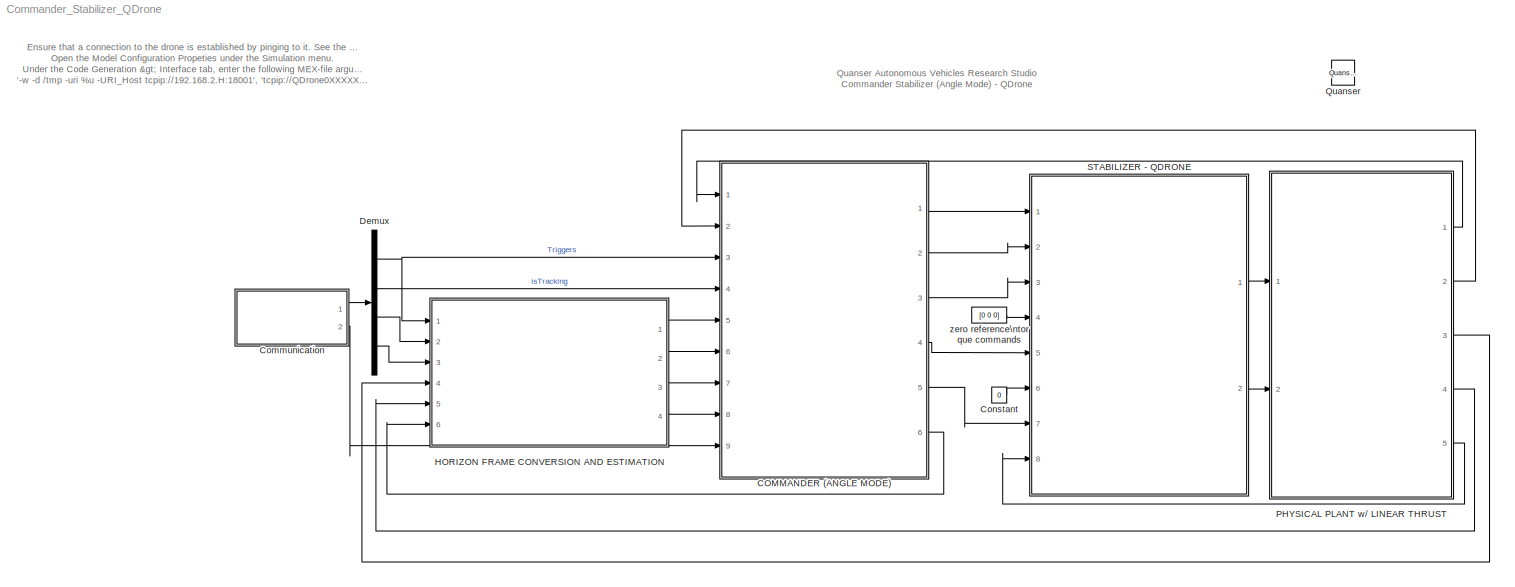
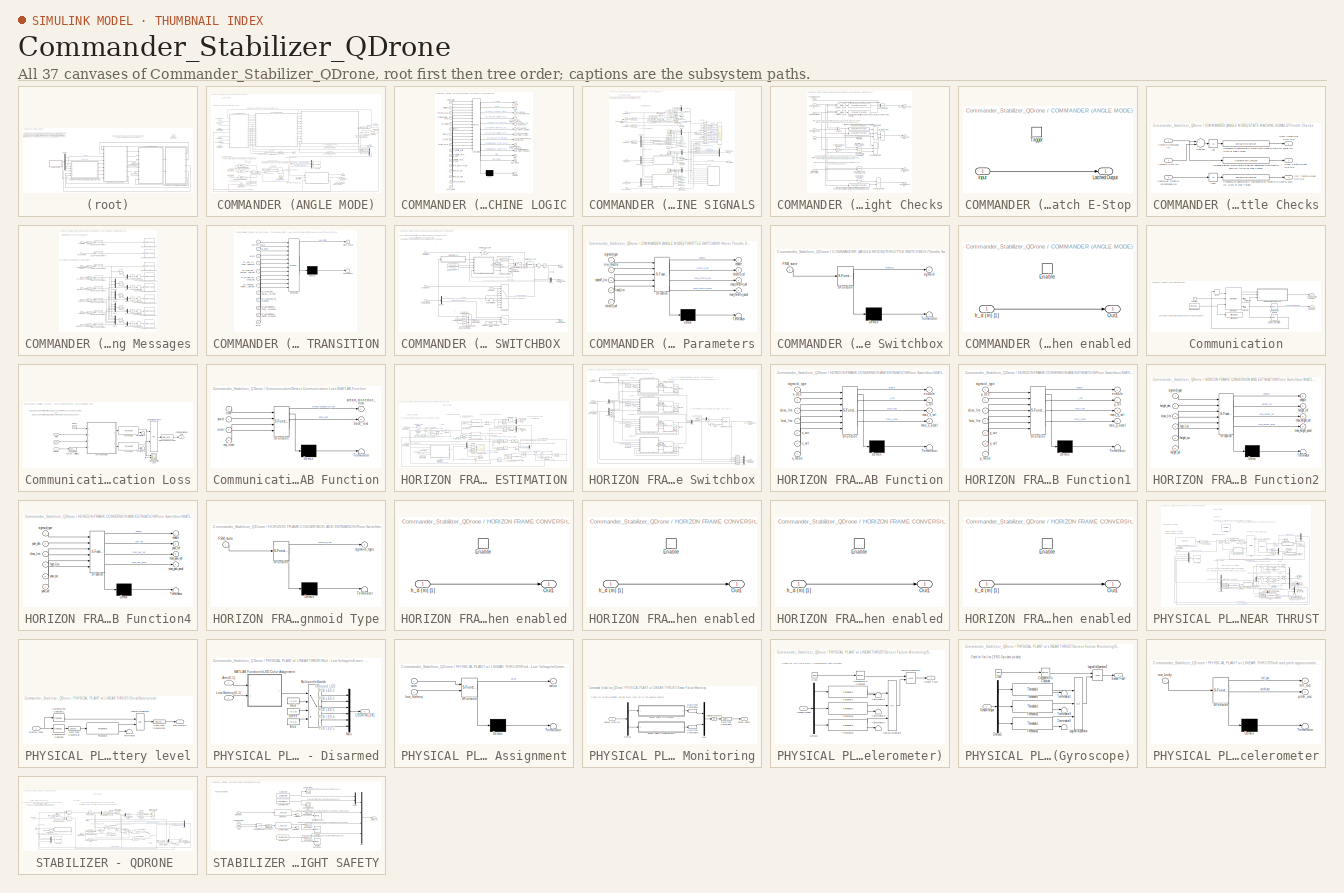
[diagram: thumbnail index - all 37 canvases of the model, root first then tree order]
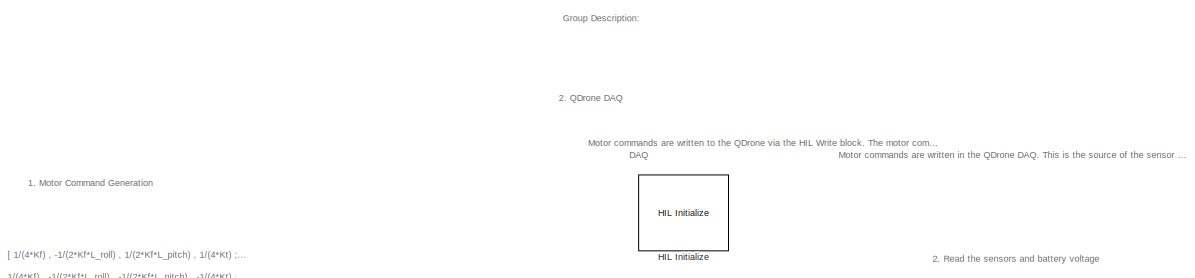
[diagram: PHYSICAL PLANT w/ LINEAR THRUST - part 1/3, full width, top band]
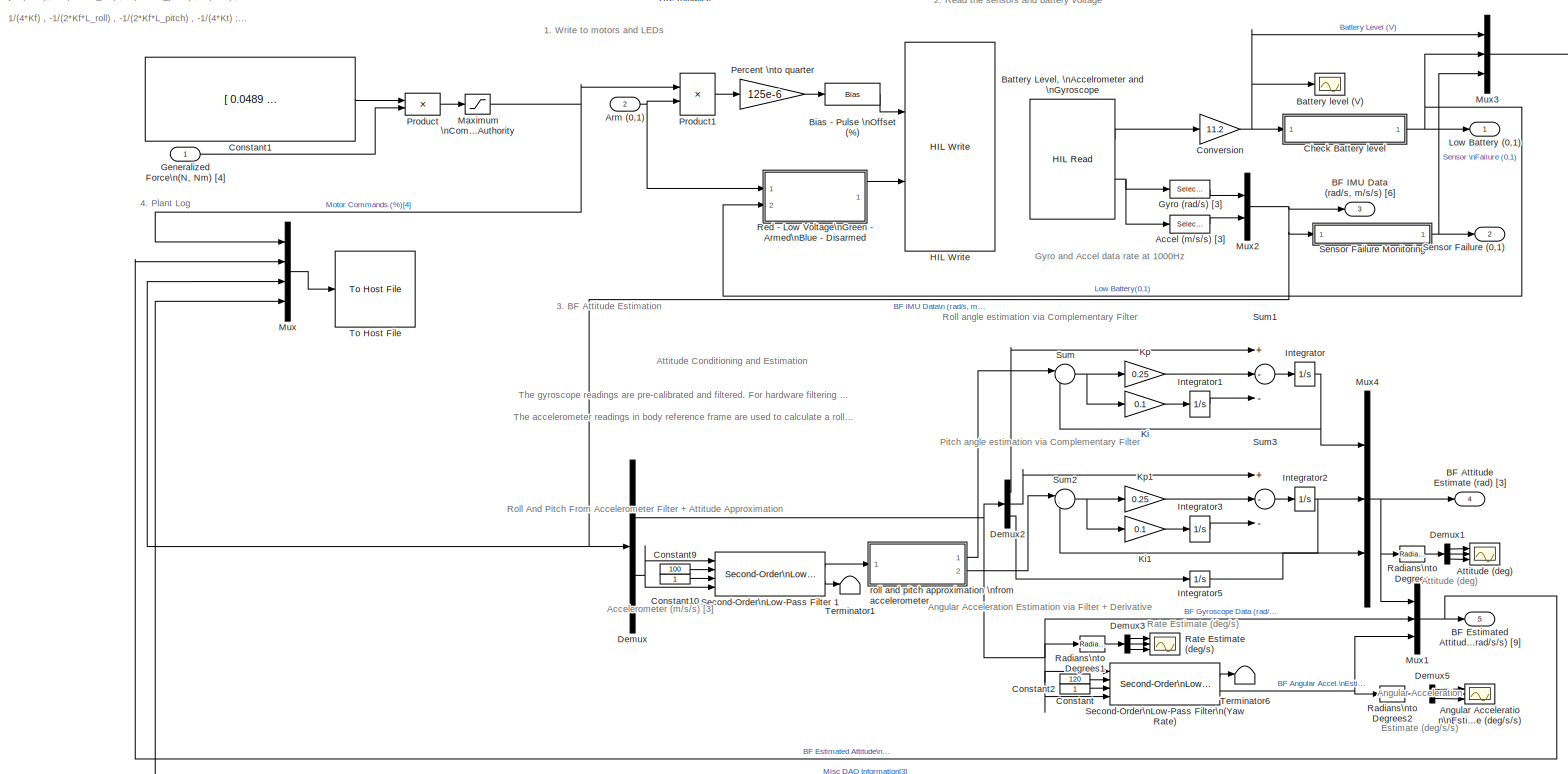
[diagram: PHYSICAL PLANT w/ LINEAR THRUST - part 2/3, full width, middle band]
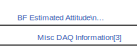
[diagram: PHYSICAL PLANT w/ LINEAR THRUST - part 3/3, bottom center region]
MODEL Commander_Stabilizer_QDrone
KIND model
CONFIG InitFcn = set_param(gcs, 'ZoomFactor','FitSystem')
BLOCK [SubSystem] COMMANDER (ANGLE MODE)
  Ports = [9, 6]
  RequestExecContextInheritance = off
  SID = 12886
BLOCK [Product] COMMANDER (ANGLE MODE)/ 
  InputSameDT = off
  Multiplication = Matrix(*)
  OutDataTypeStr = Inherit: Inherit via internal rule
  Ports = [2, 1]
  RndMeth = Floor
  SID = 13630
  SaturateOnIntegerOverflow = off
BLOCK [Outport] COMMANDER (ANGLE MODE)/Arm (0,1)
  IconDisplay = Port number
  Port = 5
  SID = 13219
BLOCK [Outport] COMMANDER (ANGLE MODE)/Attitude Commands (rad, rad//s) [3]
  IconDisplay = Port number
  Port = 4
  SID = 13218
BLOCK [Inport] COMMANDER (ANGLE MODE)/Communication Issue (0,1)
  IconDisplay = Port number
  Port = 9
  SID = 12895
BLOCK [Constant] COMMANDER (ANGLE MODE)/Constant2
  SID = 13631
  Value = [0 0 1 0; 0 -1 0 0; 1 0 0 0; 0 0 0 1]
BLOCK [DataTypeConversion] COMMANDER (ANGLE MODE)/Data Type Conversion1
  RndMeth = Floor
  SID = 13651
  SaturateOnIntegerOverflow = off
BLOCK [DataTypeConversion] COMMANDER (ANGLE MODE)/Data Type Conversion2
  RndMeth = Floor
  SID = 13652
  SaturateOnIntegerOverflow = off
BLOCK [DataTypeConversion] COMMANDER (ANGLE MODE)/Data Type Conversion3
  RndMeth = Floor
  SID = 13653
  SaturateOnIntegerOverflow = off
BLOCK [DataTypeConversion] COMMANDER (ANGLE MODE)/Data Type Conversion4
  OutDataTypeStr = double
  RndMeth = Floor
  SID = 13654
  SaturateOnIntegerOverflow = off
BLOCK [DataTypeConversion] COMMANDER (ANGLE MODE)/Data Type Conversion5
  OutDataTypeStr = double
  RndMeth = Floor
  SID = 13655
  SaturateOnIntegerOverflow = off
BLOCK [DataTypeConversion] COMMANDER (ANGLE MODE)/Data Type Conversion6
  OutDataTypeStr = double
  RndMeth = Floor
  SID = 13656
  SaturateOnIntegerOverflow = off
BLOCK [Outport] COMMANDER (ANGLE MODE)/FSM State (0-9)
  IconDisplay = Port number
  Port = 6
  SID = 13220
BLOCK [Scope] COMMANDER (ANGLE MODE)/Generalized \ncommands\n
  Floating = off
  NumInputPorts = 1
  Ports = [1]
  SID = 13638
  ScopeSpecificationString = Simulink.scopes.TimeScopeBlockCfg('CurrentConfiguration', extmgr.ConfigurationSet(extmgr.Configuration('Core','General UI',true),extmgr.Configuration('Core','Source UI',true),extmgr.Configuration('Sources','WiredSimulink',true,'DataLoggingVariableName','ScopeData1'),extmgr.Configuration('Visuals','Time Domain',true,'SerializedDisplays',{struct('MinYLimReal','-9.59108','MaxYLimReal','39.95456','YLa...<+1434ch>
BLOCK [Inport] COMMANDER (ANGLE MODE)/HF Pose Error \nEstimate (m, rad) [4]
  IconDisplay = Port number
  Port = 6
  SID = 12892
BLOCK [Inport] COMMANDER (ANGLE MODE)/HF Pose Rate \nEstimate (m, rad) [4]
  IconDisplay = Port number
  Port = 5
  SID = 12891
BLOCK [Inport] COMMANDER (ANGLE MODE)/Heigh Signals Check (m) [4]
  IconDisplay = Port number
  Port = 7
  SID = 12893
BLOCK [Inport] COMMANDER (ANGLE MODE)/IF Pose Info (m,rad)
  IconDisplay = Port number
  Port = 8
  SID = 12894
BLOCK [Integrator] COMMANDER (ANGLE MODE)/Integrator1
  ExternalReset = rising
  LimitOutput = on
  LowerSaturationLimit = [-0.26 -0.33 -15 -0.05].*0.75
  Ports = [2, 1]
  SID = 13632
  UpperSaturationLimit = [0.26 0.33 15 0.05].*0.75
BLOCK [Gain] COMMANDER (ANGLE MODE)/Kd (rad // m//s, rad // m//s, N // m//s, rad//s // rad//s)
  Gain = [pi/2 2*pi/3 28 4]
  OutDataTypeStr = Inherit: Inherit via internal rule
  ParamDataTypeStr = Inherit: Inherit via internal rule
  SID = 13633
  SaturateOnIntegerOverflow = off
BLOCK [Gain] COMMANDER (ANGLE MODE)/Ki (rad s // m, rad s // m, N s//m, rad//s // rad//s)
  Gain = [0 0 6 0]
  OutDataTypeStr = Inherit: Inherit via internal rule
  ParamDataTypeStr = Inherit: Inherit via internal rule
  SID = 13634
  SaturateOnIntegerOverflow = off
BLOCK [Gain] COMMANDER (ANGLE MODE)/Kp (rad // m, rad // m, N // m, rad//s // rad)
  Gain = [pi/2 pi/2 35.0 15]
  OutDataTypeStr = Inherit: Inherit via internal rule
  ParamDataTypeStr = Inherit: Inherit via internal rule
  SID = 13635
  SaturateOnIntegerOverflow = off
BLOCK [Logic] COMMANDER (ANGLE MODE)/Logical\nOperator1
  AllPortsSameDT = off
  OutDataTypeStr = boolean
  Ports = [2, 1]
  SID = 13657
BLOCK [Logic] COMMANDER (ANGLE MODE)/Logical\nOperator2
  AllPortsSameDT = off
  Operator = NOT
  OutDataTypeStr = boolean
  Ports = [1, 1]
  SID = 13658
BLOCK [Inport] COMMANDER (ANGLE MODE)/Low Battery (0,1)
  IconDisplay = Port number
  SID = 12887
BLOCK [Memory] COMMANDER (ANGLE MODE)/Memory
  InitialCondition = 1
  SID = 13659
BLOCK [Outport] COMMANDER (ANGLE MODE)/Mode
  IconDisplay = Port number
  SID = 13215
BLOCK [Mux] COMMANDER (ANGLE MODE)/Mux
  DisplayOption = bar
  Ports = [4, 1]
  SID = 13140
BLOCK [Mux] COMMANDER (ANGLE MODE)/Mux8
  DisplayOption = bar
  Inputs = [17 1 1 1]
  Ports = [4, 1]
  SID = 13660
BLOCK [Reference] COMMANDER (ANGLE MODE)/Reset when starting\nto takeoff  REF=simulink/Logic and Bit\nOperations/Compare\nTo Constant
  OutDataTypeStr = boolean
  Ports = [1, 1]
  SID = 13636
  SourceBlock = simulink/Logic and Bit\nOperations/Compare\nTo Constant
  SourceProductBaseCode = SL
  SourceType = Compare To Constant
  ZeroCross = on
  const = 4
  relop = ==
BLOCK [SubSystem] COMMANDER (ANGLE MODE)/STATE MACHINE LOGIC
  ErrorFcn = Stateflow.Translate.translate
  PermitHierarchicalResolution = ExplicitOnly
  Ports = [17, 12]
  RequestExecContextInheritance = off
  SFBlockType = MATLAB Function
  SID = 13661
  TreatAsAtomicUnit = on
BLOCK [Demux] COMMANDER (ANGLE MODE)/STATE MACHINE LOGIC/ Demux 
  DisplayOption = bar
  Outputs = 1
  Ports = [1, 1]
  SID = 13661::150
BLOCK [S-Function] COMMANDER (ANGLE MODE)/STATE MACHINE LOGIC/ SFunction 
  EnableBusSupport = off
  FunctionName = sf_sfun
  PortCounts = [17 13]
  Ports = [17, 13]
  SFcnIsStateOwnerBlock = off
  SFunctionDeploymentMode = off
  SID = 13661::149
  Tag = Stateflow S-Function Commander_Stabilizer_QDrone 11
BLOCK [Terminator] COMMANDER (ANGLE MODE)/STATE MACHINE LOGIC/ Terminator 
  SID = 13661::151
BLOCK [Inport] COMMANDER (ANGLE MODE)/STATE MACHINE LOGIC/Communication_Issue
  IconDisplay = Port number
  Port = 4
  SID = 13661::93
BLOCK [Outport] COMMANDER (ANGLE MODE)/STATE MACHINE LOGIC/E_Abort
  IconDisplay = Port number
  SID = 13661::48
BLOCK [Inport] COMMANDER (ANGLE MODE)/STATE MACHINE LOGIC/E_abort
  IconDisplay = Port number
  Port = 8
  SID = 13661::49
BLOCK [Outport] COMMANDER (ANGLE MODE)/STATE MACHINE LOGIC/Error
  IconDisplay = Port number
  Port = 11
  SID = 13661::5
BLOCK [Inport] COMMANDER (ANGLE MODE)/STATE MACHINE LOGIC/Tracking_Issue
  IconDisplay = Port number
  Port = 3
  SID = 13661::31
BLOCK [Inport] COMMANDER (ANGLE MODE)/STATE MACHINE LOGIC/close_to_ground
  IconDisplay = Port number
  Port = 16
  SID = 13661::43
BLOCK [Inport] COMMANDER (ANGLE MODE)/STATE MACHINE LOGIC/ctrl_throttle_close_to_zero
  IconDisplay = Port number
  Port = 12
  SID = 13661::50
BLOCK [Inport] COMMANDER (ANGLE MODE)/STATE MACHINE LOGIC/current_state
  IconDisplay = Port number
  SID = 13661::19
BLOCK [Inport] COMMANDER (ANGLE MODE)/STATE MACHINE LOGIC/flying_too_high
  IconDisplay = Port number
  Port = 15
  SID = 13661::42
BLOCK [Inport] COMMANDER (ANGLE MODE)/STATE MACHINE LOGIC/flying_too_low
  IconDisplay = Port number
  Port = 14
  SID = 13661::41
BLOCK [Inport] COMMANDER (ANGLE MODE)/STATE MACHINE LOGIC/initializing
  IconDisplay = Port number
  Port = 2
  SID = 13661::20
BLOCK [Outport] COMMANDER (ANGLE MODE)/STATE MACHINE LOGIC/isArm
  IconDisplay = Port number
  Port = 2
  SID = 13661::59
BLOCK [Inport] COMMANDER (ANGLE MODE)/STATE MACHINE LOGIC/joystick_issue
  IconDisplay = Port number
  Port = 9
  SID = 13661::94
BLOCK [Inport] COMMANDER (ANGLE MODE)/STATE MACHINE LOGIC/low_battery
  IconDisplay = Port number
  Port = 5
  SID = 13661::21
BLOCK [Inport] COMMANDER (ANGLE MODE)/STATE MACHINE LOGIC/net_throttle_at_trim
  IconDisplay = Port number
  Port = 10
  SID = 13661::34
BLOCK [Inport] COMMANDER (ANGLE MODE)/STATE MACHINE LOGIC/net_throttle_close_to_zero
  IconDisplay = Port number
  Port = 11
  SID = 13661::35
BLOCK [Outport] COMMANDER (ANGLE MODE)/STATE MACHINE LOGIC/pt_ARM_to_TAKEOFF_THROTTLE
  IconDisplay = Port number
  Port = 3
  SID = 13661::60
BLOCK [Outport] COMMANDER (ANGLE MODE)/STATE MACHINE LOGIC/pt_AUTOLAND_TO_DISABLE
  IconDisplay = Port number
  Port = 8
  SID = 13661::36
BLOCK [Outport] COMMANDER (ANGLE MODE)/STATE MACHINE LOGIC/pt_EMERGENCY_ABORT_TO_DISABLE
  IconDisplay = Port number
  Port = 10
  SID = 13661::38
BLOCK [Outport] COMMANDER (ANGLE MODE)/STATE MACHINE LOGIC/pt_EMERGENCY_STOP_TO_DISABLE
  IconDisplay = Port number
  Port = 9
  SID = 13661::37
BLOCK [Outport] COMMANDER (ANGLE MODE)/STATE MACHINE LOGIC/pt_FLIGHT_TO_AUTOLAND
  IconDisplay = Port number
  Port = 5
  SID = 13661::62
BLOCK [Outport] COMMANDER (ANGLE MODE)/STATE MACHINE LOGIC/pt_TAKEOFF_THROTTLE_TO_TAKEOFF_HEIGHT
  IconDisplay = Port number
  Port = 6
  SID = 13661::26
BLOCK [Outport] COMMANDER (ANGLE MODE)/STATE MACHINE LOGIC/pt_TAKE_OFF_HEIGHT_TO_AUTOLAND
  IconDisplay = Port number
  Port = 4
  SID = 13661::61
BLOCK [Outport] COMMANDER (ANGLE MODE)/STATE MACHINE LOGIC/pt_TAKE_OFF_HEIGHT_TO_FLIGHT
  IconDisplay = Port number
  Port = 7
  SID = 13661::33
BLOCK [Inport] COMMANDER (ANGLE MODE)/STATE MACHINE LOGIC/sensor_failed
  IconDisplay = Port number
  Port = 17
  SID = 13661::52
BLOCK [Outport] COMMANDER (ANGLE MODE)/STATE MACHINE LOGIC/stop_model
  IconDisplay = Port number
  Port = 12
  SID = 13661::44
BLOCK [Inport] COMMANDER (ANGLE MODE)/STATE MACHINE LOGIC/take_off_successful
  IconDisplay = Port number
  Port = 13
  SID = 13661::40
BLOCK [Inport] COMMANDER (ANGLE MODE)/STATE MACHINE LOGIC/trigger_1
  IconDisplay = Port number
  Port = 6
  SID = 13661::22
BLOCK [Inport] COMMANDER (ANGLE MODE)/STATE MACHINE LOGIC/trigger_2
  IconDisplay = Port number
  Port = 7
  SID = 13661::23
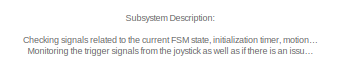
[diagram: COMMANDER (ANGLE MODE)/STATE MACHINE SIGNALS - part 1/3, top left region]
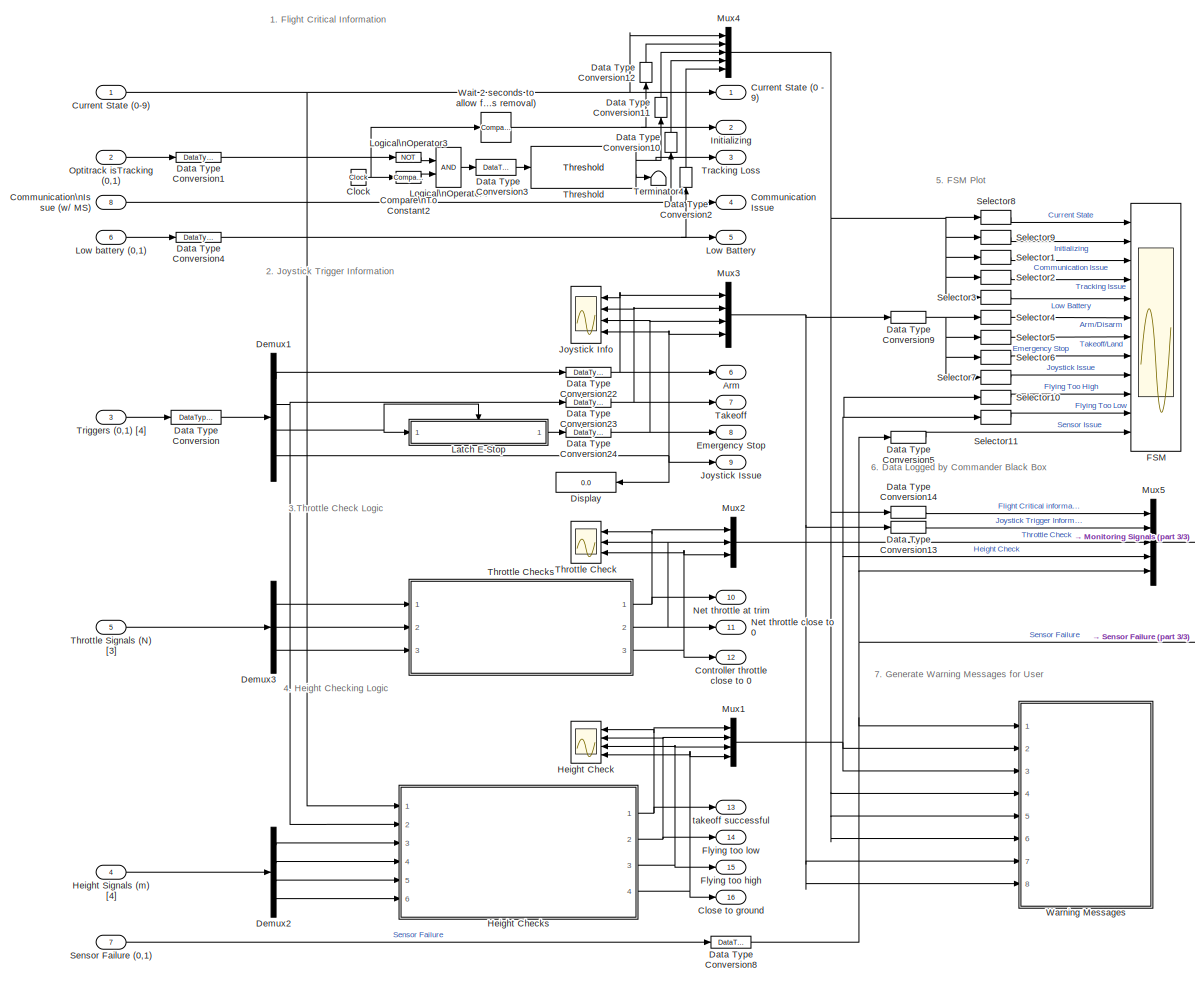
[diagram: COMMANDER (ANGLE MODE)/STATE MACHINE SIGNALS - part 2/3, most of the canvas]
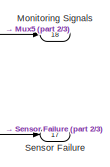
[diagram: COMMANDER (ANGLE MODE)/STATE MACHINE SIGNALS - part 3/3, middle right region]
BLOCK [SubSystem] COMMANDER (ANGLE MODE)/STATE MACHINE SIGNALS
  Ports = [8, 18]
  RequestExecContextInheritance = off
  SID = 13662
BLOCK [Outport] COMMANDER (ANGLE MODE)/STATE MACHINE SIGNALS/  Sensor Failure
  IconDisplay = Port number
  Port = 17
  SID = 13848
BLOCK [Outport] COMMANDER (ANGLE MODE)/STATE MACHINE SIGNALS/Arm
  IconDisplay = Port number
  Port = 6
  SID = 13837
BLOCK [Clock] COMMANDER (ANGLE MODE)/STATE MACHINE SIGNALS/Clock
  SID = 13671
BLOCK [Outport] COMMANDER (ANGLE MODE)/STATE MACHINE SIGNALS/Close to ground
  IconDisplay = Port number
  Port = 16
  SID = 13847
BLOCK [Outport] COMMANDER (ANGLE MODE)/STATE MACHINE SIGNALS/Communication Issue
  IconDisplay = Port number
  Port = 4
  SID = 13835
BLOCK [Inport] COMMANDER (ANGLE MODE)/STATE MACHINE SIGNALS/Communication\nIssue (w// MS)
  IconDisplay = Port number
  Port = 8
  SID = 13670
BLOCK [Reference] COMMANDER (ANGLE MODE)/STATE MACHINE SIGNALS/Compare\nTo Constant2  REF=simulink/Logic and Bit\nOperations/Compare\nTo Constant
  OutDataTypeStr = boolean
  Ports = [1, 1]
  SID = 13672
  SourceBlock = simulink/Logic and Bit\nOperations/Compare\nTo Constant
  SourceProductBaseCode = SL
  SourceType = Compare To Constant
  ZeroCross = on
  const = 1
  relop = >
BLOCK [Outport] COMMANDER (ANGLE MODE)/STATE MACHINE SIGNALS/Controller throttle close to 0
  IconDisplay = Port number
  Port = 12
  SID = 13843
BLOCK [Outport] COMMANDER (ANGLE MODE)/STATE MACHINE SIGNALS/Current State (0 - 9)  
  IconDisplay = Port number
  SID = 13832
BLOCK [Inport] COMMANDER (ANGLE MODE)/STATE MACHINE SIGNALS/Current State (0-9)
  IconDisplay = Port number
  SID = 13663
BLOCK [DataTypeConversion] COMMANDER (ANGLE MODE)/STATE MACHINE SIGNALS/Data Type Conversion
  RndMeth = Floor
  SID = 13673
  SaturateOnIntegerOverflow = off
BLOCK [DataTypeConversion] COMMANDER (ANGLE MODE)/STATE MACHINE SIGNALS/Data Type Conversion1
  RndMeth = Floor
  SID = 13674
  SaturateOnIntegerOverflow = off
BLOCK [DataTypeConversion] COMMANDER (ANGLE MODE)/STATE MACHINE SIGNALS/Data Type Conversion10
  RndMeth = Floor
  SID = 13675
  SaturateOnIntegerOverflow = off
BLOCK [DataTypeConversion] COMMANDER (ANGLE MODE)/STATE MACHINE SIGNALS/Data Type Conversion11
  RndMeth = Floor
  SID = 13676
  SaturateOnIntegerOverflow = off
BLOCK [DataTypeConversion] COMMANDER (ANGLE MODE)/STATE MACHINE SIGNALS/Data Type Conversion12
  OutDataTypeStr = double
  RndMeth = Floor
  SID = 13677
  SaturateOnIntegerOverflow = off
BLOCK [DataTypeConversion] COMMANDER (ANGLE MODE)/STATE MACHINE SIGNALS/Data Type Conversion13
  RndMeth = Floor
  SID = 13678
  SaturateOnIntegerOverflow = off
BLOCK [DataTypeConversion] COMMANDER (ANGLE MODE)/STATE MACHINE SIGNALS/Data Type Conversion14
  RndMeth = Floor
  SID = 13679
  SaturateOnIntegerOverflow = off
BLOCK [DataTypeConversion] COMMANDER (ANGLE MODE)/STATE MACHINE SIGNALS/Data Type Conversion2
  RndMeth = Floor
  SID = 13680
  SaturateOnIntegerOverflow = off
BLOCK [DataTypeConversion] COMMANDER (ANGLE MODE)/STATE MACHINE SIGNALS/Data Type Conversion22
  OutDataTypeStr = boolean
  RndMeth = Floor
  SID = 13681
  SaturateOnIntegerOverflow = off
BLOCK [DataTypeConversion] COMMANDER (ANGLE MODE)/STATE MACHINE SIGNALS/Data Type Conversion23
  OutDataTypeStr = boolean
  RndMeth = Floor
  SID = 13682
  SaturateOnIntegerOverflow = off
BLOCK [DataTypeConversion] COMMANDER (ANGLE MODE)/STATE MACHINE SIGNALS/Data Type Conversion24
  OutDataTypeStr = boolean
  RndMeth = Floor
  SID = 13683
  SaturateOnIntegerOverflow = off
BLOCK [DataTypeConversion] COMMANDER (ANGLE MODE)/STATE MACHINE SIGNALS/Data Type Conversion3
  RndMeth = Floor
  SID = 13684
  SaturateOnIntegerOverflow = off
BLOCK [DataTypeConversion] COMMANDER (ANGLE MODE)/STATE MACHINE SIGNALS/Data Type Conversion4
  OutDataTypeStr = boolean
  RndMeth = Floor
  SID = 13685
  SaturateOnIntegerOverflow = off
BLOCK [DataTypeConversion] COMMANDER (ANGLE MODE)/STATE MACHINE SIGNALS/Data Type Conversion5
  RndMeth = Floor
  SID = 13686
  SaturateOnIntegerOverflow = off
BLOCK [DataTypeConversion] COMMANDER (ANGLE MODE)/STATE MACHINE SIGNALS/Data Type Conversion8
  RndMeth = Floor
  SID = 13687
  SaturateOnIntegerOverflow = off
BLOCK [DataTypeConversion] COMMANDER (ANGLE MODE)/STATE MACHINE SIGNALS/Data Type Conversion9
  RndMeth = Floor
  SID = 13688
  SaturateOnIntegerOverflow = off
BLOCK [Demux] COMMANDER (ANGLE MODE)/STATE MACHINE SIGNALS/Demux1
  DisplayOption = bar
  Outputs = [1 1 1 1]
  Ports = [1, 4]
  SID = 13689
BLOCK [Demux] COMMANDER (ANGLE MODE)/STATE MACHINE SIGNALS/Demux2
  DisplayOption = bar
  Ports = [1, 4]
  SID = 13690
BLOCK [Demux] COMMANDER (ANGLE MODE)/STATE MACHINE SIGNALS/Demux3
  DisplayOption = bar
  Outputs = 3
  Ports = [1, 3]
  SID = 13691
BLOCK [Display] COMMANDER (ANGLE MODE)/STATE MACHINE SIGNALS/Display
  Decimation = 1
  Ports = [1]
  SID = 13692
BLOCK [Outport] COMMANDER (ANGLE MODE)/STATE MACHINE SIGNALS/Emergency Stop
  IconDisplay = Port number
  Port = 8
  SID = 13839
BLOCK [Scope] COMMANDER (ANGLE MODE)/STATE MACHINE SIGNALS/FSM
  Floating = off
  NumInputPorts = 12
  Ports = [12]
  SID = 13693
  ScopeSpecificationString = Simulink.scopes.TimeScopeBlockCfg('CurrentConfiguration', extmgr.ConfigurationSet(extmgr.Configuration('Core','General UI',true),extmgr.Configuration('Core','Source UI',true),extmgr.Configuration('Sources','WiredSimulink',true,'DataLoggingVariableName','ScopeData1'),extmgr.Configuration('Visuals','Time Domain',true,'SerializedDisplays',{struct('MinYLimReal','0.00000','MaxYLimReal','10.00000','YLab...<+9406ch>
BLOCK [Outport] COMMANDER (ANGLE MODE)/STATE MACHINE SIGNALS/Flying too high
  IconDisplay = Port number
  Port = 15
  SID = 13846
BLOCK [Outport] COMMANDER (ANGLE MODE)/STATE MACHINE SIGNALS/Flying too low
  IconDisplay = Port number
  Port = 14
  SID = 13845
BLOCK [Scope] COMMANDER (ANGLE MODE)/STATE MACHINE SIGNALS/Height Check 
  Floating = off
  NumInputPorts = 4
  Ports = [4]
  SID = 13694
  ScopeSpecificationString = Simulink.scopes.TimeScopeBlockCfg('CurrentConfiguration', extmgr.ConfigurationSet(extmgr.Configuration('Core','General UI',true),extmgr.Configuration('Core','Source UI',true),extmgr.Configuration('Sources','WiredSimulink',true,'DataLoggingVariableName','ScopeData3'),extmgr.Configuration('Visuals','Time Domain',true,'SerializedDisplays',{struct('MinYLimReal','-1.00000','MaxYLimReal','1.00000','YLab...<+3397ch>
BLOCK [SubSystem] COMMANDER (ANGLE MODE)/STATE MACHINE SIGNALS/Height Checks
  Ports = [6, 4]
  RequestExecContextInheritance = off
  SID = 13695
BLOCK [Reference] COMMANDER (ANGLE MODE)/STATE MACHINE SIGNALS/Height Checks/...the measured height is less than 0.15m...  REF=simulink/Logic and Bit\nOperations/Compare\nTo Constant
  OutDataTypeStr = boolean
  Ports = [1, 1]
  SID = 13702
  SourceBlock = simulink/Logic and Bit\nOperations/Compare\nTo Constant
  SourceProductBaseCode = SL
  SourceType = Compare To Constant
  ZeroCross = on
  const = 0.15
  relop = <=
BLOCK [Gain] COMMANDER (ANGLE MODE)/STATE MACHINE SIGNALS/Height Checks/75% of \nCommanded Height
  Gain = 0.75
  OutDataTypeStr = Inherit: Inherit via internal rule
  ParamDataTypeStr = Inherit: Inherit via internal rule
  SID = 13703
  SaturateOnIntegerOverflow = off
BLOCK [Abs] COMMANDER (ANGLE MODE)/STATE MACHINE SIGNALS/Height Checks/Abs
  SID = 13704
  SaturateOnIntegerOverflow = off
BLOCK [Abs] COMMANDER (ANGLE MODE)/STATE MACHINE SIGNALS/Height Checks/Abs1
  SID = 13705
  SaturateOnIntegerOverflow = off
BLOCK [Outport] COMMANDER (ANGLE MODE)/STATE MACHINE SIGNALS/Height Checks/Close to ground (0,1)
  IconDisplay = Port number
  Port = 4
  SID = 13726
BLOCK [Reference] COMMANDER (ANGLE MODE)/STATE MACHINE SIGNALS/Height Checks/Compare\nTo Constant1  REF=simulink/Logic and Bit\nOperations/Compare\nTo Constant
  OutDataTypeStr = boolean
  Ports = [1, 1]
  SID = 13706
  SourceBlock = simulink/Logic and Bit\nOperations/Compare\nTo Constant
  SourceProductBaseCode = SL
  SourceType = Compare To Constant
  ZeroCross = on
  const = 6
  relop = >=
BLOCK [Reference] COMMANDER (ANGLE MODE)/STATE MACHINE SIGNALS/Height Checks/Flight State  REF=simulink/Logic and Bit\nOperations/Compare\nTo Constant
  OutDataTypeStr = boolean
  Ports = [1, 1]
  SID = 13707
  SourceBlock = simulink/Logic and Bit\nOperations/Compare\nTo Constant
  SourceProductBaseCode = SL
  SourceType = Compare To Constant
  ZeroCross = on
  const = 5
  relop = ==
BLOCK [Outport] COMMANDER (ANGLE MODE)/STATE MACHINE SIGNALS/Height Checks/Flying too High (0,1)
  IconDisplay = Port number
  Port = 3
  SID = 13725
BLOCK [Outport] COMMANDER (ANGLE MODE)/STATE MACHINE SIGNALS/Height Checks/Flying too Low (0,1l)
  IconDisplay = Port number
  Port = 2
  SID = 13724
BLOCK [Inport] COMMANDER (ANGLE MODE)/STATE MACHINE SIGNALS/Height Checks/Height Command (m)
  IconDisplay = Port number
  Port = 3
  SID = 13698
BLOCK [Inport] COMMANDER (ANGLE MODE)/STATE MACHINE SIGNALS/Height Checks/Height Safety Threshold (m)
  IconDisplay = Port number
  Port = 5
  SID = 13700
BLOCK [Inport] COMMANDER (ANGLE MODE)/STATE MACHINE SIGNALS/Height Checks/Height desired (m)
  IconDisplay = Port number
  Port = 6
  SID = 13701
BLOCK [Inport] COMMANDER (ANGLE MODE)/STATE MACHINE SIGNALS/Height Checks/Height measured (m)
  IconDisplay = Port number
  Port = 4
  SID = 13699
BLOCK [Reference] COMMANDER (ANGLE MODE)/STATE MACHINE SIGNALS/Height Checks/If the difference between the measured \nand commanded height is greater than \n75% of the commanded height during...  REF=quarc_library/Logic Operations/Compare
  MultiThreadCoSim = auto
  Ports = [2, 1]
  SID = 13708
  SourceBlock = quarc_library/Logic Operations/Compare
  SourceProductName = QUARC Targets
  SourceType = Compare
  operator = >=
  output_data_type = boolean
BLOCK [Reference] COMMANDER (ANGLE MODE)/STATE MACHINE SIGNALS/Height Checks/If the drone is at or below this height (m), \nthen the drone has landed\nNOTE - minimum height to be considered flying is 0.15m     REF=simulink/Logic and Bit\nOperations/Compare\nTo Constant
  OutDataTypeStr = boolean
  Ports = [1, 1]
  SID = 13709
  SourceBlock = simulink/Logic and Bit\nOperations/Compare\nTo Constant
  SourceProductBaseCode = SL
  SourceType = Compare To Constant
  ZeroCross = on
  const = 0.05
  relop = <=
BLOCK [Reference] COMMANDER (ANGLE MODE)/STATE MACHINE SIGNALS/Height Checks/If the measured height is more than\n0.2 m below the commanded height and...  REF=simulink/Logic and Bit\nOperations/Compare\nTo Constant
  OutDataTypeStr = boolean
  Ports = [1, 1]
  SID = 13710
  SourceBlock = simulink/Logic and Bit\nOperations/Compare\nTo Constant
  SourceProductBaseCode = SL
  SourceType = Compare To Constant
  ZeroCross = on
  const = 0.20
  relop = >=
BLOCK [Logic] COMMANDER (ANGLE MODE)/STATE MACHINE SIGNALS/Height Checks/Logical\nOperator
  AllPortsSameDT = off
  Inputs = 3
  OutDataTypeStr = boolean
  Ports = [3, 1]
  SID = 13711
BLOCK [Logic] COMMANDER (ANGLE MODE)/STATE MACHINE SIGNALS/Height Checks/Logical\nOperator1
  AllPortsSameDT = off
  Inputs = 3
  OutDataTypeStr = boolean
  Ports = [3, 1]
  SID = 13712
BLOCK [Logic] COMMANDER (ANGLE MODE)/STATE MACHINE SIGNALS/Height Checks/Logical\nOperator2
  AllPortsSameDT = off
  Operator = OR
  OutDataTypeStr = boolean
  Ports = [2, 1]
  SID = 13713
BLOCK [Logic] COMMANDER (ANGLE MODE)/STATE MACHINE SIGNALS/Height Checks/Logical\nOperator3
  AllPortsSameDT = off
  OutDataTypeStr = boolean
  Ports = [2, 1]
  SID = 13714
BLOCK [Logic] COMMANDER (ANGLE MODE)/STATE MACHINE SIGNALS/Height Checks/Logical\nOperator4
  AllPortsSameDT = off
  Inputs = 3
  OutDataTypeStr = boolean
  Ports = [3, 1]
  SID = 13715
BLOCK [Inport] COMMANDER (ANGLE MODE)/STATE MACHINE SIGNALS/Height Checks/State
  IconDisplay = Port number
  SID = 13696
BLOCK [Sum] COMMANDER (ANGLE MODE)/STATE MACHINE SIGNALS/Height Checks/Subtract
  InputSameDT = off
  Inputs = +-
  OutDataTypeStr = Inherit: Inherit via internal rule
  Ports = [2, 1]
  SID = 13716
  SaturateOnIntegerOverflow = off
BLOCK [Sum] COMMANDER (ANGLE MODE)/STATE MACHINE SIGNALS/Height Checks/Subtract1
  InputSameDT = off
  Inputs = +-
  OutDataTypeStr = Inherit: Inherit via internal rule
  Ports = [2, 1]
  SID = 13717
  SaturateOnIntegerOverflow = off
BLOCK [Sum] COMMANDER (ANGLE MODE)/STATE MACHINE SIGNALS/Height Checks/Subtract2
  InputSameDT = off
  Inputs = +-
  OutDataTypeStr = Inherit: Inherit via internal rule
  Ports = [2, 1]
  SID = 13718
  SaturateOnIntegerOverflow = off
BLOCK [Inport] COMMANDER (ANGLE MODE)/STATE MACHINE SIGNALS/Height Checks/TAKEOFF//AUTOLAND (0,1)
  IconDisplay = Port number
  Port = 2
  SID = 13697
BLOCK [Reference] COMMANDER (ANGLE MODE)/STATE MACHINE SIGNALS/Height Checks/Takeoff Throttle Height State  REF=simulink/Logic and Bit\nOperations/Compare\nTo Constant
  OutDataTypeStr = boolean
  Ports = [1, 1]
  SID = 13719
  SourceBlock = simulink/Logic and Bit\nOperations/Compare\nTo Constant
  SourceProductBaseCode = SL
  SourceType = Compare To Constant
  ZeroCross = on
  const = 4
  relop = ==
BLOCK [Outport] COMMANDER (ANGLE MODE)/STATE MACHINE SIGNALS/Height Checks/Takeoff successful (0,1)
  IconDisplay = Port number
  SID = 13723
BLOCK [Reference] COMMANDER (ANGLE MODE)/STATE MACHINE SIGNALS/Height Checks/Threshold to detect if the commanded\nheight is close to the desired height (m)  REF=simulink/Logic and Bit\nOperations/Compare\nTo Constant
  OutDataTypeStr = boolean
  Ports = [1, 1]
  SID = 13720
  SourceBlock = simulink/Logic and Bit\nOperations/Compare\nTo Constant
  SourceProductBaseCode = SL
  SourceType = Compare To Constant
  ZeroCross = on
  const = 0.1
  relop = <=
BLOCK [Reference] COMMANDER (ANGLE MODE)/STATE MACHINE SIGNALS/Height Checks/Threshold to detect if the drone is close\nto the commanded height (m)  REF=simulink/Logic and Bit\nOperations/Compare\nTo Constant
  OutDataTypeStr = boolean
  Ports = [1, 1]
  SID = 13721
  SourceBlock = simulink/Logic and Bit\nOperations/Compare\nTo Constant
  SourceProductBaseCode = SL
  SourceType = Compare To Constant
  ZeroCross = on
  const = 0.1
  relop = <=
BLOCK [Reference] COMMANDER (ANGLE MODE)/STATE MACHINE SIGNALS/Height Checks/check if measured height\nexceeds maximum height safety threshold  REF=quarc_library/Logic Operations/Compare
  MultiThreadCoSim = auto
  Ports = [2, 1]
  SID = 13722
  SourceBlock = quarc_library/Logic Operations/Compare
  SourceProductName = QUARC Targets
  SourceType = Compare
  operator = >=
  output_data_type = boolean
BLOCK [Inport] COMMANDER (ANGLE MODE)/STATE MACHINE SIGNALS/Height Signals (m) [4]
  IconDisplay = Port number
  Port = 4
  SID = 13666
BLOCK [Outport] COMMANDER (ANGLE MODE)/STATE MACHINE SIGNALS/Initializing
  IconDisplay = Port number
  Port = 2
  SID = 13833
BLOCK [Scope] COMMANDER (ANGLE MODE)/STATE MACHINE SIGNALS/Joystick Info
  Floating = off
  NumInputPorts = 4
  Ports = [4]
  SID = 13734
  ScopeSpecificationString = Simulink.scopes.TimeScopeBlockCfg('CurrentConfiguration', extmgr.ConfigurationSet(extmgr.Configuration('Core','General UI',true),extmgr.Configuration('Core','Source UI',true),extmgr.Configuration('Sources','WiredSimulink',true,'DataLoggingVariableName','ScopeData1'),extmgr.Configuration('Visuals','Time Domain',true,'SerializedDisplays',{struct('MinYLimReal','-10','MaxYLimReal','10','YLabelReal',''...<+3389ch>
BLOCK [Outport] COMMANDER (ANGLE MODE)/STATE MACHINE SIGNALS/Joystick Issue 
  IconDisplay = Port number
  Port = 9
  SID = 13840
BLOCK [SubSystem] COMMANDER (ANGLE MODE)/STATE MACHINE SIGNALS/Latch E-Stop
  Ports = [1, 1, 0, 1]
  RequestExecContextInheritance = off
  SID = 13735
  TreatAsAtomicUnit = on
BLOCK [Inport] COMMANDER (ANGLE MODE)/STATE MACHINE SIGNALS/Latch E-Stop/Input
  IconDisplay = Port number
  SID = 13736
BLOCK [Outport] COMMANDER (ANGLE MODE)/STATE MACHINE SIGNALS/Latch E-Stop/Latched Output
  IconDisplay = Port number
  InitialOutput = 0
  SID = 13738
BLOCK [TriggerPort] COMMANDER (ANGLE MODE)/STATE MACHINE SIGNALS/Latch E-Stop/Trigger
  Ports = []
  SID = 13737
  StatesWhenEnabling = held
  VariantControl = Variant
BLOCK [Logic] COMMANDER (ANGLE MODE)/STATE MACHINE SIGNALS/Logical\nOperator3
  AllPortsSameDT = off
  Operator = NOT
  OutDataTypeStr = boolean
  Ports = [1, 1]
  SID = 13739
BLOCK [Logic] COMMANDER (ANGLE MODE)/STATE MACHINE SIGNALS/Logical\nOperator4
  AllPortsSameDT = off
  OutDataTypeStr = boolean
  Ports = [2, 1]
  SID = 13740
BLOCK [Outport] COMMANDER (ANGLE MODE)/STATE MACHINE SIGNALS/Low Battery
  IconDisplay = Port number
  Port = 5
  SID = 13836
BLOCK [Inport] COMMANDER (ANGLE MODE)/STATE MACHINE SIGNALS/Low battery (0,1)
  IconDisplay = Port number
  Port = 6
  SID = 13668
BLOCK [Outport] COMMANDER (ANGLE MODE)/STATE MACHINE SIGNALS/Monitoring Signals
  IconDisplay = Port number
  Port = 18
  SID = 13849
BLOCK [Mux] COMMANDER (ANGLE MODE)/STATE MACHINE SIGNALS/Mux1
  DisplayOption = bar
  Inputs = [1 1 1 1]
  Ports = [4, 1]
  SID = 13741
BLOCK [Mux] COMMANDER (ANGLE MODE)/STATE MACHINE SIGNALS/Mux2
  DisplayOption = bar
  Inputs = [1 1 1]
  Ports = [3, 1]
  SID = 13742
BLOCK [Mux] COMMANDER (ANGLE MODE)/STATE MACHINE SIGNALS/Mux3
  DisplayOption = bar
  Inputs = [1 1 1 1]
  Ports = [4, 1]
  SID = 13743
BLOCK [Mux] COMMANDER (ANGLE MODE)/STATE MACHINE SIGNALS/Mux4
  DisplayOption = bar
  Inputs = [1 1 1 1 1]
  Ports = [5, 1]
  SID = 13744
BLOCK [Mux] COMMANDER (ANGLE MODE)/STATE MACHINE SIGNALS/Mux5
  DisplayOption = bar
  Inputs = [5 4 3 4 1]
  Ports = [5, 1]
  SID = 13745
BLOCK [Outport] COMMANDER (ANGLE MODE)/STATE MACHINE SIGNALS/Net throttle at trim
  IconDisplay = Port number
  Port = 10
  SID = 13841
BLOCK [Outport] COMMANDER (ANGLE MODE)/STATE MACHINE SIGNALS/Net throttle close to 0
  IconDisplay = Port number
  Port = 11
  SID = 13842
BLOCK [Inport] COMMANDER (ANGLE MODE)/STATE MACHINE SIGNALS/Optitrack isTracking (0,1)  
  IconDisplay = Port number
  Port = 2
  SID = 13664
BLOCK [Selector] COMMANDER (ANGLE MODE)/STATE MACHINE SIGNALS/Selector1
  IndexOptions = Index vector (dialog)
  Indices = 4
  InputPortWidth = 5
  OutputSizes = 1
  Ports = [1, 1]
  SID = 13746
BLOCK [Selector] COMMANDER (ANGLE MODE)/STATE MACHINE SIGNALS/Selector10
  IndexOptions = Index vector (dialog)
  Indices = 3
  InputPortWidth = 4
  OutputSizes = 1
  Ports = [1, 1]
  SID = 13747
BLOCK [Selector] COMMANDER (ANGLE MODE)/STATE MACHINE SIGNALS/Selector11
  IndexOptions = Index vector (dialog)
  Indices = 2
  InputPortWidth = 4
  OutputSizes = 1
  Ports = [1, 1]
  SID = 13748
BLOCK [Selector] COMMANDER (ANGLE MODE)/STATE MACHINE SIGNALS/Selector2
  IndexOptions = Index vector (dialog)
  Indices = 3
  InputPortWidth = 5
  OutputSizes = 1
  Ports = [1, 1]
  SID = 13749
BLOCK [Selector] COMMANDER (ANGLE MODE)/STATE MACHINE SIGNALS/Selector3
  IndexOptions = Index vector (dialog)
  Indices = 5
  InputPortWidth = 5
  OutputSizes = 1
  Ports = [1, 1]
  SID = 13750
BLOCK [Selector] COMMANDER (ANGLE MODE)/STATE MACHINE SIGNALS/Selector4
  IndexOptions = Index vector (dialog)
  Indices = 1
  InputPortWidth = 4
  OutputSizes = 1
  Ports = [1, 1]
  SID = 13751
BLOCK [Selector] COMMANDER (ANGLE MODE)/STATE MACHINE SIGNALS/Selector5
  IndexOptions = Index vector (dialog)
  Indices = 2
  InputPortWidth = 4
  OutputSizes = 1
  Ports = [1, 1]
  SID = 13752
BLOCK [Selector] COMMANDER (ANGLE MODE)/STATE MACHINE SIGNALS/Selector6
  IndexOptions = Index vector (dialog)
  Indices = 3
  InputPortWidth = 4
  OutputSizes = 1
  Ports = [1, 1]
  SID = 13753
BLOCK [Selector] COMMANDER (ANGLE MODE)/STATE MACHINE SIGNALS/Selector7
  IndexOptions = Index vector (dialog)
  Indices = 4
  InputPortWidth = 4
  OutputSizes = 1
  Ports = [1, 1]
  SID = 13754
BLOCK [Selector] COMMANDER (ANGLE MODE)/STATE MACHINE SIGNALS/Selector8
  IndexOptions = Index vector (dialog)
  Indices = 1
  InputPortWidth = 5
  OutputSizes = 1
  Ports = [1, 1]
  SID = 13755
BLOCK [Selector] COMMANDER (ANGLE MODE)/STATE MACHINE SIGNALS/Selector9
  IndexOptions = Index vector (dialog)
  Indices = 2
  InputPortWidth = 5
  OutputSizes = 1
  Ports = [1, 1]
  SID = 13756
BLOCK [Inport] COMMANDER (ANGLE MODE)/STATE MACHINE SIGNALS/Sensor Failure (0,1)
  IconDisplay = Port number
  Port = 7
  SID = 13669
BLOCK [Outport] COMMANDER (ANGLE MODE)/STATE MACHINE SIGNALS/Takeoff
  IconDisplay = Port number
  Port = 7
  SID = 13838
BLOCK [Terminator] COMMANDER (ANGLE MODE)/STATE MACHINE SIGNALS/Terminator4
  SID = 13757
BLOCK [Reference] COMMANDER (ANGLE MODE)/STATE MACHINE SIGNALS/Threshold  REF=quarc_library/Discontinuities/Threshold
  Ports = [1, 2]
  SID = 13758
  SourceBlock = quarc_library/Discontinuities/Threshold
  SourceProductName = QUARC Targets
  SourceType = Threshold
  duration = 0.2
  operator = >=
  param_src = Specify via dialog
  threshold = 0.5
BLOCK [Scope] COMMANDER (ANGLE MODE)/STATE MACHINE SIGNALS/Throttle Check
  Floating = off
  NumInputPorts = 3
  Ports = [3]
  SID = 13759
  ScopeSpecificationString = Simulink.scopes.TimeScopeBlockCfg('CurrentConfiguration', extmgr.ConfigurationSet(extmgr.Configuration('Core','General UI',true),extmgr.Configuration('Core','Source UI',true),extmgr.Configuration('Sources','WiredSimulink',true,'DataLoggingVariableName','ScopeData2'),extmgr.Configuration('Visuals','Time Domain',true,'SerializedDisplays',{struct('MinYLimReal','-0.125','MaxYLimReal','1.125','YLabelRe...<+2693ch>
BLOCK [SubSystem] COMMANDER (ANGLE MODE)/STATE MACHINE SIGNALS/Throttle Checks
  Ports = [3, 3]
  RequestExecContextInheritance = off
  SID = 13760
BLOCK [Abs] COMMANDER (ANGLE MODE)/STATE MACHINE SIGNALS/Throttle Checks/Abs
  SID = 13764
  SaturateOnIntegerOverflow = off
BLOCK [Abs] COMMANDER (ANGLE MODE)/STATE MACHINE SIGNALS/Throttle Checks/Abs1
  SID = 13765
  SaturateOnIntegerOverflow = off
BLOCK [Outport] COMMANDER (ANGLE MODE)/STATE MACHINE SIGNALS/Throttle Checks/CMD Throttle at Trim (0,1)
  IconDisplay = Port number
  SID = 13770
BLOCK [Outport] COMMANDER (ANGLE MODE)/STATE MACHINE SIGNALS/Throttle Checks/CMD Throttle close to 0 (0,1)
  IconDisplay = Port number
  Port = 2
  SID = 13771
BLOCK [Inport] COMMANDER (ANGLE MODE)/STATE MACHINE SIGNALS/Throttle Checks/Controller Throttle \nCommand (N)
  IconDisplay = Port number
  Port = 2
  SID = 13762
BLOCK [Outport] COMMANDER (ANGLE MODE)/STATE MACHINE SIGNALS/Throttle Checks/Ctrl Throttle close to 0 (0,1)
  IconDisplay = Port number
  Port = 3
  SID = 13772
BLOCK [Sum] COMMANDER (ANGLE MODE)/STATE MACHINE SIGNALS/Throttle Checks/Subtract
  InputSameDT = off
  Inputs = +-
  OutDataTypeStr = Inherit: Inherit via internal rule
  Ports = [2, 1]
  SID = 13766
  SaturateOnIntegerOverflow = off
BLOCK [Reference] COMMANDER (ANGLE MODE)/STATE MACHINE SIGNALS/Throttle Checks/Threshold below which throttle can be \nassumed to be close to zero (N) (17.1% of Max Thrust)  REF=simulink/Logic and Bit\nOperations/Compare\nTo Constant
  OutDataTypeStr = boolean
  Ports = [1, 1]
  SID = 13767
  SourceBlock = simulink/Logic and Bit\nOperations/Compare\nTo Constant
  SourceProductBaseCode = SL
  SourceType = Compare To Constant
  ZeroCross = on
  const = 3.5
  relop = <=
BLOCK [Reference] COMMANDER (ANGLE MODE)/STATE MACHINE SIGNALS/Throttle Checks/Threshold to determine if the\ncontroller throttle is close to zero (N) (6.8% of Max Thrust)  REF=simulink/Logic and Bit\nOperations/Compare\nTo Constant
  OutDataTypeStr = boolean
  Ports = [1, 1]
  SID = 13768
  SourceBlock = simulink/Logic and Bit\nOperations/Compare\nTo Constant
  SourceProductBaseCode = SL
  SourceType = Compare To Constant
  ZeroCross = on
  const = 1.40
  relop = <=
BLOCK [Reference] COMMANDER (ANGLE MODE)/STATE MACHINE SIGNALS/Throttle Checks/Threshold to determine if throttle\nis close to the trim value (N) (3.4% of Max Thrust)  REF=simulink/Logic and Bit\nOperations/Compare\nTo Constant
  OutDataTypeStr = boolean
  Ports = [1, 1]
  SID = 13769
  SourceBlock = simulink/Logic and Bit\nOperations/Compare\nTo Constant
  SourceProductBaseCode = SL
  SourceType = Compare To Constant
  ZeroCross = on
  const = 0.7
  relop = <=
BLOCK [Inport] COMMANDER (ANGLE MODE)/STATE MACHINE SIGNALS/Throttle Checks/Throttle Command (N)
  IconDisplay = Port number
  SID = 13761
BLOCK [Inport] COMMANDER (ANGLE MODE)/STATE MACHINE SIGNALS/Throttle Checks/Throttle Trim (N)
  IconDisplay = Port number
  Port = 3
  SID = 13763
BLOCK [Inport] COMMANDER (ANGLE MODE)/STATE MACHINE SIGNALS/Throttle Signals (N) [3]
  IconDisplay = Port number
  Port = 5
  SID = 13667
BLOCK [Outport] COMMANDER (ANGLE MODE)/STATE MACHINE SIGNALS/Tracking Loss
  IconDisplay = Port number
  Port = 3
  SID = 13834
BLOCK [Inport] COMMANDER (ANGLE MODE)/STATE MACHINE SIGNALS/Triggers (0,1) [4]
  IconDisplay = Port number
  Port = 3
  SID = 13665
BLOCK [Reference] COMMANDER (ANGLE MODE)/STATE MACHINE SIGNALS/Wait 2 seconds to allow for initialization (e.g., bias removal)  REF=simulink/Logic and Bit\nOperations/Compare\nTo Constant
  OutDataTypeStr = boolean
  Ports = [1, 1]
  SID = 13773
  SourceBlock = simulink/Logic and Bit\nOperations/Compare\nTo Constant
  SourceProductBaseCode = SL
  SourceType = Compare To Constant
  ZeroCross = on
  const = 2
  relop = <=
BLOCK [SubSystem] COMMANDER (ANGLE MODE)/STATE MACHINE SIGNALS/Warning Messages
  Ports = [8]
  RequestExecContextInheritance = off
  SID = 13774
BLOCK [Logic] COMMANDER (ANGLE MODE)/STATE MACHINE SIGNALS/Warning Messages/AND2
  AllPortsSameDT = off
  Inputs = 1
  OutDataTypeStr = boolean
  Ports = [1, 1]
  SID = 13783
BLOCK [Logic] COMMANDER (ANGLE MODE)/STATE MACHINE SIGNALS/Warning Messages/AND3
  AllPortsSameDT = off
  Inputs = 1
  OutDataTypeStr = boolean
  Ports = [1, 1]
  SID = 13784
BLOCK [Logic] COMMANDER (ANGLE MODE)/STATE MACHINE SIGNALS/Warning Messages/AND4
  AllPortsSameDT = off
  Inputs = 1
  OutDataTypeStr = boolean
  Ports = [1, 1]
  SID = 13785
BLOCK [Logic] COMMANDER (ANGLE MODE)/STATE MACHINE SIGNALS/Warning Messages/AND5
  AllPortsSameDT = off
  Inputs = 1
  OutDataTypeStr = boolean
  Ports = [1, 1]
  SID = 13786
BLOCK [Logic] COMMANDER (ANGLE MODE)/STATE MACHINE SIGNALS/Warning Messages/AND6
  AllPortsSameDT = off
  Inputs = 1
  OutDataTypeStr = boolean
  Ports = [1, 1]
  SID = 13787
BLOCK [Inport] COMMANDER (ANGLE MODE)/STATE MACHINE SIGNALS/Warning Messages/Communication Issue
  IconDisplay = Port number
  Port = 5
  SID = 13779
BLOCK [DataTypeConversion] COMMANDER (ANGLE MODE)/STATE MACHINE SIGNALS/Warning Messages/Data Type Conversion
  RndMeth = Floor
  SID = 13788
  SaturateOnIntegerOverflow = off
BLOCK [DataTypeConversion] COMMANDER (ANGLE MODE)/STATE MACHINE SIGNALS/Warning Messages/Data Type Conversion1
  RndMeth = Floor
  SID = 13789
  SaturateOnIntegerOverflow = off
BLOCK [DataTypeConversion] COMMANDER (ANGLE MODE)/STATE MACHINE SIGNALS/Warning Messages/Data Type Conversion10
  RndMeth = Floor
  SID = 13790
  SaturateOnIntegerOverflow = off
BLOCK [DataTypeConversion] COMMANDER (ANGLE MODE)/STATE MACHINE SIGNALS/Warning Messages/Data Type Conversion11
  RndMeth = Floor
  SID = 13791
  SaturateOnIntegerOverflow = off
BLOCK [DataTypeConversion] COMMANDER (ANGLE MODE)/STATE MACHINE SIGNALS/Warning Messages/Data Type Conversion12
  RndMeth = Floor
  SID = 13792
  SaturateOnIntegerOverflow = off
BLOCK [DataTypeConversion] COMMANDER (ANGLE MODE)/STATE MACHINE SIGNALS/Warning Messages/Data Type Conversion2
  RndMeth = Floor
  SID = 13793
  SaturateOnIntegerOverflow = off
BLOCK [DataTypeConversion] COMMANDER (ANGLE MODE)/STATE MACHINE SIGNALS/Warning Messages/Data Type Conversion3
  RndMeth = Floor
  SID = 13794
  SaturateOnIntegerOverflow = off
BLOCK [DataTypeConversion] COMMANDER (ANGLE MODE)/STATE MACHINE SIGNALS/Warning Messages/Data Type Conversion4
  RndMeth = Floor
  SID = 13795
  SaturateOnIntegerOverflow = off
BLOCK [DataTypeConversion] COMMANDER (ANGLE MODE)/STATE MACHINE SIGNALS/Warning Messages/Data Type Conversion5
  RndMeth = Floor
  SID = 13796
  SaturateOnIntegerOverflow = off
BLOCK [DataTypeConversion] COMMANDER (ANGLE MODE)/STATE MACHINE SIGNALS/Warning Messages/Data Type Conversion6
  RndMeth = Floor
  SID = 13797
  SaturateOnIntegerOverflow = off
BLOCK [DataTypeConversion] COMMANDER (ANGLE MODE)/STATE MACHINE SIGNALS/Warning Messages/Data Type Conversion7
  RndMeth = Floor
  SID = 13798
  SaturateOnIntegerOverflow = off
BLOCK [DataTypeConversion] COMMANDER (ANGLE MODE)/STATE MACHINE SIGNALS/Warning Messages/Data Type Conversion8
  RndMeth = Floor
  SID = 13799
  SaturateOnIntegerOverflow = off
BLOCK [DataTypeConversion] COMMANDER (ANGLE MODE)/STATE MACHINE SIGNALS/Warning Messages/Data Type Conversion9
  RndMeth = Floor
  SID = 13800
  SaturateOnIntegerOverflow = off
BLOCK [Inport] COMMANDER (ANGLE MODE)/STATE MACHINE SIGNALS/Warning Messages/Emergency Stop 
  IconDisplay = Port number
  Port = 7
  SID = 13781
BLOCK [Inport] COMMANDER (ANGLE MODE)/STATE MACHINE SIGNALS/Warning Messages/Flying High
  IconDisplay = Port number
  Port = 2
  SID = 13776
BLOCK [Inport] COMMANDER (ANGLE MODE)/STATE MACHINE SIGNALS/Warning Messages/Flying Low
  IconDisplay = Port number
  Port = 3
  SID = 13777
BLOCK [Inport] COMMANDER (ANGLE MODE)/STATE MACHINE SIGNALS/Warning Messages/Joystick Issue
  IconDisplay = Port number
  Port = 8
  SID = 13782
BLOCK [Inport] COMMANDER (ANGLE MODE)/STATE MACHINE SIGNALS/Warning Messages/Low Battery
  IconDisplay = Port number
  Port = 4
  SID = 13778
BLOCK [Mux] COMMANDER (ANGLE MODE)/STATE MACHINE SIGNALS/Warning Messages/Mux10
  DisplayOption = bar
  Inputs = 2
  Ports = [2, 1]
  SID = 13801
BLOCK [Mux] COMMANDER (ANGLE MODE)/STATE MACHINE SIGNALS/Warning Messages/Mux2
  DisplayOption = bar
  Inputs = [1 1 1 1 1]
  Ports = [5, 1]
  SID = 13802
BLOCK [Mux] COMMANDER (ANGLE MODE)/STATE MACHINE SIGNALS/Warning Messages/Mux3
  DisplayOption = bar
  Inputs = [ 1 1 1 1]
  Ports = [4, 1]
  SID = 13803
BLOCK [Mux] COMMANDER (ANGLE MODE)/STATE MACHINE SIGNALS/Warning Messages/Mux4
  DisplayOption = bar
  Inputs = [1 1 1]
  Ports = [3, 1]
  SID = 13804
BLOCK [Mux] COMMANDER (ANGLE MODE)/STATE MACHINE SIGNALS/Warning Messages/Mux5
  DisplayOption = bar
  Inputs = [1 1]
  Ports = [2, 1]
  SID = 13805
BLOCK [Mux] COMMANDER (ANGLE MODE)/STATE MACHINE SIGNALS/Warning Messages/Mux6
  DisplayOption = bar
  Inputs = 2
  Ports = [2, 1]
  SID = 13806
BLOCK [Mux] COMMANDER (ANGLE MODE)/STATE MACHINE SIGNALS/Warning Messages/Mux7
  DisplayOption = bar
  Inputs = 2
  Ports = [2, 1]
  SID = 13807
BLOCK [Mux] COMMANDER (ANGLE MODE)/STATE MACHINE SIGNALS/Warning Messages/Mux8
  DisplayOption = bar
  Inputs = 2
  Ports = [2, 1]
  SID = 13808
BLOCK [Mux] COMMANDER (ANGLE MODE)/STATE MACHINE SIGNALS/Warning Messages/Mux9
  DisplayOption = bar
  Inputs = 2
  Ports = [2, 1]
  SID = 13809
BLOCK [Logic] COMMANDER (ANGLE MODE)/STATE MACHINE SIGNALS/Warning Messages/NOT2
  AllPortsSameDT = off
  IconShape = distinctive
  Operator = NOT
  OutDataTypeStr = boolean
  Ports = [1, 1]
  SID = 13810
BLOCK [Logic] COMMANDER (ANGLE MODE)/STATE MACHINE SIGNALS/Warning Messages/NOT3
  AllPortsSameDT = off
  IconShape = distinctive
  Operator = NOT
  OutDataTypeStr = boolean
  Ports = [1, 1]
  SID = 13811
BLOCK [Logic] COMMANDER (ANGLE MODE)/STATE MACHINE SIGNALS/Warning Messages/NOT4
  AllPortsSameDT = off
  IconShape = distinctive
  Operator = NOT
  OutDataTypeStr = boolean
  Ports = [1, 1]
  SID = 13812
BLOCK [Logic] COMMANDER (ANGLE MODE)/STATE MACHINE SIGNALS/Warning Messages/NOT5
  AllPortsSameDT = off
  IconShape = distinctive
  Operator = NOT
  OutDataTypeStr = boolean
  Ports = [1, 1]
  SID = 13813
BLOCK [Logic] COMMANDER (ANGLE MODE)/STATE MACHINE SIGNALS/Warning Messages/NOT6
  AllPortsSameDT = off
  IconShape = distinctive
  Operator = NOT
  OutDataTypeStr = boolean
  Ports = [1, 1]
  SID = 13814
BLOCK [Selector] COMMANDER (ANGLE MODE)/STATE MACHINE SIGNALS/Warning Messages/Selector1
  IndexOptions = Index vector (dialog)
  Indices = 3
  InputPortWidth = 4
  OutputSizes = 1
  Ports = [1, 1]
  SID = 13815
BLOCK [Selector] COMMANDER (ANGLE MODE)/STATE MACHINE SIGNALS/Warning Messages/Selector2
  IndexOptions = Index vector (dialog)
  Indices = 5
  InputPortWidth = 5
  OutputSizes = 1
  Ports = [1, 1]
  SID = 13816
BLOCK [Selector] COMMANDER (ANGLE MODE)/STATE MACHINE SIGNALS/Warning Messages/Selector3
  IndexOptions = Index vector (dialog)
  Indices = 4
  InputPortWidth = 4
  OutputSizes = 1
  Ports = [1, 1]
  SID = 13817
BLOCK [Selector] COMMANDER (ANGLE MODE)/STATE MACHINE SIGNALS/Warning Messages/Selector4
  IndexOptions = Index vector (dialog)
  Indices = 4
  InputPortWidth = 5
  OutputSizes = 1
  Ports = [1, 1]
  SID = 13818
BLOCK [Selector] COMMANDER (ANGLE MODE)/STATE MACHINE SIGNALS/Warning Messages/Selector5
  IndexOptions = Index vector (dialog)
  Indices = 3
  InputPortWidth = 5
  OutputSizes = 1
  Ports = [1, 1]
  SID = 13819
BLOCK [Selector] COMMANDER (ANGLE MODE)/STATE MACHINE SIGNALS/Warning Messages/Selector6
  IndexOptions = Index vector (dialog)
  Indices = 3
  InputPortWidth = 4
  OutputSizes = 1
  Ports = [1, 1]
  SID = 13820
BLOCK [Selector] COMMANDER (ANGLE MODE)/STATE MACHINE SIGNALS/Warning Messages/Selector7
  IndexOptions = Index vector (dialog)
  Indices = 2
  InputPortWidth = 4
  OutputSizes = 1
  Ports = [1, 1]
  SID = 13821
BLOCK [Inport] COMMANDER (ANGLE MODE)/STATE MACHINE SIGNALS/Warning Messages/Sensor Failed
  IconDisplay = Port number
  SID = 13775
BLOCK [Reference] COMMANDER (ANGLE MODE)/STATE MACHINE SIGNALS/Warning Messages/Show Message on Host  REF=quarc_library/Sinks/Error Handling/Show Message on Host
  AttributesFormatString = \"%<message>\"
  MultiThreadCoSim = auto
  Ports = [1]
  SID = 13822
  SourceBlock = quarc_library/Sinks/Error Handling/Show Message on Host
  SourceProductName = QUARC Targets
  SourceType = Host Show Message
  message = Commander: Low Battery
  message_icon = Warning
  message_type = Fixed error message
BLOCK [Reference] COMMANDER (ANGLE MODE)/STATE MACHINE SIGNALS/Warning Messages/Show Message on Host2  REF=quarc_library/Sinks/Error Handling/Show Message on Host
  AttributesFormatString = \"%<message>\"
  MultiThreadCoSim = auto
  Ports = [1]
  SID = 13823
  SourceBlock = quarc_library/Sinks/Error Handling/Show Message on Host
  SourceProductName = QUARC Targets
  SourceType = Host Show Message
  message = Commander: Optitrack isn't tracking
  message_icon = Warning
  message_type = Fixed error message
BLOCK [Reference] COMMANDER (ANGLE MODE)/STATE MACHINE SIGNALS/Warning Messages/Show Message on Host3  REF=quarc_library/Sinks/Error Handling/Show Message on Host
  AttributesFormatString = \"%<message>\"
  MultiThreadCoSim = auto
  Ports = [1]
  SID = 13824
  SourceBlock = quarc_library/Sinks/Error Handling/Show Message on Host
  SourceProductName = QUARC Targets
  SourceType = Host Show Message
  message = Commander: Host Stream Issue
  message_icon = Warning
  message_type = Fixed error message
BLOCK [Reference] COMMANDER (ANGLE MODE)/STATE MACHINE SIGNALS/Warning Messages/Show Message on Host4  REF=quarc_library/Sinks/Error Handling/Show Message on Host
  AttributesFormatString = \"%<message>\"
  MultiThreadCoSim = auto
  Ports = [1]
  SID = 13825
  SourceBlock = quarc_library/Sinks/Error Handling/Show Message on Host
  SourceProductName = QUARC Targets
  SourceType = Host Show Message
  message = Commander: Emergency Stop Triggered
  message_icon = Warning
  message_type = Fixed error message
BLOCK [Reference] COMMANDER (ANGLE MODE)/STATE MACHINE SIGNALS/Warning Messages/Show Message on Host5  REF=quarc_library/Sinks/Error Handling/Show Message on Host
  AttributesFormatString = \"%<message>\"
  MultiThreadCoSim = auto
  Ports = [1]
  SID = 13826
  SourceBlock = quarc_library/Sinks/Error Handling/Show Message on Host
  SourceProductName = QUARC Targets
  SourceType = Host Show Message
  message = Commander: Joystick Issue
  message_icon = Warning
  message_type = Fixed error message
BLOCK [Reference] COMMANDER (ANGLE MODE)/STATE MACHINE SIGNALS/Warning Messages/Show Message on Host6  REF=quarc_library/Sinks/Error Handling/Show Message on Host
  AttributesFormatString = \"%<message>\"
  MultiThreadCoSim = auto
  Ports = [1]
  SID = 13827
  SourceBlock = quarc_library/Sinks/Error Handling/Show Message on Host
  SourceProductName = QUARC Targets
  SourceType = Host Show Message
  message = Commander: Flying low
  message_icon = Warning
  message_type = Fixed error message
BLOCK [Reference] COMMANDER (ANGLE MODE)/STATE MACHINE SIGNALS/Warning Messages/Show Message on Host7  REF=quarc_library/Sinks/Error Handling/Show Message on Host
  AttributesFormatString = \"%<message>\"
  MultiThreadCoSim = auto
  Ports = [1]
  SID = 13828
  SourceBlock = quarc_library/Sinks/Error Handling/Show Message on Host
  SourceProductName = QUARC Targets
  SourceType = Host Show Message
  message = Commander: Flying high
  message_icon = Warning
  message_type = Fixed error message
BLOCK [Reference] COMMANDER (ANGLE MODE)/STATE MACHINE SIGNALS/Warning Messages/Show Message on Host8  REF=quarc_library/Sinks/Error Handling/Show Message on Host
  AttributesFormatString = \"%<message>\"
  MultiThreadCoSim = auto
  Ports = [1]
  SID = 13829
  SourceBlock = quarc_library/Sinks/Error Handling/Show Message on Host
  SourceProductName = QUARC Targets
  SourceType = Host Show Message
  message = Commander: Sensor Failure
  message_icon = Warning
  message_type = Fixed error message
BLOCK [Inport] COMMANDER (ANGLE MODE)/STATE MACHINE SIGNALS/Warning Messages/Tracking Loss
  IconDisplay = Port number
  Port = 6
  SID = 13780
BLOCK [Outport] COMMANDER (ANGLE MODE)/STATE MACHINE SIGNALS/takeoff successful
  IconDisplay = Port number
  Port = 13
  SID = 13844
BLOCK [SubSystem] COMMANDER (ANGLE MODE)/STATE MACHINE TRANSITION
  ErrorFcn = Stateflow.Translate.translate
  PermitHierarchicalResolution = ExplicitOnly
  Ports = [12, 1]
  RequestExecContextInheritance = off
  SFBlockType = MATLAB Function
  SID = 13858
  TreatAsAtomicUnit = on
BLOCK [Demux] COMMANDER (ANGLE MODE)/STATE MACHINE TRANSITION/ Demux 
  DisplayOption = bar
  Outputs = 1
  Ports = [1, 1]
  SID = 13858::124
BLOCK [S-Function] COMMANDER (ANGLE MODE)/STATE MACHINE TRANSITION/ SFunction 
  EnableBusSupport = off
  FunctionName = sf_sfun
  PortCounts = [12 2]
  Ports = [12, 2]
  SFcnIsStateOwnerBlock = off
  SFunctionDeploymentMode = off
  SID = 13858::123
  Tag = Stateflow S-Function Commander_Stabilizer_QDrone 13
BLOCK [Terminator] COMMANDER (ANGLE MODE)/STATE MACHINE TRANSITION/ Terminator 
  SID = 13858::125
BLOCK [Inport] COMMANDER (ANGLE MODE)/STATE MACHINE TRANSITION/E_Abort
  IconDisplay = Port number
  Port = 2
  SID = 13858::22
BLOCK [Inport] COMMANDER (ANGLE MODE)/STATE MACHINE TRANSITION/Error
  IconDisplay = Port number
  Port = 12
  SID = 13858::21
BLOCK [Outport] COMMANDER (ANGLE MODE)/STATE MACHINE TRANSITION/Next_state
  IconDisplay = Port number
  SID = 13858::5
BLOCK [Inport] COMMANDER (ANGLE MODE)/STATE MACHINE TRANSITION/current_state
  IconDisplay = Port number
  SID = 13858::20
BLOCK [Inport] COMMANDER (ANGLE MODE)/STATE MACHINE TRANSITION/isArm
  IconDisplay = Port number
  Port = 3
  SID = 13858::35
BLOCK [Inport] COMMANDER (ANGLE MODE)/STATE MACHINE TRANSITION/pt_ARM_to_TAKEOFF_THROTTLE
  IconDisplay = Port number
  Port = 4
  SID = 13858::36
BLOCK [Inport] COMMANDER (ANGLE MODE)/STATE MACHINE TRANSITION/pt_AUTOLAND_TO_DISABLE
  IconDisplay = Port number
  Port = 9
  SID = 13858::25
BLOCK [Inport] COMMANDER (ANGLE MODE)/STATE MACHINE TRANSITION/pt_EMERGENCY_ABORT_TO_DISABLE
  IconDisplay = Port number
  Port = 11
  SID = 13858::27
BLOCK [Inport] COMMANDER (ANGLE MODE)/STATE MACHINE TRANSITION/pt_EMERGENCY_STOP_TO_DISABLE
  IconDisplay = Port number
  Port = 10
  SID = 13858::26
BLOCK [Inport] COMMANDER (ANGLE MODE)/STATE MACHINE TRANSITION/pt_FLIGHT_TO_AUTOLAND
  IconDisplay = Port number
  Port = 6
  SID = 13858::38
BLOCK [Inport] COMMANDER (ANGLE MODE)/STATE MACHINE TRANSITION/pt_TAKEOFF_THROTTLE_TO_TAKEOFF_HEIGHT
  IconDisplay = Port number
  Port = 7
  SID = 13858::23
BLOCK [Inport] COMMANDER (ANGLE MODE)/STATE MACHINE TRANSITION/pt_TAKE_OFF_HEIGHT_TO_AUTOLAND
  IconDisplay = Port number
  Port = 5
  SID = 13858::37
BLOCK [Inport] COMMANDER (ANGLE MODE)/STATE MACHINE TRANSITION/pt_TAKE_OFF_HEIGHT_TO_FLIGHT
  IconDisplay = Port number
  Port = 8
  SID = 13858::24
BLOCK [Saturate] COMMANDER (ANGLE MODE)/Saturate\nStabilization\nCommand
  InputPortMap = u0
  LowerLimit = [-pi/4 -pi/4 -35 -100*pi/180]
  Ports = [1, 1]
  SID = 13637
  UpperLimit = [pi/4 pi/4 35 100*pi/180]
BLOCK [Inport] COMMANDER (ANGLE MODE)/Sensor Failure (0,1)
  IconDisplay = Port number
  Port = 2
  SID = 12888
BLOCK [Constant] COMMANDER (ANGLE MODE)/Specify\nAngle Mode\nfor Stabilizer\n(DO NOT CHANGE)
  SID = 13169
  Value = 0
BLOCK [Outport] COMMANDER (ANGLE MODE)/Stop Model (0,1)
  IconDisplay = Port number
  Port = 2
  SID = 13216
BLOCK [Stop] COMMANDER (ANGLE MODE)/Stop Simulation
  SID = 13859
BLOCK [Sum] COMMANDER (ANGLE MODE)/Sum2
  InputSameDT = off
  Inputs = ++-
  OutDataTypeStr = Inherit: Inherit via internal rule
  Ports = [3, 1]
  SID = 13639
  SaturateOnIntegerOverflow = off
BLOCK [SubSystem] COMMANDER (ANGLE MODE)/THROTTLE SWITCHBOX 
  Ports = [3, 3]
  RequestExecContextInheritance = off
  SID = 13170
BLOCK [Saturate] COMMANDER (ANGLE MODE)/THROTTLE SWITCHBOX /(N)
  InputPortMap = u0
  LowerLimit = 0
  Ports = [1, 1]
  SID = 13174
  UpperLimit = 20.44
BLOCK [MultiPortSwitch] COMMANDER (ANGLE MODE)/THROTTLE SWITCHBOX /Actual height
  InputSameDT = off
  Inputs = 9
  Ports = [10, 1]
  SID = 13175
  SaturateOnIntegerOverflow = off
BLOCK [Sum] COMMANDER (ANGLE MODE)/THROTTLE SWITCHBOX /Add
  InputSameDT = off
  OutDataTypeStr = Inherit: Inherit via internal rule
  Ports = [2, 1]
  SID = 13176
  SaturateOnIntegerOverflow = off
BLOCK [Outport] COMMANDER (ANGLE MODE)/THROTTLE SWITCHBOX /Attitude Command\n(rad, rad, rad//s) [3]
  IconDisplay = Port number
  Port = 2
  SID = 13206
BLOCK [Constant] COMMANDER (ANGLE MODE)/THROTTLE SWITCHBOX /Constant1
  SID = 13177
  Value = 0
BLOCK [Constant] COMMANDER (ANGLE MODE)/THROTTLE SWITCHBOX /Constant2
  SID = 13178
  Value = [2.33 46600]
BLOCK [Constant] COMMANDER (ANGLE MODE)/THROTTLE SWITCHBOX /Constant3
  SID = 13179
  Value = [1.7475 0.17475]
BLOCK [Constant] COMMANDER (ANGLE MODE)/THROTTLE SWITCHBOX /Constant4
  SID = 13180
  Value = 0
BLOCK [Constant] COMMANDER (ANGLE MODE)/THROTTLE SWITCHBOX /Constant5
  SID = 13181
  Value = 0
BLOCK [Reference] COMMANDER (ANGLE MODE)/THROTTLE SWITCHBOX /Continuous Sigmoid  REF=quarc_library/Sources/Sigmoids/Continuous Sigmoid
  MultiThreadCoSim = auto
  Ports = [3, 4]
  SID = 13182
  SourceBlock = quarc_library/Sources/Sigmoids/Continuous Sigmoid
  SourceProductName = QUARC Targets
  SourceType = Continuous Sigmoid
  hold_off = 0.5
  initial_position = 0
  initial_velocity = 0
  input_sample_time = -1
  max_acceleration = 10
  max_velocity = 2
  output_sample_time = qc_get_step_size
  params_source = External (input ports)
BLOCK [DataTypeConversion] COMMANDER (ANGLE MODE)/THROTTLE SWITCHBOX /Data Type Conversion
  RndMeth = Floor
  SID = 13183
  SaturateOnIntegerOverflow = off
BLOCK [DataTypeConversion] COMMANDER (ANGLE MODE)/THROTTLE SWITCHBOX /Data Type Conversion1
  RndMeth = Floor
  SID = 13184
  SaturateOnIntegerOverflow = off
BLOCK [Demux] COMMANDER (ANGLE MODE)/THROTTLE SWITCHBOX /Demux
  DisplayOption = bar
  Outputs = [1 3]
  Ports = [1, 2]
  SID = 13185
BLOCK [Inport] COMMANDER (ANGLE MODE)/THROTTLE SWITCHBOX /FSM State (0-9)
  IconDisplay = Port number
  Port = 3
  SID = 13171
BLOCK [Inport] COMMANDER (ANGLE MODE)/THROTTLE SWITCHBOX /Generalized Command\n(N, rad, rad, rad//s) [4]
  IconDisplay = Port number
  SID = 13173
BLOCK [SubSystem] COMMANDER (ANGLE MODE)/THROTTLE SWITCHBOX /Hover Throttle Sigmoid Parameters
  ErrorFcn = Stateflow.Translate.translate
  PermitHierarchicalResolution = ExplicitOnly
  Ports = [5, 4]
  RequestExecContextInheritance = off
  SFBlockType = MATLAB Function
  SID = 13186
  TreatAsAtomicUnit = on
BLOCK [Demux] COMMANDER (ANGLE MODE)/THROTTLE SWITCHBOX /Hover Throttle Sigmoid Parameters/ Demux 
  DisplayOption = bar
  Outputs = 1
  Ports = [1, 1]
  SID = 13186::114
BLOCK [S-Function] COMMANDER (ANGLE MODE)/THROTTLE SWITCHBOX /Hover Throttle Sigmoid Parameters/ SFunction 
  EnableBusSupport = off
  FunctionName = sf_sfun
  PortCounts = [5 5]
  Ports = [5, 5]
  SFcnIsStateOwnerBlock = off
  SFunctionDeploymentMode = off
  SID = 13186::113
  Tag = Stateflow S-Function Commander_Stabilizer_QDrone 10
BLOCK [Terminator] COMMANDER (ANGLE MODE)/THROTTLE SWITCHBOX /Hover Throttle Sigmoid Parameters/ Terminator 
  SID = 13186::115
BLOCK [Outport] COMMANDER (ANGLE MODE)/THROTTLE SWITCHBOX /Hover Throttle Sigmoid Parameters/enable
  IconDisplay = Port number
  SID = 13186::5
BLOCK [Inport] COMMANDER (ANGLE MODE)/THROTTLE SWITCHBOX /Hover Throttle Sigmoid Parameters/land_lim
  IconDisplay = Port number
  Port = 4
  SID = 13186::21
BLOCK [Outport] COMMANDER (ANGLE MODE)/THROTTLE SWITCHBOX /Hover Throttle Sigmoid Parameters/max_throttle_accel
  IconDisplay = Port number
  Port = 4
  SID = 13186::25
BLOCK [Outport] COMMANDER (ANGLE MODE)/THROTTLE SWITCHBOX /Hover Throttle Sigmoid Parameters/max_throttle_vel
  IconDisplay = Port number
  Port = 3
  SID = 13186::24
BLOCK [Inport] COMMANDER (ANGLE MODE)/THROTTLE SWITCHBOX /Hover Throttle Sigmoid Parameters/sigmoid_type
  IconDisplay = Port number
  SID = 13186::1
BLOCK [Inport] COMMANDER (ANGLE MODE)/THROTTLE SWITCHBOX /Hover Throttle Sigmoid Parameters/takeoff_lim
  IconDisplay = Port number
  Port = 3
  SID = 13186::20
BLOCK [Outport] COMMANDER (ANGLE MODE)/THROTTLE SWITCHBOX /Hover Throttle Sigmoid Parameters/throttle_ref
  IconDisplay = Port number
  Port = 2
  SID = 13186::23
BLOCK [Inport] COMMANDER (ANGLE MODE)/THROTTLE SWITCHBOX /Hover Throttle Sigmoid Parameters/throttle_vel
  IconDisplay = Port number
  Port = 5
  SID = 13186::22
BLOCK [Inport] COMMANDER (ANGLE MODE)/THROTTLE SWITCHBOX /Hover Throttle Sigmoid Parameters/trim_throttle
  IconDisplay = Port number
  Port = 2
  SID = 13186::19
BLOCK [Reference] COMMANDER (ANGLE MODE)/THROTTLE SWITCHBOX /Ignore Controller\nunless in Takeoff, Flight or Landing  REF=simulink/Logic and Bit\nOperations/Compare\nTo Constant
  OutDataTypeStr = boolean
  Ports = [1, 1]
  SID = 13187
  SourceBlock = simulink/Logic and Bit\nOperations/Compare\nTo Constant
  SourceProductBaseCode = SL
  SourceType = Compare To Constant
  ZeroCross = on
  const = 6
  relop = ==
BLOCK [Reference] COMMANDER (ANGLE MODE)/THROTTLE SWITCHBOX /Ignore Yaw Controller\nunless in Flight1  REF=simulink/Logic and Bit\nOperations/Compare\nTo Constant
  OutDataTypeStr = boolean
  Ports = [1, 1]
  SID = 13188
  SourceBlock = simulink/Logic and Bit\nOperations/Compare\nTo Constant
  SourceProductBaseCode = SL
  SourceType = Compare To Constant
  ZeroCross = on
  const = 4
  relop = ==
BLOCK [Reference] COMMANDER (ANGLE MODE)/THROTTLE SWITCHBOX /Ignore Yaw Controller\nunless in Flight2  REF=simulink/Logic and Bit\nOperations/Compare\nTo Constant
  OutDataTypeStr = boolean
  Ports = [1, 1]
  SID = 13189
  SourceBlock = simulink/Logic and Bit\nOperations/Compare\nTo Constant
  SourceProductBaseCode = SL
  SourceType = Compare To Constant
  ZeroCross = on
  const = 5
  relop = ==
BLOCK [Logic] COMMANDER (ANGLE MODE)/THROTTLE SWITCHBOX /Logical\nOperator
  AllPortsSameDT = off
  Inputs = 3
  Operator = OR
  OutDataTypeStr = boolean
  Ports = [3, 1]
  SID = 13190
BLOCK [Mux] COMMANDER (ANGLE MODE)/THROTTLE SWITCHBOX /Mux2
  DisplayOption = bar
  Inputs = 3
  Ports = [3, 1]
  SID = 13191
BLOCK [Constant] COMMANDER (ANGLE MODE)/THROTTLE SWITCHBOX /Null Attitude Command\n(rad, rad, rad//s)
  SID = 13192
  Value = [0 0 0]
BLOCK [RateLimiter] COMMANDER (ANGLE MODE)/THROTTLE SWITCHBOX /Rate Limiter\n(N//s)
  FallingSlewLimit = -100
  RisingSlewLimit = 100
  SID = 13193
  SampleTimeMode = inherited
BLOCK [Gain] COMMANDER (ANGLE MODE)/THROTTLE SWITCHBOX /Saturation Upper Limit Gain
  Gain = 1.05
  OutDataTypeStr = Inherit: Inherit via internal rule
  ParamDataTypeStr = Inherit: Inherit via internal rule
  SID = 13195
  SaturateOnIntegerOverflow = off
BLOCK [Reference] COMMANDER (ANGLE MODE)/THROTTLE SWITCHBOX /Saturation\nDynamic  REF=simulink/Discontinuities/Saturation\nDynamic
  DoSatur = off
  LockScale = off
  OutDataType = fixdt(1, 16)
  OutDataTypeStr = Inherit: Same as second input
  OutMax = []
  OutMin = []
  OutScaling = 2^-10
  OutputDataTypeScalingMode = Same as second input
  Ports = [3, 1]
  RndMeth = Floor
  SID = 13194
  SourceBlock = simulink/Discontinuities/Saturation\nDynamic
  SourceProductBaseCode = SL
  SourceType = Saturation Dynamic
BLOCK [Switch] COMMANDER (ANGLE MODE)/THROTTLE SWITCHBOX /Switch
  Criteria = u2 > Threshold
  InputSameDT = off
  SID = 13196
  SaturateOnIntegerOverflow = off
  Threshold = 0.5
BLOCK [Switch] COMMANDER (ANGLE MODE)/THROTTLE SWITCHBOX /Switch1
  Criteria = u2 > Threshold
  InputSameDT = off
  SID = 13197
  SaturateOnIntegerOverflow = off
  Threshold = 0.5
BLOCK [Terminator] COMMANDER (ANGLE MODE)/THROTTLE SWITCHBOX /Terminator1
  SID = 13198
BLOCK [Terminator] COMMANDER (ANGLE MODE)/THROTTLE SWITCHBOX /Terminator3
  SID = 13199
BLOCK [Outport] COMMANDER (ANGLE MODE)/THROTTLE SWITCHBOX /Throttle (N)
  IconDisplay = Port number
  SID = 13205
BLOCK [Outport] COMMANDER (ANGLE MODE)/THROTTLE SWITCHBOX /Throttle Signals (N) [3]
  IconDisplay = Port number
  Port = 3
  SID = 13207
BLOCK [SubSystem] COMMANDER (ANGLE MODE)/THROTTLE SWITCHBOX /Throttle Switchbox
  ErrorFcn = Stateflow.Translate.translate
  PermitHierarchicalResolution = ExplicitOnly
  Ports = [1, 1]
  RequestExecContextInheritance = off
  SFBlockType = MATLAB Function
  SID = 13200
  TreatAsAtomicUnit = on
BLOCK [Demux] COMMANDER (ANGLE MODE)/THROTTLE SWITCHBOX /Throttle Switchbox/ Demux 
  DisplayOption = bar
  Outputs = 1
  Ports = [1, 1]
  SID = 13200::107
BLOCK [S-Function] COMMANDER (ANGLE MODE)/THROTTLE SWITCHBOX /Throttle Switchbox/ SFunction 
  EnableBusSupport = off
  FunctionName = sf_sfun
  PortCounts = [1 2]
  Ports = [1, 2]
  SFcnIsStateOwnerBlock = off
  SFunctionDeploymentMode = off
  SID = 13200::106
  Tag = Stateflow S-Function Commander_Stabilizer_QDrone 3
BLOCK [Terminator] COMMANDER (ANGLE MODE)/THROTTLE SWITCHBOX /Throttle Switchbox/ Terminator 
  SID = 13200::108
BLOCK [Inport] COMMANDER (ANGLE MODE)/THROTTLE SWITCHBOX /Throttle Switchbox/FSM_state
  IconDisplay = Port number
  SID = 13200::1
BLOCK [Outport] COMMANDER (ANGLE MODE)/THROTTLE SWITCHBOX /Throttle Switchbox/sigmoid
  IconDisplay = Port number
  SID = 13200::5
BLOCK [Inport] COMMANDER (ANGLE MODE)/THROTTLE SWITCHBOX /Trim throttle (N) [1]
  IconDisplay = Port number
  Port = 2
  SID = 13172
BLOCK [SubSystem] COMMANDER (ANGLE MODE)/THROTTLE SWITCHBOX /Use desired height when enabled
  Ports = [1, 1, 1]
  RequestExecContextInheritance = off
  SID = 13201
  TreatAsAtomicUnit = on
BLOCK [EnablePort] COMMANDER (ANGLE MODE)/THROTTLE SWITCHBOX /Use desired height when enabled/Enable
  Ports = []
  SID = 13203
BLOCK [Outport] COMMANDER (ANGLE MODE)/THROTTLE SWITCHBOX /Use desired height when enabled/Out1
  IconDisplay = Port number
  InitialOutput = 0
  OutputWhenDisabled = reset
  SID = 13204
BLOCK [Inport] COMMANDER (ANGLE MODE)/THROTTLE SWITCHBOX /Use desired height when enabled/h_d (m) [1]
  IconDisplay = Port number
  SID = 13202
BLOCK [Terminator] COMMANDER (ANGLE MODE)/Terminator
  SID = 13860
BLOCK [Reference] COMMANDER (ANGLE MODE)/Threshold  REF=quarc_library/Discontinuities/Threshold
  Ports = [1, 2]
  SID = 13861
  SourceBlock = quarc_library/Discontinuities/Threshold
  SourceProductName = QUARC Targets
  SourceType = Threshold
  duration = 1
  operator = >=
  param_src = Specify via dialog
  threshold = 0.5
BLOCK [Outport] COMMANDER (ANGLE MODE)/Throttle (N)
  IconDisplay = Port number
  Port = 3
  SID = 13217
BLOCK [Reference] COMMANDER (ANGLE MODE)/To Host File  REF=quarc_library/Sinks/To Host/To Host File
  AttributesFormatString = %<final_file_name>
  MultiThreadCoSim = auto
  Ports = [1]
  SID = 12900
  SourceBlock = quarc_library/Sinks/To Host/To Host File
  SourceProductName = QUARC Targets
  SourceType = To Host File
  append = off
  bitrate = 2000000
  decimation = 1
  file_format = MAT-file v.5
  file_name = saved_data/%m/Commander_%{date}_%{time}.mat
  final_file_name = saved_data/Commander_Stabilizer_QDrone/Commander_20-Jan-2022_08-53-38.mat
  options = No header or footer
  sample_time = -1
  variable_name = commander_data
BLOCK [Inport] COMMANDER (ANGLE MODE)/Triggers (0,1) [4]
  IconDisplay = Port number
  Port = 3
  SID = 12889
BLOCK [Constant] COMMANDER (ANGLE MODE)/Trim Throttle (N)\n
  SID = 13214
  Value = 11
BLOCK [Inport] COMMANDER (ANGLE MODE)/isTracking (0,1)
  IconDisplay = Port number
  Port = 4
  SID = 12890
BLOCK [SubSystem] Communication
  Ports = [0, 2]
  RequestExecContextInheritance = off
  SID = 5768
BLOCK [Outport] Communication/Communication Issue (0,1)
  IconDisplay = Port number
  Port = 2
  SID = 8761
BLOCK [Constant] Communication/Constant
  SID = 4742
BLOCK [Outport] Communication/Data Out [14]
  IconDisplay = Port number
  SID = 5772
BLOCK [SubSystem] Communication/Detect Communication Loss
  Ports = [3, 1]
  RequestExecContextInheritance = off
  SID = 5773
BLOCK [Clock] Communication/Detect Communication Loss/Clock1
  SID = 5258
BLOCK [Scope] Communication/Detect Communication Loss/Communication Loss
  Floating = off
  NumInputPorts = 2
  Ports = [2]
  SID = 11295
  ScopeSpecificationString = Simulink.scopes.TimeScopeBlockCfg('CurrentConfiguration', extmgr.ConfigurationSet(extmgr.Configuration('Core','General UI',true),extmgr.Configuration('Core','Source UI',true),extmgr.Configuration('Sources','WiredSimulink',true,'DataLoggingVariableName','ScopeData1'),extmgr.Configuration('Visuals','Time Domain',true,'SerializedDisplays',{struct('MinYLimReal','-0.1','MaxYLimReal','1.1','YLabelReal',...<+1946ch>
BLOCK [Outport] Communication/Detect Communication Loss/Communication\nIssue
  IconDisplay = Port number
  SID = 5778
BLOCK [Inport] Communication/Detect Communication Loss/Data Out
  IconDisplay = Port number
  Port = 3
  SID = 5776
BLOCK [DataTypeConversion] Communication/Detect Communication Loss/Data Type Conversion4
  RndMeth = Floor
  SID = 4860
  SaturateOnIntegerOverflow = off
BLOCK [Inport] Communication/Detect Communication Loss/Error
  IconDisplay = Port number
  Port = 2
  SID = 5775
BLOCK [Selector] Communication/Detect Communication Loss/Grab mission server\ntime to detect flat lines
  IndexOptions = Index vector (dialog)
  Indices = [14]
  InputPortWidth = 14
  OutputSizes = 1
  Ports = [1, 1]
  SID = 4877
BLOCK [Logic] Communication/Detect Communication Loss/Logical\nOperator4
  AllPortsSameDT = off
  Operator = OR
  OutDataTypeStr = boolean
  Ports = [2, 1]
  SID = 5259
BLOCK [SubSystem] Communication/Detect Communication Loss/MATLAB Function
  ErrorFcn = Stateflow.Translate.translate
  PermitHierarchicalResolution = ExplicitOnly
  Ports = [4, 2]
  RequestExecContextInheritance = off
  SFBlockType = MATLAB Function
  SID = 5257
  TreatAsAtomicUnit = on
BLOCK [Demux] Communication/Detect Communication Loss/MATLAB Function/ Demux 
  DisplayOption = bar
  Outputs = 1
  Ports = [1, 1]
  SID = 5257::117
BLOCK [S-Function] Communication/Detect Communication Loss/MATLAB Function/ SFunction 
  EnableBusSupport = off
  FunctionName = sf_sfun
  PortCounts = [4 3]
  Ports = [4, 3]
  SFcnIsStateOwnerBlock = off
  SFunctionDeploymentMode = off
  SID = 5257::116
  Tag = Stateflow S-Function Commander_Stabilizer_QDrone 16
BLOCK [Terminator] Communication/Detect Communication Loss/MATLAB Function/ Terminator 
  SID = 5257::118
BLOCK [Outport] Communication/Detect Communication Loss/MATLAB Function/data_loss
  IconDisplay = Port number
  Port = 2
  SID = 5257::26
BLOCK [Inport] Communication/Detect Communication Loss/MATLAB Function/error
  IconDisplay = Port number
  Port = 3
  SID = 5257::23
BLOCK [Inport] Communication/Detect Communication Loss/MATLAB Function/ms_time
  IconDisplay = Port number
  Port = 4
  SID = 5257::24
BLOCK [Inport] Communication/Detect Communication Loss/MATLAB Function/state
  IconDisplay = Port number
  Port = 2
  SID = 5257::22
BLOCK [Outport] Communication/Detect Communication Loss/MATLAB Function/stream_connection_loss
  IconDisplay = Port number
  SID = 5257::5
BLOCK [Inport] Communication/Detect Communication Loss/MATLAB Function/time
  IconDisplay = Port number
  SID = 5257::1
BLOCK [Inport] Communication/Detect Communication Loss/State
  IconDisplay = Port number
  SID = 5774
BLOCK [Terminator] Communication/Detect Communication Loss/Terminator3
  SID = 5260
BLOCK [Terminator] Communication/Detect Communication Loss/Terminator5
  SID = 5261
BLOCK [Reference] Communication/Detect Communication Loss/Threshold1  REF=quarc_library/Discontinuities/Threshold
  Ports = [1, 2]
  SID = 5262
  SourceBlock = quarc_library/Discontinuities/Threshold
  SourceProductName = QUARC Targets
  SourceType = Threshold
  duration = 0.1
  operator = >=
  param_src = Specify via dialog
  threshold = 0.5
BLOCK [Reference] Communication/Detect Communication Loss/Threshold2  REF=quarc_library/Discontinuities/Threshold
  Ports = [1, 2]
  SID = 5263
  SourceBlock = quarc_library/Discontinuities/Threshold
  SourceProductName = QUARC Targets
  SourceType = Threshold
  duration = 0.5
  operator = >=
  param_src = Specify via dialog
  threshold = 0.5
BLOCK [Memory] Communication/Memory
  InheritSampleTime = on
  LinearizeAsDelay = on
  LinearizeMemory = on
  SID = 4746
BLOCK [Reference] Communication/Model Argument  REF=quarc_library/Sources/Signals/Model Argument
  AttributesFormatString = (-%<argument_name>)
  MultiThreadCoSim = auto
  Ports = [0, 1]
  SID = 4772
  SourceBlock = quarc_library/Sources/Signals/Model Argument
  SourceProductName = QUARC Targets
  SourceType = Model Argument
  argument_name = URI_Host
  data_type = char
  data_type_mode = Specify via dialog
  default_value = 0
  has_value = on
  max_length = 80
  variable_size = off
BLOCK [Selector] Communication/Select Timestamp received and send \nback immediately (for calculating\nloopback time)
  IndexOptions = Index vector (dialog)
  Indices = [14]
  InputPortWidth = 14
  OutputSizes = 1
  Ports = [1, 1]
  SID = 8819
BLOCK [Selector] Communication/Select the rest of the data
  IndexOptions = Index vector (dialog)
  Indices = [1:13]
  InputPortWidth = 14
  OutputSizes = 1
  Ports = [1, 1]
  SID = 8818
BLOCK [Reference] Communication/Stream Client  REF=quarc_library/Communications/Basic/Stream Client
  MultiThreadCoSim = auto
  Ports = [3, 5]
  SID = 2671
  SourceBlock = quarc_library/Communications/Basic/Stream Client
  SourceProductName = QUARC Targets
  SourceType = Stream Client
  active = off
  apply_uri_to_all_configs = on
  byte_order = little endian (Intel - LSB first)
  data_type = Inherited via back propagation
  default_value = zeros(1,14)
  implementation = Use blocking I/O in a separate thread
  max_dimensions = -1
  optimization = Minimum latency
  receive_buffer_size = 1460
  receive_dimensions = off
  receive_fifo_size = 1000
  receive_options = Receive most recent data
  receive_priority = 0
  sample_time = qc_get_step_size
  send_buffer_size = 1460
  send_dimensions = off
  send_fifo_size = 1000
  send_options = Send most recent data
  send_priority = 0
  type_expr = BusObject
  uri = tcpip://192.168.2.3:18669
  uri_source = External input port
BLOCK [Reference] Communication/String Display  REF=quarc_library/Strings/String Display
  MultiThreadCoSim = auto
  Ports = [1]
  SID = 4773
  SourceBlock = quarc_library/Strings/String Display
  SourceProductName = QUARC Targets
  SourceType = String Display
  alignment = center
  display_mode = Single line
  sample_time = -1
  use_new = off
BLOCK [Terminator] Communication/Terminator1
  SID = 4747
BLOCK [Terminator] Communication/Terminator2
  SID = 4878
BLOCK [Constant] Constant
  SID = 6636
  Value = 0
BLOCK [Demux] Demux
  DisplayOption = bar
  Outputs = [4 1 4 4]
  Ports = [1, 4]
  SID = 2672
BLOCK [SubSystem] HORIZON FRAME CONVERSION AND ESTIMATION
  Ports = [6, 4]
  RequestExecContextInheritance = off
  SID = 13228
BLOCK [Inport] HORIZON FRAME CONVERSION AND ESTIMATION/BF Attitude (rad) [3]
  IconDisplay = Port number
  Port = 5
  SID = 13233
BLOCK [Inport] HORIZON FRAME CONVERSION AND ESTIMATION/BF IMU Data \n(rad//s, m//s//s) [6]
  IconDisplay = Port number
  Port = 4
  SID = 13232
BLOCK [Selector] HORIZON FRAME CONVERSION AND ESTIMATION/BF Linear\nAcceleration
  IndexOptions = Index vector (dialog)
  Indices = [4:6]
  InputPortWidth = 6
  OutputSizes = 1
  Ports = [1, 1]
  SID = 13369
BLOCK [Selector] HORIZON FRAME CONVERSION AND ESTIMATION/BF \nGyro rates
  IndexOptions = Index vector (dialog)
  Indices = [1:3]
  InputPortWidth = 6
  OutputSizes = 1
  Ports = [1, 1]
  SID = 13262
BLOCK [Constant] HORIZON FRAME CONVERSION AND ESTIMATION/Constant
  SID = 13918
  Value = 0
BLOCK [Reference] HORIZON FRAME CONVERSION AND ESTIMATION/Euler Angles to\nRotation Matrix1  REF=quarc_library/Math Operations/Matrices/Euler Angles to\nRotation Matrix
  MultiThreadCoSim = auto
  Ports = [3, 1]
  SID = 13919
  SourceBlock = quarc_library/Math Operations/Matrices/Euler Angles to\nRotation Matrix
  SourceProductName = QUARC Targets
  SourceType = Euler Angles to Rotation Matrix
  menu_order = Relative Z-Y-X
BLOCK [Reference] HORIZON FRAME CONVERSION AND ESTIMATION/Euler Angles to\nRotation Matrix2  REF=quarc_library/Math Operations/Matrices/Euler Angles to\nRotation Matrix
  MultiThreadCoSim = auto
  Ports = [3, 1]
  SID = 13920
  SourceBlock = quarc_library/Math Operations/Matrices/Euler Angles to\nRotation Matrix
  SourceProductName = QUARC Targets
  SourceType = Euler Angles to Rotation Matrix
  menu_order = Relative Z-Y-X
BLOCK [Inport] HORIZON FRAME CONVERSION AND ESTIMATION/FSM STate(0-9)
  IconDisplay = Port number
  Port = 6
  SID = 13234
BLOCK [Outport] HORIZON FRAME CONVERSION AND ESTIMATION/HF Pose Rate\n Estimate (m//s, rad//s) [4]
  IconDisplay = Port number
  SID = 13392
BLOCK [Outport] HORIZON FRAME CONVERSION AND ESTIMATION/HF Pose error (m, rad) [4]
  IconDisplay = Port number
  Port = 2
  SID = 13393
BLOCK [Outport] HORIZON FRAME CONVERSION AND ESTIMATION/Height Signals (Mixed) [4]
  IconDisplay = Port number
  Port = 3
  SID = 13394
BLOCK [Inport] HORIZON FRAME CONVERSION AND ESTIMATION/IF Desired Pose (m, rad) [4]
  IconDisplay = Port number
  Port = 3
  SID = 13231
BLOCK [Inport] HORIZON FRAME CONVERSION AND ESTIMATION/IF Measured Pose\n(m, rad) [4]
  IconDisplay = Port number
  Port = 2
  SID = 13230
BLOCK [Outport] HORIZON FRAME CONVERSION AND ESTIMATION/IF Pose Info (m,rad) [8]
  IconDisplay = Port number
  Port = 4
  SID = 13395
BLOCK [Scope] HORIZON FRAME CONVERSION AND ESTIMATION/IF Pose Tracking \n(Performance Tracking)
  Floating = off
  NumInputPorts = 4
  Ports = [4]
  SID = 13263
  ScopeSpecificationString = Simulink.scopes.TimeScopeBlockCfg('CurrentConfiguration', extmgr.ConfigurationSet(extmgr.Configuration('Core','General UI',true),extmgr.Configuration('Core','Source UI',true),extmgr.Configuration('Sources','WiredSimulink',true,'DataLoggingVariableName','ScopeData1'),extmgr.Configuration('Visuals','Time Domain',true,'SerializedDisplays',{struct('MinYLimReal','-0.04539','MaxYLimReal','0.66251','YLab...<+3332ch>
BLOCK [Integrator] HORIZON FRAME CONVERSION AND ESTIMATION/Integrator1
  Ports = [1, 1]
  SID = 13903
BLOCK [Integrator] HORIZON FRAME CONVERSION AND ESTIMATION/Integrator2
  ExternalReset = rising
  Ports = [2, 1]
  SID = 13904
BLOCK [Integrator] HORIZON FRAME CONVERSION AND ESTIMATION/Integrator6
  Ports = [1, 1]
  SID = 13931
BLOCK [Integrator] HORIZON FRAME CONVERSION AND ESTIMATION/Integrator7
  ExternalReset = rising
  Ports = [2, 1]
  SID = 13932
BLOCK [Gain] HORIZON FRAME CONVERSION AND ESTIMATION/Ki1
  Gain = 0.1
  OutDataTypeStr = Inherit: Inherit via internal rule
  ParamDataTypeStr = Inherit: Inherit via internal rule
  SID = 13905
  SaturateOnIntegerOverflow = off
BLOCK [Gain] HORIZON FRAME CONVERSION AND ESTIMATION/Ki3
  Gain = 0.1
  OutDataTypeStr = Inherit: Inherit via internal rule
  ParamDataTypeStr = Inherit: Inherit via internal rule
  SID = 13933
  SaturateOnIntegerOverflow = off
BLOCK [Gain] HORIZON FRAME CONVERSION AND ESTIMATION/Kp1
  OutDataTypeStr = Inherit: Inherit via internal rule
  ParamDataTypeStr = Inherit: Inherit via internal rule
  SID = 13906
  SaturateOnIntegerOverflow = off
BLOCK [Gain] HORIZON FRAME CONVERSION AND ESTIMATION/Kp3
  Gain = 4
  OutDataTypeStr = Inherit: Inherit via internal rule
  ParamDataTypeStr = Inherit: Inherit via internal rule
  SID = 13934
  SaturateOnIntegerOverflow = off
BLOCK [Product] HORIZON FRAME CONVERSION AND ESTIMATION/Matrix Multiply
  InputSameDT = off
  Multiplication = Matrix(*)
  OutDataTypeStr = Inherit: Inherit via internal rule
  Ports = [2, 1]
  RndMeth = Floor
  SID = 13264
  SaturateOnIntegerOverflow = off
BLOCK [Product] HORIZON FRAME CONVERSION AND ESTIMATION/Matrix Multiply1
  InputSameDT = off
  Multiplication = Matrix(*)
  OutDataTypeStr = Inherit: Inherit via internal rule
  Ports = [2, 1]
  RndMeth = Floor
  SID = 13265
  SaturateOnIntegerOverflow = off
BLOCK [Mux] HORIZON FRAME CONVERSION AND ESTIMATION/Mux
  DisplayOption = bar
  Inputs = 2
  Ports = [2, 1]
  SID = 13266
BLOCK [Mux] HORIZON FRAME CONVERSION AND ESTIMATION/Mux1
  DisplayOption = bar
  Inputs = 2
  Ports = [2, 1]
  SID = 13267
BLOCK [Mux] HORIZON FRAME CONVERSION AND ESTIMATION/Mux2
  DisplayOption = bar
  Inputs = 2
  Ports = [2, 1]
  SID = 13268
BLOCK [Mux] HORIZON FRAME CONVERSION AND ESTIMATION/Mux3
  DisplayOption = bar
  Inputs = 2
  Ports = [2, 1]
  SID = 13935
BLOCK [Selector] HORIZON FRAME CONVERSION AND ESTIMATION/Pitch
  IndexOptions = Index vector (dialog)
  Indices = [2]
  InputPortWidth = 3
  OutputSizes = 1
  Ports = [1, 1]
  SID = 13269
BLOCK [SubSystem] HORIZON FRAME CONVERSION AND ESTIMATION/Pose Switchbox
  Ports = [4, 2]
  RequestExecContextInheritance = off
  SID = 13293
BLOCK [Constant] HORIZON FRAME CONVERSION AND ESTIMATION/Pose Switchbox/Constant1
  SID = 13298
  Value = Inf
BLOCK [Constant] HORIZON FRAME CONVERSION AND ESTIMATION/Pose Switchbox/Constant2
  SID = 13299
  Value = [2 0.2]
BLOCK [Constant] HORIZON FRAME CONVERSION AND ESTIMATION/Pose Switchbox/Constant3
  SID = 13300
  Value = [3 10]
BLOCK [Constant] HORIZON FRAME CONVERSION AND ESTIMATION/Pose Switchbox/Constant4
  SID = 13301
  Value = [3 4.5]
BLOCK [Constant] HORIZON FRAME CONVERSION AND ESTIMATION/Pose Switchbox/Constant5
  SID = 13302
  Value = [2 10]
BLOCK [Constant] HORIZON FRAME CONVERSION AND ESTIMATION/Pose Switchbox/Constant6
  SID = 13303
  Value = [2 0.5]
BLOCK [Constant] HORIZON FRAME CONVERSION AND ESTIMATION/Pose Switchbox/Constant7
  SID = 13304
  Value = [2 2]
BLOCK [Constant] HORIZON FRAME CONVERSION AND ESTIMATION/Pose Switchbox/Constant8
  SID = 13305
  Value = [2 10]
BLOCK [Constant] HORIZON FRAME CONVERSION AND ESTIMATION/Pose Switchbox/Constant9
  SID = 13306
  Value = [2 0.2]
BLOCK [Reference] HORIZON FRAME CONVERSION AND ESTIMATION/Pose Switchbox/Continuous Sigmoid  REF=quarc_library/Sources/Sigmoids/Continuous Sigmoid
  MultiThreadCoSim = auto
  Ports = [3, 4]
  SID = 13307
  SourceBlock = quarc_library/Sources/Sigmoids/Continuous Sigmoid
  SourceProductName = QUARC Targets
  SourceType = Continuous Sigmoid
  hold_off = 0.5
  initial_position = 0
  initial_velocity = 0
  input_sample_time = -1
  max_acceleration = 10
  max_velocity = 2
  output_sample_time = qc_get_step_size
  params_source = External (input ports)
BLOCK [Reference] HORIZON FRAME CONVERSION AND ESTIMATION/Pose Switchbox/Continuous Sigmoid1  REF=quarc_library/Sources/Sigmoids/Continuous Sigmoid
  MultiThreadCoSim = auto
  Ports = [3, 4]
  SID = 13308
  SourceBlock = quarc_library/Sources/Sigmoids/Continuous Sigmoid
  SourceProductName = QUARC Targets
  SourceType = Continuous Sigmoid
  hold_off = 0.5
  initial_position = 0
  initial_velocity = 0
  input_sample_time = -1
  max_acceleration = 10
  max_velocity = 2
  output_sample_time = qc_get_step_size
  params_source = External (input ports)
BLOCK [Reference] HORIZON FRAME CONVERSION AND ESTIMATION/Pose Switchbox/Continuous Sigmoid2  REF=quarc_library/Sources/Sigmoids/Continuous Sigmoid
  MultiThreadCoSim = auto
  Ports = [3, 4]
  SID = 13309
  SourceBlock = quarc_library/Sources/Sigmoids/Continuous Sigmoid
  SourceProductName = QUARC Targets
  SourceType = Continuous Sigmoid
  hold_off = 0.5
  initial_position = 0
  initial_velocity = 0
  input_sample_time = -1
  max_acceleration = 10
  max_velocity = 2
  output_sample_time = qc_get_step_size
  params_source = External (input ports)
BLOCK [Reference] HORIZON FRAME CONVERSION AND ESTIMATION/Pose Switchbox/Continuous Sigmoid3  REF=quarc_library/Sources/Sigmoids/Continuous Sigmoid
  MultiThreadCoSim = auto
  Ports = [3, 4]
  SID = 13310
  SourceBlock = quarc_library/Sources/Sigmoids/Continuous Sigmoid
  SourceProductName = QUARC Targets
  SourceType = Continuous Sigmoid
  hold_off = 0.5
  initial_position = 0
  initial_velocity = 0
  input_sample_time = -1
  max_acceleration = 10
  max_velocity = 2
  output_sample_time = qc_get_step_size
  params_source = External (input ports)
BLOCK [Demux] HORIZON FRAME CONVERSION AND ESTIMATION/Pose Switchbox/Demux
  DisplayOption = bar
  Ports = [1, 4]
  SID = 13311
BLOCK [Demux] HORIZON FRAME CONVERSION AND ESTIMATION/Pose Switchbox/Demux1
  DisplayOption = bar
  Ports = [1, 4]
  SID = 13312
BLOCK [Inport] HORIZON FRAME CONVERSION AND ESTIMATION/Pose Switchbox/FSM State (0,9)
  IconDisplay = Port number
  Port = 2
  SID = 13294
BLOCK [Gain] HORIZON FRAME CONVERSION AND ESTIMATION/Pose Switchbox/Gain
  Gain = [-1 -1 0 -1]
  OutDataTypeStr = Inherit: Inherit via internal rule
  ParamDataTypeStr = Inherit: Inherit via internal rule
  SID = 13313
  SaturateOnIntegerOverflow = off
BLOCK [Gain] HORIZON FRAME CONVERSION AND ESTIMATION/Pose Switchbox/Gain1
  Gain = 1/4
  OutDataTypeStr = Inherit: Inherit via internal rule
  ParamDataTypeStr = Inherit: Inherit via internal rule
  SID = 13314
  SaturateOnIntegerOverflow = off
BLOCK [Gain] HORIZON FRAME CONVERSION AND ESTIMATION/Pose Switchbox/Gain2
  Gain = 1/4
  OutDataTypeStr = Inherit: Inherit via internal rule
  ParamDataTypeStr = Inherit: Inherit via internal rule
  SID = 13315
  SaturateOnIntegerOverflow = off
BLOCK [Outport] HORIZON FRAME CONVERSION AND ESTIMATION/Pose Switchbox/Height Signals - Mixed (m) [4]
  IconDisplay = Port number
  Port = 2
  SID = 13357
BLOCK [Inport] HORIZON FRAME CONVERSION AND ESTIMATION/Pose Switchbox/IF Desired Pose\n(m, rad) [4]
  IconDisplay = Port number
  Port = 3
  SID = 13295
BLOCK [Inport] HORIZON FRAME CONVERSION AND ESTIMATION/Pose Switchbox/IF Measured Pose\n(m, rad) [4]
  IconDisplay = Port number
  SID = 13297
BLOCK [Outport] HORIZON FRAME CONVERSION AND ESTIMATION/Pose Switchbox/IF Pose Commands (m, rad) [4]
  IconDisplay = Port number
  SID = 13356
BLOCK [SubSystem] HORIZON FRAME CONVERSION AND ESTIMATION/Pose Switchbox/MATLAB Function
  ErrorFcn = Stateflow.Translate.translate
  PermitHierarchicalResolution = ExplicitOnly
  Ports = [7, 4]
  RequestExecContextInheritance = off
  SFBlockType = MATLAB Function
  SID = 13317
  TreatAsAtomicUnit = on
BLOCK [Demux] HORIZON FRAME CONVERSION AND ESTIMATION/Pose Switchbox/MATLAB Function/ Demux 
  DisplayOption = bar
  Outputs = 1
  Ports = [1, 1]
  SID = 13317::116
BLOCK [S-Function] HORIZON FRAME CONVERSION AND ESTIMATION/Pose Switchbox/MATLAB Function/ SFunction 
  EnableBusSupport = off
  FunctionName = sf_sfun
  PortCounts = [7 5]
  Ports = [7, 5]
  SFcnIsStateOwnerBlock = off
  SFunctionDeploymentMode = off
  SID = 13317::115
  Tag = Stateflow S-Function Commander_Stabilizer_QDrone 5
BLOCK [Terminator] HORIZON FRAME CONVERSION AND ESTIMATION/Pose Switchbox/MATLAB Function/ Terminator 
  SID = 13317::117
BLOCK [Outport] HORIZON FRAME CONVERSION AND ESTIMATION/Pose Switchbox/MATLAB Function/enable
  IconDisplay = Port number
  SID = 13317::5
BLOCK [Inport] HORIZON FRAME CONVERSION AND ESTIMATION/Pose Switchbox/MATLAB Function/fast_lim
  IconDisplay = Port number
  Port = 4
  SID = 13317::21
BLOCK [Outport] HORIZON FRAME CONVERSION AND ESTIMATION/Pose Switchbox/MATLAB Function/max_x_accel
  IconDisplay = Port number
  Port = 4
  SID = 13317::25
BLOCK [Outport] HORIZON FRAME CONVERSION AND ESTIMATION/Pose Switchbox/MATLAB Function/max_x_vel
  IconDisplay = Port number
  Port = 3
  SID = 13317::24
BLOCK [Inport] HORIZON FRAME CONVERSION AND ESTIMATION/Pose Switchbox/MATLAB Function/sigmoid_type
  IconDisplay = Port number
  SID = 13317::1
BLOCK [Inport] HORIZON FRAME CONVERSION AND ESTIMATION/Pose Switchbox/MATLAB Function/slow_lim
  IconDisplay = Port number
  Port = 3
  SID = 13317::20
BLOCK [Inport] HORIZON FRAME CONVERSION AND ESTIMATION/Pose Switchbox/MATLAB Function/x_cur
  IconDisplay = Port number
  Port = 5
  SID = 13317::26
BLOCK [Inport] HORIZON FRAME CONVERSION AND ESTIMATION/Pose Switchbox/MATLAB Function/x_des
  IconDisplay = Port number
  Port = 2
  SID = 13317::19
BLOCK [Inport] HORIZON FRAME CONVERSION AND ESTIMATION/Pose Switchbox/MATLAB Function/x_meas
  IconDisplay = Port number
  Port = 7
  SID = 13317::27
BLOCK [Outport] HORIZON FRAME CONVERSION AND ESTIMATION/Pose Switchbox/MATLAB Function/x_ref
  IconDisplay = Port number
  Port = 2
  SID = 13317::23
BLOCK [Inport] HORIZON FRAME CONVERSION AND ESTIMATION/Pose Switchbox/MATLAB Function/x_vel
  IconDisplay = Port number
  Port = 6
  SID = 13317::22
BLOCK [SubSystem] HORIZON FRAME CONVERSION AND ESTIMATION/Pose Switchbox/MATLAB Function1
  ErrorFcn = Stateflow.Translate.translate
  PermitHierarchicalResolution = ExplicitOnly
  Ports = [7, 4]
  RequestExecContextInheritance = off
  SFBlockType = MATLAB Function
  SID = 13318
  TreatAsAtomicUnit = on
BLOCK [Demux] HORIZON FRAME CONVERSION AND ESTIMATION/Pose Switchbox/MATLAB Function1/ Demux 
  DisplayOption = bar
  Outputs = 1
  Ports = [1, 1]
  SID = 13318::116
BLOCK [S-Function] HORIZON FRAME CONVERSION AND ESTIMATION/Pose Switchbox/MATLAB Function1/ SFunction 
  EnableBusSupport = off
  FunctionName = sf_sfun
  PortCounts = [7 5]
  Ports = [7, 5]
  SFcnIsStateOwnerBlock = off
  SFunctionDeploymentMode = off
  SID = 13318::115
  Tag = Stateflow S-Function Commander_Stabilizer_QDrone 6
BLOCK [Terminator] HORIZON FRAME CONVERSION AND ESTIMATION/Pose Switchbox/MATLAB Function1/ Terminator 
  SID = 13318::117
BLOCK [Outport] HORIZON FRAME CONVERSION AND ESTIMATION/Pose Switchbox/MATLAB Function1/enable
  IconDisplay = Port number
  SID = 13318::5
BLOCK [Inport] HORIZON FRAME CONVERSION AND ESTIMATION/Pose Switchbox/MATLAB Function1/fast_lim
  IconDisplay = Port number
  Port = 4
  SID = 13318::21
BLOCK [Outport] HORIZON FRAME CONVERSION AND ESTIMATION/Pose Switchbox/MATLAB Function1/max_y_accel
  IconDisplay = Port number
  Port = 4
  SID = 13318::25
BLOCK [Outport] HORIZON FRAME CONVERSION AND ESTIMATION/Pose Switchbox/MATLAB Function1/max_y_vel
  IconDisplay = Port number
  Port = 3
  SID = 13318::24
BLOCK [Inport] HORIZON FRAME CONVERSION AND ESTIMATION/Pose Switchbox/MATLAB Function1/sigmoid_type
  IconDisplay = Port number
  SID = 13318::1
BLOCK [Inport] HORIZON FRAME CONVERSION AND ESTIMATION/Pose Switchbox/MATLAB Function1/slow_lim
  IconDisplay = Port number
  Port = 3
  SID = 13318::20
BLOCK [Inport] HORIZON FRAME CONVERSION AND ESTIMATION/Pose Switchbox/MATLAB Function1/y_cur
  IconDisplay = Port number
  Port = 5
  SID = 13318::26
BLOCK [Inport] HORIZON FRAME CONVERSION AND ESTIMATION/Pose Switchbox/MATLAB Function1/y_des
  IconDisplay = Port number
  Port = 2
  SID = 13318::19
BLOCK [Inport] HORIZON FRAME CONVERSION AND ESTIMATION/Pose Switchbox/MATLAB Function1/y_meas
  IconDisplay = Port number
  Port = 7
  SID = 13318::27
BLOCK [Outport] HORIZON FRAME CONVERSION AND ESTIMATION/Pose Switchbox/MATLAB Function1/y_ref
  IconDisplay = Port number
  Port = 2
  SID = 13318::23
BLOCK [Inport] HORIZON FRAME CONVERSION AND ESTIMATION/Pose Switchbox/MATLAB Function1/y_vel
  IconDisplay = Port number
  Port = 6
  SID = 13318::22
BLOCK [SubSystem] HORIZON FRAME CONVERSION AND ESTIMATION/Pose Switchbox/MATLAB Function2
  ErrorFcn = Stateflow.Translate.translate
  PermitHierarchicalResolution = ExplicitOnly
  Ports = [6, 4]
  RequestExecContextInheritance = off
  SFBlockType = MATLAB Function
  SID = 13319
  TreatAsAtomicUnit = on
BLOCK [Demux] HORIZON FRAME CONVERSION AND ESTIMATION/Pose Switchbox/MATLAB Function2/ Demux 
  DisplayOption = bar
  Outputs = 1
  Ports = [1, 1]
  SID = 13319::115
BLOCK [S-Function] HORIZON FRAME CONVERSION AND ESTIMATION/Pose Switchbox/MATLAB Function2/ SFunction 
  EnableBusSupport = off
  FunctionName = sf_sfun
  PortCounts = [6 5]
  Ports = [6, 5]
  SFcnIsStateOwnerBlock = off
  SFunctionDeploymentMode = off
  SID = 13319::114
  Tag = Stateflow S-Function Commander_Stabilizer_QDrone 7
BLOCK [Terminator] HORIZON FRAME CONVERSION AND ESTIMATION/Pose Switchbox/MATLAB Function2/ Terminator 
  SID = 13319::116
BLOCK [Outport] HORIZON FRAME CONVERSION AND ESTIMATION/Pose Switchbox/MATLAB Function2/enable
  IconDisplay = Port number
  SID = 13319::5
BLOCK [Inport] HORIZON FRAME CONVERSION AND ESTIMATION/Pose Switchbox/MATLAB Function2/fast_lim
  IconDisplay = Port number
  Port = 4
  SID = 13319::21
BLOCK [Inport] HORIZON FRAME CONVERSION AND ESTIMATION/Pose Switchbox/MATLAB Function2/height_cur
  IconDisplay = Port number
  Port = 5
  SID = 13319::26
BLOCK [Inport] HORIZON FRAME CONVERSION AND ESTIMATION/Pose Switchbox/MATLAB Function2/height_des
  IconDisplay = Port number
  Port = 2
  SID = 13319::19
BLOCK [Outport] HORIZON FRAME CONVERSION AND ESTIMATION/Pose Switchbox/MATLAB Function2/height_ref
  IconDisplay = Port number
  Port = 2
  SID = 13319::23
BLOCK [Inport] HORIZON FRAME CONVERSION AND ESTIMATION/Pose Switchbox/MATLAB Function2/height_vel
  IconDisplay = Port number
  Port = 6
  SID = 13319::22
BLOCK [Outport] HORIZON FRAME CONVERSION AND ESTIMATION/Pose Switchbox/MATLAB Function2/max_height_accel
  IconDisplay = Port number
  Port = 4
  SID = 13319::25
BLOCK [Outport] HORIZON FRAME CONVERSION AND ESTIMATION/Pose Switchbox/MATLAB Function2/max_height_vel
  IconDisplay = Port number
  Port = 3
  SID = 13319::24
BLOCK [Inport] HORIZON FRAME CONVERSION AND ESTIMATION/Pose Switchbox/MATLAB Function2/sigmoid_type
  IconDisplay = Port number
  SID = 13319::1
BLOCK [Inport] HORIZON FRAME CONVERSION AND ESTIMATION/Pose Switchbox/MATLAB Function2/slow_lim
  IconDisplay = Port number
  Port = 3
  SID = 13319::20
BLOCK [SubSystem] HORIZON FRAME CONVERSION AND ESTIMATION/Pose Switchbox/MATLAB Function4
  ErrorFcn = Stateflow.Translate.translate
  PermitHierarchicalResolution = ExplicitOnly
  Ports = [6, 4]
  RequestExecContextInheritance = off
  SFBlockType = MATLAB Function
  SID = 13320
  TreatAsAtomicUnit = on
BLOCK [Demux] HORIZON FRAME CONVERSION AND ESTIMATION/Pose Switchbox/MATLAB Function4/ Demux 
  DisplayOption = bar
  Outputs = 1
  Ports = [1, 1]
  SID = 13320::116
BLOCK [S-Function] HORIZON FRAME CONVERSION AND ESTIMATION/Pose Switchbox/MATLAB Function4/ SFunction 
  EnableBusSupport = off
  FunctionName = sf_sfun
  PortCounts = [6 5]
  Ports = [6, 5]
  SFcnIsStateOwnerBlock = off
  SFunctionDeploymentMode = off
  SID = 13320::115
  Tag = Stateflow S-Function Commander_Stabilizer_QDrone 8
BLOCK [Terminator] HORIZON FRAME CONVERSION AND ESTIMATION/Pose Switchbox/MATLAB Function4/ Terminator 
  SID = 13320::117
BLOCK [Outport] HORIZON FRAME CONVERSION AND ESTIMATION/Pose Switchbox/MATLAB Function4/enable
  IconDisplay = Port number
  SID = 13320::5
BLOCK [Inport] HORIZON FRAME CONVERSION AND ESTIMATION/Pose Switchbox/MATLAB Function4/fast_lim
  IconDisplay = Port number
  Port = 4
  SID = 13320::21
BLOCK [Outport] HORIZON FRAME CONVERSION AND ESTIMATION/Pose Switchbox/MATLAB Function4/max_yaw_accel
  IconDisplay = Port number
  Port = 4
  SID = 13320::25
BLOCK [Outport] HORIZON FRAME CONVERSION AND ESTIMATION/Pose Switchbox/MATLAB Function4/max_yaw_vel
  IconDisplay = Port number
  Port = 3
  SID = 13320::24
BLOCK [Inport] HORIZON FRAME CONVERSION AND ESTIMATION/Pose Switchbox/MATLAB Function4/sigmoid_type
  IconDisplay = Port number
  SID = 13320::1
BLOCK [Inport] HORIZON FRAME CONVERSION AND ESTIMATION/Pose Switchbox/MATLAB Function4/slow_lim
  IconDisplay = Port number
  Port = 3
  SID = 13320::20
BLOCK [Inport] HORIZON FRAME CONVERSION AND ESTIMATION/Pose Switchbox/MATLAB Function4/yaw_cur
  IconDisplay = Port number
  Port = 5
  SID = 13320::26
BLOCK [Inport] HORIZON FRAME CONVERSION AND ESTIMATION/Pose Switchbox/MATLAB Function4/yaw_des
  IconDisplay = Port number
  Port = 2
  SID = 13320::19
BLOCK [Outport] HORIZON FRAME CONVERSION AND ESTIMATION/Pose Switchbox/MATLAB Function4/yaw_ref
  IconDisplay = Port number
  Port = 2
  SID = 13320::23
BLOCK [Inport] HORIZON FRAME CONVERSION AND ESTIMATION/Pose Switchbox/MATLAB Function4/yaw_vel
  IconDisplay = Port number
  Port = 6
  SID = 13320::27
BLOCK [Mux] HORIZON FRAME CONVERSION AND ESTIMATION/Pose Switchbox/Mux
  DisplayOption = bar
  Inputs = 2
  Ports = [2, 1]
  SID = 13321
BLOCK [Mux] HORIZON FRAME CONVERSION AND ESTIMATION/Pose Switchbox/Mux2
  DisplayOption = bar
  Ports = [4, 1]
  SID = 13322
BLOCK [Mux] HORIZON FRAME CONVERSION AND ESTIMATION/Pose Switchbox/Mux4
  DisplayOption = bar
  Ports = [4, 1]
  SID = 13323
BLOCK [Inport] HORIZON FRAME CONVERSION AND ESTIMATION/Pose Switchbox/Safety Threshold
  IconDisplay = Port number
  Port = 4
  SID = 13296
BLOCK [Reference] HORIZON FRAME CONVERSION AND ESTIMATION/Pose Switchbox/Saturation\nDynamic  REF=simulink/Discontinuities/Saturation\nDynamic
  DoSatur = off
  LockScale = off
  OutDataType = fixdt(1, 16)
  OutDataTypeStr = Inherit: Same as second input
  OutMax = []
  OutMin = []
  OutScaling = 2^-10
  OutputDataTypeScalingMode = Same as second input
  Ports = [3, 1]
  RndMeth = Floor
  SID = 13324
  SourceBlock = simulink/Discontinuities/Saturation\nDynamic
  SourceProductBaseCode = SL
  SourceType = Saturation Dynamic
BLOCK [Selector] HORIZON FRAME CONVERSION AND ESTIMATION/Pose Switchbox/Selector
  IndexOptions = Index vector (dialog)
  Indices = [3]
  InputPortWidth = 4
  OutputSizes = 1
  Ports = [1, 1]
  SID = 13325
BLOCK [Selector] HORIZON FRAME CONVERSION AND ESTIMATION/Pose Switchbox/Selector1
  IndexOptions = Index vector (dialog)
  Indices = [3]
  InputPortWidth = 4
  OutputSizes = 1
  Ports = [1, 1]
  SID = 13326
BLOCK [Selector] HORIZON FRAME CONVERSION AND ESTIMATION/Pose Switchbox/Selector2
  IndexOptions = Index vector (dialog)
  Indices = [3]
  InputPortWidth = 4
  OutputSizes = 1
  Ports = [1, 1]
  SID = 13327
BLOCK [Selector] HORIZON FRAME CONVERSION AND ESTIMATION/Pose Switchbox/Selector3
  IndexOptions = Index vector (dialog)
  Indices = [3]
  InputPortWidth = 3
  OutputSizes = 1
  Ports = [1, 1]
  SID = 13328
BLOCK [SubSystem] HORIZON FRAME CONVERSION AND ESTIMATION/Pose Switchbox/Signmoid Type
  ErrorFcn = Stateflow.Translate.translate
  PermitHierarchicalResolution = ExplicitOnly
  Ports = [1, 1]
  RequestExecContextInheritance = off
  SFBlockType = MATLAB Function
  SID = 13329
  TreatAsAtomicUnit = on
BLOCK [Demux] HORIZON FRAME CONVERSION AND ESTIMATION/Pose Switchbox/Signmoid Type/ Demux 
  DisplayOption = bar
  Outputs = 1
  Ports = [1, 1]
  SID = 13329::110
BLOCK [S-Function] HORIZON FRAME CONVERSION AND ESTIMATION/Pose Switchbox/Signmoid Type/ SFunction 
  EnableBusSupport = off
  FunctionName = sf_sfun
  PortCounts = [1 2]
  Ports = [1, 2]
  SFcnIsStateOwnerBlock = off
  SFunctionDeploymentMode = off
  SID = 13329::109
  Tag = Stateflow S-Function Commander_Stabilizer_QDrone 9
BLOCK [Terminator] HORIZON FRAME CONVERSION AND ESTIMATION/Pose Switchbox/Signmoid Type/ Terminator 
  SID = 13329::111
BLOCK [Inport] HORIZON FRAME CONVERSION AND ESTIMATION/Pose Switchbox/Signmoid Type/FSM_state
  IconDisplay = Port number
  SID = 13329::1
BLOCK [Outport] HORIZON FRAME CONVERSION AND ESTIMATION/Pose Switchbox/Signmoid Type/sigmoid_type
  IconDisplay = Port number
  SID = 13329::5
BLOCK [Terminator] HORIZON FRAME CONVERSION AND ESTIMATION/Pose Switchbox/Terminator
  SID = 13330
BLOCK [Terminator] HORIZON FRAME CONVERSION AND ESTIMATION/Pose Switchbox/Terminator1
  SID = 13331
BLOCK [Terminator] HORIZON FRAME CONVERSION AND ESTIMATION/Pose Switchbox/Terminator2
  SID = 13332
BLOCK [Terminator] HORIZON FRAME CONVERSION AND ESTIMATION/Pose Switchbox/Terminator3
  SID = 13333
BLOCK [Terminator] HORIZON FRAME CONVERSION AND ESTIMATION/Pose Switchbox/Terminator4
  SID = 13334
BLOCK [Terminator] HORIZON FRAME CONVERSION AND ESTIMATION/Pose Switchbox/Terminator5
  SID = 13335
BLOCK [Terminator] HORIZON FRAME CONVERSION AND ESTIMATION/Pose Switchbox/Terminator6
  SID = 13336
BLOCK [Terminator] HORIZON FRAME CONVERSION AND ESTIMATION/Pose Switchbox/Terminator7
  SID = 13337
BLOCK [Terminator] HORIZON FRAME CONVERSION AND ESTIMATION/Pose Switchbox/Terminator8
  SID = 13338
BLOCK [Terminator] HORIZON FRAME CONVERSION AND ESTIMATION/Pose Switchbox/Terminator9
  SID = 13339
BLOCK [SubSystem] HORIZON FRAME CONVERSION AND ESTIMATION/Pose Switchbox/Use des height \nwhen enabled
  Ports = [1, 1, 1]
  RequestExecContextInheritance = off
  SID = 13340
  TreatAsAtomicUnit = on
BLOCK [EnablePort] HORIZON FRAME CONVERSION AND ESTIMATION/Pose Switchbox/Use des height \nwhen enabled/Enable
  Ports = []
  SID = 13342
BLOCK [Outport] HORIZON FRAME CONVERSION AND ESTIMATION/Pose Switchbox/Use des height \nwhen enabled/Out1
  IconDisplay = Port number
  InitialOutput = 0
  OutputWhenDisabled = reset
  SID = 13343
BLOCK [Inport] HORIZON FRAME CONVERSION AND ESTIMATION/Pose Switchbox/Use des height \nwhen enabled/h_d (m) [1]
  IconDisplay = Port number
  SID = 13341
BLOCK [SubSystem] HORIZON FRAME CONVERSION AND ESTIMATION/Pose Switchbox/Use des yaw \nwhen enabled
  Ports = [1, 1, 1]
  RequestExecContextInheritance = off
  SID = 13344
  TreatAsAtomicUnit = on
BLOCK [EnablePort] HORIZON FRAME CONVERSION AND ESTIMATION/Pose Switchbox/Use des yaw \nwhen enabled/Enable
  Ports = []
  SID = 13346
BLOCK [Outport] HORIZON FRAME CONVERSION AND ESTIMATION/Pose Switchbox/Use des yaw \nwhen enabled/Out1
  IconDisplay = Port number
  InitialOutput = 0
  OutputWhenDisabled = reset
  SID = 13347
BLOCK [Inport] HORIZON FRAME CONVERSION AND ESTIMATION/Pose Switchbox/Use des yaw \nwhen enabled/h_d (m) [1]
  IconDisplay = Port number
  SID = 13345
BLOCK [SubSystem] HORIZON FRAME CONVERSION AND ESTIMATION/Pose Switchbox/Use desired X \nwhen enabled
  Ports = [1, 1, 1]
  RequestExecContextInheritance = off
  SID = 13348
  TreatAsAtomicUnit = on
BLOCK [EnablePort] HORIZON FRAME CONVERSION AND ESTIMATION/Pose Switchbox/Use desired X \nwhen enabled/Enable
  Ports = []
  SID = 13350
BLOCK [Outport] HORIZON FRAME CONVERSION AND ESTIMATION/Pose Switchbox/Use desired X \nwhen enabled/Out1
  IconDisplay = Port number
  InitialOutput = 0
  OutputWhenDisabled = reset
  SID = 13351
BLOCK [Inport] HORIZON FRAME CONVERSION AND ESTIMATION/Pose Switchbox/Use desired X \nwhen enabled/h_d (m) [1]
  IconDisplay = Port number
  SID = 13349
BLOCK [SubSystem] HORIZON FRAME CONVERSION AND ESTIMATION/Pose Switchbox/Use desired Y \nwhen enabled
  Ports = [1, 1, 1]
  RequestExecContextInheritance = off
  SID = 13352
  TreatAsAtomicUnit = on
BLOCK [EnablePort] HORIZON FRAME CONVERSION AND ESTIMATION/Pose Switchbox/Use desired Y \nwhen enabled/Enable
  Ports = []
  SID = 13354
BLOCK [Outport] HORIZON FRAME CONVERSION AND ESTIMATION/Pose Switchbox/Use desired Y \nwhen enabled/Out1
  IconDisplay = Port number
  InitialOutput = 0
  OutputWhenDisabled = reset
  SID = 13355
BLOCK [Inport] HORIZON FRAME CONVERSION AND ESTIMATION/Pose Switchbox/Use desired Y \nwhen enabled/h_d (m) [1]
  IconDisplay = Port number
  SID = 13353
BLOCK [Constant] HORIZON FRAME CONVERSION AND ESTIMATION/Position Safety Threshold (m) [3]
  SID = 13366
  Value = [2 2 2]
BLOCK [Product] HORIZON FRAME CONVERSION AND ESTIMATION/Product
  InputSameDT = off
  Multiplication = Matrix(*)
  OutDataTypeStr = Inherit: Inherit via internal rule
  Ports = [2, 1]
  RndMeth = Floor
  SID = 13925
  SaturateOnIntegerOverflow = off
BLOCK [Product] HORIZON FRAME CONVERSION AND ESTIMATION/Product1
  InputSameDT = off
  Multiplication = Matrix(*)
  OutDataTypeStr = Inherit: Inherit via internal rule
  Ports = [2, 1]
  RndMeth = Floor
  SID = 13926
  SaturateOnIntegerOverflow = off
BLOCK [Selector] HORIZON FRAME CONVERSION AND ESTIMATION/Roll
  IndexOptions = Index vector (dialog)
  Indices = [1]
  InputPortWidth = 3
  OutputSizes = 1
  Ports = [1, 1]
  SID = 13367
BLOCK [Reference] HORIZON FRAME CONVERSION AND ESTIMATION/Second-Order\nLow-Pass Filter  REF=quarc_library/Continuous/Second-Order\nLow-Pass Filter
  Ports = [4, 2]
  SID = 13936
  SourceBlock = quarc_library/Continuous/Second-Order\nLow-Pass Filter
  SourceProductName = QUARC Targets
  SourceType = Second-Order Low-Pass Filter
  input_init = 0
  input_width = 1
  input_zeta = 1
  params_source = External (input ports)
BLOCK [Selector] HORIZON FRAME CONVERSION AND ESTIMATION/Select Yaw Estimate
  IndexOptions = Index vector (dialog)
  Indices = 4
  InputPortWidth = 4
  OutputSizes = 1
  Ports = [1, 1]
  SID = 13370
BLOCK [Selector] HORIZON FRAME CONVERSION AND ESTIMATION/Select\nGyro Yaw Rate (rad//s)
  IndexOptions = Index vector (dialog)
  Indices = [3]
  InputPortWidth = 6
  OutputSizes = 1
  Ports = [1, 1]
  SID = 13368
BLOCK [Selector] HORIZON FRAME CONVERSION AND ESTIMATION/Selector
  IndexOptions = Index vector (dialog)
  Indices = [2]
  InputPortWidth = 4
  OutputSizes = 1
  Ports = [1, 1]
  SID = 13371
BLOCK [Selector] HORIZON FRAME CONVERSION AND ESTIMATION/Selector1
  IndexOptions = Index vector (dialog)
  Indices = [1:3]
  InputPortWidth = 4
  OutputSizes = 1
  Ports = [1, 1]
  SID = 13372
BLOCK [Selector] HORIZON FRAME CONVERSION AND ESTIMATION/Selector10
  IndexOptions = Index vector (dialog)
  Indices = [1:3]
  InputPortWidth = 4
  OutputSizes = 1
  Ports = [1, 1]
  SID = 13937
BLOCK [Selector] HORIZON FRAME CONVERSION AND ESTIMATION/Selector2
  IndexOptions = Index vector (dialog)
  Indices = [4]
  InputPortWidth = 4
  OutputSizes = 1
  Ports = [1, 1]
  SID = 13373
BLOCK [Selector] HORIZON FRAME CONVERSION AND ESTIMATION/Selector3
  IndexOptions = Index vector (dialog)
  Indices = [1:3]
  InputPortWidth = 4
  OutputSizes = 1
  Ports = [1, 1]
  SID = 13374
BLOCK [Selector] HORIZON FRAME CONVERSION AND ESTIMATION/Selector4
  IndexOptions = Index vector (dialog)
  Indices = [4]
  InputPortWidth = 4
  OutputSizes = 1
  Ports = [1, 1]
  SID = 13375
BLOCK [Selector] HORIZON FRAME CONVERSION AND ESTIMATION/Selector5
  IndexOptions = Index vector (dialog)
  Indices = [1 5]
  InputPortWidth = 8
  OutputSizes = 1
  Ports = [1, 1]
  SID = 13376
BLOCK [Selector] HORIZON FRAME CONVERSION AND ESTIMATION/Selector6
  IndexOptions = Index vector (dialog)
  Indices = [2 6]
  InputPortWidth = 8
  OutputSizes = 1
  Ports = [1, 1]
  SID = 13377
BLOCK [Selector] HORIZON FRAME CONVERSION AND ESTIMATION/Selector7
  IndexOptions = Index vector (dialog)
  Indices = [3 7]
  InputPortWidth = 8
  OutputSizes = 1
  Ports = [1, 1]
  SID = 13378
BLOCK [Selector] HORIZON FRAME CONVERSION AND ESTIMATION/Selector8
  IndexOptions = Index vector (dialog)
  Indices = [4 8]
  InputPortWidth = 8
  OutputSizes = 1
  Ports = [1, 1]
  SID = 13379
BLOCK [Selector] HORIZON FRAME CONVERSION AND ESTIMATION/Selector9
  IndexOptions = Index vector (dialog)
  Indices = [3]
  InputPortWidth = 3
  OutputSizes = 1
  Ports = [1, 1]
  SID = 13927
BLOCK [Sum] HORIZON FRAME CONVERSION AND ESTIMATION/Sum
  IconShape = round
  InputSameDT = off
  Inputs = |+-
  OutDataTypeStr = Inherit: Inherit via internal rule
  Ports = [2, 1]
  SID = 13380
  SaturateOnIntegerOverflow = off
BLOCK [Sum] HORIZON FRAME CONVERSION AND ESTIMATION/Sum1
  IconShape = round
  InputSameDT = off
  Inputs = |-+
  OutDataTypeStr = Inherit: Inherit via internal rule
  Ports = [2, 1]
  SID = 13907
  SaturateOnIntegerOverflow = off
BLOCK [Sum] HORIZON FRAME CONVERSION AND ESTIMATION/Sum2
  InputSameDT = off
  Inputs = +--
  OutDataTypeStr = Inherit: Inherit via internal rule
  Ports = [3, 1]
  SID = 13908
  SaturateOnIntegerOverflow = off
BLOCK [Sum] HORIZON FRAME CONVERSION AND ESTIMATION/Sum8
  IconShape = round
  InputSameDT = off
  Inputs = |-+
  OutDataTypeStr = Inherit: Inherit via internal rule
  Ports = [2, 1]
  SID = 13938
  SaturateOnIntegerOverflow = off
BLOCK [Sum] HORIZON FRAME CONVERSION AND ESTIMATION/Sum9
  InputSameDT = off
  Inputs = +--
  OutDataTypeStr = Inherit: Inherit via internal rule
  Ports = [3, 1]
  SID = 13939
  SaturateOnIntegerOverflow = off
BLOCK [Terminator] HORIZON FRAME CONVERSION AND ESTIMATION/Terminator1
  SID = 13940
BLOCK [Math] HORIZON FRAME CONVERSION AND ESTIMATION/Transpose
  Operator = transpose
  Ports = [1, 1]
  SID = 13921
BLOCK [Inport] HORIZON FRAME CONVERSION AND ESTIMATION/Triggers (0,1) [4]
  IconDisplay = Port number
  SID = 13229
BLOCK [Bias] HORIZON FRAME CONVERSION AND ESTIMATION/gravity correction
  Bias = [0 0 -9.81]
  SID = 13928
  SaturateOnIntegerOverflow = off
BLOCK [Constant] HORIZON FRAME CONVERSION AND ESTIMATION/wn
  SID = 13941
  Value = 50
BLOCK [Constant] HORIZON FRAME CONVERSION AND ESTIMATION/zt
  SID = 13942
BLOCK [SubSystem] PHYSICAL PLANT w// LINEAR THRUST
  Ports = [2, 5]
  RequestExecContextInheritance = off
  SID = 13412
BLOCK [Outport] PHYSICAL PLANT w// LINEAR THRUST/ BF Attitude Estimate (rad) [3]
  IconDisplay = Port number
  Port = 4
  SID = 13586
BLOCK [Selector] PHYSICAL PLANT w// LINEAR THRUST/Accel (m//s//s) [3]
  IndexOptions = Index vector (dialog)
  Indices = [4:6]
  InputPortWidth = 6
  OutputSizes = 1
  Ports = [1, 1]
  SID = 13468
BLOCK [Scope] PHYSICAL PLANT w// LINEAR THRUST/Angular Acceleration\nEstimate (deg//s//s)
  Floating = off
  NumInputPorts = 3
  Ports = [3]
  SID = 13415
  ScopeSpecificationString = Simulink.scopes.TimeScopeBlockCfg('CurrentConfiguration', extmgr.ConfigurationSet(extmgr.Configuration('Core','General UI',true),extmgr.Configuration('Core','Source UI',true),extmgr.Configuration('Sources','WiredSimulink',true,'DataLoggingVariableName','ScopeData5','DataLoggingLimitDataPoints',true,'DataLoggingSaveFormat','Array','DataLoggingDecimation','1','DataLoggingDecimateData',true),extmgr.C...<+2837ch>
BLOCK [Inport] PHYSICAL PLANT w// LINEAR THRUST/Arm (0,1)
  IconDisplay = Port number
  Port = 2
  SID = 13414
BLOCK [Scope] PHYSICAL PLANT w// LINEAR THRUST/Attitude (deg)
  Floating = off
  NumInputPorts = 3
  Ports = [3]
  SID = 13416
  ScopeSpecificationString = Simulink.scopes.TimeScopeBlockCfg('CurrentConfiguration', extmgr.ConfigurationSet(extmgr.Configuration('Core','General UI',true),extmgr.Configuration('Core','Source UI',true),extmgr.Configuration('Sources','WiredSimulink',true,'DataLoggingVariableName','ScopeData2','DataLoggingSaveFormat','Array','DataLoggingDecimation','1','DataLoggingDecimateData',true),extmgr.Configuration('Visuals','Time Domai...<+2849ch>
BLOCK [Outport] PHYSICAL PLANT w// LINEAR THRUST/BF Estimated Attitude\n(rad, rad//s, rad//s//s) [9]
  IconDisplay = Port number
  Port = 5
  SID = 13564
BLOCK [Outport] PHYSICAL PLANT w// LINEAR THRUST/BF IMU Data (rad//s, m//s//s) [6]
  IconDisplay = Port number
  Port = 3
  SID = 13563
BLOCK [Reference] PHYSICAL PLANT w// LINEAR THRUST/Battery Level, \nAccelrometer and \nGyroscope  REF=quarc_library/Data Acquisition/Generic/Immediate I//O/HIL Read
  AttributesFormatString = (%<object_name>)
  MultiThreadCoSim = auto
  Ports = [0, 2]
  Priority = 1
  SID = 13469
  SourceBlock = quarc_library/Data Acquisition/Generic/Immediate I//O/HIL Read
  SourceProductName = The database <userpath><path> is locked, or a table in the database is locked. (database is locked)
  SourceType = HIL Read
  UserData = DataTag1
  UserDataPersistent = on
  active = on
  analog_channels = [4]
  data_type_mode = Inherit via back propagation
  digital_channels = []
  digital_data_type = boolean
  encoder_channels = []
  encoder_data_type = double
  object_name = HIL-1
  other_channels = [3000:3002 4000:4002]
  sample_time = qc_get_step_size
  vector_output = on
BLOCK [Scope] PHYSICAL PLANT w// LINEAR THRUST/Battery level  (V)
  Floating = off
  NumInputPorts = 1
  Ports = [1]
  SID = 13456
  ScopeSpecificationString = Simulink.scopes.TimeScopeBlockCfg('CurrentConfiguration', extmgr.ConfigurationSet(extmgr.Configuration('Core','General UI',true),extmgr.Configuration('Core','Source UI',true),extmgr.Configuration('Sources','WiredSimulink',true,'DataLoggingSaveFormat','Array','DataLoggingDecimation','1','DataLoggingDecimateData',true,'DataLoggingVariableName','ScopeData1'),extmgr.Configuration('Visuals','Time Domai...<+1584ch>
BLOCK [Bias] PHYSICAL PLANT w// LINEAR THRUST/Bias - Pulse \nOffset (%)
  Bias = 125e-6
  SID = 13470
  SaturateOnIntegerOverflow = off
BLOCK [SubSystem] PHYSICAL PLANT w// LINEAR THRUST/Check Battery level
  Ports = [1, 1]
  RequestExecContextInheritance = off
  SID = 13471
BLOCK [Inport] PHYSICAL PLANT w// LINEAR THRUST/Check Battery level/Battery level
  IconDisplay = Port number
  SID = 13472
BLOCK [Reference] PHYSICAL PLANT w// LINEAR THRUST/Check Battery level/Compare\nTo Constant  REF=simulink/Logic and Bit\nOperations/Compare\nTo Constant
  OutDataTypeStr = boolean
  Ports = [1, 1]
  SID = 13473
  SourceBlock = simulink/Logic and Bit\nOperations/Compare\nTo Constant
  SourceProductBaseCode = SL
  SourceType = Compare To Constant
  ZeroCross = on
  const = 10.5
  relop = <=
BLOCK [Reference] PHYSICAL PLANT w// LINEAR THRUST/Check Battery level/Compare\nTo Constant1  REF=simulink/Logic and Bit\nOperations/Compare\nTo Constant
  OutDataTypeStr = boolean
  Ports = [1, 1]
  SID = 13474
  SourceBlock = simulink/Logic and Bit\nOperations/Compare\nTo Constant
  SourceProductBaseCode = SL
  SourceType = Compare To Constant
  ZeroCross = on
  const = 0.5
  relop = >
BLOCK [DataTypeConversion] PHYSICAL PLANT w// LINEAR THRUST/Check Battery level/Data Type Conversion
  RndMeth = Floor
  SID = 13475
  SaturateOnIntegerOverflow = off
BLOCK [DataTypeConversion] PHYSICAL PLANT w// LINEAR THRUST/Check Battery level/Data Type Conversion1
  RndMeth = Floor
  SID = 13476
  SaturateOnIntegerOverflow = off
BLOCK [Logic] PHYSICAL PLANT w// LINEAR THRUST/Check Battery level/Logical\nOperator
  AllPortsSameDT = off
  OutDataTypeStr = boolean
  Ports = [2, 1]
  SID = 13477
BLOCK [Outport] PHYSICAL PLANT w// LINEAR THRUST/Check Battery level/Low Battery
  IconDisplay = Port number
  SID = 13480
BLOCK [Terminator] PHYSICAL PLANT w// LINEAR THRUST/Check Battery level/Terminator
  SID = 13478
BLOCK [Reference] PHYSICAL PLANT w// LINEAR THRUST/Check Battery level/Threshold  REF=quarc_library/Discontinuities/Threshold
  Ports = [1, 2]
  SID = 13479
  SourceBlock = quarc_library/Discontinuities/Threshold
  SourceProductName = The database <userpath><path> is locked, or a table in the database is locked. (database is locked)
  SourceType = Threshold
  duration = 0.1
  operator = >=
  param_src = Specify via dialog
  threshold = 0.5
BLOCK [Constant] PHYSICAL PLANT w// LINEAR THRUST/Constant
  SID = 13590
  Value = 120
BLOCK [Constant] PHYSICAL PLANT w// LINEAR THRUST/Constant1
  SID = 13457
  Value = [ 0.0489   -0.4581    0.5566    5.1335;\n  0.0489   -0.4581   -0.5566   -5.1335;\n  0.0489    0.4581    0.5566   -5.1335;\n  0.0489    0.4581   -0.5566    5.1335]
BLOCK [Constant] PHYSICAL PLANT w// LINEAR THRUST/Constant10
  SID = 13592
BLOCK [Constant] PHYSICAL PLANT w// LINEAR THRUST/Constant2
  SID = 13591
BLOCK [Constant] PHYSICAL PLANT w// LINEAR THRUST/Constant9
  SID = 13593
  Value = 100
BLOCK [Gain] PHYSICAL PLANT w// LINEAR THRUST/Conversion
  Gain = 11.2
  OutDataTypeStr = Inherit: Inherit via internal rule
  ParamDataTypeStr = Inherit: Inherit via internal rule
  SID = 13481
  SaturateOnIntegerOverflow = off
BLOCK [Demux] PHYSICAL PLANT w// LINEAR THRUST/Demux
  DisplayOption = bar
  Outputs = [3 3]
  Ports = [1, 2]
  SID = 13594
BLOCK [Demux] PHYSICAL PLANT w// LINEAR THRUST/Demux1
  DisplayOption = bar
  Outputs = 3
  Ports = [1, 3]
  SID = 13458
BLOCK [Demux] PHYSICAL PLANT w// LINEAR THRUST/Demux2
  DisplayOption = bar
  Outputs = 3
  Ports = [1, 3]
  SID = 13595
BLOCK [Demux] PHYSICAL PLANT w// LINEAR THRUST/Demux3
  DisplayOption = bar
  Outputs = 3
  Ports = [1, 3]
  SID = 13459
BLOCK [Demux] PHYSICAL PLANT w// LINEAR THRUST/Demux5
  DisplayOption = bar
  Outputs = 3
  Ports = [1, 3]
  SID = 13460
BLOCK [Inport] PHYSICAL PLANT w// LINEAR THRUST/Generalized Force\n(N, Nm) [4]
  IconDisplay = Port number
  SID = 13413
BLOCK [Selector] PHYSICAL PLANT w// LINEAR THRUST/Gyro (rad//s) [3]
  IndexOptions = Index vector (dialog)
  Indices = [1:3]
  InputPortWidth = 6
  OutputSizes = 1
  Ports = [1, 1]
  SID = 13482
BLOCK [Reference] PHYSICAL PLANT w// LINEAR THRUST/HIL Initialize  REF=quarc_library/Data Acquisition/Generic/Configuration/HIL Initialize
  AttributesFormatString = %<object_name> (%<board_type>-%<board_number>)
  MultiThreadCoSim = auto
  Ports = []
  SID = 13483
  SourceBlock = quarc_library/Data Acquisition/Generic/Configuration/HIL Initialize
  SourceProductName = The database <userpath><path> is locked, or a table in the database is locked. (database is locked)
  SourceType = HIL Initialize
  UserData = DataTag2
  UserDataPersistent = on
  active = on
  analog_input_channels = [0:4]
  analog_input_configurations = []
  analog_input_maximums = [3.3]
  analog_input_minimums = [0]
  analog_output_channels = []
  analog_output_maximums = []
  analog_output_minimums = []
  board_number = 0
  board_options = gyro_fs=2000;gyro_rate=1000;gyro_os=4;accel_fs=16;accel_rate=400;accel_os=4;baro_os=4096
  board_type = qdrone
  clock_modes = []
  digital_input_channels = []
  digital_output_channels = [5:7 9:23]
  digital_output_configuration = []
  encoder_channels = [0:2]
  encoder_filter_frequency = 50e6/1
  exclusive = off
  final_analog_outputs = []
  final_digital_outputs = [0]
  final_other_outputs = []
  final_pwm_outputs = [0]
  hardware_clocks = []
  initial_analog_outputs = []
  initial_clock_frequencies = []
  initial_digital_outputs = [0]
  initial_encoder_counts = [0]
  initial_other_outputs = []
  initial_pwm_outputs = [0]
  object_name = HIL-1
  other_output_channels = []
  pwm_alignment = [0]
  pwm_channels = [0:3]
  pwm_configuration = [0]
  pwm_frequency = 2000
  pwm_leading_deadband = []
  pwm_modes = [4]
  pwm_polarity = [1]
  pwm_trailing_deadband = []
  quadrature = [4]
  set_analog_input_params_at_start = off
  set_analog_input_params_at_switch_in = off
  set_analog_output_params_at_start = off
  set_analog_output_params_at_switch_in = off
  set_analog_outputs_at_start = off
  set_analog_outputs_at_switch_in = off
  set_analog_outputs_at_switch_out = off
  set_analog_outputs_at_terminate = off
  set_analog_outputs_on_watchdog = off
  set_clock_frequencies_at_start = off
  set_clock_frequencies_at_switch_in = off
  set_clock_params_at_start = off
  set_clock_params_at_switch_in = off
  set_digital_output_params_at_start = off
  set_digital_output_params_at_switch_in = off
  set_digital_outputs_at_start = on
  set_digital_outputs_at_switch_in = off
  set_digital_outputs_at_switch_out = off
  set_digital_outputs_at_terminate = on
  set_digital_outputs_on_watchdog = off
  set_encoder_counts_at_start = on
  set_encoder_counts_at_switch_in = off
  set_encoder_params_at_start = on
  set_encoder_params_at_switch_in = off
  set_other_outputs_at_start = off
  set_other_outputs_at_switch_in = off
  set_other_outputs_at_switch_out = off
  set_other_outputs_at_terminate = off
  set_other_outputs_on_watchdog = off
  set_pwm_outputs_at_start = on
  set_pwm_outputs_at_switch_in = off
  set_pwm_outputs_at_switch_out = off
  set_pwm_outputs_at_terminate = on
  set_pwm_outputs_on_watchdog = off
  set_pwm_params_at_start = on
  set_pwm_params_at_switch_in = off
  watchdog_analog_outputs = []
  watchdog_digital_outputs = []
  watchdog_other_outputs = []
  watchdog_pwm_outputs = [0]
BLOCK [Reference] PHYSICAL PLANT w// LINEAR THRUST/HIL Write  REF=quarc_library/Data Acquisition/Generic/Immediate I//O/HIL Write
  AttributesFormatString = (%<object_name>)
  MultiThreadCoSim = auto
  Ports = [2]
  SID = 13484
  SourceBlock = quarc_library/Data Acquisition/Generic/Immediate I//O/HIL Write
  SourceProductName = The database <userpath><path> is locked, or a table in the database is locked. (database is locked)
  SourceType = HIL Write
  UserData = DataTag3
  UserDataPersistent = on
  active = off
  analog_channels = []
  digital_channels = [5:7 9:23]
  object_name = HIL-1
  other_channels = []
  pwm_channels = [0:3]
  sample_time = -1
  vector_input = on
BLOCK [Integrator] PHYSICAL PLANT w// LINEAR THRUST/Integrator
  Ports = [1, 1]
  SID = 13596
BLOCK [Integrator] PHYSICAL PLANT w// LINEAR THRUST/Integrator1
  Ports = [1, 1]
  SID = 13597
BLOCK [Integrator] PHYSICAL PLANT w// LINEAR THRUST/Integrator2
  Ports = [1, 1]
  SID = 13598
BLOCK [Integrator] PHYSICAL PLANT w// LINEAR THRUST/Integrator3
  Ports = [1, 1]
  SID = 13599
BLOCK [Integrator] PHYSICAL PLANT w// LINEAR THRUST/Integrator5
  Ports = [1, 1]
  SID = 13600
BLOCK [Gain] PHYSICAL PLANT w// LINEAR THRUST/Ki
  Gain = 0.1
  OutDataTypeStr = Inherit: Inherit via internal rule
  ParamDataTypeStr = Inherit: Inherit via internal rule
  SID = 13601
  SaturateOnIntegerOverflow = off
BLOCK [Gain] PHYSICAL PLANT w// LINEAR THRUST/Ki1
  Gain = 0.1
  OutDataTypeStr = Inherit: Inherit via internal rule
  ParamDataTypeStr = Inherit: Inherit via internal rule
  SID = 13602
  SaturateOnIntegerOverflow = off
BLOCK [Gain] PHYSICAL PLANT w// LINEAR THRUST/Kp
  Gain = 0.25
  OutDataTypeStr = Inherit: Inherit via internal rule
  ParamDataTypeStr = Inherit: Inherit via internal rule
  SID = 13603
  SaturateOnIntegerOverflow = off
BLOCK [Gain] PHYSICAL PLANT w// LINEAR THRUST/Kp1
  Gain = 0.25
  OutDataTypeStr = Inherit: Inherit via internal rule
  ParamDataTypeStr = Inherit: Inherit via internal rule
  SID = 13604
  SaturateOnIntegerOverflow = off
BLOCK [Outport] PHYSICAL PLANT w// LINEAR THRUST/Low Battery (0,1)
  IconDisplay = Port number
  SID = 13561
BLOCK [Saturate] PHYSICAL PLANT w// LINEAR THRUST/Maximum \nCommand\nAuthority 
  InputPortMap = u0
  LowerLimit = [0 0 0 0]
  Ports = [1, 1]
  SID = 13461
  UpperLimit = [1 1 1 1]
BLOCK [Mux] PHYSICAL PLANT w// LINEAR THRUST/Mux
  DisplayOption = bar
  Ports = [4, 1]
  SID = 13462
BLOCK [Mux] PHYSICAL PLANT w// LINEAR THRUST/Mux1
  DisplayOption = bar
  Inputs = 3
  Ports = [3, 1]
  SID = 13625
BLOCK [Mux] PHYSICAL PLANT w// LINEAR THRUST/Mux2
  DisplayOption = bar
  Inputs = 2
  Ports = [2, 1]
  SID = 13486
BLOCK [Mux] PHYSICAL PLANT w// LINEAR THRUST/Mux3
  DisplayOption = bar
  Inputs = 3
  Ports = [3, 1]
  SID = 14034
BLOCK [Mux] PHYSICAL PLANT w// LINEAR THRUST/Mux4
  DisplayOption = bar
  Inputs = 3
  Ports = [3, 1]
  SID = 13605
BLOCK [Gain] PHYSICAL PLANT w// LINEAR THRUST/Percent \nto quarter
  Gain = 125e-6
  OutDataTypeStr = Inherit: Inherit via internal rule
  ParamDataTypeStr = Inherit: Inherit via internal rule
  SID = 13487
  SaturateOnIntegerOverflow = off
BLOCK [Product] PHYSICAL PLANT w// LINEAR THRUST/Product
  InputSameDT = off
  Multiplication = Matrix(*)
  OutDataTypeStr = Inherit: Inherit via internal rule
  Ports = [2, 1]
  RndMeth = Floor
  SID = 13464
  SaturateOnIntegerOverflow = off
BLOCK [Product] PHYSICAL PLANT w// LINEAR THRUST/Product1
  InputSameDT = off
  OutDataTypeStr = Inherit: Inherit via internal rule
  Ports = [2, 1]
  RndMeth = Floor
  SID = 13488
  SaturateOnIntegerOverflow = off
BLOCK [Reference] PHYSICAL PLANT w// LINEAR THRUST/Radians\nto Degrees  REF=simulink_extras/Transformations/Radians\nto Degrees
  Ports = [1, 1]
  SID = 13553
  SourceBlock = simulink_extras/Transformations/Radians\nto Degrees
  SourceProductBaseCode = SL
  SourceType = RadiansToDegrees
BLOCK [Reference] PHYSICAL PLANT w// LINEAR THRUST/Radians\nto Degrees1  REF=simulink_extras/Transformations/Radians\nto Degrees
  Ports = [1, 1]
  SID = 13554
  SourceBlock = simulink_extras/Transformations/Radians\nto Degrees
  SourceProductBaseCode = SL
  SourceType = RadiansToDegrees
BLOCK [Reference] PHYSICAL PLANT w// LINEAR THRUST/Radians\nto Degrees2  REF=simulink_extras/Transformations/Radians\nto Degrees
  Ports = [1, 1]
  SID = 13555
  SourceBlock = simulink_extras/Transformations/Radians\nto Degrees
  SourceProductBaseCode = SL
  SourceType = RadiansToDegrees
BLOCK [Scope] PHYSICAL PLANT w// LINEAR THRUST/Rate Estimate (deg//s)
  Floating = off
  NumInputPorts = 3
  Ports = [3]
  SID = 13556
  ScopeSpecificationString = Simulink.scopes.TimeScopeBlockCfg('CurrentConfiguration', extmgr.ConfigurationSet(extmgr.Configuration('Core','General UI',true),extmgr.Configuration('Core','Source UI',true),extmgr.Configuration('Sources','WiredSimulink',true,'DataLoggingVariableName','ScopeData1','DataLoggingLimitDataPoints',true,'DataLoggingSaveFormat','Array','DataLoggingDecimation','1','DataLoggingDecimateData',true),extmgr.C...<+2808ch>
BLOCK [SubSystem] PHYSICAL PLANT w// LINEAR THRUST/Red - Low Voltage\nGreen - Armed\nBlue - Disarmed
  Ports = [2, 1]
  RequestExecContextInheritance = off
  SID = 13489
BLOCK [Inport] PHYSICAL PLANT w// LINEAR THRUST/Red - Low Voltage\nGreen - Armed\nBlue - Disarmed/Arm (0,1)
  IconDisplay = Port number
  SID = 13490
BLOCK [Constant] PHYSICAL PLANT w// LINEAR THRUST/Red - Low Voltage\nGreen - Armed\nBlue - Disarmed/Blue
  SID = 13492
  Value = [0 0 1]
BLOCK [Constant] PHYSICAL PLANT w// LINEAR THRUST/Red - Low Voltage\nGreen - Armed\nBlue - Disarmed/Green
  SID = 13493
  Value = [0 1 0]
BLOCK [Outport] PHYSICAL PLANT w// LINEAR THRUST/Red - Low Voltage\nGreen - Armed\nBlue - Disarmed/LEDs (%) [18]
  IconDisplay = Port number
  SID = 13498
BLOCK [Inport] PHYSICAL PLANT w// LINEAR THRUST/Red - Low Voltage\nGreen - Armed\nBlue - Disarmed/Low Battery (0,1)
  IconDisplay = Port number
  Port = 2
  SID = 13491
BLOCK [SubSystem] PHYSICAL PLANT w// LINEAR THRUST/Red - Low Voltage\nGreen - Armed\nBlue - Disarmed/MATLAB Function\nLED Color Assignment
  ErrorFcn = Stateflow.Translate.translate
  PermitHierarchicalResolution = ExplicitOnly
  Ports = [2, 1]
  RequestExecContextInheritance = off
  SFBlockType = MATLAB Function
  SID = 13494
  TreatAsAtomicUnit = on
BLOCK [Demux] PHYSICAL PLANT w// LINEAR THRUST/Red - Low Voltage\nGreen - Armed\nBlue - Disarmed/MATLAB Function\nLED Color Assignment/ Demux 
  DisplayOption = bar
  Outputs = 1
  Ports = [1, 1]
  SID = 13494::112
BLOCK [S-Function] PHYSICAL PLANT w// LINEAR THRUST/Red - Low Voltage\nGreen - Armed\nBlue - Disarmed/MATLAB Function\nLED Color Assignment/ SFunction 
  EnableBusSupport = off
  FunctionName = sf_sfun
  PortCounts = [2 2]
  Ports = [2, 2]
  SFcnIsStateOwnerBlock = off
  SFunctionDeploymentMode = off
  SID = 13494::111
  Tag = Stateflow S-Function Commander_Stabilizer_QDrone 12
BLOCK [Terminator] PHYSICAL PLANT w// LINEAR THRUST/Red - Low Voltage\nGreen - Armed\nBlue - Disarmed/MATLAB Function\nLED Color Assignment/ Terminator 
  SID = 13494::113
BLOCK [Inport] PHYSICAL PLANT w// LINEAR THRUST/Red - Low Voltage\nGreen - Armed\nBlue - Disarmed/MATLAB Function\nLED Color Assignment/arm
  IconDisplay = Port number
  SID = 13494::1
BLOCK [Inport] PHYSICAL PLANT w// LINEAR THRUST/Red - Low Voltage\nGreen - Armed\nBlue - Disarmed/MATLAB Function\nLED Color Assignment/low_battery
  IconDisplay = Port number
  Port = 2
  SID = 13494::19
BLOCK [Outport] PHYSICAL PLANT w// LINEAR THRUST/Red - Low Voltage\nGreen - Armed\nBlue - Disarmed/MATLAB Function\nLED Color Assignment/value
  IconDisplay = Port number
  SID = 13494::5
BLOCK [MultiPortSwitch] PHYSICAL PLANT w// LINEAR THRUST/Red - Low Voltage\nGreen - Armed\nBlue - Disarmed/Multiport\nSwitch
  InputSameDT = off
  Ports = [4, 1]
  SID = 13495
  SaturateOnIntegerOverflow = off
BLOCK [Mux] PHYSICAL PLANT w// LINEAR THRUST/Red - Low Voltage\nGreen - Armed\nBlue - Disarmed/Mux
  DisplayOption = bar
  Inputs = [3 3 3 3 3 3]
  Ports = [6, 1]
  SID = 13496
BLOCK [Constant] PHYSICAL PLANT w// LINEAR THRUST/Red - Low Voltage\nGreen - Armed\nBlue - Disarmed/Red
  SID = 13497
  Value = [1 0 0]
BLOCK [Reference] PHYSICAL PLANT w// LINEAR THRUST/Second-Order\nLow-Pass Filter 1  REF=quarc_library/Continuous/Second-Order\nLow-Pass Filter
  Ports = [4, 2]
  SID = 13607
  SourceBlock = quarc_library/Continuous/Second-Order\nLow-Pass Filter
  SourceProductName = The database <userpath><path> is locked, or a table in the database is locked. (database is locked)
  SourceType = Second-Order Low-Pass Filter
  input_init = 0
  input_width = 50
  input_zeta = 1
  params_source = External (input ports)
BLOCK [Reference] PHYSICAL PLANT w// LINEAR THRUST/Second-Order\nLow-Pass Filter\n(Yaw Rate)  REF=quarc_library/Continuous/Second-Order\nLow-Pass Filter
  Ports = [4, 2]
  SID = 13606
  SourceBlock = quarc_library/Continuous/Second-Order\nLow-Pass Filter
  SourceProductName = The database <userpath><path> is locked, or a table in the database is locked. (database is locked)
  SourceType = Second-Order Low-Pass Filter
  input_init = 0
  input_width = 200
  input_zeta = 1
  params_source = External (input ports)
BLOCK [Outport] PHYSICAL PLANT w// LINEAR THRUST/Sensor Failure (0,1)
  IconDisplay = Port number
  Port = 2
  SID = 13562
BLOCK [SubSystem] PHYSICAL PLANT w// LINEAR THRUST/Sensor Failure Monitoring
  Ports = [1, 1]
  RequestExecContextInheritance = off
  SID = 13505
BLOCK [DataTypeConversion] PHYSICAL PLANT w// LINEAR THRUST/Sensor Failure Monitoring/Data Type Conversion1
  RndMeth = Floor
  SID = 13507
  SaturateOnIntegerOverflow = off
BLOCK [DataTypeConversion] PHYSICAL PLANT w// LINEAR THRUST/Sensor Failure Monitoring/Data Type Conversion2
  RndMeth = Floor
  SID = 13508
  SaturateOnIntegerOverflow = off
BLOCK [DataTypeConversion] PHYSICAL PLANT w// LINEAR THRUST/Sensor Failure Monitoring/Data Type Conversion4
  RndMeth = Floor
  SID = 13509
  SaturateOnIntegerOverflow = off
BLOCK [Demux] PHYSICAL PLANT w// LINEAR THRUST/Sensor Failure Monitoring/Demux
  DisplayOption = bar
  Outputs = [3 3]
  Ports = [1, 2]
  SID = 13510
BLOCK [Logic] PHYSICAL PLANT w// LINEAR THRUST/Sensor Failure Monitoring/Logical\nOperator
  AllPortsSameDT = off
  Inputs = 1
  Operator = OR
  OutDataTypeStr = boolean
  Ports = [1, 1]
  SID = 13511
BLOCK [Mux] PHYSICAL PLANT w// LINEAR THRUST/Sensor Failure Monitoring/Mux
  DisplayOption = bar
  Inputs = 2
  Ports = [2, 1]
  SID = 13512
BLOCK [Inport] PHYSICAL PLANT w// LINEAR THRUST/Sensor Failure Monitoring/Sensor Data [6]
  IconDisplay = Port number
  SID = 13506
BLOCK [Outport] PHYSICAL PLANT w// LINEAR THRUST/Sensor Failure Monitoring/Sensor Failure
  IconDisplay = Port number
  SID = 13543
BLOCK [SubSystem] PHYSICAL PLANT w// LINEAR THRUST/Sensor Failure Monitoring/Sensor Failure (Accelerometer)
  Ports = [1, 1]
  RequestExecContextInheritance = off
  SID = 13513
BLOCK [Clock] PHYSICAL PLANT w// LINEAR THRUST/Sensor Failure Monitoring/Sensor Failure (Accelerometer)/Clock
  SID = 13515
BLOCK [Reference] PHYSICAL PLANT w// LINEAR THRUST/Sensor Failure Monitoring/Sensor Failure (Accelerometer)/Compare\nTo Constant  REF=simulink/Logic and Bit\nOperations/Compare\nTo Constant
  OutDataTypeStr = boolean
  Ports = [1, 1]
  SID = 13516
  SourceBlock = simulink/Logic and Bit\nOperations/Compare\nTo Constant
  SourceProductBaseCode = SL
  SourceType = Compare To Constant
  ZeroCross = on
  const = 1
  relop = >=
BLOCK [Demux] PHYSICAL PLANT w// LINEAR THRUST/Sensor Failure Monitoring/Sensor Failure (Accelerometer)/Demux1
  DisplayOption = bar
  Outputs = 3
  Ports = [1, 3]
  SID = 13517
BLOCK [Logic] PHYSICAL PLANT w// LINEAR THRUST/Sensor Failure Monitoring/Sensor Failure (Accelerometer)/Logical\nOperator
  AllPortsSameDT = off
  Inputs = 3
  Operator = OR
  OutDataTypeStr = boolean
  Ports = [3, 1]
  SID = 13518
BLOCK [Logic] PHYSICAL PLANT w// LINEAR THRUST/Sensor Failure Monitoring/Sensor Failure (Accelerometer)/Logical\nOperator1
  AllPortsSameDT = off
  OutDataTypeStr = boolean
  Ports = [2, 1]
  SID = 13519
BLOCK [Outport] PHYSICAL PLANT w// LINEAR THRUST/Sensor Failure Monitoring/Sensor Failure (Accelerometer)/Sensor Fault
  IconDisplay = Port number
  SID = 13526
BLOCK [Inport] PHYSICAL PLANT w// LINEAR THRUST/Sensor Failure Monitoring/Sensor Failure (Accelerometer)/Sensor\nInput
  IconDisplay = Port number
  SID = 13514
BLOCK [Terminator] PHYSICAL PLANT w// LINEAR THRUST/Sensor Failure Monitoring/Sensor Failure (Accelerometer)/Terminator1
  SID = 13520
BLOCK [Terminator] PHYSICAL PLANT w// LINEAR THRUST/Sensor Failure Monitoring/Sensor Failure (Accelerometer)/Terminator3
  SID = 13521
BLOCK [Terminator] PHYSICAL PLANT w// LINEAR THRUST/Sensor Failure Monitoring/Sensor Failure (Accelerometer)/Terminator4
  SID = 13522
BLOCK [Reference] PHYSICAL PLANT w// LINEAR THRUST/Sensor Failure Monitoring/Sensor Failure (Accelerometer)/Threshold  REF=quarc_library/Discontinuities/Threshold
  Ports = [1, 2]
  SID = 13523
  SourceBlock = quarc_library/Discontinuities/Threshold
  SourceProductName = The database <userpath><path> is locked, or a table in the database is locked. (database is locked)
  SourceType = Threshold
  duration = 1
  operator = ==
  param_src = Specify via dialog
  threshold = 0
BLOCK [Reference] PHYSICAL PLANT w// LINEAR THRUST/Sensor Failure Monitoring/Sensor Failure (Accelerometer)/Threshold1  REF=quarc_library/Discontinuities/Threshold
  Ports = [1, 2]
  SID = 13524
  SourceBlock = quarc_library/Discontinuities/Threshold
  SourceProductName = The database <userpath><path> is locked, or a table in the database is locked. (database is locked)
  SourceType = Threshold
  duration = 1
  operator = ==
  param_src = Specify via dialog
  threshold = 0
BLOCK [Reference] PHYSICAL PLANT w// LINEAR THRUST/Sensor Failure Monitoring/Sensor Failure (Accelerometer)/Threshold2  REF=quarc_library/Discontinuities/Threshold
  Ports = [1, 2]
  SID = 13525
  SourceBlock = quarc_library/Discontinuities/Threshold
  SourceProductName = The database <userpath><path> is locked, or a table in the database is locked. (database is locked)
  SourceType = Threshold
  duration = 1
  operator = ==
  param_src = Specify via dialog
  threshold = 0
BLOCK [SubSystem] PHYSICAL PLANT w// LINEAR THRUST/Sensor Failure Monitoring/Sensor Failure (Gyroscope)
  Ports = [1, 1]
  RequestExecContextInheritance = off
  SID = 13528
BLOCK [Clock] PHYSICAL PLANT w// LINEAR THRUST/Sensor Failure Monitoring/Sensor Failure (Gyroscope)/Clock
  SID = 13530
BLOCK [Reference] PHYSICAL PLANT w// LINEAR THRUST/Sensor Failure Monitoring/Sensor Failure (Gyroscope)/Compare\nTo Constant  REF=simulink/Logic and Bit\nOperations/Compare\nTo Constant
  OutDataTypeStr = boolean
  Ports = [1, 1]
  SID = 13531
  SourceBlock = simulink/Logic and Bit\nOperations/Compare\nTo Constant
  SourceProductBaseCode = SL
  SourceType = Compare To Constant
  ZeroCross = on
  const = 1
  relop = >=
BLOCK [Demux] PHYSICAL PLANT w// LINEAR THRUST/Sensor Failure Monitoring/Sensor Failure (Gyroscope)/Demux1
  DisplayOption = bar
  Outputs = 3
  Ports = [1, 3]
  SID = 13532
BLOCK [Logic] PHYSICAL PLANT w// LINEAR THRUST/Sensor Failure Monitoring/Sensor Failure (Gyroscope)/Logical\nOperator
  AllPortsSameDT = off
  Inputs = 3
  Operator = OR
  OutDataTypeStr = boolean
  Ports = [3, 1]
  SID = 13533
BLOCK [Logic] PHYSICAL PLANT w// LINEAR THRUST/Sensor Failure Monitoring/Sensor Failure (Gyroscope)/Logical\nOperator1
  AllPortsSameDT = off
  OutDataTypeStr = boolean
  Ports = [2, 1]
  SID = 13534
BLOCK [Outport] PHYSICAL PLANT w// LINEAR THRUST/Sensor Failure Monitoring/Sensor Failure (Gyroscope)/Sensor Fault
  IconDisplay = Port number
  SID = 13541
BLOCK [Inport] PHYSICAL PLANT w// LINEAR THRUST/Sensor Failure Monitoring/Sensor Failure (Gyroscope)/Sensor\nInput
  IconDisplay = Port number
  SID = 13529
BLOCK [Terminator] PHYSICAL PLANT w// LINEAR THRUST/Sensor Failure Monitoring/Sensor Failure (Gyroscope)/Terminator1
  SID = 13535
BLOCK [Terminator] PHYSICAL PLANT w// LINEAR THRUST/Sensor Failure Monitoring/Sensor Failure (Gyroscope)/Terminator3
  SID = 13536
BLOCK [Terminator] PHYSICAL PLANT w// LINEAR THRUST/Sensor Failure Monitoring/Sensor Failure (Gyroscope)/Terminator4
  SID = 13537
BLOCK [Reference] PHYSICAL PLANT w// LINEAR THRUST/Sensor Failure Monitoring/Sensor Failure (Gyroscope)/Threshold  REF=quarc_library/Discontinuities/Threshold
  Ports = [1, 2]
  SID = 13538
  SourceBlock = quarc_library/Discontinuities/Threshold
  SourceProductName = The database <userpath><path> is locked, or a table in the database is locked. (database is locked)
  SourceType = Threshold
  duration = 1
  operator = ==
  param_src = Specify via dialog
  threshold = 0
BLOCK [Reference] PHYSICAL PLANT w// LINEAR THRUST/Sensor Failure Monitoring/Sensor Failure (Gyroscope)/Threshold1  REF=quarc_library/Discontinuities/Threshold
  Ports = [1, 2]
  SID = 13539
  SourceBlock = quarc_library/Discontinuities/Threshold
  SourceProductName = The database <userpath><path> is locked, or a table in the database is locked. (database is locked)
  SourceType = Threshold
  duration = 1
  operator = ==
  param_src = Specify via dialog
  threshold = 0
BLOCK [Reference] PHYSICAL PLANT w// LINEAR THRUST/Sensor Failure Monitoring/Sensor Failure (Gyroscope)/Threshold2  REF=quarc_library/Discontinuities/Threshold
  Ports = [1, 2]
  SID = 13540
  SourceBlock = quarc_library/Discontinuities/Threshold
  SourceProductName = The database <userpath><path> is locked, or a table in the database is locked. (database is locked)
  SourceType = Threshold
  duration = 1
  operator = ==
  param_src = Specify via dialog
  threshold = 0
BLOCK [Sum] PHYSICAL PLANT w// LINEAR THRUST/Sum
  IconShape = round
  InputSameDT = off
  Inputs = |-+
  OutDataTypeStr = Inherit: Inherit via internal rule
  Ports = [2, 1]
  SID = 13608
  SaturateOnIntegerOverflow = off
BLOCK [Sum] PHYSICAL PLANT w// LINEAR THRUST/Sum1
  InputSameDT = off
  Inputs = +--
  OutDataTypeStr = Inherit: Inherit via internal rule
  Ports = [3, 1]
  SID = 13609
  SaturateOnIntegerOverflow = off
BLOCK [Sum] PHYSICAL PLANT w// LINEAR THRUST/Sum2
  IconShape = round
  InputSameDT = off
  Inputs = |-+
  OutDataTypeStr = Inherit: Inherit via internal rule
  Ports = [2, 1]
  SID = 13610
  SaturateOnIntegerOverflow = off
BLOCK [Sum] PHYSICAL PLANT w// LINEAR THRUST/Sum3
  InputSameDT = off
  Inputs = +--
  OutDataTypeStr = Inherit: Inherit via internal rule
  Ports = [3, 1]
  SID = 13611
  SaturateOnIntegerOverflow = off
BLOCK [Terminator] PHYSICAL PLANT w// LINEAR THRUST/Terminator1
  SID = 13612
BLOCK [Terminator] PHYSICAL PLANT w// LINEAR THRUST/Terminator6
  SID = 13613
BLOCK [Reference] PHYSICAL PLANT w// LINEAR THRUST/To Host File  REF=quarc_library/Sinks/To Host/To Host File
  AttributesFormatString = %<final_file_name>
  MultiThreadCoSim = auto
  Ports = [1]
  SID = 13579
  SourceBlock = quarc_library/Sinks/To Host/To Host File
  SourceProductName = The database <userpath><path> is locked, or a table in the database is locked. (database is locked)
  SourceType = To Host File
  append = off
  bitrate = 2000000
  decimation = 1
  file_format = MAT-file v.5
  file_name = saved_data/%m/QDrone_%{date}_%{time}.mat
  final_file_name = saved_data/Commander_Stabilizer_QDrone/QDrone_20-Jan-2022_08-53-38.mat
  options = No header or footer
  sample_time = -1
  variable_name = QDrone_data
BLOCK [SubSystem] PHYSICAL PLANT w// LINEAR THRUST/roll and pitch approximation \nfrom accelerometer
  ErrorFcn = Stateflow.Translate.translate
  PermitHierarchicalResolution = ExplicitOnly
  Ports = [1, 2]
  RequestExecContextInheritance = off
  SFBlockType = MATLAB Function
  SID = 13614
  TreatAsAtomicUnit = on
BLOCK [Demux] PHYSICAL PLANT w// LINEAR THRUST/roll and pitch approximation \nfrom accelerometer/ Demux 
  DisplayOption = bar
  Outputs = 1
  Ports = [1, 1]
  SID = 13614::3352
BLOCK [S-Function] PHYSICAL PLANT w// LINEAR THRUST/roll and pitch approximation \nfrom accelerometer/ SFunction 
  EnableBusSupport = off
  FunctionName = sf_sfun
  PortCounts = [1 3]
  Ports = [1, 3]
  SFcnIsStateOwnerBlock = off
  SFunctionDeploymentMode = off
  SID = 13614::3351
  Tag = Stateflow S-Function Commander_Stabilizer_QDrone 1
BLOCK [Terminator] PHYSICAL PLANT w// LINEAR THRUST/roll and pitch approximation \nfrom accelerometer/ Terminator 
  SID = 13614::3353
BLOCK [Inport] PHYSICAL PLANT w// LINEAR THRUST/roll and pitch approximation \nfrom accelerometer/acc_body
  IconDisplay = Port number
  SID = 13614::1
BLOCK [Outport] PHYSICAL PLANT w// LINEAR THRUST/roll and pitch approximation \nfrom accelerometer/pitch_acc
  IconDisplay = Port number
  Port = 2
  SID = 13614::6
BLOCK [Outport] PHYSICAL PLANT w// LINEAR THRUST/roll and pitch approximation \nfrom accelerometer/roll_acc
  IconDisplay = Port number
  SID = 13614::5
BLOCK [Reference] Quanser  REF=quarc_library/Logos/Quanser
  Ports = []
  SID = 8271
  SourceBlock = quarc_library/Logos/Quanser
  SourceProductName = QUARC Targets
  SourceType = Powered by Quanser
BLOCK [SubSystem] STABILIZER - QDRONE 
  Ports = [8, 2]
  RequestExecContextInheritance = off
  SID = 11846
BLOCK [Inport] STABILIZER - QDRONE /Arm (0,1)
  IconDisplay = Port number
  Port = 7
  SID = 11852
BLOCK [Outport] STABILIZER - QDRONE /Arm(0,1)
  IconDisplay = Port number
  Port = 2
  SID = 12113
BLOCK [Inport] STABILIZER - QDRONE /Attitude Commands\n(rad, rad, rad//s) [3]
  IconDisplay = Port number
  Port = 5
  SID = 11851
BLOCK [Inport] STABILIZER - QDRONE /Attitude Torques (Nm) [3]
  IconDisplay = Port number
  Port = 4
  SID = 11850
BLOCK [Inport] STABILIZER - QDRONE /Communication Loss (0,1)
  IconDisplay = Port number
  Port = 6
  SID = 11853
BLOCK [Delay] STABILIZER - QDRONE /Delay
  DelayLength = 0.1/qc_get_step_size
  InputPortMap = u0
  Ports = [1, 1]
  SID = 13866
BLOCK [Inport] STABILIZER - QDRONE /Estimated Attitude\n(rad, rad//s, rad//s//s) [9]
  IconDisplay = Port number
  Port = 8
  SID = 13585
BLOCK [SubSystem] STABILIZER - QDRONE /FLIGHT SAFETY
  Ports = [3, 1]
  RequestExecContextInheritance = off
  SID = 11861
BLOCK [Inport] STABILIZER - QDRONE /FLIGHT SAFETY/Arm
  IconDisplay = Port number
  SID = 11862
BLOCK [Reference] STABILIZER - QDRONE /FLIGHT SAFETY/Communication  REF=quarc_library/Discontinuities/Threshold
  Ports = [1, 2]
  SID = 11865
  SourceBlock = quarc_library/Discontinuities/Threshold
  SourceProductName = The database <userpath><path> is locked, or a table in the database is locked. (database is locked)
  SourceType = Threshold
  duration = 1
  operator = >=
  param_src = Specify via dialog
  threshold = 0.5
BLOCK [Inport] STABILIZER - QDRONE /FLIGHT SAFETY/Communication Loss
  IconDisplay = Port number
  Port = 3
  SID = 11864
BLOCK [Reference] STABILIZER - QDRONE /FLIGHT SAFETY/Computation Time  REF=quarc_library/Sources/Time/Computation Time
  MultiThreadCoSim = auto
  Ports = [0, 1]
  SID = 11866
  SourceBlock = quarc_library/Sources/Time/Computation Time
  SourceProductName = The database <userpath><path> is locked, or a table in the database is locked. (database is locked)
  SourceType = Computation Time
  sample_time = qc_get_step_size
  use_cpu_time = off
  use_model = on
BLOCK [Scope] STABILIZER - QDRONE /FLIGHT SAFETY/Computation Time (s)
  Floating = off
  NumInputPorts = 1
  Ports = [1]
  SID = 11867
  ScopeSpecificationString = Simulink.scopes.TimeScopeBlockCfg('CurrentConfiguration', extmgr.ConfigurationSet(extmgr.Configuration('Core','General UI',true),extmgr.Configuration('Core','Source UI',true),extmgr.Configuration('Sources','WiredSimulink',true,'DataLoggingVariableName','ScopeData2'),extmgr.Configuration('Visuals','Time Domain',true,'SerializedDisplays',{struct('MinYLimReal','0.0004','MaxYLimReal','0.0017','YLabelR...<+1404ch>
BLOCK [DataTypeConversion] STABILIZER - QDRONE /FLIGHT SAFETY/Data Type Conversion1
  RndMeth = Floor
  SID = 11869
  SaturateOnIntegerOverflow = off
BLOCK [DataTypeConversion] STABILIZER - QDRONE /FLIGHT SAFETY/Data Type Conversion3
  OutDataTypeStr = double
  RndMeth = Floor
  SID = 11870
  SaturateOnIntegerOverflow = off
BLOCK [DataTypeConversion] STABILIZER - QDRONE /FLIGHT SAFETY/Data Type Conversion4
  RndMeth = Floor
  SID = 11871
  SaturateOnIntegerOverflow = off
BLOCK [DataTypeConversion] STABILIZER - QDRONE /FLIGHT SAFETY/Data Type Conversion5
  RndMeth = Floor
  SID = 11872
  SaturateOnIntegerOverflow = off
BLOCK [Reference] STABILIZER - QDRONE /FLIGHT SAFETY/HIL Watchdog  REF=quarc_library/Data Acquisition/Generic/Watchdog/HIL Watchdog
  AttributesFormatString = (%<object_name>)
  MultiThreadCoSim = auto
  Ports = [0, 1]
  SID = 11874
  SourceBlock = quarc_library/Data Acquisition/Generic/Watchdog/HIL Watchdog
  SourceProductName = QUARC Targets
  SourceType = HIL Watchdog
  UserData = DataTag4
  UserDataPersistent = on
  active = off
  object_name = HIL-1
  sample_time = qc_get_step_size
  timeout = 0.1
BLOCK [Logic] STABILIZER - QDRONE /FLIGHT SAFETY/Logical\nOperator1
  AllPortsSameDT = off
  OutDataTypeStr = boolean
  Ports = [2, 1]
  SID = 11875
BLOCK [Mux] STABILIZER - QDRONE /FLIGHT SAFETY/Mux
  DisplayOption = bar
  Ports = [4, 1]
  SID = 11876
BLOCK [Mux] STABILIZER - QDRONE /FLIGHT SAFETY/Mux1
  DisplayOption = bar
  Inputs = 2
  Ports = [2, 1]
  SID = 11877
BLOCK [Outport] STABILIZER - QDRONE /FLIGHT SAFETY/Safety Log
  IconDisplay = Port number
  SID = 11886
BLOCK [Reference] STABILIZER - QDRONE /FLIGHT SAFETY/Sample Time  REF=quarc_library/Sources/Time/Sample Time
  MultiThreadCoSim = auto
  Ports = [0, 1]
  Priority = -99
  SID = 11878
  SourceBlock = quarc_library/Sources/Time/Sample Time
  SourceProductName = The database <userpath><path> is locked, or a table in the database is locked. (database is locked)
  SourceType = Sample Time
  sample_time = qc_get_step_size
BLOCK [Scope] STABILIZER - QDRONE /FLIGHT SAFETY/Sample Time (s)
  Floating = off
  NumInputPorts = 1
  Ports = [1]
  SID = 11879
  ScopeSpecificationString = Simulink.scopes.TimeScopeBlockCfg('CurrentConfiguration', extmgr.ConfigurationSet(extmgr.Configuration('Core','General UI',true),extmgr.Configuration('Core','Source UI',true),extmgr.Configuration('Sources','WiredSimulink',true,'DataLoggingVariableName','ScopeData1'),extmgr.Configuration('Visuals','Time Domain',true,'SerializedDisplays',{struct('MinYLimReal','-0.00038','MaxYLimReal','0.00212','YLab...<+1408ch>
BLOCK [Inport] STABILIZER - QDRONE /FLIGHT SAFETY/Stop Model
  IconDisplay = Port number
  Port = 2
  SID = 11863
BLOCK [Reference] STABILIZER - QDRONE /FLIGHT SAFETY/Stop model  REF=quarc_library/Discontinuities/Threshold
  Ports = [1, 2]
  SID = 11880
  SourceBlock = quarc_library/Discontinuities/Threshold
  SourceProductName = The database <userpath><path> is locked, or a table in the database is locked. (database is locked)
  SourceType = Threshold
  duration = 0.1
  operator = >=
  param_src = Specify via dialog
  threshold = 0.5
BLOCK [Reference] STABILIZER - QDRONE /FLIGHT SAFETY/Stop with Message  REF=quarc_library/Sinks/Error Handling/Stop with Message
  AttributesFormatString = \"%<message>\"
  Ports = [1]
  SID = 11881
  SourceBlock = quarc_library/Sinks/Error Handling/Stop with Message
  SourceProductName = The database <userpath><path> is locked, or a table in the database is locked. (database is locked)
  SourceType = Stop with Message
  message = QDrone Stabilizer: Commander Terminated
  message_icon = Information
  message_type = Fixed error message
BLOCK [Reference] STABILIZER - QDRONE /FLIGHT SAFETY/Stop with Message1  REF=quarc_library/Sinks/Error Handling/Stop with Message
  AttributesFormatString = \"%<message>\"
  Ports = [1]
  SID = 11882
  SourceBlock = quarc_library/Sinks/Error Handling/Stop with Message
  SourceProductName = The database <userpath><path> is locked, or a table in the database is locked. (database is locked)
  SourceType = Stop with Message
  message = QDrone Stabilizer: Communication with Commander lost
  message_icon = Warning
  message_type = Fixed error message
BLOCK [Reference] STABILIZER - QDRONE /FLIGHT SAFETY/Stop with Message3  REF=quarc_library/Sinks/Error Handling/Stop with Message
  AttributesFormatString = \"%<message>\"
  Ports = [1]
  SID = 11883
  SourceBlock = quarc_library/Sinks/Error Handling/Stop with Message
  SourceProductName = The database <userpath><path> is locked, or a table in the database is locked. (database is locked)
  SourceType = Stop with Message
  message = QDrone Stabilizer: HIL Watchdog timer expired
  message_icon = Information
  message_type = Fixed error message
BLOCK [Terminator] STABILIZER - QDRONE /FLIGHT SAFETY/Terminator
  SID = 11884
BLOCK [Terminator] STABILIZER - QDRONE /FLIGHT SAFETY/Terminator1
  SID = 11885
BLOCK [Gain] STABILIZER - QDRONE /Gain1
  Gain = [1 1 0]
  OutDataTypeStr = Inherit: Inherit via internal rule
  ParamDataTypeStr = Inherit: Inherit via internal rule
  SID = 13867
  SaturateOnIntegerOverflow = off
BLOCK [Outport] STABILIZER - QDRONE /Generalized\n Force (N,Nm) [4]
  IconDisplay = Port number
  SID = 12114
BLOCK [Gain] STABILIZER - QDRONE /K_d_angle (rad//s // rad//s)
  Gain = [0.1 0.1 0]
  OutDataTypeStr = Inherit: Inherit via internal rule
  ParamDataTypeStr = Inherit: Inherit via internal rule
  SID = 13868
  SaturateOnIntegerOverflow = off
BLOCK [Gain] STABILIZER - QDRONE /K_d_speed (Nm // rad//s//s)
  Gain = [0.0032    0.0026     0]
  OutDataTypeStr = Inherit: Inherit via internal rule
  ParamDataTypeStr = Inherit: Inherit via internal rule
  SID = 13869
  SaturateOnIntegerOverflow = off
BLOCK [Gain] STABILIZER - QDRONE /K_p_angle (rad//s // rad)
  Gain = [12 12 1]
  OutDataTypeStr = Inherit: Inherit via internal rule
  ParamDataTypeStr = Inherit: Inherit via internal rule
  SID = 13870
  SaturateOnIntegerOverflow = off
BLOCK [Gain] STABILIZER - QDRONE /K_p_speed (Nm // rad//s)
  Gain = [ 0.1876    0.1544    0.0395]
  OutDataTypeStr = Inherit: Inherit via internal rule
  ParamDataTypeStr = Inherit: Inherit via internal rule
  SID = 13871
  SaturateOnIntegerOverflow = off
BLOCK [Inport] STABILIZER - QDRONE /Mode (0,1)
  IconDisplay = Port number
  SID = 11847
BLOCK [Mux] STABILIZER - QDRONE /Mux
  DisplayOption = bar
  Inputs = 3
  Ports = [3, 1]
  SID = 11859
BLOCK [Mux] STABILIZER - QDRONE /Mux1
  DisplayOption = bar
  Inputs = 2
  Ports = [2, 1]
  SID = 13872
BLOCK [Mux] STABILIZER - QDRONE /Mux2
  DisplayOption = bar
  Inputs = 2
  Ports = [2, 1]
  SID = 13873
BLOCK [Mux] STABILIZER - QDRONE /Mux3
  DisplayOption = bar
  Inputs = 2
  Ports = [2, 1]
  SID = 13874
BLOCK [Mux] STABILIZER - QDRONE /Mux4
  DisplayOption = bar
  Ports = [4, 1]
  SID = 13875
BLOCK [Product] STABILIZER - QDRONE /Product
  InputSameDT = off
  OutDataTypeStr = Inherit: Inherit via internal rule
  Ports = [2, 1]
  RndMeth = Floor
  SID = 13876
  SaturateOnIntegerOverflow = off
BLOCK [Reference] STABILIZER - QDRONE /Radians\nto Degrees  REF=simulink_extras/Transformations/Radians\nto Degrees
  Ports = [1, 1]
  SID = 13877
  SourceBlock = simulink_extras/Transformations/Radians\nto Degrees
  SourceProductBaseCode = SL
  SourceType = RadiansToDegrees
BLOCK [Reference] STABILIZER - QDRONE /Radians\nto Degrees1  REF=simulink_extras/Transformations/Radians\nto Degrees
  Ports = [1, 1]
  SID = 13878
  SourceBlock = simulink_extras/Transformations/Radians\nto Degrees
  SourceProductBaseCode = SL
  SourceType = RadiansToDegrees
BLOCK [Scope] STABILIZER - QDRONE /Roll and Pitch Angle Control (deg)
  Floating = off
  NumInputPorts = 2
  Ports = [2]
  SID = 13879
  ScopeSpecificationString = Simulink.scopes.TimeScopeBlockCfg('CurrentConfiguration', extmgr.ConfigurationSet(extmgr.Configuration('Core','General UI',true),extmgr.Configuration('Core','Source UI',true),extmgr.Configuration('Sources','WiredSimulink',true,'DataLoggingVariableName','ScopeData1'),extmgr.Configuration('Visuals','Time Domain',true,'SerializedDisplays',{struct('MinYLimReal','-34.66443','MaxYLimReal','50.83176','YL...<+2066ch>
BLOCK [Scope] STABILIZER - QDRONE /Roll, Pitch and Yaw Rate Control (deg//s)
  Floating = off
  NumInputPorts = 3
  Ports = [3]
  SID = 13880
  ScopeSpecificationString = Simulink.scopes.TimeScopeBlockCfg('CurrentConfiguration', extmgr.ConfigurationSet(extmgr.Configuration('Core','General UI',true),extmgr.Configuration('Core','Source UI',true),extmgr.Configuration('Sources','WiredSimulink',true,'DataLoggingVariableName','ScopeData2'),extmgr.Configuration('Visuals','Time Domain',true,'SerializedDisplays',{struct('MinYLimReal','-14.36675','MaxYLimReal','9.06149','YLa...<+2845ch>
BLOCK [Saturate] STABILIZER - QDRONE /Saturate\nStabilization\nCommand
  InputPortMap = u0
  LowerLimit = [-pi/4 -pi/4 -10*pi/18]
  Ports = [1, 1]
  SID = 13881
  UpperLimit = [pi/4 pi/4 10*pi/18]
BLOCK [Saturate] STABILIZER - QDRONE /Saturation\nCommand \nAuthority (Nm)
  InputPortMap = u0
  LowerLimit = -[1.0915 0.8984 0.0984]
  Ports = [1, 1]
  SID = 13882
  UpperLimit = [1.0915 0.8984 0.0984]
BLOCK [Saturate] STABILIZER - QDRONE /Saturation\nMax Rate \n(rad//s)
  InputPortMap = u0
  LowerLimit = -10*pi/3*[1 1 1]
  Ports = [1, 1]
  SID = 13883
  UpperLimit = 10*pi/3*[1 1 1]
BLOCK [Selector] STABILIZER - QDRONE /Select Angular Position
  IndexOptions = Index vector (dialog)
  Indices = [1:3]
  InputPortWidth = 9
  OutputSizes = 1
  Ports = [1, 1]
  SID = 13886
BLOCK [Selector] STABILIZER - QDRONE /Select Angular\nAcceleration
  IndexOptions = Index vector (dialog)
  Indices = [7:9]
  InputPortWidth = 9
  OutputSizes = 1
  Ports = [1, 1]
  SID = 13884
BLOCK [Selector] STABILIZER - QDRONE /Select Angular\nSpeed
  IndexOptions = Index vector (dialog)
  Indices = [4:6]
  InputPortWidth = 9
  OutputSizes = 1
  Ports = [1, 1]
  SID = 13885
BLOCK [Selector] STABILIZER - QDRONE /Selector
  IndexOptions = Index vector (dialog)
  Indices = [1 4]
  InputPortWidth = 6
  OutputSizes = 1
  Ports = [1, 1]
  SID = 13887
BLOCK [Selector] STABILIZER - QDRONE /Selector1
  IndexOptions = Index vector (dialog)
  Indices = [2 5]
  InputPortWidth = 6
  OutputSizes = 1
  Ports = [1, 1]
  SID = 13888
BLOCK [Selector] STABILIZER - QDRONE /Selector2
  IndexOptions = Index vector (dialog)
  Indices = [1 4]
  InputPortWidth = 6
  OutputSizes = 1
  Ports = [1, 1]
  SID = 13889
BLOCK [Selector] STABILIZER - QDRONE /Selector3
  IndexOptions = Index vector (dialog)
  Indices = [2 5]
  InputPortWidth = 6
  OutputSizes = 1
  Ports = [1, 1]
  SID = 13890
BLOCK [Selector] STABILIZER - QDRONE /Selector4
  IndexOptions = Index vector (dialog)
  Indices = [3 6]
  InputPortWidth = 6
  OutputSizes = 1
  Ports = [1, 1]
  SID = 13891
BLOCK [Inport] STABILIZER - QDRONE /Stop Model (0,1)
  IconDisplay = Port number
  Port = 2
  SID = 11848
BLOCK [Sum] STABILIZER - QDRONE /Sum
  IconShape = round
  InputSameDT = off
  Inputs = |+-
  OutDataTypeStr = Inherit: Inherit via internal rule
  Ports = [2, 1]
  SID = 13892
  SaturateOnIntegerOverflow = off
BLOCK [Sum] STABILIZER - QDRONE /Sum1
  InputSameDT = off
  Inputs = +-
  OutDataTypeStr = Inherit: Inherit via internal rule
  Ports = [2, 1]
  SID = 13893
  SaturateOnIntegerOverflow = off
BLOCK [Sum] STABILIZER - QDRONE /Sum2
  IconShape = round
  InputSameDT = off
  Inputs = |+-
  OutDataTypeStr = Inherit: Inherit via internal rule
  Ports = [2, 1]
  SID = 13894
  SaturateOnIntegerOverflow = off
BLOCK [Sum] STABILIZER - QDRONE /Sum3
  InputSameDT = off
  Inputs = +-
  OutDataTypeStr = Inherit: Inherit via internal rule
  Ports = [2, 1]
  SID = 13895
  SaturateOnIntegerOverflow = off
BLOCK [Sum] STABILIZER - QDRONE /Sum4
  InputSameDT = off
  OutDataTypeStr = Inherit: Inherit via internal rule
  Ports = [2, 1]
  SID = 13896
  SaturateOnIntegerOverflow = off
BLOCK [Switch] STABILIZER - QDRONE /Switch
  Criteria = u2 > Threshold
  InputSameDT = off
  SID = 14026
  SaturateOnIntegerOverflow = off
  Threshold = 0.5
BLOCK [Switch] STABILIZER - QDRONE /Switch1
  Criteria = u2 > Threshold
  InputSameDT = off
  SID = 14027
  SaturateOnIntegerOverflow = off
  Threshold = 0.5
BLOCK [Inport] STABILIZER - QDRONE /Throttle (N)
  IconDisplay = Port number
  Port = 3
  SID = 11849
BLOCK [Reference] STABILIZER - QDRONE /To Host File  REF=quarc_library/Sinks/To Host/To Host File
  AttributesFormatString = %<final_file_name>
  MultiThreadCoSim = auto
  Ports = [1]
  SID = 11860
  SourceBlock = quarc_library/Sinks/To Host/To Host File
  SourceProductName = The database <userpath><path> is locked, or a table in the database is locked. (database is locked)
  SourceType = To Host File
  append = off
  bitrate = 2000000
  decimation = 1
  file_format = MAT-file v.5
  file_name = saved_data/%m/Stabilizer_%{date}_%{time}.mat
  final_file_name = saved_data/Commander_Stabilizer_QDrone/Stabilizer_20-Jan-2022_08-53-38.mat
  options = No header or footer
  sample_time = -1
  variable_name = stabilizer_data
BLOCK [Constant] STABILIZER - QDRONE /Zero Torque//Command
  SID = 14028
  Value = [0 0 0]
BLOCK [Constant] zero reference\ntorque commands
  SID = 9452
  Value = [0 0 0]
ANNOTATION (root): \n \n Ensure that a connection to the drone is established by pinging to it. See the Research Studio Setup documentation (the Communicating with the QDrone section). \n Open the Model Configuration Propeties under the Simulation menu. \n Under the Code Generation > Interface tab, enter the following MEX-file arguments '-w -d /tmp -uri %u -URI_Host tcpip:// 192.168.2.H :18001', 'tcpip:// QDrone0XXX...<+571ch>
ANNOTATION (root): \n \n Quanser Autonomous Vehicles Research Studio Commander Stabilizer (Angle Mode) - QDrone
ANNOTATION COMMANDER (ANGLE MODE): 1
ANNOTATION COMMANDER (ANGLE MODE): 1. Generate a body frame pitch torque, roll torque, thrust and yaw torque output based on horizon frame position errors\n2. Remap controller output to the standard Generalized Force format (Thrust force, Roll torque, Pitch torque, Yaw torque).
ANNOTATION COMMANDER (ANGLE MODE): 1.Finite State Machine for safety monitoring of QDrone Signals
ANNOTATION COMMANDER (ANGLE MODE): 2
ANNOTATION COMMANDER (ANGLE MODE): 2. PIV Position Controller
ANNOTATION COMMANDER (ANGLE MODE): 3 Commander Black Box
ANNOTATION COMMANDER (ANGLE MODE): 3. Takeoff height state check
ANNOTATION COMMANDER (ANGLE MODE): 4 Throttle xommand switchbox\n
ANNOTATION COMMANDER (ANGLE MODE): \n \n Finite State Machine that monitors the QDrone's 9 states - Initializing, Armed, Takeoff - throttle, Takeoff - height, Flight, Autoland, Emergency Land and Disable.
ANNOTATION COMMANDER (ANGLE MODE): \n \n Group Description: \n \n Monitor the QDrone's operational states via a Finite State Machine (FSM). \n Implement a position controller in horizon frame to generate Generalized Forces in body frame for the Stabilizer Module \n Blackbox logs data. \n Regulate the body frame generalized force command to the stabilizer controllers based on the FSM's state.
ANNOTATION COMMANDER (ANGLE MODE): \n \n Trim Throttle is approximately 11N
ANNOTATION COMMANDER (ANGLE MODE): \n \n Command Mapping
ANNOTATION COMMANDER (ANGLE MODE): \n \n PIV Controller
ANNOTATION COMMANDER (ANGLE MODE): \n \n Commander generates attitude ANGLE commands based on desired POSE error in HF
ANNOTATION COMMANDER (ANGLE MODE): Note that motion in X direction would warrant a positive pitch torque\nand motion in the Y direction would require a negative roll torque
ANNOTATION COMMANDER (ANGLE MODE): STOP_MODEL is high (1) when\nthe FSM enters state #9.\n1 second later, stop the model.
ANNOTATION COMMANDER (ANGLE MODE): Tie in E_Stop into ARM signal for Stabilizer
ANNOTATION COMMANDER (ANGLE MODE): X -> Desired Pitch Rotation\nY -> Desired Roll Rotation\nHeight -> Desired Thrust\nYaw -> Desired Yaw Rate
ANNOTATION COMMANDER (ANGLE MODE): XYZYaw to TRPY
ANNOTATION COMMANDER (ANGLE MODE): order: X, Y, Z, yaw
ANNOTATION COMMANDER (ANGLE MODE)/STATE MACHINE SIGNALS: 1. Flight Critical Information
ANNOTATION COMMANDER (ANGLE MODE)/STATE MACHINE SIGNALS: 2. Joystick Trigger Information
ANNOTATION COMMANDER (ANGLE MODE)/STATE MACHINE SIGNALS: 3.Throttle Check Logic
ANNOTATION COMMANDER (ANGLE MODE)/STATE MACHINE SIGNALS: 4. Height Checking Logic
ANNOTATION COMMANDER (ANGLE MODE)/STATE MACHINE SIGNALS: 5. FSM Plot
ANNOTATION COMMANDER (ANGLE MODE)/STATE MACHINE SIGNALS: 6. Data Logged by Commander Black Box
ANNOTATION COMMANDER (ANGLE MODE)/STATE MACHINE SIGNALS: 7. Generate Warning Messages for User
ANNOTATION COMMANDER (ANGLE MODE)/STATE MACHINE SIGNALS: \n \n Subsystem Description: \n Checking signals related to the current FSM state, initialization timer, motion capture system tracking flag, mission server communication status and battery level status. \n Monitoring the trigger signals from the joystick as well as if there is an issue with the joystick signal. \n Throttle monitoring, meant to give information about the commanded throttle (CMD Th...<+604ch>
ANNOTATION COMMANDER (ANGLE MODE)/STATE MACHINE SIGNALS/Height Checks: If the height command is greater than the measured height by at least 20cm, AND the drone itself is \nwithin 15cm of the ground, this might not be the intended result. Issue a 'Flying too low' signal.
ANNOTATION COMMANDER (ANGLE MODE)/STATE MACHINE SIGNALS/Height Checks: If the measured height is greater than the maximum height specified in the height safety threshold, \nissue a 'Flying too high' signal.
ANNOTATION COMMANDER (ANGLE MODE)/STATE MACHINE SIGNALS/Height Checks: OR If the height command is greater than the measured height by 75% of desired height, AND \nthe drone itself is within 15cm of the ground, this might not be the intended result. Issue a 'Flying too low' signal. \n(For case with Height measurement not updating during takeoff)
ANNOTATION COMMANDER (ANGLE MODE)/STATE MACHINE SIGNALS/Warning Messages: 1. Errors related to sensors onboard of QDrone
ANNOTATION COMMANDER (ANGLE MODE)/STATE MACHINE SIGNALS/Warning Messages: 2. Issues affected by a fault in QDrone communication
ANNOTATION COMMANDER (ANGLE MODE)/THROTTLE SWITCHBOX : 1
ANNOTATION COMMANDER (ANGLE MODE)/THROTTLE SWITCHBOX : 2
ANNOTATION COMMANDER (ANGLE MODE)/THROTTLE SWITCHBOX : 3
ANNOTATION COMMANDER (ANGLE MODE)/THROTTLE SWITCHBOX : \n \n This subsystem modulates throttle and control signals based on the QDrone's state \n Modulate Trim throttle based on FSM's state \n Modulate the Thrust force from the height controller based on FSM's state \n Modulate Attitude Command based on FSM's state \n \n Note that steps 2 and 3 effectively ignore the cascaded PIV controller's output unless the FSM is in the Takeoff, Flight or Auto-lan...<+119ch>
ANNOTATION COMMANDER (ANGLE MODE)/THROTTLE SWITCHBOX : N/s N/s^2
ANNOTATION COMMANDER (ANGLE MODE)/THROTTLE SWITCHBOX : Rate limit the Throttle descent when auto-landing
ANNOTATION Communication: \n \n Argument (-URI_Host) is set at the MEX-file arguments found at Model Configuration Properties > Code Generation > Interface \n \n Format: tcpip://192.168.2.H:18001 \n where H is the last digits of your ground station's IP address (use ipconfig in a command prompt to find it out).
ANNOTATION Communication/Detect Communication Loss: Stream Loss: Check if the state is 2 and error is positive (error codes are negative). Otherwise issue a communication error.\nOR\nData Loss: Check if the data is stale for a while (this is required because a connected stream may publish no new data). If stale, issue a communication error.
ANNOTATION HORIZON FRAME CONVERSION AND ESTIMATION: .
ANNOTATION HORIZON FRAME CONVERSION AND ESTIMATION: 1. Improve Yaw Estimate
ANNOTATION HORIZON FRAME CONVERSION AND ESTIMATION: 2. Rotation Frame Calculation
ANNOTATION HORIZON FRAME CONVERSION AND ESTIMATION: 3. BF To IF Pose Rate estimation and Convertion
ANNOTATION HORIZON FRAME CONVERSION AND ESTIMATION: 3. IF To HF Pose and Pose Rate Conversion
ANNOTATION HORIZON FRAME CONVERSION AND ESTIMATION: 4. Desired Pose State Switchbox
ANNOTATION HORIZON FRAME CONVERSION AND ESTIMATION: 5. IF Pose Plotting
ANNOTATION HORIZON FRAME CONVERSION AND ESTIMATION: \n \n Group Description: \n \n Estimate the Yaw Angle from the gyroscopic yaw rate signal and the localization yaw correction signal. \n Calculate the rotation matricies for transformations between the HF,IF and BF. \n Transform Body Frame Net Accelerations (from accelerometer) and rotations from BF to IF. \n Pose switchbox used to modulate the desired waypoint for the QDrone in the IF. \n IF pose...<+35ch>
ANNOTATION HORIZON FRAME CONVERSION AND ESTIMATION: \n \n Reference Frame Nomenclature \n IF => Inertial Frame \n BF => Body Frame \n HF => Horizon Frame \n
ANNOTATION HORIZON FRAME CONVERSION AND ESTIMATION: Accelerometer Reading + Gravity = Vehicle Acceleration
ANNOTATION HORIZON FRAME CONVERSION AND ESTIMATION: Generate rotation matrix \nfor BF from IF rotation
ANNOTATION HORIZON FRAME CONVERSION AND ESTIMATION: Generate rotation matrix for Yaw\n(Horizon Frame)
ANNOTATION HORIZON FRAME CONVERSION AND ESTIMATION: IF Pose rate Approximation
ANNOTATION HORIZON FRAME CONVERSION AND ESTIMATION: Improve Position Rate Estimate via Complementary Filter
ANNOTATION HORIZON FRAME CONVERSION AND ESTIMATION: Second order filter + Derivative
ANNOTATION HORIZON FRAME CONVERSION AND ESTIMATION: The complementary filter uses an accurate but noisy pose rate approximation to correct the drifting integral of the fast accelerometer readings to yield an accurate and fast pose rate estimate.
ANNOTATION HORIZON FRAME CONVERSION AND ESTIMATION: The complementary filters for yaw estimation uses an accurate but noisy yaw approximation to correct the drifting integral of the fast gyroscopic rate to yield an accurate and fast yaw estimate.
ANNOTATION HORIZON FRAME CONVERSION AND ESTIMATION: Transform BF data to IF
ANNOTATION HORIZON FRAME CONVERSION AND ESTIMATION/Pose Switchbox: \n \n Based on the current state of the state machine that governs the Commander in general, \n the sigmoid_type_position function generates a Sigmoid Type case number. Depending on \n the case, the X, Y, Height and Yaw Sigmoid functions calculate different maximum velocity \n and acceleration values for different dynamic behavour in the states. \n \n For a gradual takeoff (takeoff state 4 of the ...<+335ch>
ANNOTATION HORIZON FRAME CONVERSION AND ESTIMATION/Pose Switchbox: \n \n This subsystem creates a continuous sigmoid transition for desired positions.
ANNOTATION HORIZON FRAME CONVERSION AND ESTIMATION/Pose Switchbox: \n \n Dynamic Saturation based on the Safety Treshold. - [Max_X Max_Y Max_Z] \n \n Sat Min Max \n X -Max_X Max_X \n Y -Max_Y Max_Y \n Z 0 Max_Z \n Yaw -Inf Inf
ANNOTATION HORIZON FRAME CONVERSION AND ESTIMATION/Pose Switchbox: Height Sigmoid
ANNOTATION HORIZON FRAME CONVERSION AND ESTIMATION/Pose Switchbox: Pose Command Switchbox
ANNOTATION HORIZON FRAME CONVERSION AND ESTIMATION/Pose Switchbox: X Sigmoid
ANNOTATION HORIZON FRAME CONVERSION AND ESTIMATION/Pose Switchbox: Y Sigmoid
ANNOTATION HORIZON FRAME CONVERSION AND ESTIMATION/Pose Switchbox: Yaw Sigmoid
ANNOTATION PHYSICAL PLANT w// LINEAR THRUST: 1. Motor Command Generation
ANNOTATION PHYSICAL PLANT w// LINEAR THRUST: 1. Write to motors and LEDs
ANNOTATION PHYSICAL PLANT w// LINEAR THRUST: 2. QDrone DAQ
ANNOTATION PHYSICAL PLANT w// LINEAR THRUST: 2. Read the sensors and battery voltage
ANNOTATION PHYSICAL PLANT w// LINEAR THRUST: 3. BF Attitude Estimation
ANNOTATION PHYSICAL PLANT w// LINEAR THRUST: 4. Plant Log
ANNOTATION PHYSICAL PLANT w// LINEAR THRUST: \n \n Motor commands are written in the QDrone DAQ. This is the source of the sensor data as well. The Attitude and Height Estimator calculates estimates from sensor data, along with sensor calibration and conditioning.
ANNOTATION PHYSICAL PLANT w// LINEAR THRUST: \n \n Group Description: \n \n 1.Motor Command Generation: Converts generalized forces (N,Nm) from the stability controller into a set of normalized motor command percentages to be written as PWM inputs to the QDrone DAQ. \n 2. QDrone DAQ: Set of blocks used to configure the HIL target, which in this case is the QDrone. The write and read blocks are used to give you access to the instrumentation o...<+179ch>
ANNOTATION PHYSICAL PLANT w// LINEAR THRUST: \n \n Attitude Conditioning and Estimation
ANNOTATION PHYSICAL PLANT w// LINEAR THRUST: \n \n [ 1/(4*Kf) , -1/(2*Kf*L_roll) , 1/(2*Kf*L_pitch) , 1/(4*Kt) ;... \n 1/(4*Kf) , -1/(2*Kf*L_roll) , -1/(2*Kf*L_pitch) , -1/(4*Kt) ;... \n 1/(4*Kf) , 1/(2*Kf*L_roll) , 1/(2*Kf*L_pitch) , -1/(4*Kt) ;... \n 1/(4*Kf) , 1/(2*Kf*L_roll) , -1/(2*Kf*L_pitch) , 1/(4*Kt) ]; \n \n See Guides and Resources/Concepts/Drone Parametrization.pdf
ANNOTATION PHYSICAL PLANT w// LINEAR THRUST: \n \n DAQ
ANNOTATION PHYSICAL PLANT w// LINEAR THRUST: \n \n Motor commands are written to the QDrone via the HIL Write block. The motor command inputs are mapped for a Oneshot 125 protocol as follows: \n \n Percent Seconds Description \n 0% 125 us No Throttle \n 100% 250 us Max Throttle \n \n The input to the motors are written as time period (in seconds) of the PWM pulses (at 2kHz). \n \n LED colors can be set using a simple 3x1 ON (1) and OFF (0) v...<+17ch>
ANNOTATION PHYSICAL PLANT w// LINEAR THRUST: Accelerometer (m/s/s) [3]
ANNOTATION PHYSICAL PLANT w// LINEAR THRUST: Angular Acceleration Estimation via Filter + Derivative
ANNOTATION PHYSICAL PLANT w// LINEAR THRUST: Angular Acceleration\nEstimate (deg/s/s)
ANNOTATION PHYSICAL PLANT w// LINEAR THRUST: Attitude (deg)
ANNOTATION PHYSICAL PLANT w// LINEAR THRUST: Gyro and Accel data rate at 1000Hz
ANNOTATION PHYSICAL PLANT w// LINEAR THRUST: Pitch angle estimation via Complementary Filter
ANNOTATION PHYSICAL PLANT w// LINEAR THRUST: Rate Estimate (deg/s)
ANNOTATION PHYSICAL PLANT w// LINEAR THRUST: Roll And Pitch From Accelerometer Filter + Attitude Approximation
ANNOTATION PHYSICAL PLANT w// LINEAR THRUST: Roll angle estimation via Complementary Filter
ANNOTATION PHYSICAL PLANT w// LINEAR THRUST: The gyroscope readings are pre-calibrated and filtered. For hardware filtering settings, see the HIL Initialize block in DAQ. Gyroscope readings are very good estimates of the rotation rate of the system, and do not need further calibration/filtering. These readings are further differentiated to get angular acceleration estimates for use in the stabilization controllers.\n\nThe accelerometer readi...<+158ch>
ANNOTATION PHYSICAL PLANT w// LINEAR THRUST/Red - Low Voltage\nGreen - Armed\nBlue - Disarmed: Onboard LED
ANNOTATION PHYSICAL PLANT w// LINEAR THRUST/Red - Low Voltage\nGreen - Armed\nBlue - Disarmed: PCB LED 1
ANNOTATION PHYSICAL PLANT w// LINEAR THRUST/Red - Low Voltage\nGreen - Armed\nBlue - Disarmed: PCB LED 2
ANNOTATION PHYSICAL PLANT w// LINEAR THRUST/Red - Low Voltage\nGreen - Armed\nBlue - Disarmed: PCB LED 3
ANNOTATION PHYSICAL PLANT w// LINEAR THRUST/Red - Low Voltage\nGreen - Armed\nBlue - Disarmed: PCB LED 4
ANNOTATION PHYSICAL PLANT w// LINEAR THRUST/Red - Low Voltage\nGreen - Armed\nBlue - Disarmed: PCB LED 5
ANNOTATION PHYSICAL PLANT w// LINEAR THRUST/Sensor Failure Monitoring: Check for no data condition (flat-line zero) from any of the onboard sensors
ANNOTATION PHYSICAL PLANT w// LINEAR THRUST/Sensor Failure Monitoring/Sensor Failure (Accelerometer): Check for flat-line ZERO Accelerometer data (no data)
ANNOTATION PHYSICAL PLANT w// LINEAR THRUST/Sensor Failure Monitoring/Sensor Failure (Gyroscope): Check for flat-line ZERO Gyro data (no data)
ANNOTATION STABILIZER - QDRONE : 1 Stability Controller command switchbox
ANNOTATION STABILIZER - QDRONE : 1. Roll and Pitch Angle Control
ANNOTATION STABILIZER - QDRONE : 2. PIV Controller
ANNOTATION STABILIZER - QDRONE : 2. Roll, Pitch and Yaw Rate Control
ANNOTATION STABILIZER - QDRONE : 3. Safety Monitor
ANNOTATION STABILIZER - QDRONE : 4. Stability Controller log
ANNOTATION STABILIZER - QDRONE : \n \n This is the stability controller which implements a cascaded PIV controller. \n 1. The first part generates an angular rate command based on an angular position error. \n 2. The second part of the controller generates a torque command based on an angular rate error. \n \n The cascaded PIV controllers always stabilize with respect to the Attitude Commands (rad, rad/s) [3] setpoint. The Attitu...<+125ch>
ANNOTATION STABILIZER - QDRONE : \n \n Group Description: \n \n Depending on the value of Mode, switch between Torque based (Mode 1) or Angle based (Mode 0) stabilization. \n Implement the cascaded PIV controller with a torque disturbance to allow for both Torque based or Angle based stabilization. \n Monitor the health of this module, communication with the ground control station PC, etc. for safety reasons. \n Stability control...<+14ch>
ANNOTATION STABILIZER - QDRONE : TRPY
ANNOTATION STABILIZER - QDRONE : This subsystem switches between Attitude Torques AND Attitude Commands depending on \nthe value of the Mode signal: \nMode = 1 => Torque mode, Attitude Commands are zeroed\nMode = 0 => Angle mode, Attitude Torques are zeroed
ANNOTATION STABILIZER - QDRONE /FLIGHT SAFETY: \n \n Flight Safety Information \n \n When a warning/stop message pops up, this is the subsystem \n that generates them. \n \n Monitor Sample/Computation Time \n Stop this model \n when Stop Model is generated \n communication loss is detected \n Also log the watchdog monitor output
ANNOTATION STABILIZER - QDRONE /FLIGHT SAFETY: If communication with the model supplying reference commands has been lost for some time while the drone is armed, stop the model. This will shut off the motors as well.
ANNOTATION STABILIZER - QDRONE /FLIGHT SAFETY: If the model supplying reference commands triggers a STOP MODEL command, stop this model. This will shut off the motors as well.
ANNOTATION STABILIZER - QDRONE /FLIGHT SAFETY: If the watchdog times out, stop the model. This will shut off the motors as well.
ANNOTATION STABILIZER - QDRONE /FLIGHT SAFETY: Log Computation Time. This must be less than 0.001 s
ANNOTATION STABILIZER - QDRONE /FLIGHT SAFETY: Log Sample Time. This must be approximately 0.001 s
NET COMMANDER (ANGLE MODE)/ :1 -> COMMANDER (ANGLE MODE)/Generalized \ncommands\n:1, COMMANDER (ANGLE MODE)/Mux:4, COMMANDER (ANGLE MODE)/THROTTLE SWITCHBOX :1
LINE COMMANDER (ANGLE MODE)/Communication Issue (0,1):1 -> COMMANDER (ANGLE MODE)/STATE MACHINE SIGNALS:8
LINE COMMANDER (ANGLE MODE)/Constant2:1 -> COMMANDER (ANGLE MODE)/ :1
LINE COMMANDER (ANGLE MODE)/Data Type Conversion1:1 -> COMMANDER (ANGLE MODE)/Arm (0,1):1
LINE COMMANDER (ANGLE MODE)/Data Type Conversion2:1 -> COMMANDER (ANGLE MODE)/Mux8:3
NET COMMANDER (ANGLE MODE)/Data Type Conversion3:1 -> COMMANDER (ANGLE MODE)/Mux8:4, COMMANDER (ANGLE MODE)/Stop Model (0,1):1, COMMANDER (ANGLE MODE)/Threshold:1
LINE COMMANDER (ANGLE MODE)/Data Type Conversion4:1 -> COMMANDER (ANGLE MODE)/Mux8:2
LINE COMMANDER (ANGLE MODE)/Data Type Conversion5:1 -> COMMANDER (ANGLE MODE)/Memory:1
LINE COMMANDER (ANGLE MODE)/Data Type Conversion6:1 -> COMMANDER (ANGLE MODE)/Mux8:1
NET COMMANDER (ANGLE MODE)/HF Pose Error \nEstimate (m, rad) [4]:1 -> COMMANDER (ANGLE MODE)/Ki (rad s // m, rad s // m, N s//m, rad//s // rad//s):1, COMMANDER (ANGLE MODE)/Kp (rad // m, rad // m, N // m, rad//s // rad):1
LINE COMMANDER (ANGLE MODE)/HF Pose Rate \nEstimate (m, rad) [4]:1 -> COMMANDER (ANGLE MODE)/Kd (rad // m//s, rad // m//s, N // m//s, rad//s // rad//s):1
LINE COMMANDER (ANGLE MODE)/Heigh Signals Check (m) [4]:1 -> COMMANDER (ANGLE MODE)/STATE MACHINE SIGNALS:4
LINE COMMANDER (ANGLE MODE)/IF Pose Info (m,rad):1 -> COMMANDER (ANGLE MODE)/Mux:2
LINE COMMANDER (ANGLE MODE)/Integrator1:1 -> COMMANDER (ANGLE MODE)/Sum2:2
LINE COMMANDER (ANGLE MODE)/Kd (rad // m//s, rad // m//s, N // m//s, rad//s // rad//s):1 -> COMMANDER (ANGLE MODE)/Sum2:3
LINE COMMANDER (ANGLE MODE)/Ki (rad s // m, rad s // m, N s//m, rad//s // rad//s):1 -> COMMANDER (ANGLE MODE)/Integrator1:1
LINE COMMANDER (ANGLE MODE)/Kp (rad // m, rad // m, N // m, rad//s // rad):1 -> COMMANDER (ANGLE MODE)/Sum2:1
LINE COMMANDER (ANGLE MODE)/Logical\nOperator1:1 -> COMMANDER (ANGLE MODE)/Data Type Conversion1:1
LINE COMMANDER (ANGLE MODE)/Logical\nOperator2:1 -> COMMANDER (ANGLE MODE)/Logical\nOperator1:2
LINE COMMANDER (ANGLE MODE)/Low Battery (0,1):1 -> COMMANDER (ANGLE MODE)/STATE MACHINE SIGNALS:6
NET COMMANDER (ANGLE MODE)/Memory:1 -> COMMANDER (ANGLE MODE)/FSM State (0-9):1, COMMANDER (ANGLE MODE)/Reset when starting\nto takeoff:1, COMMANDER (ANGLE MODE)/STATE MACHINE SIGNALS:1, COMMANDER (ANGLE MODE)/STATE MACHINE TRANSITION:1, COMMANDER (ANGLE MODE)/THROTTLE SWITCHBOX :3
LINE COMMANDER (ANGLE MODE)/Mux8:1 -> COMMANDER (ANGLE MODE)/Mux:1
LINE COMMANDER (ANGLE MODE)/Mux:1 -> COMMANDER (ANGLE MODE)/To Host File:1
LINE COMMANDER (ANGLE MODE)/Reset when starting\nto takeoff:1 -> COMMANDER (ANGLE MODE)/Integrator1:2
LINE COMMANDER (ANGLE MODE)/STATE MACHINE LOGIC/ Demux :1 -> COMMANDER (ANGLE MODE)/STATE MACHINE LOGIC/ Terminator :1
LINE COMMANDER (ANGLE MODE)/STATE MACHINE LOGIC/ SFunction :1 -> COMMANDER (ANGLE MODE)/STATE MACHINE LOGIC/ Demux :1
LINE COMMANDER (ANGLE MODE)/STATE MACHINE LOGIC/ SFunction :10 -> COMMANDER (ANGLE MODE)/STATE MACHINE LOGIC/pt_EMERGENCY_STOP_TO_DISABLE:1
LINE COMMANDER (ANGLE MODE)/STATE MACHINE LOGIC/ SFunction :11 -> COMMANDER (ANGLE MODE)/STATE MACHINE LOGIC/pt_EMERGENCY_ABORT_TO_DISABLE:1
LINE COMMANDER (ANGLE MODE)/STATE MACHINE LOGIC/ SFunction :12 -> COMMANDER (ANGLE MODE)/STATE MACHINE LOGIC/Error:1
LINE COMMANDER (ANGLE MODE)/STATE MACHINE LOGIC/ SFunction :13 -> COMMANDER (ANGLE MODE)/STATE MACHINE LOGIC/stop_model:1
LINE COMMANDER (ANGLE MODE)/STATE MACHINE LOGIC/ SFunction :2 -> COMMANDER (ANGLE MODE)/STATE MACHINE LOGIC/E_Abort:1
LINE COMMANDER (ANGLE MODE)/STATE MACHINE LOGIC/ SFunction :3 -> COMMANDER (ANGLE MODE)/STATE MACHINE LOGIC/isArm:1
LINE COMMANDER (ANGLE MODE)/STATE MACHINE LOGIC/ SFunction :4 -> COMMANDER (ANGLE MODE)/STATE MACHINE LOGIC/pt_ARM_to_TAKEOFF_THROTTLE:1
LINE COMMANDER (ANGLE MODE)/STATE MACHINE LOGIC/ SFunction :5 -> COMMANDER (ANGLE MODE)/STATE MACHINE LOGIC/pt_TAKE_OFF_HEIGHT_TO_AUTOLAND:1
LINE COMMANDER (ANGLE MODE)/STATE MACHINE LOGIC/ SFunction :6 -> COMMANDER (ANGLE MODE)/STATE MACHINE LOGIC/pt_FLIGHT_TO_AUTOLAND:1
LINE COMMANDER (ANGLE MODE)/STATE MACHINE LOGIC/ SFunction :7 -> COMMANDER (ANGLE MODE)/STATE MACHINE LOGIC/pt_TAKEOFF_THROTTLE_TO_TAKEOFF_HEIGHT:1
LINE COMMANDER (ANGLE MODE)/STATE MACHINE LOGIC/ SFunction :8 -> COMMANDER (ANGLE MODE)/STATE MACHINE LOGIC/pt_TAKE_OFF_HEIGHT_TO_FLIGHT:1
LINE COMMANDER (ANGLE MODE)/STATE MACHINE LOGIC/ SFunction :9 -> COMMANDER (ANGLE MODE)/STATE MACHINE LOGIC/pt_AUTOLAND_TO_DISABLE:1
LINE COMMANDER (ANGLE MODE)/STATE MACHINE LOGIC/Communication_Issue:1 -> COMMANDER (ANGLE MODE)/STATE MACHINE LOGIC/ SFunction :4
LINE COMMANDER (ANGLE MODE)/STATE MACHINE LOGIC/E_abort:1 -> COMMANDER (ANGLE MODE)/STATE MACHINE LOGIC/ SFunction :8
LINE COMMANDER (ANGLE MODE)/STATE MACHINE LOGIC/Tracking_Issue:1 -> COMMANDER (ANGLE MODE)/STATE MACHINE LOGIC/ SFunction :3
LINE COMMANDER (ANGLE MODE)/STATE MACHINE LOGIC/close_to_ground:1 -> COMMANDER (ANGLE MODE)/STATE MACHINE LOGIC/ SFunction :16
LINE COMMANDER (ANGLE MODE)/STATE MACHINE LOGIC/ctrl_throttle_close_to_zero:1 -> COMMANDER (ANGLE MODE)/STATE MACHINE LOGIC/ SFunction :12
LINE COMMANDER (ANGLE MODE)/STATE MACHINE LOGIC/current_state:1 -> COMMANDER (ANGLE MODE)/STATE MACHINE LOGIC/ SFunction :1
LINE COMMANDER (ANGLE MODE)/STATE MACHINE LOGIC/flying_too_high:1 -> COMMANDER (ANGLE MODE)/STATE MACHINE LOGIC/ SFunction :15
LINE COMMANDER (ANGLE MODE)/STATE MACHINE LOGIC/flying_too_low:1 -> COMMANDER (ANGLE MODE)/STATE MACHINE LOGIC/ SFunction :14
LINE COMMANDER (ANGLE MODE)/STATE MACHINE LOGIC/initializing:1 -> COMMANDER (ANGLE MODE)/STATE MACHINE LOGIC/ SFunction :2
LINE COMMANDER (ANGLE MODE)/STATE MACHINE LOGIC/joystick_issue:1 -> COMMANDER (ANGLE MODE)/STATE MACHINE LOGIC/ SFunction :9
LINE COMMANDER (ANGLE MODE)/STATE MACHINE LOGIC/low_battery:1 -> COMMANDER (ANGLE MODE)/STATE MACHINE LOGIC/ SFunction :5
LINE COMMANDER (ANGLE MODE)/STATE MACHINE LOGIC/net_throttle_at_trim:1 -> COMMANDER (ANGLE MODE)/STATE MACHINE LOGIC/ SFunction :10
LINE COMMANDER (ANGLE MODE)/STATE MACHINE LOGIC/net_throttle_close_to_zero:1 -> COMMANDER (ANGLE MODE)/STATE MACHINE LOGIC/ SFunction :11
LINE COMMANDER (ANGLE MODE)/STATE MACHINE LOGIC/sensor_failed:1 -> COMMANDER (ANGLE MODE)/STATE MACHINE LOGIC/ SFunction :17
LINE COMMANDER (ANGLE MODE)/STATE MACHINE LOGIC/take_off_successful:1 -> COMMANDER (ANGLE MODE)/STATE MACHINE LOGIC/ SFunction :13
LINE COMMANDER (ANGLE MODE)/STATE MACHINE LOGIC/trigger_1:1 -> COMMANDER (ANGLE MODE)/STATE MACHINE LOGIC/ SFunction :6
LINE COMMANDER (ANGLE MODE)/STATE MACHINE LOGIC/trigger_2:1 -> COMMANDER (ANGLE MODE)/STATE MACHINE LOGIC/ SFunction :7
LINE COMMANDER (ANGLE MODE)/STATE MACHINE LOGIC:1 -> COMMANDER (ANGLE MODE)/STATE MACHINE TRANSITION:2
LINE COMMANDER (ANGLE MODE)/STATE MACHINE LOGIC:10 -> COMMANDER (ANGLE MODE)/STATE MACHINE TRANSITION:11
NET COMMANDER (ANGLE MODE)/STATE MACHINE LOGIC:11 -> COMMANDER (ANGLE MODE)/Data Type Conversion2:1, COMMANDER (ANGLE MODE)/STATE MACHINE TRANSITION:12
LINE COMMANDER (ANGLE MODE)/STATE MACHINE LOGIC:12 -> COMMANDER (ANGLE MODE)/Data Type Conversion3:1
LINE COMMANDER (ANGLE MODE)/STATE MACHINE LOGIC:2 -> COMMANDER (ANGLE MODE)/STATE MACHINE TRANSITION:3
LINE COMMANDER (ANGLE MODE)/STATE MACHINE LOGIC:3 -> COMMANDER (ANGLE MODE)/STATE MACHINE TRANSITION:4
LINE COMMANDER (ANGLE MODE)/STATE MACHINE LOGIC:4 -> COMMANDER (ANGLE MODE)/STATE MACHINE TRANSITION:5
LINE COMMANDER (ANGLE MODE)/STATE MACHINE LOGIC:5 -> COMMANDER (ANGLE MODE)/STATE MACHINE TRANSITION:6
LINE COMMANDER (ANGLE MODE)/STATE MACHINE LOGIC:6 -> COMMANDER (ANGLE MODE)/STATE MACHINE TRANSITION:7
LINE COMMANDER (ANGLE MODE)/STATE MACHINE LOGIC:7 -> COMMANDER (ANGLE MODE)/STATE MACHINE TRANSITION:8
LINE COMMANDER (ANGLE MODE)/STATE MACHINE LOGIC:8 -> COMMANDER (ANGLE MODE)/STATE MACHINE TRANSITION:9
LINE COMMANDER (ANGLE MODE)/STATE MACHINE LOGIC:9 -> COMMANDER (ANGLE MODE)/STATE MACHINE TRANSITION:10
NET COMMANDER (ANGLE MODE)/STATE MACHINE SIGNALS/Clock:1 -> COMMANDER (ANGLE MODE)/STATE MACHINE SIGNALS/Compare\nTo Constant2:1, COMMANDER (ANGLE MODE)/STATE MACHINE SIGNALS/Wait 2 seconds to allow for initialization (e.g., bias removal):1
NET COMMANDER (ANGLE MODE)/STATE MACHINE SIGNALS/Communication\nIssue (w// MS):1 -> COMMANDER (ANGLE MODE)/STATE MACHINE SIGNALS/Communication Issue:1, COMMANDER (ANGLE MODE)/STATE MACHINE SIGNALS/Data Type Conversion10:1
LINE COMMANDER (ANGLE MODE)/STATE MACHINE SIGNALS/Compare\nTo Constant2:1 -> COMMANDER (ANGLE MODE)/STATE MACHINE SIGNALS/Logical\nOperator4:2
NET COMMANDER (ANGLE MODE)/STATE MACHINE SIGNALS/Current State (0-9):1 -> COMMANDER (ANGLE MODE)/STATE MACHINE SIGNALS/Current State (0 - 9)  :1, COMMANDER (ANGLE MODE)/STATE MACHINE SIGNALS/Height Checks:1, COMMANDER (ANGLE MODE)/STATE MACHINE SIGNALS/Mux4:1
LINE COMMANDER (ANGLE MODE)/STATE MACHINE SIGNALS/Data Type Conversion10:1 -> COMMANDER (ANGLE MODE)/STATE MACHINE SIGNALS/Mux4:4
LINE COMMANDER (ANGLE MODE)/STATE MACHINE SIGNALS/Data Type Conversion11:1 -> COMMANDER (ANGLE MODE)/STATE MACHINE SIGNALS/Mux4:3
LINE COMMANDER (ANGLE MODE)/STATE MACHINE SIGNALS/Data Type Conversion12:1 -> COMMANDER (ANGLE MODE)/STATE MACHINE SIGNALS/Mux4:2
LINE COMMANDER (ANGLE MODE)/STATE MACHINE SIGNALS/Data Type Conversion13:1 -> COMMANDER (ANGLE MODE)/STATE MACHINE SIGNALS/Mux5:2
LINE COMMANDER (ANGLE MODE)/STATE MACHINE SIGNALS/Data Type Conversion14:1 -> COMMANDER (ANGLE MODE)/STATE MACHINE SIGNALS/Mux5:1
LINE COMMANDER (ANGLE MODE)/STATE MACHINE SIGNALS/Data Type Conversion1:1 -> COMMANDER (ANGLE MODE)/STATE MACHINE SIGNALS/Logical\nOperator3:1
NET COMMANDER (ANGLE MODE)/STATE MACHINE SIGNALS/Data Type Conversion22:1 -> COMMANDER (ANGLE MODE)/STATE MACHINE SIGNALS/Arm:1, COMMANDER (ANGLE MODE)/STATE MACHINE SIGNALS/Joystick Info:1, COMMANDER (ANGLE MODE)/STATE MACHINE SIGNALS/Mux3:1
NET COMMANDER (ANGLE MODE)/STATE MACHINE SIGNALS/Data Type Conversion23:1 -> COMMANDER (ANGLE MODE)/STATE MACHINE SIGNALS/Joystick Info:2, COMMANDER (ANGLE MODE)/STATE MACHINE SIGNALS/Mux3:2, COMMANDER (ANGLE MODE)/STATE MACHINE SIGNALS/Takeoff:1
NET COMMANDER (ANGLE MODE)/STATE MACHINE SIGNALS/Data Type Conversion24:1 -> COMMANDER (ANGLE MODE)/STATE MACHINE SIGNALS/Emergency Stop:1, COMMANDER (ANGLE MODE)/STATE MACHINE SIGNALS/Joystick Info:3, COMMANDER (ANGLE MODE)/STATE MACHINE SIGNALS/Mux3:3
LINE COMMANDER (ANGLE MODE)/STATE MACHINE SIGNALS/Data Type Conversion2:1 -> COMMANDER (ANGLE MODE)/STATE MACHINE SIGNALS/Mux4:5
LINE COMMANDER (ANGLE MODE)/STATE MACHINE SIGNALS/Data Type Conversion3:1 -> COMMANDER (ANGLE MODE)/STATE MACHINE SIGNALS/Threshold:1
NET COMMANDER (ANGLE MODE)/STATE MACHINE SIGNALS/Data Type Conversion4:1 -> COMMANDER (ANGLE MODE)/STATE MACHINE SIGNALS/Data Type Conversion2:1, COMMANDER (ANGLE MODE)/STATE MACHINE SIGNALS/Low Battery:1
LINE COMMANDER (ANGLE MODE)/STATE MACHINE SIGNALS/Data Type Conversion5:1 -> COMMANDER (ANGLE MODE)/STATE MACHINE SIGNALS/FSM:12
NET COMMANDER (ANGLE MODE)/STATE MACHINE SIGNALS/Data Type Conversion8:1 -> COMMANDER (ANGLE MODE)/STATE MACHINE SIGNALS/  Sensor Failure:1, COMMANDER (ANGLE MODE)/STATE MACHINE SIGNALS/Data Type Conversion5:1, COMMANDER (ANGLE MODE)/STATE MACHINE SIGNALS/Mux5:5, COMMANDER (ANGLE MODE)/STATE MACHINE SIGNALS/Warning Messages:1
NET COMMANDER (ANGLE MODE)/STATE MACHINE SIGNALS/Data Type Conversion9:1 -> COMMANDER (ANGLE MODE)/STATE MACHINE SIGNALS/Selector4:1, COMMANDER (ANGLE MODE)/STATE MACHINE SIGNALS/Selector5:1, COMMANDER (ANGLE MODE)/STATE MACHINE SIGNALS/Selector6:1, COMMANDER (ANGLE MODE)/STATE MACHINE SIGNALS/Selector7:1
LINE COMMANDER (ANGLE MODE)/STATE MACHINE SIGNALS/Data Type Conversion:1 -> COMMANDER (ANGLE MODE)/STATE MACHINE SIGNALS/Demux1:1
LINE COMMANDER (ANGLE MODE)/STATE MACHINE SIGNALS/Demux1:1 -> COMMANDER (ANGLE MODE)/STATE MACHINE SIGNALS/Data Type Conversion22:1
NET COMMANDER (ANGLE MODE)/STATE MACHINE SIGNALS/Demux1:2 -> COMMANDER (ANGLE MODE)/STATE MACHINE SIGNALS/Data Type Conversion23:1, COMMANDER (ANGLE MODE)/STATE MACHINE SIGNALS/Height Checks:2
NET COMMANDER (ANGLE MODE)/STATE MACHINE SIGNALS/Demux1:3 -> COMMANDER (ANGLE MODE)/STATE MACHINE SIGNALS/Latch E-Stop:1, COMMANDER (ANGLE MODE)/STATE MACHINE SIGNALS/Latch E-Stop:trigger
NET COMMANDER (ANGLE MODE)/STATE MACHINE SIGNALS/Demux1:4 -> COMMANDER (ANGLE MODE)/STATE MACHINE SIGNALS/Display:1, COMMANDER (ANGLE MODE)/STATE MACHINE SIGNALS/Joystick Info:4, COMMANDER (ANGLE MODE)/STATE MACHINE SIGNALS/Joystick Issue :1, COMMANDER (ANGLE MODE)/STATE MACHINE SIGNALS/Mux3:4
LINE COMMANDER (ANGLE MODE)/STATE MACHINE SIGNALS/Demux2:1 -> COMMANDER (ANGLE MODE)/STATE MACHINE SIGNALS/Height Checks:3
LINE COMMANDER (ANGLE MODE)/STATE MACHINE SIGNALS/Demux2:2 -> COMMANDER (ANGLE MODE)/STATE MACHINE SIGNALS/Height Checks:4
LINE COMMANDER (ANGLE MODE)/STATE MACHINE SIGNALS/Demux2:3 -> COMMANDER (ANGLE MODE)/STATE MACHINE SIGNALS/Height Checks:5
LINE COMMANDER (ANGLE MODE)/STATE MACHINE SIGNALS/Demux2:4 -> COMMANDER (ANGLE MODE)/STATE MACHINE SIGNALS/Height Checks:6
LINE COMMANDER (ANGLE MODE)/STATE MACHINE SIGNALS/Demux3:1 -> COMMANDER (ANGLE MODE)/STATE MACHINE SIGNALS/Throttle Checks:1
LINE COMMANDER (ANGLE MODE)/STATE MACHINE SIGNALS/Demux3:2 -> COMMANDER (ANGLE MODE)/STATE MACHINE SIGNALS/Throttle Checks:2
LINE COMMANDER (ANGLE MODE)/STATE MACHINE SIGNALS/Demux3:3 -> COMMANDER (ANGLE MODE)/STATE MACHINE SIGNALS/Throttle Checks:3
NET COMMANDER (ANGLE MODE)/STATE MACHINE SIGNALS/Height Checks/...the measured height is less than 0.15m...:1 -> COMMANDER (ANGLE MODE)/STATE MACHINE SIGNALS/Height Checks/Logical\nOperator1:2, COMMANDER (ANGLE MODE)/STATE MACHINE SIGNALS/Height Checks/Logical\nOperator4:1
LINE COMMANDER (ANGLE MODE)/STATE MACHINE SIGNALS/Height Checks/75% of \nCommanded Height:1 -> COMMANDER (ANGLE MODE)/STATE MACHINE SIGNALS/Height Checks/If the difference between the measured \nand commanded height is greater than \n75% of the commanded height during...:2
LINE COMMANDER (ANGLE MODE)/STATE MACHINE SIGNALS/Height Checks/Abs1:1 -> COMMANDER (ANGLE MODE)/STATE MACHINE SIGNALS/Height Checks/Threshold to detect if the commanded\nheight is close to the desired height (m):1
LINE COMMANDER (ANGLE MODE)/STATE MACHINE SIGNALS/Height Checks/Abs:1 -> COMMANDER (ANGLE MODE)/STATE MACHINE SIGNALS/Height Checks/Threshold to detect if the drone is close\nto the commanded height (m):1
LINE COMMANDER (ANGLE MODE)/STATE MACHINE SIGNALS/Height Checks/Compare\nTo Constant1:1 -> COMMANDER (ANGLE MODE)/STATE MACHINE SIGNALS/Height Checks/Logical\nOperator3:1
LINE COMMANDER (ANGLE MODE)/STATE MACHINE SIGNALS/Height Checks/Flight State:1 -> COMMANDER (ANGLE MODE)/STATE MACHINE SIGNALS/Height Checks/Logical\nOperator1:3
NET COMMANDER (ANGLE MODE)/STATE MACHINE SIGNALS/Height Checks/Height Command (m):1 -> COMMANDER (ANGLE MODE)/STATE MACHINE SIGNALS/Height Checks/Subtract1:1, COMMANDER (ANGLE MODE)/STATE MACHINE SIGNALS/Height Checks/Subtract2:1, COMMANDER (ANGLE MODE)/STATE MACHINE SIGNALS/Height Checks/Subtract:1
LINE COMMANDER (ANGLE MODE)/STATE MACHINE SIGNALS/Height Checks/Height Safety Threshold (m):1 -> COMMANDER (ANGLE MODE)/STATE MACHINE SIGNALS/Height Checks/check if measured height\nexceeds maximum height safety threshold:2
NET COMMANDER (ANGLE MODE)/STATE MACHINE SIGNALS/Height Checks/Height desired (m):1 -> COMMANDER (ANGLE MODE)/STATE MACHINE SIGNALS/Height Checks/75% of \nCommanded Height:1, COMMANDER (ANGLE MODE)/STATE MACHINE SIGNALS/Height Checks/Subtract1:2
NET COMMANDER (ANGLE MODE)/STATE MACHINE SIGNALS/Height Checks/Height measured (m):1 -> COMMANDER (ANGLE MODE)/STATE MACHINE SIGNALS/Height Checks/...the measured height is less than 0.15m...:1, COMMANDER (ANGLE MODE)/STATE MACHINE SIGNALS/Height Checks/If the drone is at or below this height (m), \nthen the drone has landed\nNOTE - minimum height to be considered flying is 0.15m   :1, COMMANDER (ANGLE MODE)/STATE MACHINE SIGNALS/Height Checks/Subtract2:2, COMMANDER (ANGLE MODE)/STATE MACHINE SIGNALS/Height Checks/Subtract:2, COMMANDER (ANGLE MODE)/STATE MACHINE SIGNALS/Height Checks/check if measured height\nexceeds maximum height safety threshold:1
LINE COMMANDER (ANGLE MODE)/STATE MACHINE SIGNALS/Height Checks/If the difference between the measured \nand commanded height is greater than \n75% of the commanded height during...:1 -> COMMANDER (ANGLE MODE)/STATE MACHINE SIGNALS/Height Checks/Logical\nOperator4:2
LINE COMMANDER (ANGLE MODE)/STATE MACHINE SIGNALS/Height Checks/If the drone is at or below this height (m), \nthen the drone has landed\nNOTE - minimum height to be considered flying is 0.15m   :1 -> COMMANDER (ANGLE MODE)/STATE MACHINE SIGNALS/Height Checks/Logical\nOperator3:2
LINE COMMANDER (ANGLE MODE)/STATE MACHINE SIGNALS/Height Checks/If the measured height is more than\n0.2 m below the commanded height and...:1 -> COMMANDER (ANGLE MODE)/STATE MACHINE SIGNALS/Height Checks/Logical\nOperator1:1
LINE COMMANDER (ANGLE MODE)/STATE MACHINE SIGNALS/Height Checks/Logical\nOperator1:1 -> COMMANDER (ANGLE MODE)/STATE MACHINE SIGNALS/Height Checks/Logical\nOperator2:1
LINE COMMANDER (ANGLE MODE)/STATE MACHINE SIGNALS/Height Checks/Logical\nOperator2:1 -> COMMANDER (ANGLE MODE)/STATE MACHINE SIGNALS/Height Checks/Flying too Low (0,1l):1
LINE COMMANDER (ANGLE MODE)/STATE MACHINE SIGNALS/Height Checks/Logical\nOperator3:1 -> COMMANDER (ANGLE MODE)/STATE MACHINE SIGNALS/Height Checks/Close to ground (0,1):1
LINE COMMANDER (ANGLE MODE)/STATE MACHINE SIGNALS/Height Checks/Logical\nOperator4:1 -> COMMANDER (ANGLE MODE)/STATE MACHINE SIGNALS/Height Checks/Logical\nOperator2:2
LINE COMMANDER (ANGLE MODE)/STATE MACHINE SIGNALS/Height Checks/Logical\nOperator:1 -> COMMANDER (ANGLE MODE)/STATE MACHINE SIGNALS/Height Checks/Takeoff successful (0,1):1
NET COMMANDER (ANGLE MODE)/STATE MACHINE SIGNALS/Height Checks/State:1 -> COMMANDER (ANGLE MODE)/STATE MACHINE SIGNALS/Height Checks/Compare\nTo Constant1:1, COMMANDER (ANGLE MODE)/STATE MACHINE SIGNALS/Height Checks/Flight State:1, COMMANDER (ANGLE MODE)/STATE MACHINE SIGNALS/Height Checks/Takeoff Throttle Height State:1
LINE COMMANDER (ANGLE MODE)/STATE MACHINE SIGNALS/Height Checks/Subtract1:1 -> COMMANDER (ANGLE MODE)/STATE MACHINE SIGNALS/Height Checks/Abs1:1
NET COMMANDER (ANGLE MODE)/STATE MACHINE SIGNALS/Height Checks/Subtract2:1 -> COMMANDER (ANGLE MODE)/STATE MACHINE SIGNALS/Height Checks/If the difference between the measured \nand commanded height is greater than \n75% of the commanded height during...:1, COMMANDER (ANGLE MODE)/STATE MACHINE SIGNALS/Height Checks/If the measured height is more than\n0.2 m below the commanded height and...:1
LINE COMMANDER (ANGLE MODE)/STATE MACHINE SIGNALS/Height Checks/Subtract:1 -> COMMANDER (ANGLE MODE)/STATE MACHINE SIGNALS/Height Checks/Abs:1
LINE COMMANDER (ANGLE MODE)/STATE MACHINE SIGNALS/Height Checks/TAKEOFF//AUTOLAND (0,1):1 -> COMMANDER (ANGLE MODE)/STATE MACHINE SIGNALS/Height Checks/Logical\nOperator:1
LINE COMMANDER (ANGLE MODE)/STATE MACHINE SIGNALS/Height Checks/Takeoff Throttle Height State:1 -> COMMANDER (ANGLE MODE)/STATE MACHINE SIGNALS/Height Checks/Logical\nOperator4:3
LINE COMMANDER (ANGLE MODE)/STATE MACHINE SIGNALS/Height Checks/Threshold to detect if the commanded\nheight is close to the desired height (m):1 -> COMMANDER (ANGLE MODE)/STATE MACHINE SIGNALS/Height Checks/Logical\nOperator:3
LINE COMMANDER (ANGLE MODE)/STATE MACHINE SIGNALS/Height Checks/Threshold to detect if the drone is close\nto the commanded height (m):1 -> COMMANDER (ANGLE MODE)/STATE MACHINE SIGNALS/Height Checks/Logical\nOperator:2
LINE COMMANDER (ANGLE MODE)/STATE MACHINE SIGNALS/Height Checks/check if measured height\nexceeds maximum height safety threshold:1 -> COMMANDER (ANGLE MODE)/STATE MACHINE SIGNALS/Height Checks/Flying too High (0,1):1
NET COMMANDER (ANGLE MODE)/STATE MACHINE SIGNALS/Height Checks:1 -> COMMANDER (ANGLE MODE)/STATE MACHINE SIGNALS/Height Check :1, COMMANDER (ANGLE MODE)/STATE MACHINE SIGNALS/Mux1:1, COMMANDER (ANGLE MODE)/STATE MACHINE SIGNALS/takeoff successful:1
NET COMMANDER (ANGLE MODE)/STATE MACHINE SIGNALS/Height Checks:2 -> COMMANDER (ANGLE MODE)/STATE MACHINE SIGNALS/Flying too low:1, COMMANDER (ANGLE MODE)/STATE MACHINE SIGNALS/Height Check :2, COMMANDER (ANGLE MODE)/STATE MACHINE SIGNALS/Mux1:2
NET COMMANDER (ANGLE MODE)/STATE MACHINE SIGNALS/Height Checks:3 -> COMMANDER (ANGLE MODE)/STATE MACHINE SIGNALS/Flying too high:1, COMMANDER (ANGLE MODE)/STATE MACHINE SIGNALS/Height Check :3, COMMANDER (ANGLE MODE)/STATE MACHINE SIGNALS/Mux1:3
NET COMMANDER (ANGLE MODE)/STATE MACHINE SIGNALS/Height Checks:4 -> COMMANDER (ANGLE MODE)/STATE MACHINE SIGNALS/Close to ground:1, COMMANDER (ANGLE MODE)/STATE MACHINE SIGNALS/Height Check :4, COMMANDER (ANGLE MODE)/STATE MACHINE SIGNALS/Mux1:4
LINE COMMANDER (ANGLE MODE)/STATE MACHINE SIGNALS/Height Signals (m) [4]:1 -> COMMANDER (ANGLE MODE)/STATE MACHINE SIGNALS/Demux2:1
LINE COMMANDER (ANGLE MODE)/STATE MACHINE SIGNALS/Latch E-Stop/Input:1 -> COMMANDER (ANGLE MODE)/STATE MACHINE SIGNALS/Latch E-Stop/Latched Output:1
LINE COMMANDER (ANGLE MODE)/STATE MACHINE SIGNALS/Latch E-Stop:1 -> COMMANDER (ANGLE MODE)/STATE MACHINE SIGNALS/Data Type Conversion24:1
LINE COMMANDER (ANGLE MODE)/STATE MACHINE SIGNALS/Logical\nOperator3:1 -> COMMANDER (ANGLE MODE)/STATE MACHINE SIGNALS/Logical\nOperator4:1
LINE COMMANDER (ANGLE MODE)/STATE MACHINE SIGNALS/Logical\nOperator4:1 -> COMMANDER (ANGLE MODE)/STATE MACHINE SIGNALS/Data Type Conversion3:1
LINE COMMANDER (ANGLE MODE)/STATE MACHINE SIGNALS/Low battery (0,1):1 -> COMMANDER (ANGLE MODE)/STATE MACHINE SIGNALS/Data Type Conversion4:1
NET COMMANDER (ANGLE MODE)/STATE MACHINE SIGNALS/Mux1:1 -> COMMANDER (ANGLE MODE)/STATE MACHINE SIGNALS/Mux5:4, COMMANDER (ANGLE MODE)/STATE MACHINE SIGNALS/Selector10:1, COMMANDER (ANGLE MODE)/STATE MACHINE SIGNALS/Selector11:1, COMMANDER (ANGLE MODE)/STATE MACHINE SIGNALS/Warning Messages:2, COMMANDER (ANGLE MODE)/STATE MACHINE SIGNALS/Warning Messages:3
LINE COMMANDER (ANGLE MODE)/STATE MACHINE SIGNALS/Mux2:1 -> COMMANDER (ANGLE MODE)/STATE MACHINE SIGNALS/Mux5:3
NET COMMANDER (ANGLE MODE)/STATE MACHINE SIGNALS/Mux3:1 -> COMMANDER (ANGLE MODE)/STATE MACHINE SIGNALS/Data Type Conversion13:1, COMMANDER (ANGLE MODE)/STATE MACHINE SIGNALS/Data Type Conversion9:1, COMMANDER (ANGLE MODE)/STATE MACHINE SIGNALS/Warning Messages:7, COMMANDER (ANGLE MODE)/STATE MACHINE SIGNALS/Warning Messages:8
NET COMMANDER (ANGLE MODE)/STATE MACHINE SIGNALS/Mux4:1 -> COMMANDER (ANGLE MODE)/STATE MACHINE SIGNALS/Data Type Conversion14:1, COMMANDER (ANGLE MODE)/STATE MACHINE SIGNALS/Selector1:1, COMMANDER (ANGLE MODE)/STATE MACHINE SIGNALS/Selector2:1, COMMANDER (ANGLE MODE)/STATE MACHINE SIGNALS/Selector3:1, COMMANDER (ANGLE MODE)/STATE MACHINE SIGNALS/Selector8:1, COMMANDER (ANGLE MODE)/STATE MACHINE SIGNALS/Selector9:1, COMMANDER (ANGLE MODE)/STATE MACHINE SIGNALS/Warning Messages:4, COMMANDER (ANGLE MODE)/STATE MACHINE SIGNALS/Warning Messages:5, COMMANDER (ANGLE MODE)/STATE MACHINE SIGNALS/Warning Messages:6
LINE COMMANDER (ANGLE MODE)/STATE MACHINE SIGNALS/Mux5:1 -> COMMANDER (ANGLE MODE)/STATE MACHINE SIGNALS/Monitoring Signals:1
LINE COMMANDER (ANGLE MODE)/STATE MACHINE SIGNALS/Optitrack isTracking (0,1)  :1 -> COMMANDER (ANGLE MODE)/STATE MACHINE SIGNALS/Data Type Conversion1:1
LINE COMMANDER (ANGLE MODE)/STATE MACHINE SIGNALS/Selector10:1 -> COMMANDER (ANGLE MODE)/STATE MACHINE SIGNALS/FSM:10
LINE COMMANDER (ANGLE MODE)/STATE MACHINE SIGNALS/Selector11:1 -> COMMANDER (ANGLE MODE)/STATE MACHINE SIGNALS/FSM:11
LINE COMMANDER (ANGLE MODE)/STATE MACHINE SIGNALS/Selector1:1 -> COMMANDER (ANGLE MODE)/STATE MACHINE SIGNALS/FSM:3
LINE COMMANDER (ANGLE MODE)/STATE MACHINE SIGNALS/Selector2:1 -> COMMANDER (ANGLE MODE)/STATE MACHINE SIGNALS/FSM:4
LINE COMMANDER (ANGLE MODE)/STATE MACHINE SIGNALS/Selector3:1 -> COMMANDER (ANGLE MODE)/STATE MACHINE SIGNALS/FSM:5
LINE COMMANDER (ANGLE MODE)/STATE MACHINE SIGNALS/Selector4:1 -> COMMANDER (ANGLE MODE)/STATE MACHINE SIGNALS/FSM:6
LINE COMMANDER (ANGLE MODE)/STATE MACHINE SIGNALS/Selector5:1 -> COMMANDER (ANGLE MODE)/STATE MACHINE SIGNALS/FSM:7
LINE COMMANDER (ANGLE MODE)/STATE MACHINE SIGNALS/Selector6:1 -> COMMANDER (ANGLE MODE)/STATE MACHINE SIGNALS/FSM:8
LINE COMMANDER (ANGLE MODE)/STATE MACHINE SIGNALS/Selector7:1 -> COMMANDER (ANGLE MODE)/STATE MACHINE SIGNALS/FSM:9
LINE COMMANDER (ANGLE MODE)/STATE MACHINE SIGNALS/Selector8:1 -> COMMANDER (ANGLE MODE)/STATE MACHINE SIGNALS/FSM:1
LINE COMMANDER (ANGLE MODE)/STATE MACHINE SIGNALS/Selector9:1 -> COMMANDER (ANGLE MODE)/STATE MACHINE SIGNALS/FSM:2
LINE COMMANDER (ANGLE MODE)/STATE MACHINE SIGNALS/Sensor Failure (0,1):1 -> COMMANDER (ANGLE MODE)/STATE MACHINE SIGNALS/Data Type Conversion8:1
NET COMMANDER (ANGLE MODE)/STATE MACHINE SIGNALS/Threshold:1 -> COMMANDER (ANGLE MODE)/STATE MACHINE SIGNALS/Data Type Conversion11:1, COMMANDER (ANGLE MODE)/STATE MACHINE SIGNALS/Tracking Loss:1
LINE COMMANDER (ANGLE MODE)/STATE MACHINE SIGNALS/Threshold:2 -> COMMANDER (ANGLE MODE)/STATE MACHINE SIGNALS/Terminator4:1
LINE COMMANDER (ANGLE MODE)/STATE MACHINE SIGNALS/Throttle Checks/Abs1:1 -> COMMANDER (ANGLE MODE)/STATE MACHINE SIGNALS/Throttle Checks/Threshold to determine if the\ncontroller throttle is close to zero (N) (6.8% of Max Thrust):1
LINE COMMANDER (ANGLE MODE)/STATE MACHINE SIGNALS/Throttle Checks/Abs:1 -> COMMANDER (ANGLE MODE)/STATE MACHINE SIGNALS/Throttle Checks/Threshold to determine if throttle\nis close to the trim value (N) (3.4% of Max Thrust):1
LINE COMMANDER (ANGLE MODE)/STATE MACHINE SIGNALS/Throttle Checks/Controller Throttle \nCommand (N):1 -> COMMANDER (ANGLE MODE)/STATE MACHINE SIGNALS/Throttle Checks/Abs1:1
LINE COMMANDER (ANGLE MODE)/STATE MACHINE SIGNALS/Throttle Checks/Subtract:1 -> COMMANDER (ANGLE MODE)/STATE MACHINE SIGNALS/Throttle Checks/Abs:1
LINE COMMANDER (ANGLE MODE)/STATE MACHINE SIGNALS/Throttle Checks/Threshold below which throttle can be \nassumed to be close to zero (N) (17.1% of Max Thrust):1 -> COMMANDER (ANGLE MODE)/STATE MACHINE SIGNALS/Throttle Checks/CMD Throttle close to 0 (0,1):1
LINE COMMANDER (ANGLE MODE)/STATE MACHINE SIGNALS/Throttle Checks/Threshold to determine if the\ncontroller throttle is close to zero (N) (6.8% of Max Thrust):1 -> COMMANDER (ANGLE MODE)/STATE MACHINE SIGNALS/Throttle Checks/Ctrl Throttle close to 0 (0,1):1
LINE COMMANDER (ANGLE MODE)/STATE MACHINE SIGNALS/Throttle Checks/Threshold to determine if throttle\nis close to the trim value (N) (3.4% of Max Thrust):1 -> COMMANDER (ANGLE MODE)/STATE MACHINE SIGNALS/Throttle Checks/CMD Throttle at Trim (0,1):1
NET COMMANDER (ANGLE MODE)/STATE MACHINE SIGNALS/Throttle Checks/Throttle Command (N):1 -> COMMANDER (ANGLE MODE)/STATE MACHINE SIGNALS/Throttle Checks/Subtract:1, COMMANDER (ANGLE MODE)/STATE MACHINE SIGNALS/Throttle Checks/Threshold below which throttle can be \nassumed to be close to zero (N) (17.1% of Max Thrust):1
LINE COMMANDER (ANGLE MODE)/STATE MACHINE SIGNALS/Throttle Checks/Throttle Trim (N):1 -> COMMANDER (ANGLE MODE)/STATE MACHINE SIGNALS/Throttle Checks/Subtract:2
NET COMMANDER (ANGLE MODE)/STATE MACHINE SIGNALS/Throttle Checks:1 -> COMMANDER (ANGLE MODE)/STATE MACHINE SIGNALS/Mux2:1, COMMANDER (ANGLE MODE)/STATE MACHINE SIGNALS/Net throttle at trim:1, COMMANDER (ANGLE MODE)/STATE MACHINE SIGNALS/Throttle Check:1
NET COMMANDER (ANGLE MODE)/STATE MACHINE SIGNALS/Throttle Checks:2 -> COMMANDER (ANGLE MODE)/STATE MACHINE SIGNALS/Mux2:2, COMMANDER (ANGLE MODE)/STATE MACHINE SIGNALS/Net throttle close to 0:1, COMMANDER (ANGLE MODE)/STATE MACHINE SIGNALS/Throttle Check:2
NET COMMANDER (ANGLE MODE)/STATE MACHINE SIGNALS/Throttle Checks:3 -> COMMANDER (ANGLE MODE)/STATE MACHINE SIGNALS/Controller throttle close to 0:1, COMMANDER (ANGLE MODE)/STATE MACHINE SIGNALS/Mux2:3, COMMANDER (ANGLE MODE)/STATE MACHINE SIGNALS/Throttle Check:3
LINE COMMANDER (ANGLE MODE)/STATE MACHINE SIGNALS/Throttle Signals (N) [3]:1 -> COMMANDER (ANGLE MODE)/STATE MACHINE SIGNALS/Demux3:1
LINE COMMANDER (ANGLE MODE)/STATE MACHINE SIGNALS/Triggers (0,1) [4]:1 -> COMMANDER (ANGLE MODE)/STATE MACHINE SIGNALS/Data Type Conversion:1
NET COMMANDER (ANGLE MODE)/STATE MACHINE SIGNALS/Wait 2 seconds to allow for initialization (e.g., bias removal):1 -> COMMANDER (ANGLE MODE)/STATE MACHINE SIGNALS/Data Type Conversion12:1, COMMANDER (ANGLE MODE)/STATE MACHINE SIGNALS/Initializing:1
LINE COMMANDER (ANGLE MODE)/STATE MACHINE SIGNALS/Warning Messages/AND2:1 -> COMMANDER (ANGLE MODE)/STATE MACHINE SIGNALS/Warning Messages/Data Type Conversion12:1
LINE COMMANDER (ANGLE MODE)/STATE MACHINE SIGNALS/Warning Messages/AND3:1 -> COMMANDER (ANGLE MODE)/STATE MACHINE SIGNALS/Warning Messages/Data Type Conversion11:1
LINE COMMANDER (ANGLE MODE)/STATE MACHINE SIGNALS/Warning Messages/AND4:1 -> COMMANDER (ANGLE MODE)/STATE MACHINE SIGNALS/Warning Messages/Data Type Conversion10:1
LINE COMMANDER (ANGLE MODE)/STATE MACHINE SIGNALS/Warning Messages/AND5:1 -> COMMANDER (ANGLE MODE)/STATE MACHINE SIGNALS/Warning Messages/Data Type Conversion9:1
LINE COMMANDER (ANGLE MODE)/STATE MACHINE SIGNALS/Warning Messages/AND6:1 -> COMMANDER (ANGLE MODE)/STATE MACHINE SIGNALS/Warning Messages/Data Type Conversion8:1
LINE COMMANDER (ANGLE MODE)/STATE MACHINE SIGNALS/Warning Messages/Communication Issue:1 -> COMMANDER (ANGLE MODE)/STATE MACHINE SIGNALS/Warning Messages/Selector4:1
LINE COMMANDER (ANGLE MODE)/STATE MACHINE SIGNALS/Warning Messages/Data Type Conversion10:1 -> COMMANDER (ANGLE MODE)/STATE MACHINE SIGNALS/Warning Messages/Show Message on Host6:1
LINE COMMANDER (ANGLE MODE)/STATE MACHINE SIGNALS/Warning Messages/Data Type Conversion11:1 -> COMMANDER (ANGLE MODE)/STATE MACHINE SIGNALS/Warning Messages/Show Message on Host7:1
LINE COMMANDER (ANGLE MODE)/STATE MACHINE SIGNALS/Warning Messages/Data Type Conversion12:1 -> COMMANDER (ANGLE MODE)/STATE MACHINE SIGNALS/Warning Messages/Show Message on Host4:1
NET COMMANDER (ANGLE MODE)/STATE MACHINE SIGNALS/Warning Messages/Data Type Conversion1:1 -> COMMANDER (ANGLE MODE)/STATE MACHINE SIGNALS/Warning Messages/Mux2:2, COMMANDER (ANGLE MODE)/STATE MACHINE SIGNALS/Warning Messages/Mux3:2, COMMANDER (ANGLE MODE)/STATE MACHINE SIGNALS/Warning Messages/Mux4:2, COMMANDER (ANGLE MODE)/STATE MACHINE SIGNALS/Warning Messages/Mux5:2, COMMANDER (ANGLE MODE)/STATE MACHINE SIGNALS/Warning Messages/Mux6:2
LINE COMMANDER (ANGLE MODE)/STATE MACHINE SIGNALS/Warning Messages/Data Type Conversion2:1 -> COMMANDER (ANGLE MODE)/STATE MACHINE SIGNALS/Warning Messages/Show Message on Host:1
NET COMMANDER (ANGLE MODE)/STATE MACHINE SIGNALS/Warning Messages/Data Type Conversion3:1 -> COMMANDER (ANGLE MODE)/STATE MACHINE SIGNALS/Warning Messages/Mux2:3, COMMANDER (ANGLE MODE)/STATE MACHINE SIGNALS/Warning Messages/Mux3:3, COMMANDER (ANGLE MODE)/STATE MACHINE SIGNALS/Warning Messages/Mux4:3, COMMANDER (ANGLE MODE)/STATE MACHINE SIGNALS/Warning Messages/Mux7:2
NET COMMANDER (ANGLE MODE)/STATE MACHINE SIGNALS/Warning Messages/Data Type Conversion4:1 -> COMMANDER (ANGLE MODE)/STATE MACHINE SIGNALS/Warning Messages/Mux2:4, COMMANDER (ANGLE MODE)/STATE MACHINE SIGNALS/Warning Messages/Mux3:4, COMMANDER (ANGLE MODE)/STATE MACHINE SIGNALS/Warning Messages/Mux8:2
LINE COMMANDER (ANGLE MODE)/STATE MACHINE SIGNALS/Warning Messages/Data Type Conversion5:1 -> COMMANDER (ANGLE MODE)/STATE MACHINE SIGNALS/Warning Messages/Show Message on Host8:1
NET COMMANDER (ANGLE MODE)/STATE MACHINE SIGNALS/Warning Messages/Data Type Conversion6:1 -> COMMANDER (ANGLE MODE)/STATE MACHINE SIGNALS/Warning Messages/Mux2:5, COMMANDER (ANGLE MODE)/STATE MACHINE SIGNALS/Warning Messages/Mux9:2
LINE COMMANDER (ANGLE MODE)/STATE MACHINE SIGNALS/Warning Messages/Data Type Conversion7:1 -> COMMANDER (ANGLE MODE)/STATE MACHINE SIGNALS/Warning Messages/Mux10:2
LINE COMMANDER (ANGLE MODE)/STATE MACHINE SIGNALS/Warning Messages/Data Type Conversion8:1 -> COMMANDER (ANGLE MODE)/STATE MACHINE SIGNALS/Warning Messages/Show Message on Host5:1
LINE COMMANDER (ANGLE MODE)/STATE MACHINE SIGNALS/Warning Messages/Data Type Conversion9:1 -> COMMANDER (ANGLE MODE)/STATE MACHINE SIGNALS/Warning Messages/Show Message on Host2:1
NET COMMANDER (ANGLE MODE)/STATE MACHINE SIGNALS/Warning Messages/Data Type Conversion:1 -> COMMANDER (ANGLE MODE)/STATE MACHINE SIGNALS/Warning Messages/Mux2:1, COMMANDER (ANGLE MODE)/STATE MACHINE SIGNALS/Warning Messages/Mux3:1, COMMANDER (ANGLE MODE)/STATE MACHINE SIGNALS/Warning Messages/Mux4:1, COMMANDER (ANGLE MODE)/STATE MACHINE SIGNALS/Warning Messages/Mux5:1, COMMANDER (ANGLE MODE)/STATE MACHINE SIGNALS/Warning Messages/NOT6:1, COMMANDER (ANGLE MODE)/STATE MACHINE SIGNALS/Warning Messages/Show Message on Host3:1
LINE COMMANDER (ANGLE MODE)/STATE MACHINE SIGNALS/Warning Messages/Emergency Stop :1 -> COMMANDER (ANGLE MODE)/STATE MACHINE SIGNALS/Warning Messages/Selector1:1
LINE COMMANDER (ANGLE MODE)/STATE MACHINE SIGNALS/Warning Messages/Flying High:1 -> COMMANDER (ANGLE MODE)/STATE MACHINE SIGNALS/Warning Messages/Selector6:1
LINE COMMANDER (ANGLE MODE)/STATE MACHINE SIGNALS/Warning Messages/Flying Low:1 -> COMMANDER (ANGLE MODE)/STATE MACHINE SIGNALS/Warning Messages/Selector7:1
LINE COMMANDER (ANGLE MODE)/STATE MACHINE SIGNALS/Warning Messages/Joystick Issue:1 -> COMMANDER (ANGLE MODE)/STATE MACHINE SIGNALS/Warning Messages/Selector3:1
LINE COMMANDER (ANGLE MODE)/STATE MACHINE SIGNALS/Warning Messages/Low Battery:1 -> COMMANDER (ANGLE MODE)/STATE MACHINE SIGNALS/Warning Messages/Selector2:1
LINE COMMANDER (ANGLE MODE)/STATE MACHINE SIGNALS/Warning Messages/Mux10:1 -> COMMANDER (ANGLE MODE)/STATE MACHINE SIGNALS/Warning Messages/AND2:1
LINE COMMANDER (ANGLE MODE)/STATE MACHINE SIGNALS/Warning Messages/Mux2:1 -> COMMANDER (ANGLE MODE)/STATE MACHINE SIGNALS/Warning Messages/NOT2:1
LINE COMMANDER (ANGLE MODE)/STATE MACHINE SIGNALS/Warning Messages/Mux3:1 -> COMMANDER (ANGLE MODE)/STATE MACHINE SIGNALS/Warning Messages/NOT3:1
LINE COMMANDER (ANGLE MODE)/STATE MACHINE SIGNALS/Warning Messages/Mux4:1 -> COMMANDER (ANGLE MODE)/STATE MACHINE SIGNALS/Warning Messages/NOT4:1
LINE COMMANDER (ANGLE MODE)/STATE MACHINE SIGNALS/Warning Messages/Mux5:1 -> COMMANDER (ANGLE MODE)/STATE MACHINE SIGNALS/Warning Messages/NOT5:1
LINE COMMANDER (ANGLE MODE)/STATE MACHINE SIGNALS/Warning Messages/Mux6:1 -> COMMANDER (ANGLE MODE)/STATE MACHINE SIGNALS/Warning Messages/AND6:1
LINE COMMANDER (ANGLE MODE)/STATE MACHINE SIGNALS/Warning Messages/Mux7:1 -> COMMANDER (ANGLE MODE)/STATE MACHINE SIGNALS/Warning Messages/AND5:1
LINE COMMANDER (ANGLE MODE)/STATE MACHINE SIGNALS/Warning Messages/Mux8:1 -> COMMANDER (ANGLE MODE)/STATE MACHINE SIGNALS/Warning Messages/AND4:1
LINE COMMANDER (ANGLE MODE)/STATE MACHINE SIGNALS/Warning Messages/Mux9:1 -> COMMANDER (ANGLE MODE)/STATE MACHINE SIGNALS/Warning Messages/AND3:1
LINE COMMANDER (ANGLE MODE)/STATE MACHINE SIGNALS/Warning Messages/NOT2:1 -> COMMANDER (ANGLE MODE)/STATE MACHINE SIGNALS/Warning Messages/Mux10:1
LINE COMMANDER (ANGLE MODE)/STATE MACHINE SIGNALS/Warning Messages/NOT3:1 -> COMMANDER (ANGLE MODE)/STATE MACHINE SIGNALS/Warning Messages/Mux9:1
LINE COMMANDER (ANGLE MODE)/STATE MACHINE SIGNALS/Warning Messages/NOT4:1 -> COMMANDER (ANGLE MODE)/STATE MACHINE SIGNALS/Warning Messages/Mux8:1
LINE COMMANDER (ANGLE MODE)/STATE MACHINE SIGNALS/Warning Messages/NOT5:1 -> COMMANDER (ANGLE MODE)/STATE MACHINE SIGNALS/Warning Messages/Mux7:1
LINE COMMANDER (ANGLE MODE)/STATE MACHINE SIGNALS/Warning Messages/NOT6:1 -> COMMANDER (ANGLE MODE)/STATE MACHINE SIGNALS/Warning Messages/Mux6:1
LINE COMMANDER (ANGLE MODE)/STATE MACHINE SIGNALS/Warning Messages/Selector1:1 -> COMMANDER (ANGLE MODE)/STATE MACHINE SIGNALS/Warning Messages/Data Type Conversion7:1
LINE COMMANDER (ANGLE MODE)/STATE MACHINE SIGNALS/Warning Messages/Selector2:1 -> COMMANDER (ANGLE MODE)/STATE MACHINE SIGNALS/Warning Messages/Data Type Conversion2:1
LINE COMMANDER (ANGLE MODE)/STATE MACHINE SIGNALS/Warning Messages/Selector3:1 -> COMMANDER (ANGLE MODE)/STATE MACHINE SIGNALS/Warning Messages/Data Type Conversion1:1
LINE COMMANDER (ANGLE MODE)/STATE MACHINE SIGNALS/Warning Messages/Selector4:1 -> COMMANDER (ANGLE MODE)/STATE MACHINE SIGNALS/Warning Messages/Data Type Conversion:1
LINE COMMANDER (ANGLE MODE)/STATE MACHINE SIGNALS/Warning Messages/Selector5:1 -> COMMANDER (ANGLE MODE)/STATE MACHINE SIGNALS/Warning Messages/Data Type Conversion3:1
LINE COMMANDER (ANGLE MODE)/STATE MACHINE SIGNALS/Warning Messages/Selector6:1 -> COMMANDER (ANGLE MODE)/STATE MACHINE SIGNALS/Warning Messages/Data Type Conversion6:1
LINE COMMANDER (ANGLE MODE)/STATE MACHINE SIGNALS/Warning Messages/Selector7:1 -> COMMANDER (ANGLE MODE)/STATE MACHINE SIGNALS/Warning Messages/Data Type Conversion4:1
LINE COMMANDER (ANGLE MODE)/STATE MACHINE SIGNALS/Warning Messages/Sensor Failed:1 -> COMMANDER (ANGLE MODE)/STATE MACHINE SIGNALS/Warning Messages/Data Type Conversion5:1
LINE COMMANDER (ANGLE MODE)/STATE MACHINE SIGNALS/Warning Messages/Tracking Loss:1 -> COMMANDER (ANGLE MODE)/STATE MACHINE SIGNALS/Warning Messages/Selector5:1
LINE COMMANDER (ANGLE MODE)/STATE MACHINE SIGNALS:1 -> COMMANDER (ANGLE MODE)/STATE MACHINE LOGIC:1
LINE COMMANDER (ANGLE MODE)/STATE MACHINE SIGNALS:10 -> COMMANDER (ANGLE MODE)/STATE MACHINE LOGIC:10
LINE COMMANDER (ANGLE MODE)/STATE MACHINE SIGNALS:11 -> COMMANDER (ANGLE MODE)/STATE MACHINE LOGIC:11
LINE COMMANDER (ANGLE MODE)/STATE MACHINE SIGNALS:12 -> COMMANDER (ANGLE MODE)/STATE MACHINE LOGIC:12
LINE COMMANDER (ANGLE MODE)/STATE MACHINE SIGNALS:13 -> COMMANDER (ANGLE MODE)/STATE MACHINE LOGIC:13
LINE COMMANDER (ANGLE MODE)/STATE MACHINE SIGNALS:14 -> COMMANDER (ANGLE MODE)/STATE MACHINE LOGIC:14
LINE COMMANDER (ANGLE MODE)/STATE MACHINE SIGNALS:15 -> COMMANDER (ANGLE MODE)/STATE MACHINE LOGIC:15
LINE COMMANDER (ANGLE MODE)/STATE MACHINE SIGNALS:16 -> COMMANDER (ANGLE MODE)/STATE MACHINE LOGIC:16
LINE COMMANDER (ANGLE MODE)/STATE MACHINE SIGNALS:17 -> COMMANDER (ANGLE MODE)/STATE MACHINE LOGIC:17
LINE COMMANDER (ANGLE MODE)/STATE MACHINE SIGNALS:18 -> COMMANDER (ANGLE MODE)/Data Type Conversion6:1
LINE COMMANDER (ANGLE MODE)/STATE MACHINE SIGNALS:2 -> COMMANDER (ANGLE MODE)/STATE MACHINE LOGIC:2
LINE COMMANDER (ANGLE MODE)/STATE MACHINE SIGNALS:3 -> COMMANDER (ANGLE MODE)/STATE MACHINE LOGIC:3
LINE COMMANDER (ANGLE MODE)/STATE MACHINE SIGNALS:4 -> COMMANDER (ANGLE MODE)/STATE MACHINE LOGIC:4
LINE COMMANDER (ANGLE MODE)/STATE MACHINE SIGNALS:5 -> COMMANDER (ANGLE MODE)/STATE MACHINE LOGIC:5
NET COMMANDER (ANGLE MODE)/STATE MACHINE SIGNALS:6 -> COMMANDER (ANGLE MODE)/Logical\nOperator1:1, COMMANDER (ANGLE MODE)/STATE MACHINE LOGIC:6
LINE COMMANDER (ANGLE MODE)/STATE MACHINE SIGNALS:7 -> COMMANDER (ANGLE MODE)/STATE MACHINE LOGIC:7
NET COMMANDER (ANGLE MODE)/STATE MACHINE SIGNALS:8 -> COMMANDER (ANGLE MODE)/Logical\nOperator2:1, COMMANDER (ANGLE MODE)/STATE MACHINE LOGIC:8
LINE COMMANDER (ANGLE MODE)/STATE MACHINE SIGNALS:9 -> COMMANDER (ANGLE MODE)/STATE MACHINE LOGIC:9
LINE COMMANDER (ANGLE MODE)/STATE MACHINE TRANSITION/ Demux :1 -> COMMANDER (ANGLE MODE)/STATE MACHINE TRANSITION/ Terminator :1
LINE COMMANDER (ANGLE MODE)/STATE MACHINE TRANSITION/ SFunction :1 -> COMMANDER (ANGLE MODE)/STATE MACHINE TRANSITION/ Demux :1
LINE COMMANDER (ANGLE MODE)/STATE MACHINE TRANSITION/ SFunction :2 -> COMMANDER (ANGLE MODE)/STATE MACHINE TRANSITION/Next_state:1
LINE COMMANDER (ANGLE MODE)/STATE MACHINE TRANSITION/E_Abort:1 -> COMMANDER (ANGLE MODE)/STATE MACHINE TRANSITION/ SFunction :2
LINE COMMANDER (ANGLE MODE)/STATE MACHINE TRANSITION/Error:1 -> COMMANDER (ANGLE MODE)/STATE MACHINE TRANSITION/ SFunction :12
LINE COMMANDER (ANGLE MODE)/STATE MACHINE TRANSITION/current_state:1 -> COMMANDER (ANGLE MODE)/STATE MACHINE TRANSITION/ SFunction :1
LINE COMMANDER (ANGLE MODE)/STATE MACHINE TRANSITION/isArm:1 -> COMMANDER (ANGLE MODE)/STATE MACHINE TRANSITION/ SFunction :3
LINE COMMANDER (ANGLE MODE)/STATE MACHINE TRANSITION/pt_ARM_to_TAKEOFF_THROTTLE:1 -> COMMANDER (ANGLE MODE)/STATE MACHINE TRANSITION/ SFunction :4
LINE COMMANDER (ANGLE MODE)/STATE MACHINE TRANSITION/pt_AUTOLAND_TO_DISABLE:1 -> COMMANDER (ANGLE MODE)/STATE MACHINE TRANSITION/ SFunction :9
LINE COMMANDER (ANGLE MODE)/STATE MACHINE TRANSITION/pt_EMERGENCY_ABORT_TO_DISABLE:1 -> COMMANDER (ANGLE MODE)/STATE MACHINE TRANSITION/ SFunction :11
LINE COMMANDER (ANGLE MODE)/STATE MACHINE TRANSITION/pt_EMERGENCY_STOP_TO_DISABLE:1 -> COMMANDER (ANGLE MODE)/STATE MACHINE TRANSITION/ SFunction :10
LINE COMMANDER (ANGLE MODE)/STATE MACHINE TRANSITION/pt_FLIGHT_TO_AUTOLAND:1 -> COMMANDER (ANGLE MODE)/STATE MACHINE TRANSITION/ SFunction :6
LINE COMMANDER (ANGLE MODE)/STATE MACHINE TRANSITION/pt_TAKEOFF_THROTTLE_TO_TAKEOFF_HEIGHT:1 -> COMMANDER (ANGLE MODE)/STATE MACHINE TRANSITION/ SFunction :7
LINE COMMANDER (ANGLE MODE)/STATE MACHINE TRANSITION/pt_TAKE_OFF_HEIGHT_TO_AUTOLAND:1 -> COMMANDER (ANGLE MODE)/STATE MACHINE TRANSITION/ SFunction :5
LINE COMMANDER (ANGLE MODE)/STATE MACHINE TRANSITION/pt_TAKE_OFF_HEIGHT_TO_FLIGHT:1 -> COMMANDER (ANGLE MODE)/STATE MACHINE TRANSITION/ SFunction :8
NET COMMANDER (ANGLE MODE)/STATE MACHINE TRANSITION:1 -> COMMANDER (ANGLE MODE)/Data Type Conversion4:1, COMMANDER (ANGLE MODE)/Data Type Conversion5:1
LINE COMMANDER (ANGLE MODE)/Saturate\nStabilization\nCommand:1 -> COMMANDER (ANGLE MODE)/ :2
LINE COMMANDER (ANGLE MODE)/Sensor Failure (0,1):1 -> COMMANDER (ANGLE MODE)/STATE MACHINE SIGNALS:7
LINE COMMANDER (ANGLE MODE)/Specify\nAngle Mode\nfor Stabilizer\n(DO NOT CHANGE):1 -> COMMANDER (ANGLE MODE)/Mode:1
NET COMMANDER (ANGLE MODE)/Sum2:1 -> COMMANDER (ANGLE MODE)/Mux:3, COMMANDER (ANGLE MODE)/Saturate\nStabilization\nCommand:1
NET COMMANDER (ANGLE MODE)/THROTTLE SWITCHBOX /(N):1 -> COMMANDER (ANGLE MODE)/THROTTLE SWITCHBOX /Mux2:1, COMMANDER (ANGLE MODE)/THROTTLE SWITCHBOX /Throttle (N):1
NET COMMANDER (ANGLE MODE)/THROTTLE SWITCHBOX /Actual height:1 -> COMMANDER (ANGLE MODE)/THROTTLE SWITCHBOX /Add:2, COMMANDER (ANGLE MODE)/THROTTLE SWITCHBOX /Mux2:2
LINE COMMANDER (ANGLE MODE)/THROTTLE SWITCHBOX /Add:1 -> COMMANDER (ANGLE MODE)/THROTTLE SWITCHBOX /(N):1
NET COMMANDER (ANGLE MODE)/THROTTLE SWITCHBOX /Constant1:1 -> COMMANDER (ANGLE MODE)/THROTTLE SWITCHBOX /Actual height:10, COMMANDER (ANGLE MODE)/THROTTLE SWITCHBOX /Actual height:2, COMMANDER (ANGLE MODE)/THROTTLE SWITCHBOX /Actual height:3, COMMANDER (ANGLE MODE)/THROTTLE SWITCHBOX /Actual height:4, COMMANDER (ANGLE MODE)/THROTTLE SWITCHBOX /Actual height:8, COMMANDER (ANGLE MODE)/THROTTLE SWITCHBOX /Actual height:9
LINE COMMANDER (ANGLE MODE)/THROTTLE SWITCHBOX /Constant2:1 -> COMMANDER (ANGLE MODE)/THROTTLE SWITCHBOX /Hover Throttle Sigmoid Parameters:3
LINE COMMANDER (ANGLE MODE)/THROTTLE SWITCHBOX /Constant3:1 -> COMMANDER (ANGLE MODE)/THROTTLE SWITCHBOX /Hover Throttle Sigmoid Parameters:4
LINE COMMANDER (ANGLE MODE)/THROTTLE SWITCHBOX /Constant4:1 -> COMMANDER (ANGLE MODE)/THROTTLE SWITCHBOX /Saturation\nDynamic:3
LINE COMMANDER (ANGLE MODE)/THROTTLE SWITCHBOX /Constant5:1 -> COMMANDER (ANGLE MODE)/THROTTLE SWITCHBOX /Switch1:3
LINE COMMANDER (ANGLE MODE)/THROTTLE SWITCHBOX /Continuous Sigmoid:1 -> COMMANDER (ANGLE MODE)/THROTTLE SWITCHBOX /Switch1:1
LINE COMMANDER (ANGLE MODE)/THROTTLE SWITCHBOX /Continuous Sigmoid:2 -> COMMANDER (ANGLE MODE)/THROTTLE SWITCHBOX /Hover Throttle Sigmoid Parameters:5
LINE COMMANDER (ANGLE MODE)/THROTTLE SWITCHBOX /Continuous Sigmoid:3 -> COMMANDER (ANGLE MODE)/THROTTLE SWITCHBOX /Terminator1:1
LINE COMMANDER (ANGLE MODE)/THROTTLE SWITCHBOX /Continuous Sigmoid:4 -> COMMANDER (ANGLE MODE)/THROTTLE SWITCHBOX /Terminator3:1
LINE COMMANDER (ANGLE MODE)/THROTTLE SWITCHBOX /Data Type Conversion1:1 -> COMMANDER (ANGLE MODE)/THROTTLE SWITCHBOX /Switch1:2
LINE COMMANDER (ANGLE MODE)/THROTTLE SWITCHBOX /Data Type Conversion:1 -> COMMANDER (ANGLE MODE)/THROTTLE SWITCHBOX /Switch:2
NET COMMANDER (ANGLE MODE)/THROTTLE SWITCHBOX /Demux:1 -> COMMANDER (ANGLE MODE)/THROTTLE SWITCHBOX /Actual height:5, COMMANDER (ANGLE MODE)/THROTTLE SWITCHBOX /Actual height:6, COMMANDER (ANGLE MODE)/THROTTLE SWITCHBOX /Rate Limiter\n(N//s):1
LINE COMMANDER (ANGLE MODE)/THROTTLE SWITCHBOX /Demux:2 -> COMMANDER (ANGLE MODE)/THROTTLE SWITCHBOX /Switch:1
NET COMMANDER (ANGLE MODE)/THROTTLE SWITCHBOX /FSM State (0-9):1 -> COMMANDER (ANGLE MODE)/THROTTLE SWITCHBOX /Actual height:1, COMMANDER (ANGLE MODE)/THROTTLE SWITCHBOX /Ignore Controller\nunless in Takeoff, Flight or Landing:1, COMMANDER (ANGLE MODE)/THROTTLE SWITCHBOX /Ignore Yaw Controller\nunless in Flight1:1, COMMANDER (ANGLE MODE)/THROTTLE SWITCHBOX /Ignore Yaw Controller\nunless in Flight2:1, COMMANDER (ANGLE MODE)/THROTTLE SWITCHBOX /Throttle Switchbox:1
LINE COMMANDER (ANGLE MODE)/THROTTLE SWITCHBOX /Generalized Command\n(N, rad, rad, rad//s) [4]:1 -> COMMANDER (ANGLE MODE)/THROTTLE SWITCHBOX /Demux:1
LINE COMMANDER (ANGLE MODE)/THROTTLE SWITCHBOX /Hover Throttle Sigmoid Parameters/ Demux :1 -> COMMANDER (ANGLE MODE)/THROTTLE SWITCHBOX /Hover Throttle Sigmoid Parameters/ Terminator :1
LINE COMMANDER (ANGLE MODE)/THROTTLE SWITCHBOX /Hover Throttle Sigmoid Parameters/ SFunction :1 -> COMMANDER (ANGLE MODE)/THROTTLE SWITCHBOX /Hover Throttle Sigmoid Parameters/ Demux :1
LINE COMMANDER (ANGLE MODE)/THROTTLE SWITCHBOX /Hover Throttle Sigmoid Parameters/ SFunction :2 -> COMMANDER (ANGLE MODE)/THROTTLE SWITCHBOX /Hover Throttle Sigmoid Parameters/enable:1
LINE COMMANDER (ANGLE MODE)/THROTTLE SWITCHBOX /Hover Throttle Sigmoid Parameters/ SFunction :3 -> COMMANDER (ANGLE MODE)/THROTTLE SWITCHBOX /Hover Throttle Sigmoid Parameters/throttle_ref:1
LINE COMMANDER (ANGLE MODE)/THROTTLE SWITCHBOX /Hover Throttle Sigmoid Parameters/ SFunction :4 -> COMMANDER (ANGLE MODE)/THROTTLE SWITCHBOX /Hover Throttle Sigmoid Parameters/max_throttle_vel:1
LINE COMMANDER (ANGLE MODE)/THROTTLE SWITCHBOX /Hover Throttle Sigmoid Parameters/ SFunction :5 -> COMMANDER (ANGLE MODE)/THROTTLE SWITCHBOX /Hover Throttle Sigmoid Parameters/max_throttle_accel:1
LINE COMMANDER (ANGLE MODE)/THROTTLE SWITCHBOX /Hover Throttle Sigmoid Parameters/land_lim:1 -> COMMANDER (ANGLE MODE)/THROTTLE SWITCHBOX /Hover Throttle Sigmoid Parameters/ SFunction :4
LINE COMMANDER (ANGLE MODE)/THROTTLE SWITCHBOX /Hover Throttle Sigmoid Parameters/sigmoid_type:1 -> COMMANDER (ANGLE MODE)/THROTTLE SWITCHBOX /Hover Throttle Sigmoid Parameters/ SFunction :1
LINE COMMANDER (ANGLE MODE)/THROTTLE SWITCHBOX /Hover Throttle Sigmoid Parameters/takeoff_lim:1 -> COMMANDER (ANGLE MODE)/THROTTLE SWITCHBOX /Hover Throttle Sigmoid Parameters/ SFunction :3
LINE COMMANDER (ANGLE MODE)/THROTTLE SWITCHBOX /Hover Throttle Sigmoid Parameters/throttle_vel:1 -> COMMANDER (ANGLE MODE)/THROTTLE SWITCHBOX /Hover Throttle Sigmoid Parameters/ SFunction :5
LINE COMMANDER (ANGLE MODE)/THROTTLE SWITCHBOX /Hover Throttle Sigmoid Parameters/trim_throttle:1 -> COMMANDER (ANGLE MODE)/THROTTLE SWITCHBOX /Hover Throttle Sigmoid Parameters/ SFunction :2
NET COMMANDER (ANGLE MODE)/THROTTLE SWITCHBOX /Hover Throttle Sigmoid Parameters:1 -> COMMANDER (ANGLE MODE)/THROTTLE SWITCHBOX /Data Type Conversion1:1, COMMANDER (ANGLE MODE)/THROTTLE SWITCHBOX /Use desired height when enabled:enable
LINE COMMANDER (ANGLE MODE)/THROTTLE SWITCHBOX /Hover Throttle Sigmoid Parameters:2 -> COMMANDER (ANGLE MODE)/THROTTLE SWITCHBOX /Use desired height when enabled:1
LINE COMMANDER (ANGLE MODE)/THROTTLE SWITCHBOX /Hover Throttle Sigmoid Parameters:3 -> COMMANDER (ANGLE MODE)/THROTTLE SWITCHBOX /Continuous Sigmoid:2
LINE COMMANDER (ANGLE MODE)/THROTTLE SWITCHBOX /Hover Throttle Sigmoid Parameters:4 -> COMMANDER (ANGLE MODE)/THROTTLE SWITCHBOX /Continuous Sigmoid:3
LINE COMMANDER (ANGLE MODE)/THROTTLE SWITCHBOX /Ignore Controller\nunless in Takeoff, Flight or Landing:1 -> COMMANDER (ANGLE MODE)/THROTTLE SWITCHBOX /Logical\nOperator:3
LINE COMMANDER (ANGLE MODE)/THROTTLE SWITCHBOX /Ignore Yaw Controller\nunless in Flight1:1 -> COMMANDER (ANGLE MODE)/THROTTLE SWITCHBOX /Logical\nOperator:1
LINE COMMANDER (ANGLE MODE)/THROTTLE SWITCHBOX /Ignore Yaw Controller\nunless in Flight2:1 -> COMMANDER (ANGLE MODE)/THROTTLE SWITCHBOX /Logical\nOperator:2
LINE COMMANDER (ANGLE MODE)/THROTTLE SWITCHBOX /Logical\nOperator:1 -> COMMANDER (ANGLE MODE)/THROTTLE SWITCHBOX /Data Type Conversion:1
LINE COMMANDER (ANGLE MODE)/THROTTLE SWITCHBOX /Mux2:1 -> COMMANDER (ANGLE MODE)/THROTTLE SWITCHBOX /Throttle Signals (N) [3]:1
LINE COMMANDER (ANGLE MODE)/THROTTLE SWITCHBOX /Null Attitude Command\n(rad, rad, rad//s):1 -> COMMANDER (ANGLE MODE)/THROTTLE SWITCHBOX /Switch:3
LINE COMMANDER (ANGLE MODE)/THROTTLE SWITCHBOX /Rate Limiter\n(N//s):1 -> COMMANDER (ANGLE MODE)/THROTTLE SWITCHBOX /Actual height:7
LINE COMMANDER (ANGLE MODE)/THROTTLE SWITCHBOX /Saturation Upper Limit Gain:1 -> COMMANDER (ANGLE MODE)/THROTTLE SWITCHBOX /Saturation\nDynamic:1
LINE COMMANDER (ANGLE MODE)/THROTTLE SWITCHBOX /Saturation\nDynamic:1 -> COMMANDER (ANGLE MODE)/THROTTLE SWITCHBOX /Add:1
LINE COMMANDER (ANGLE MODE)/THROTTLE SWITCHBOX /Switch1:1 -> COMMANDER (ANGLE MODE)/THROTTLE SWITCHBOX /Saturation\nDynamic:2
LINE COMMANDER (ANGLE MODE)/THROTTLE SWITCHBOX /Switch:1 -> COMMANDER (ANGLE MODE)/THROTTLE SWITCHBOX /Attitude Command\n(rad, rad, rad//s) [3]:1
LINE COMMANDER (ANGLE MODE)/THROTTLE SWITCHBOX /Throttle Switchbox/ Demux :1 -> COMMANDER (ANGLE MODE)/THROTTLE SWITCHBOX /Throttle Switchbox/ Terminator :1
LINE COMMANDER (ANGLE MODE)/THROTTLE SWITCHBOX /Throttle Switchbox/ SFunction :1 -> COMMANDER (ANGLE MODE)/THROTTLE SWITCHBOX /Throttle Switchbox/ Demux :1
LINE COMMANDER (ANGLE MODE)/THROTTLE SWITCHBOX /Throttle Switchbox/ SFunction :2 -> COMMANDER (ANGLE MODE)/THROTTLE SWITCHBOX /Throttle Switchbox/sigmoid:1
LINE COMMANDER (ANGLE MODE)/THROTTLE SWITCHBOX /Throttle Switchbox/FSM_state:1 -> COMMANDER (ANGLE MODE)/THROTTLE SWITCHBOX /Throttle Switchbox/ SFunction :1
LINE COMMANDER (ANGLE MODE)/THROTTLE SWITCHBOX /Throttle Switchbox:1 -> COMMANDER (ANGLE MODE)/THROTTLE SWITCHBOX /Hover Throttle Sigmoid Parameters:1
NET COMMANDER (ANGLE MODE)/THROTTLE SWITCHBOX /Trim throttle (N) [1]:1 -> COMMANDER (ANGLE MODE)/THROTTLE SWITCHBOX /Hover Throttle Sigmoid Parameters:2, COMMANDER (ANGLE MODE)/THROTTLE SWITCHBOX /Mux2:3, COMMANDER (ANGLE MODE)/THROTTLE SWITCHBOX /Saturation Upper Limit Gain:1
LINE COMMANDER (ANGLE MODE)/THROTTLE SWITCHBOX /Use desired height when enabled/h_d (m) [1]:1 -> COMMANDER (ANGLE MODE)/THROTTLE SWITCHBOX /Use desired height when enabled/Out1:1
LINE COMMANDER (ANGLE MODE)/THROTTLE SWITCHBOX /Use desired height when enabled:1 -> COMMANDER (ANGLE MODE)/THROTTLE SWITCHBOX /Continuous Sigmoid:1
LINE COMMANDER (ANGLE MODE)/THROTTLE SWITCHBOX :1 -> COMMANDER (ANGLE MODE)/Throttle (N):1
LINE COMMANDER (ANGLE MODE)/THROTTLE SWITCHBOX :2 -> COMMANDER (ANGLE MODE)/Attitude Commands (rad, rad//s) [3]:1
LINE COMMANDER (ANGLE MODE)/THROTTLE SWITCHBOX :3 -> COMMANDER (ANGLE MODE)/STATE MACHINE SIGNALS:5
LINE COMMANDER (ANGLE MODE)/Threshold:1 -> COMMANDER (ANGLE MODE)/Stop Simulation:1
LINE COMMANDER (ANGLE MODE)/Threshold:2 -> COMMANDER (ANGLE MODE)/Terminator:1
LINE COMMANDER (ANGLE MODE)/Triggers (0,1) [4]:1 -> COMMANDER (ANGLE MODE)/STATE MACHINE SIGNALS:3
LINE COMMANDER (ANGLE MODE)/Trim Throttle (N)\n:1 -> COMMANDER (ANGLE MODE)/THROTTLE SWITCHBOX :2
LINE COMMANDER (ANGLE MODE)/isTracking (0,1):1 -> COMMANDER (ANGLE MODE)/STATE MACHINE SIGNALS:2
LINE COMMANDER (ANGLE MODE):1 -> STABILIZER - QDRONE :1
LINE COMMANDER (ANGLE MODE):2 -> STABILIZER - QDRONE :2
LINE COMMANDER (ANGLE MODE):3 -> STABILIZER - QDRONE :3
LINE COMMANDER (ANGLE MODE):4 -> STABILIZER - QDRONE :5
LINE COMMANDER (ANGLE MODE):5 -> STABILIZER - QDRONE :7
LINE COMMANDER (ANGLE MODE):6 -> HORIZON FRAME CONVERSION AND ESTIMATION:6
LINE Communication/Constant:1 -> Communication/Stream Client:2
LINE Communication/Detect Communication Loss/Clock1:1 -> Communication/Detect Communication Loss/MATLAB Function:1
LINE Communication/Detect Communication Loss/Data Out:1 -> Communication/Detect Communication Loss/Grab mission server\ntime to detect flat lines:1
LINE Communication/Detect Communication Loss/Data Type Conversion4:1 -> Communication/Detect Communication Loss/Communication\nIssue:1
LINE Communication/Detect Communication Loss/Error:1 -> Communication/Detect Communication Loss/MATLAB Function:3
LINE Communication/Detect Communication Loss/Grab mission server\ntime to detect flat lines:1 -> Communication/Detect Communication Loss/MATLAB Function:4
LINE Communication/Detect Communication Loss/Logical\nOperator4:1 -> Communication/Detect Communication Loss/Data Type Conversion4:1
LINE Communication/Detect Communication Loss/MATLAB Function/ Demux :1 -> Communication/Detect Communication Loss/MATLAB Function/ Terminator :1
LINE Communication/Detect Communication Loss/MATLAB Function/ SFunction :1 -> Communication/Detect Communication Loss/MATLAB Function/ Demux :1
LINE Communication/Detect Communication Loss/MATLAB Function/ SFunction :2 -> Communication/Detect Communication Loss/MATLAB Function/stream_connection_loss:1
LINE Communication/Detect Communication Loss/MATLAB Function/ SFunction :3 -> Communication/Detect Communication Loss/MATLAB Function/data_loss:1
LINE Communication/Detect Communication Loss/MATLAB Function/error:1 -> Communication/Detect Communication Loss/MATLAB Function/ SFunction :3
LINE Communication/Detect Communication Loss/MATLAB Function/ms_time:1 -> Communication/Detect Communication Loss/MATLAB Function/ SFunction :4
LINE Communication/Detect Communication Loss/MATLAB Function/state:1 -> Communication/Detect Communication Loss/MATLAB Function/ SFunction :2
LINE Communication/Detect Communication Loss/MATLAB Function/time:1 -> Communication/Detect Communication Loss/MATLAB Function/ SFunction :1
LINE Communication/Detect Communication Loss/MATLAB Function:1 -> Communication/Detect Communication Loss/Threshold1:1
LINE Communication/Detect Communication Loss/MATLAB Function:2 -> Communication/Detect Communication Loss/Threshold2:1
LINE Communication/Detect Communication Loss/State:1 -> Communication/Detect Communication Loss/MATLAB Function:2
NET Communication/Detect Communication Loss/Threshold1:1 -> Communication/Detect Communication Loss/Communication Loss:1, Communication/Detect Communication Loss/Logical\nOperator4:1
LINE Communication/Detect Communication Loss/Threshold1:2 -> Communication/Detect Communication Loss/Terminator3:1
NET Communication/Detect Communication Loss/Threshold2:1 -> Communication/Detect Communication Loss/Communication Loss:2, Communication/Detect Communication Loss/Logical\nOperator4:2
LINE Communication/Detect Communication Loss/Threshold2:2 -> Communication/Detect Communication Loss/Terminator5:1
LINE Communication/Detect Communication Loss:1 -> Communication/Communication Issue (0,1):1
LINE Communication/Memory:1 -> Communication/Stream Client:1
NET Communication/Model Argument:1 -> Communication/Stream Client:3, Communication/String Display:1
LINE Communication/Select Timestamp received and send \nback immediately (for calculating\nloopback time):1 -> Communication/Memory:1
LINE Communication/Select the rest of the data:1 -> Communication/Data Out [14]:1
LINE Communication/Stream Client:1 -> Communication/Detect Communication Loss:1
LINE Communication/Stream Client:2 -> Communication/Detect Communication Loss:2
LINE Communication/Stream Client:3 -> Communication/Terminator1:1
NET Communication/Stream Client:4 -> Communication/Detect Communication Loss:3, Communication/Select Timestamp received and send \nback immediately (for calculating\nloopback time):1, Communication/Select the rest of the data:1
LINE Communication/Stream Client:5 -> Communication/Terminator2:1
LINE Communication:1 -> Demux:1
LINE Communication:2 -> COMMANDER (ANGLE MODE):9
LINE Constant:1 -> STABILIZER - QDRONE :6
NET Demux:1 -> COMMANDER (ANGLE MODE):3, HORIZON FRAME CONVERSION AND ESTIMATION:1
LINE Demux:2 -> COMMANDER (ANGLE MODE):4
LINE Demux:3 -> HORIZON FRAME CONVERSION AND ESTIMATION:2
LINE Demux:4 -> HORIZON FRAME CONVERSION AND ESTIMATION:3
NET HORIZON FRAME CONVERSION AND ESTIMATION/BF Attitude (rad) [3]:1 -> HORIZON FRAME CONVERSION AND ESTIMATION/Pitch:1, HORIZON FRAME CONVERSION AND ESTIMATION/Roll:1
NET HORIZON FRAME CONVERSION AND ESTIMATION/BF IMU Data \n(rad//s, m//s//s) [6]:1 -> HORIZON FRAME CONVERSION AND ESTIMATION/BF Linear\nAcceleration:1, HORIZON FRAME CONVERSION AND ESTIMATION/BF \nGyro rates:1, HORIZON FRAME CONVERSION AND ESTIMATION/Select\nGyro Yaw Rate (rad//s):1
LINE HORIZON FRAME CONVERSION AND ESTIMATION/BF Linear\nAcceleration:1 -> HORIZON FRAME CONVERSION AND ESTIMATION/Product:2
LINE HORIZON FRAME CONVERSION AND ESTIMATION/BF \nGyro rates:1 -> HORIZON FRAME CONVERSION AND ESTIMATION/Product1:2
NET HORIZON FRAME CONVERSION AND ESTIMATION/Constant:1 -> HORIZON FRAME CONVERSION AND ESTIMATION/Euler Angles to\nRotation Matrix1:2, HORIZON FRAME CONVERSION AND ESTIMATION/Euler Angles to\nRotation Matrix1:3
LINE HORIZON FRAME CONVERSION AND ESTIMATION/Euler Angles to\nRotation Matrix1:1 -> HORIZON FRAME CONVERSION AND ESTIMATION/Transpose:1
NET HORIZON FRAME CONVERSION AND ESTIMATION/Euler Angles to\nRotation Matrix2:1 -> HORIZON FRAME CONVERSION AND ESTIMATION/Product1:1, HORIZON FRAME CONVERSION AND ESTIMATION/Product:1
LINE HORIZON FRAME CONVERSION AND ESTIMATION/FSM STate(0-9):1 -> HORIZON FRAME CONVERSION AND ESTIMATION/Pose Switchbox:2
LINE HORIZON FRAME CONVERSION AND ESTIMATION/IF Desired Pose (m, rad) [4]:1 -> HORIZON FRAME CONVERSION AND ESTIMATION/Pose Switchbox:3
NET HORIZON FRAME CONVERSION AND ESTIMATION/IF Measured Pose\n(m, rad) [4]:1 -> HORIZON FRAME CONVERSION AND ESTIMATION/Mux2:1, HORIZON FRAME CONVERSION AND ESTIMATION/Pose Switchbox:1, HORIZON FRAME CONVERSION AND ESTIMATION/Select Yaw Estimate:1, HORIZON FRAME CONVERSION AND ESTIMATION/Selector10:1, HORIZON FRAME CONVERSION AND ESTIMATION/Sum:2
NET HORIZON FRAME CONVERSION AND ESTIMATION/Integrator1:1 -> HORIZON FRAME CONVERSION AND ESTIMATION/Euler Angles to\nRotation Matrix1:1, HORIZON FRAME CONVERSION AND ESTIMATION/Euler Angles to\nRotation Matrix2:1, HORIZON FRAME CONVERSION AND ESTIMATION/Sum1:2
LINE HORIZON FRAME CONVERSION AND ESTIMATION/Integrator2:1 -> HORIZON FRAME CONVERSION AND ESTIMATION/Sum2:3
NET HORIZON FRAME CONVERSION AND ESTIMATION/Integrator6:1 -> HORIZON FRAME CONVERSION AND ESTIMATION/Mux3:1, HORIZON FRAME CONVERSION AND ESTIMATION/Sum8:2
LINE HORIZON FRAME CONVERSION AND ESTIMATION/Integrator7:1 -> HORIZON FRAME CONVERSION AND ESTIMATION/Sum9:3
LINE HORIZON FRAME CONVERSION AND ESTIMATION/Ki1:1 -> HORIZON FRAME CONVERSION AND ESTIMATION/Integrator2:1
LINE HORIZON FRAME CONVERSION AND ESTIMATION/Ki3:1 -> HORIZON FRAME CONVERSION AND ESTIMATION/Integrator7:1
LINE HORIZON FRAME CONVERSION AND ESTIMATION/Kp1:1 -> HORIZON FRAME CONVERSION AND ESTIMATION/Sum2:2
LINE HORIZON FRAME CONVERSION AND ESTIMATION/Kp3:1 -> HORIZON FRAME CONVERSION AND ESTIMATION/Sum9:2
LINE HORIZON FRAME CONVERSION AND ESTIMATION/Matrix Multiply1:1 -> HORIZON FRAME CONVERSION AND ESTIMATION/Mux:1
LINE HORIZON FRAME CONVERSION AND ESTIMATION/Matrix Multiply:1 -> HORIZON FRAME CONVERSION AND ESTIMATION/Mux1:1
LINE HORIZON FRAME CONVERSION AND ESTIMATION/Mux1:1 -> HORIZON FRAME CONVERSION AND ESTIMATION/HF Pose error (m, rad) [4]:1
NET HORIZON FRAME CONVERSION AND ESTIMATION/Mux2:1 -> HORIZON FRAME CONVERSION AND ESTIMATION/IF Pose Info (m,rad) [8]:1, HORIZON FRAME CONVERSION AND ESTIMATION/Selector5:1, HORIZON FRAME CONVERSION AND ESTIMATION/Selector6:1, HORIZON FRAME CONVERSION AND ESTIMATION/Selector7:1, HORIZON FRAME CONVERSION AND ESTIMATION/Selector8:1
NET HORIZON FRAME CONVERSION AND ESTIMATION/Mux3:1 -> HORIZON FRAME CONVERSION AND ESTIMATION/Selector1:1, HORIZON FRAME CONVERSION AND ESTIMATION/Selector2:1
LINE HORIZON FRAME CONVERSION AND ESTIMATION/Mux:1 -> HORIZON FRAME CONVERSION AND ESTIMATION/HF Pose Rate\n Estimate (m//s, rad//s) [4]:1
LINE HORIZON FRAME CONVERSION AND ESTIMATION/Pitch:1 -> HORIZON FRAME CONVERSION AND ESTIMATION/Euler Angles to\nRotation Matrix2:2
LINE HORIZON FRAME CONVERSION AND ESTIMATION/Pose Switchbox/Constant1:1 -> HORIZON FRAME CONVERSION AND ESTIMATION/Pose Switchbox/Mux:2
LINE HORIZON FRAME CONVERSION AND ESTIMATION/Pose Switchbox/Constant2:1 -> HORIZON FRAME CONVERSION AND ESTIMATION/Pose Switchbox/MATLAB Function1:3
LINE HORIZON FRAME CONVERSION AND ESTIMATION/Pose Switchbox/Constant3:1 -> HORIZON FRAME CONVERSION AND ESTIMATION/Pose Switchbox/MATLAB Function2:4
LINE HORIZON FRAME CONVERSION AND ESTIMATION/Pose Switchbox/Constant4:1 -> HORIZON FRAME CONVERSION AND ESTIMATION/Pose Switchbox/MATLAB Function2:3
LINE HORIZON FRAME CONVERSION AND ESTIMATION/Pose Switchbox/Constant5:1 -> HORIZON FRAME CONVERSION AND ESTIMATION/Pose Switchbox/Gain1:1
LINE HORIZON FRAME CONVERSION AND ESTIMATION/Pose Switchbox/Constant6:1 -> HORIZON FRAME CONVERSION AND ESTIMATION/Pose Switchbox/MATLAB Function4:3
LINE HORIZON FRAME CONVERSION AND ESTIMATION/Pose Switchbox/Constant7:1 -> HORIZON FRAME CONVERSION AND ESTIMATION/Pose Switchbox/MATLAB Function4:4
LINE HORIZON FRAME CONVERSION AND ESTIMATION/Pose Switchbox/Constant8:1 -> HORIZON FRAME CONVERSION AND ESTIMATION/Pose Switchbox/Gain2:1
LINE HORIZON FRAME CONVERSION AND ESTIMATION/Pose Switchbox/Constant9:1 -> HORIZON FRAME CONVERSION AND ESTIMATION/Pose Switchbox/MATLAB Function:3
NET HORIZON FRAME CONVERSION AND ESTIMATION/Pose Switchbox/Continuous Sigmoid1:1 -> HORIZON FRAME CONVERSION AND ESTIMATION/Pose Switchbox/MATLAB Function1:5, HORIZON FRAME CONVERSION AND ESTIMATION/Pose Switchbox/Mux2:2
LINE HORIZON FRAME CONVERSION AND ESTIMATION/Pose Switchbox/Continuous Sigmoid1:2 -> HORIZON FRAME CONVERSION AND ESTIMATION/Pose Switchbox/MATLAB Function1:6
LINE HORIZON FRAME CONVERSION AND ESTIMATION/Pose Switchbox/Continuous Sigmoid1:3 -> HORIZON FRAME CONVERSION AND ESTIMATION/Pose Switchbox/Terminator4:1
LINE HORIZON FRAME CONVERSION AND ESTIMATION/Pose Switchbox/Continuous Sigmoid1:4 -> HORIZON FRAME CONVERSION AND ESTIMATION/Pose Switchbox/Terminator5:1
NET HORIZON FRAME CONVERSION AND ESTIMATION/Pose Switchbox/Continuous Sigmoid2:1 -> HORIZON FRAME CONVERSION AND ESTIMATION/Pose Switchbox/MATLAB Function2:5, HORIZON FRAME CONVERSION AND ESTIMATION/Pose Switchbox/Mux2:3
LINE HORIZON FRAME CONVERSION AND ESTIMATION/Pose Switchbox/Continuous Sigmoid2:2 -> HORIZON FRAME CONVERSION AND ESTIMATION/Pose Switchbox/MATLAB Function2:6
LINE HORIZON FRAME CONVERSION AND ESTIMATION/Pose Switchbox/Continuous Sigmoid2:3 -> HORIZON FRAME CONVERSION AND ESTIMATION/Pose Switchbox/Terminator6:1
LINE HORIZON FRAME CONVERSION AND ESTIMATION/Pose Switchbox/Continuous Sigmoid2:4 -> HORIZON FRAME CONVERSION AND ESTIMATION/Pose Switchbox/Terminator7:1
NET HORIZON FRAME CONVERSION AND ESTIMATION/Pose Switchbox/Continuous Sigmoid3:1 -> HORIZON FRAME CONVERSION AND ESTIMATION/Pose Switchbox/MATLAB Function4:5, HORIZON FRAME CONVERSION AND ESTIMATION/Pose Switchbox/Mux2:4
LINE HORIZON FRAME CONVERSION AND ESTIMATION/Pose Switchbox/Continuous Sigmoid3:2 -> HORIZON FRAME CONVERSION AND ESTIMATION/Pose Switchbox/MATLAB Function4:6
LINE HORIZON FRAME CONVERSION AND ESTIMATION/Pose Switchbox/Continuous Sigmoid3:3 -> HORIZON FRAME CONVERSION AND ESTIMATION/Pose Switchbox/Terminator8:1
LINE HORIZON FRAME CONVERSION AND ESTIMATION/Pose Switchbox/Continuous Sigmoid3:4 -> HORIZON FRAME CONVERSION AND ESTIMATION/Pose Switchbox/Terminator9:1
NET HORIZON FRAME CONVERSION AND ESTIMATION/Pose Switchbox/Continuous Sigmoid:1 -> HORIZON FRAME CONVERSION AND ESTIMATION/Pose Switchbox/MATLAB Function:5, HORIZON FRAME CONVERSION AND ESTIMATION/Pose Switchbox/Mux2:1
LINE HORIZON FRAME CONVERSION AND ESTIMATION/Pose Switchbox/Continuous Sigmoid:2 -> HORIZON FRAME CONVERSION AND ESTIMATION/Pose Switchbox/MATLAB Function:6
LINE HORIZON FRAME CONVERSION AND ESTIMATION/Pose Switchbox/Continuous Sigmoid:3 -> HORIZON FRAME CONVERSION AND ESTIMATION/Pose Switchbox/Terminator2:1
LINE HORIZON FRAME CONVERSION AND ESTIMATION/Pose Switchbox/Continuous Sigmoid:4 -> HORIZON FRAME CONVERSION AND ESTIMATION/Pose Switchbox/Terminator3:1
LINE HORIZON FRAME CONVERSION AND ESTIMATION/Pose Switchbox/Demux1:1 -> HORIZON FRAME CONVERSION AND ESTIMATION/Pose Switchbox/MATLAB Function:7
LINE HORIZON FRAME CONVERSION AND ESTIMATION/Pose Switchbox/Demux1:2 -> HORIZON FRAME CONVERSION AND ESTIMATION/Pose Switchbox/MATLAB Function1:7
LINE HORIZON FRAME CONVERSION AND ESTIMATION/Pose Switchbox/Demux1:3 -> HORIZON FRAME CONVERSION AND ESTIMATION/Pose Switchbox/Terminator:1
LINE HORIZON FRAME CONVERSION AND ESTIMATION/Pose Switchbox/Demux1:4 -> HORIZON FRAME CONVERSION AND ESTIMATION/Pose Switchbox/Terminator1:1
LINE HORIZON FRAME CONVERSION AND ESTIMATION/Pose Switchbox/Demux:1 -> HORIZON FRAME CONVERSION AND ESTIMATION/Pose Switchbox/MATLAB Function:2
LINE HORIZON FRAME CONVERSION AND ESTIMATION/Pose Switchbox/Demux:2 -> HORIZON FRAME CONVERSION AND ESTIMATION/Pose Switchbox/MATLAB Function1:2
LINE HORIZON FRAME CONVERSION AND ESTIMATION/Pose Switchbox/Demux:3 -> HORIZON FRAME CONVERSION AND ESTIMATION/Pose Switchbox/MATLAB Function2:2
LINE HORIZON FRAME CONVERSION AND ESTIMATION/Pose Switchbox/Demux:4 -> HORIZON FRAME CONVERSION AND ESTIMATION/Pose Switchbox/MATLAB Function4:2
LINE HORIZON FRAME CONVERSION AND ESTIMATION/Pose Switchbox/FSM State (0,9):1 -> HORIZON FRAME CONVERSION AND ESTIMATION/Pose Switchbox/Signmoid Type:1
LINE HORIZON FRAME CONVERSION AND ESTIMATION/Pose Switchbox/Gain1:1 -> HORIZON FRAME CONVERSION AND ESTIMATION/Pose Switchbox/MATLAB Function1:4
LINE HORIZON FRAME CONVERSION AND ESTIMATION/Pose Switchbox/Gain2:1 -> HORIZON FRAME CONVERSION AND ESTIMATION/Pose Switchbox/MATLAB Function:4
LINE HORIZON FRAME CONVERSION AND ESTIMATION/Pose Switchbox/Gain:1 -> HORIZON FRAME CONVERSION AND ESTIMATION/Pose Switchbox/Saturation\nDynamic:3
NET HORIZON FRAME CONVERSION AND ESTIMATION/Pose Switchbox/IF Desired Pose\n(m, rad) [4]:1 -> HORIZON FRAME CONVERSION AND ESTIMATION/Pose Switchbox/Demux:1, HORIZON FRAME CONVERSION AND ESTIMATION/Pose Switchbox/Selector2:1
NET HORIZON FRAME CONVERSION AND ESTIMATION/Pose Switchbox/IF Measured Pose\n(m, rad) [4]:1 -> HORIZON FRAME CONVERSION AND ESTIMATION/Pose Switchbox/Demux1:1, HORIZON FRAME CONVERSION AND ESTIMATION/Pose Switchbox/Selector1:1
LINE HORIZON FRAME CONVERSION AND ESTIMATION/Pose Switchbox/MATLAB Function/ Demux :1 -> HORIZON FRAME CONVERSION AND ESTIMATION/Pose Switchbox/MATLAB Function/ Terminator :1
LINE HORIZON FRAME CONVERSION AND ESTIMATION/Pose Switchbox/MATLAB Function/ SFunction :1 -> HORIZON FRAME CONVERSION AND ESTIMATION/Pose Switchbox/MATLAB Function/ Demux :1
LINE HORIZON FRAME CONVERSION AND ESTIMATION/Pose Switchbox/MATLAB Function/ SFunction :2 -> HORIZON FRAME CONVERSION AND ESTIMATION/Pose Switchbox/MATLAB Function/enable:1
LINE HORIZON FRAME CONVERSION AND ESTIMATION/Pose Switchbox/MATLAB Function/ SFunction :3 -> HORIZON FRAME CONVERSION AND ESTIMATION/Pose Switchbox/MATLAB Function/x_ref:1
LINE HORIZON FRAME CONVERSION AND ESTIMATION/Pose Switchbox/MATLAB Function/ SFunction :4 -> HORIZON FRAME CONVERSION AND ESTIMATION/Pose Switchbox/MATLAB Function/max_x_vel:1
LINE HORIZON FRAME CONVERSION AND ESTIMATION/Pose Switchbox/MATLAB Function/ SFunction :5 -> HORIZON FRAME CONVERSION AND ESTIMATION/Pose Switchbox/MATLAB Function/max_x_accel:1
LINE HORIZON FRAME CONVERSION AND ESTIMATION/Pose Switchbox/MATLAB Function/fast_lim:1 -> HORIZON FRAME CONVERSION AND ESTIMATION/Pose Switchbox/MATLAB Function/ SFunction :4
LINE HORIZON FRAME CONVERSION AND ESTIMATION/Pose Switchbox/MATLAB Function/sigmoid_type:1 -> HORIZON FRAME CONVERSION AND ESTIMATION/Pose Switchbox/MATLAB Function/ SFunction :1
LINE HORIZON FRAME CONVERSION AND ESTIMATION/Pose Switchbox/MATLAB Function/slow_lim:1 -> HORIZON FRAME CONVERSION AND ESTIMATION/Pose Switchbox/MATLAB Function/ SFunction :3
LINE HORIZON FRAME CONVERSION AND ESTIMATION/Pose Switchbox/MATLAB Function/x_cur:1 -> HORIZON FRAME CONVERSION AND ESTIMATION/Pose Switchbox/MATLAB Function/ SFunction :5
LINE HORIZON FRAME CONVERSION AND ESTIMATION/Pose Switchbox/MATLAB Function/x_des:1 -> HORIZON FRAME CONVERSION AND ESTIMATION/Pose Switchbox/MATLAB Function/ SFunction :2
LINE HORIZON FRAME CONVERSION AND ESTIMATION/Pose Switchbox/MATLAB Function/x_meas:1 -> HORIZON FRAME CONVERSION AND ESTIMATION/Pose Switchbox/MATLAB Function/ SFunction :7
LINE HORIZON FRAME CONVERSION AND ESTIMATION/Pose Switchbox/MATLAB Function/x_vel:1 -> HORIZON FRAME CONVERSION AND ESTIMATION/Pose Switchbox/MATLAB Function/ SFunction :6
LINE HORIZON FRAME CONVERSION AND ESTIMATION/Pose Switchbox/MATLAB Function1/ Demux :1 -> HORIZON FRAME CONVERSION AND ESTIMATION/Pose Switchbox/MATLAB Function1/ Terminator :1
LINE HORIZON FRAME CONVERSION AND ESTIMATION/Pose Switchbox/MATLAB Function1/ SFunction :1 -> HORIZON FRAME CONVERSION AND ESTIMATION/Pose Switchbox/MATLAB Function1/ Demux :1
LINE HORIZON FRAME CONVERSION AND ESTIMATION/Pose Switchbox/MATLAB Function1/ SFunction :2 -> HORIZON FRAME CONVERSION AND ESTIMATION/Pose Switchbox/MATLAB Function1/enable:1
LINE HORIZON FRAME CONVERSION AND ESTIMATION/Pose Switchbox/MATLAB Function1/ SFunction :3 -> HORIZON FRAME CONVERSION AND ESTIMATION/Pose Switchbox/MATLAB Function1/y_ref:1
LINE HORIZON FRAME CONVERSION AND ESTIMATION/Pose Switchbox/MATLAB Function1/ SFunction :4 -> HORIZON FRAME CONVERSION AND ESTIMATION/Pose Switchbox/MATLAB Function1/max_y_vel:1
LINE HORIZON FRAME CONVERSION AND ESTIMATION/Pose Switchbox/MATLAB Function1/ SFunction :5 -> HORIZON FRAME CONVERSION AND ESTIMATION/Pose Switchbox/MATLAB Function1/max_y_accel:1
LINE HORIZON FRAME CONVERSION AND ESTIMATION/Pose Switchbox/MATLAB Function1/fast_lim:1 -> HORIZON FRAME CONVERSION AND ESTIMATION/Pose Switchbox/MATLAB Function1/ SFunction :4
LINE HORIZON FRAME CONVERSION AND ESTIMATION/Pose Switchbox/MATLAB Function1/sigmoid_type:1 -> HORIZON FRAME CONVERSION AND ESTIMATION/Pose Switchbox/MATLAB Function1/ SFunction :1
LINE HORIZON FRAME CONVERSION AND ESTIMATION/Pose Switchbox/MATLAB Function1/slow_lim:1 -> HORIZON FRAME CONVERSION AND ESTIMATION/Pose Switchbox/MATLAB Function1/ SFunction :3
LINE HORIZON FRAME CONVERSION AND ESTIMATION/Pose Switchbox/MATLAB Function1/y_cur:1 -> HORIZON FRAME CONVERSION AND ESTIMATION/Pose Switchbox/MATLAB Function1/ SFunction :5
LINE HORIZON FRAME CONVERSION AND ESTIMATION/Pose Switchbox/MATLAB Function1/y_des:1 -> HORIZON FRAME CONVERSION AND ESTIMATION/Pose Switchbox/MATLAB Function1/ SFunction :2
LINE HORIZON FRAME CONVERSION AND ESTIMATION/Pose Switchbox/MATLAB Function1/y_meas:1 -> HORIZON FRAME CONVERSION AND ESTIMATION/Pose Switchbox/MATLAB Function1/ SFunction :7
LINE HORIZON FRAME CONVERSION AND ESTIMATION/Pose Switchbox/MATLAB Function1/y_vel:1 -> HORIZON FRAME CONVERSION AND ESTIMATION/Pose Switchbox/MATLAB Function1/ SFunction :6
LINE HORIZON FRAME CONVERSION AND ESTIMATION/Pose Switchbox/MATLAB Function1:1 -> HORIZON FRAME CONVERSION AND ESTIMATION/Pose Switchbox/Use desired Y \nwhen enabled:enable
LINE HORIZON FRAME CONVERSION AND ESTIMATION/Pose Switchbox/MATLAB Function1:2 -> HORIZON FRAME CONVERSION AND ESTIMATION/Pose Switchbox/Use desired Y \nwhen enabled:1
LINE HORIZON FRAME CONVERSION AND ESTIMATION/Pose Switchbox/MATLAB Function1:3 -> HORIZON FRAME CONVERSION AND ESTIMATION/Pose Switchbox/Continuous Sigmoid1:2
LINE HORIZON FRAME CONVERSION AND ESTIMATION/Pose Switchbox/MATLAB Function1:4 -> HORIZON FRAME CONVERSION AND ESTIMATION/Pose Switchbox/Continuous Sigmoid1:3
LINE HORIZON FRAME CONVERSION AND ESTIMATION/Pose Switchbox/MATLAB Function2/ Demux :1 -> HORIZON FRAME CONVERSION AND ESTIMATION/Pose Switchbox/MATLAB Function2/ Terminator :1
LINE HORIZON FRAME CONVERSION AND ESTIMATION/Pose Switchbox/MATLAB Function2/ SFunction :1 -> HORIZON FRAME CONVERSION AND ESTIMATION/Pose Switchbox/MATLAB Function2/ Demux :1
LINE HORIZON FRAME CONVERSION AND ESTIMATION/Pose Switchbox/MATLAB Function2/ SFunction :2 -> HORIZON FRAME CONVERSION AND ESTIMATION/Pose Switchbox/MATLAB Function2/enable:1
LINE HORIZON FRAME CONVERSION AND ESTIMATION/Pose Switchbox/MATLAB Function2/ SFunction :3 -> HORIZON FRAME CONVERSION AND ESTIMATION/Pose Switchbox/MATLAB Function2/height_ref:1
LINE HORIZON FRAME CONVERSION AND ESTIMATION/Pose Switchbox/MATLAB Function2/ SFunction :4 -> HORIZON FRAME CONVERSION AND ESTIMATION/Pose Switchbox/MATLAB Function2/max_height_vel:1
LINE HORIZON FRAME CONVERSION AND ESTIMATION/Pose Switchbox/MATLAB Function2/ SFunction :5 -> HORIZON FRAME CONVERSION AND ESTIMATION/Pose Switchbox/MATLAB Function2/max_height_accel:1
LINE HORIZON FRAME CONVERSION AND ESTIMATION/Pose Switchbox/MATLAB Function2/fast_lim:1 -> HORIZON FRAME CONVERSION AND ESTIMATION/Pose Switchbox/MATLAB Function2/ SFunction :4
LINE HORIZON FRAME CONVERSION AND ESTIMATION/Pose Switchbox/MATLAB Function2/height_cur:1 -> HORIZON FRAME CONVERSION AND ESTIMATION/Pose Switchbox/MATLAB Function2/ SFunction :5
LINE HORIZON FRAME CONVERSION AND ESTIMATION/Pose Switchbox/MATLAB Function2/height_des:1 -> HORIZON FRAME CONVERSION AND ESTIMATION/Pose Switchbox/MATLAB Function2/ SFunction :2
LINE HORIZON FRAME CONVERSION AND ESTIMATION/Pose Switchbox/MATLAB Function2/height_vel:1 -> HORIZON FRAME CONVERSION AND ESTIMATION/Pose Switchbox/MATLAB Function2/ SFunction :6
LINE HORIZON FRAME CONVERSION AND ESTIMATION/Pose Switchbox/MATLAB Function2/sigmoid_type:1 -> HORIZON FRAME CONVERSION AND ESTIMATION/Pose Switchbox/MATLAB Function2/ SFunction :1
LINE HORIZON FRAME CONVERSION AND ESTIMATION/Pose Switchbox/MATLAB Function2/slow_lim:1 -> HORIZON FRAME CONVERSION AND ESTIMATION/Pose Switchbox/MATLAB Function2/ SFunction :3
LINE HORIZON FRAME CONVERSION AND ESTIMATION/Pose Switchbox/MATLAB Function2:1 -> HORIZON FRAME CONVERSION AND ESTIMATION/Pose Switchbox/Use des height \nwhen enabled:enable
LINE HORIZON FRAME CONVERSION AND ESTIMATION/Pose Switchbox/MATLAB Function2:2 -> HORIZON FRAME CONVERSION AND ESTIMATION/Pose Switchbox/Use des height \nwhen enabled:1
LINE HORIZON FRAME CONVERSION AND ESTIMATION/Pose Switchbox/MATLAB Function2:3 -> HORIZON FRAME CONVERSION AND ESTIMATION/Pose Switchbox/Continuous Sigmoid2:2
LINE HORIZON FRAME CONVERSION AND ESTIMATION/Pose Switchbox/MATLAB Function2:4 -> HORIZON FRAME CONVERSION AND ESTIMATION/Pose Switchbox/Continuous Sigmoid2:3
LINE HORIZON FRAME CONVERSION AND ESTIMATION/Pose Switchbox/MATLAB Function4/ Demux :1 -> HORIZON FRAME CONVERSION AND ESTIMATION/Pose Switchbox/MATLAB Function4/ Terminator :1
LINE HORIZON FRAME CONVERSION AND ESTIMATION/Pose Switchbox/MATLAB Function4/ SFunction :1 -> HORIZON FRAME CONVERSION AND ESTIMATION/Pose Switchbox/MATLAB Function4/ Demux :1
LINE HORIZON FRAME CONVERSION AND ESTIMATION/Pose Switchbox/MATLAB Function4/ SFunction :2 -> HORIZON FRAME CONVERSION AND ESTIMATION/Pose Switchbox/MATLAB Function4/enable:1
LINE HORIZON FRAME CONVERSION AND ESTIMATION/Pose Switchbox/MATLAB Function4/ SFunction :3 -> HORIZON FRAME CONVERSION AND ESTIMATION/Pose Switchbox/MATLAB Function4/yaw_ref:1
LINE HORIZON FRAME CONVERSION AND ESTIMATION/Pose Switchbox/MATLAB Function4/ SFunction :4 -> HORIZON FRAME CONVERSION AND ESTIMATION/Pose Switchbox/MATLAB Function4/max_yaw_vel:1
LINE HORIZON FRAME CONVERSION AND ESTIMATION/Pose Switchbox/MATLAB Function4/ SFunction :5 -> HORIZON FRAME CONVERSION AND ESTIMATION/Pose Switchbox/MATLAB Function4/max_yaw_accel:1
LINE HORIZON FRAME CONVERSION AND ESTIMATION/Pose Switchbox/MATLAB Function4/fast_lim:1 -> HORIZON FRAME CONVERSION AND ESTIMATION/Pose Switchbox/MATLAB Function4/ SFunction :4
LINE HORIZON FRAME CONVERSION AND ESTIMATION/Pose Switchbox/MATLAB Function4/sigmoid_type:1 -> HORIZON FRAME CONVERSION AND ESTIMATION/Pose Switchbox/MATLAB Function4/ SFunction :1
LINE HORIZON FRAME CONVERSION AND ESTIMATION/Pose Switchbox/MATLAB Function4/slow_lim:1 -> HORIZON FRAME CONVERSION AND ESTIMATION/Pose Switchbox/MATLAB Function4/ SFunction :3
LINE HORIZON FRAME CONVERSION AND ESTIMATION/Pose Switchbox/MATLAB Function4/yaw_cur:1 -> HORIZON FRAME CONVERSION AND ESTIMATION/Pose Switchbox/MATLAB Function4/ SFunction :5
LINE HORIZON FRAME CONVERSION AND ESTIMATION/Pose Switchbox/MATLAB Function4/yaw_des:1 -> HORIZON FRAME CONVERSION AND ESTIMATION/Pose Switchbox/MATLAB Function4/ SFunction :2
LINE HORIZON FRAME CONVERSION AND ESTIMATION/Pose Switchbox/MATLAB Function4/yaw_vel:1 -> HORIZON FRAME CONVERSION AND ESTIMATION/Pose Switchbox/MATLAB Function4/ SFunction :6
LINE HORIZON FRAME CONVERSION AND ESTIMATION/Pose Switchbox/MATLAB Function4:1 -> HORIZON FRAME CONVERSION AND ESTIMATION/Pose Switchbox/Use des yaw \nwhen enabled:enable
LINE HORIZON FRAME CONVERSION AND ESTIMATION/Pose Switchbox/MATLAB Function4:2 -> HORIZON FRAME CONVERSION AND ESTIMATION/Pose Switchbox/Use des yaw \nwhen enabled:1
LINE HORIZON FRAME CONVERSION AND ESTIMATION/Pose Switchbox/MATLAB Function4:3 -> HORIZON FRAME CONVERSION AND ESTIMATION/Pose Switchbox/Continuous Sigmoid3:2
LINE HORIZON FRAME CONVERSION AND ESTIMATION/Pose Switchbox/MATLAB Function4:4 -> HORIZON FRAME CONVERSION AND ESTIMATION/Pose Switchbox/Continuous Sigmoid3:3
LINE HORIZON FRAME CONVERSION AND ESTIMATION/Pose Switchbox/MATLAB Function:1 -> HORIZON FRAME CONVERSION AND ESTIMATION/Pose Switchbox/Use desired X \nwhen enabled:enable
LINE HORIZON FRAME CONVERSION AND ESTIMATION/Pose Switchbox/MATLAB Function:2 -> HORIZON FRAME CONVERSION AND ESTIMATION/Pose Switchbox/Use desired X \nwhen enabled:1
LINE HORIZON FRAME CONVERSION AND ESTIMATION/Pose Switchbox/MATLAB Function:3 -> HORIZON FRAME CONVERSION AND ESTIMATION/Pose Switchbox/Continuous Sigmoid:2
LINE HORIZON FRAME CONVERSION AND ESTIMATION/Pose Switchbox/MATLAB Function:4 -> HORIZON FRAME CONVERSION AND ESTIMATION/Pose Switchbox/Continuous Sigmoid:3
LINE HORIZON FRAME CONVERSION AND ESTIMATION/Pose Switchbox/Mux2:1 -> HORIZON FRAME CONVERSION AND ESTIMATION/Pose Switchbox/Saturation\nDynamic:2
LINE HORIZON FRAME CONVERSION AND ESTIMATION/Pose Switchbox/Mux4:1 -> HORIZON FRAME CONVERSION AND ESTIMATION/Pose Switchbox/Height Signals - Mixed (m) [4]:1
NET HORIZON FRAME CONVERSION AND ESTIMATION/Pose Switchbox/Mux:1 -> HORIZON FRAME CONVERSION AND ESTIMATION/Pose Switchbox/Gain:1, HORIZON FRAME CONVERSION AND ESTIMATION/Pose Switchbox/Saturation\nDynamic:1
NET HORIZON FRAME CONVERSION AND ESTIMATION/Pose Switchbox/Safety Threshold:1 -> HORIZON FRAME CONVERSION AND ESTIMATION/Pose Switchbox/Mux:1, HORIZON FRAME CONVERSION AND ESTIMATION/Pose Switchbox/Selector3:1
NET HORIZON FRAME CONVERSION AND ESTIMATION/Pose Switchbox/Saturation\nDynamic:1 -> HORIZON FRAME CONVERSION AND ESTIMATION/Pose Switchbox/IF Pose Commands (m, rad) [4]:1, HORIZON FRAME CONVERSION AND ESTIMATION/Pose Switchbox/Selector:1
LINE HORIZON FRAME CONVERSION AND ESTIMATION/Pose Switchbox/Selector1:1 -> HORIZON FRAME CONVERSION AND ESTIMATION/Pose Switchbox/Mux4:2
LINE HORIZON FRAME CONVERSION AND ESTIMATION/Pose Switchbox/Selector2:1 -> HORIZON FRAME CONVERSION AND ESTIMATION/Pose Switchbox/Mux4:4
LINE HORIZON FRAME CONVERSION AND ESTIMATION/Pose Switchbox/Selector3:1 -> HORIZON FRAME CONVERSION AND ESTIMATION/Pose Switchbox/Mux4:3
LINE HORIZON FRAME CONVERSION AND ESTIMATION/Pose Switchbox/Selector:1 -> HORIZON FRAME CONVERSION AND ESTIMATION/Pose Switchbox/Mux4:1
LINE HORIZON FRAME CONVERSION AND ESTIMATION/Pose Switchbox/Signmoid Type/ Demux :1 -> HORIZON FRAME CONVERSION AND ESTIMATION/Pose Switchbox/Signmoid Type/ Terminator :1
LINE HORIZON FRAME CONVERSION AND ESTIMATION/Pose Switchbox/Signmoid Type/ SFunction :1 -> HORIZON FRAME CONVERSION AND ESTIMATION/Pose Switchbox/Signmoid Type/ Demux :1
LINE HORIZON FRAME CONVERSION AND ESTIMATION/Pose Switchbox/Signmoid Type/ SFunction :2 -> HORIZON FRAME CONVERSION AND ESTIMATION/Pose Switchbox/Signmoid Type/sigmoid_type:1
LINE HORIZON FRAME CONVERSION AND ESTIMATION/Pose Switchbox/Signmoid Type/FSM_state:1 -> HORIZON FRAME CONVERSION AND ESTIMATION/Pose Switchbox/Signmoid Type/ SFunction :1
NET HORIZON FRAME CONVERSION AND ESTIMATION/Pose Switchbox/Signmoid Type:1 -> HORIZON FRAME CONVERSION AND ESTIMATION/Pose Switchbox/MATLAB Function1:1, HORIZON FRAME CONVERSION AND ESTIMATION/Pose Switchbox/MATLAB Function2:1, HORIZON FRAME CONVERSION AND ESTIMATION/Pose Switchbox/MATLAB Function4:1, HORIZON FRAME CONVERSION AND ESTIMATION/Pose Switchbox/MATLAB Function:1
LINE HORIZON FRAME CONVERSION AND ESTIMATION/Pose Switchbox/Use des height \nwhen enabled/h_d (m) [1]:1 -> HORIZON FRAME CONVERSION AND ESTIMATION/Pose Switchbox/Use des height \nwhen enabled/Out1:1
LINE HORIZON FRAME CONVERSION AND ESTIMATION/Pose Switchbox/Use des height \nwhen enabled:1 -> HORIZON FRAME CONVERSION AND ESTIMATION/Pose Switchbox/Continuous Sigmoid2:1
LINE HORIZON FRAME CONVERSION AND ESTIMATION/Pose Switchbox/Use des yaw \nwhen enabled/h_d (m) [1]:1 -> HORIZON FRAME CONVERSION AND ESTIMATION/Pose Switchbox/Use des yaw \nwhen enabled/Out1:1
LINE HORIZON FRAME CONVERSION AND ESTIMATION/Pose Switchbox/Use des yaw \nwhen enabled:1 -> HORIZON FRAME CONVERSION AND ESTIMATION/Pose Switchbox/Continuous Sigmoid3:1
LINE HORIZON FRAME CONVERSION AND ESTIMATION/Pose Switchbox/Use desired X \nwhen enabled/h_d (m) [1]:1 -> HORIZON FRAME CONVERSION AND ESTIMATION/Pose Switchbox/Use desired X \nwhen enabled/Out1:1
LINE HORIZON FRAME CONVERSION AND ESTIMATION/Pose Switchbox/Use desired X \nwhen enabled:1 -> HORIZON FRAME CONVERSION AND ESTIMATION/Pose Switchbox/Continuous Sigmoid:1
LINE HORIZON FRAME CONVERSION AND ESTIMATION/Pose Switchbox/Use desired Y \nwhen enabled/h_d (m) [1]:1 -> HORIZON FRAME CONVERSION AND ESTIMATION/Pose Switchbox/Use desired Y \nwhen enabled/Out1:1
LINE HORIZON FRAME CONVERSION AND ESTIMATION/Pose Switchbox/Use desired Y \nwhen enabled:1 -> HORIZON FRAME CONVERSION AND ESTIMATION/Pose Switchbox/Continuous Sigmoid1:1
NET HORIZON FRAME CONVERSION AND ESTIMATION/Pose Switchbox:1 -> HORIZON FRAME CONVERSION AND ESTIMATION/Mux2:2, HORIZON FRAME CONVERSION AND ESTIMATION/Sum:1
LINE HORIZON FRAME CONVERSION AND ESTIMATION/Pose Switchbox:2 -> HORIZON FRAME CONVERSION AND ESTIMATION/Height Signals (Mixed) [4]:1
LINE HORIZON FRAME CONVERSION AND ESTIMATION/Position Safety Threshold (m) [3]:1 -> HORIZON FRAME CONVERSION AND ESTIMATION/Pose Switchbox:4
LINE HORIZON FRAME CONVERSION AND ESTIMATION/Product1:1 -> HORIZON FRAME CONVERSION AND ESTIMATION/Selector9:1
LINE HORIZON FRAME CONVERSION AND ESTIMATION/Product:1 -> HORIZON FRAME CONVERSION AND ESTIMATION/gravity correction:1
LINE HORIZON FRAME CONVERSION AND ESTIMATION/Roll:1 -> HORIZON FRAME CONVERSION AND ESTIMATION/Euler Angles to\nRotation Matrix2:3
LINE HORIZON FRAME CONVERSION AND ESTIMATION/Second-Order\nLow-Pass Filter:1 -> HORIZON FRAME CONVERSION AND ESTIMATION/Terminator1:1
LINE HORIZON FRAME CONVERSION AND ESTIMATION/Second-Order\nLow-Pass Filter:2 -> HORIZON FRAME CONVERSION AND ESTIMATION/Sum8:1
LINE HORIZON FRAME CONVERSION AND ESTIMATION/Select Yaw Estimate:1 -> HORIZON FRAME CONVERSION AND ESTIMATION/Sum1:1
LINE HORIZON FRAME CONVERSION AND ESTIMATION/Select\nGyro Yaw Rate (rad//s):1 -> HORIZON FRAME CONVERSION AND ESTIMATION/Sum2:1
NET HORIZON FRAME CONVERSION AND ESTIMATION/Selector10:1 -> HORIZON FRAME CONVERSION AND ESTIMATION/Second-Order\nLow-Pass Filter:1, HORIZON FRAME CONVERSION AND ESTIMATION/Second-Order\nLow-Pass Filter:4
LINE HORIZON FRAME CONVERSION AND ESTIMATION/Selector1:1 -> HORIZON FRAME CONVERSION AND ESTIMATION/Matrix Multiply1:2
LINE HORIZON FRAME CONVERSION AND ESTIMATION/Selector2:1 -> HORIZON FRAME CONVERSION AND ESTIMATION/Mux:2
LINE HORIZON FRAME CONVERSION AND ESTIMATION/Selector3:1 -> HORIZON FRAME CONVERSION AND ESTIMATION/Matrix Multiply:2
LINE HORIZON FRAME CONVERSION AND ESTIMATION/Selector4:1 -> HORIZON FRAME CONVERSION AND ESTIMATION/Mux1:2
LINE HORIZON FRAME CONVERSION AND ESTIMATION/Selector5:1 -> HORIZON FRAME CONVERSION AND ESTIMATION/IF Pose Tracking \n(Performance Tracking):1
LINE HORIZON FRAME CONVERSION AND ESTIMATION/Selector6:1 -> HORIZON FRAME CONVERSION AND ESTIMATION/IF Pose Tracking \n(Performance Tracking):2
LINE HORIZON FRAME CONVERSION AND ESTIMATION/Selector7:1 -> HORIZON FRAME CONVERSION AND ESTIMATION/IF Pose Tracking \n(Performance Tracking):3
LINE HORIZON FRAME CONVERSION AND ESTIMATION/Selector8:1 -> HORIZON FRAME CONVERSION AND ESTIMATION/IF Pose Tracking \n(Performance Tracking):4
LINE HORIZON FRAME CONVERSION AND ESTIMATION/Selector9:1 -> HORIZON FRAME CONVERSION AND ESTIMATION/Mux3:2
NET HORIZON FRAME CONVERSION AND ESTIMATION/Selector:1 -> HORIZON FRAME CONVERSION AND ESTIMATION/Integrator2:2, HORIZON FRAME CONVERSION AND ESTIMATION/Integrator7:2
NET HORIZON FRAME CONVERSION AND ESTIMATION/Sum1:1 -> HORIZON FRAME CONVERSION AND ESTIMATION/Ki1:1, HORIZON FRAME CONVERSION AND ESTIMATION/Kp1:1
LINE HORIZON FRAME CONVERSION AND ESTIMATION/Sum2:1 -> HORIZON FRAME CONVERSION AND ESTIMATION/Integrator1:1
NET HORIZON FRAME CONVERSION AND ESTIMATION/Sum8:1 -> HORIZON FRAME CONVERSION AND ESTIMATION/Ki3:1, HORIZON FRAME CONVERSION AND ESTIMATION/Kp3:1
LINE HORIZON FRAME CONVERSION AND ESTIMATION/Sum9:1 -> HORIZON FRAME CONVERSION AND ESTIMATION/Integrator6:1
NET HORIZON FRAME CONVERSION AND ESTIMATION/Sum:1 -> HORIZON FRAME CONVERSION AND ESTIMATION/Selector3:1, HORIZON FRAME CONVERSION AND ESTIMATION/Selector4:1
NET HORIZON FRAME CONVERSION AND ESTIMATION/Transpose:1 -> HORIZON FRAME CONVERSION AND ESTIMATION/Matrix Multiply1:1, HORIZON FRAME CONVERSION AND ESTIMATION/Matrix Multiply:1
LINE HORIZON FRAME CONVERSION AND ESTIMATION/Triggers (0,1) [4]:1 -> HORIZON FRAME CONVERSION AND ESTIMATION/Selector:1
LINE HORIZON FRAME CONVERSION AND ESTIMATION/gravity correction:1 -> HORIZON FRAME CONVERSION AND ESTIMATION/Sum9:1
LINE HORIZON FRAME CONVERSION AND ESTIMATION/wn:1 -> HORIZON FRAME CONVERSION AND ESTIMATION/Second-Order\nLow-Pass Filter:2
LINE HORIZON FRAME CONVERSION AND ESTIMATION/zt:1 -> HORIZON FRAME CONVERSION AND ESTIMATION/Second-Order\nLow-Pass Filter:3
LINE HORIZON FRAME CONVERSION AND ESTIMATION:1 -> COMMANDER (ANGLE MODE):5
LINE HORIZON FRAME CONVERSION AND ESTIMATION:2 -> COMMANDER (ANGLE MODE):6
LINE HORIZON FRAME CONVERSION AND ESTIMATION:3 -> COMMANDER (ANGLE MODE):7
LINE HORIZON FRAME CONVERSION AND ESTIMATION:4 -> COMMANDER (ANGLE MODE):8
LINE PHYSICAL PLANT w// LINEAR THRUST/Accel (m//s//s) [3]:1 -> PHYSICAL PLANT w// LINEAR THRUST/Mux2:2
NET PHYSICAL PLANT w// LINEAR THRUST/Arm (0,1):1 -> PHYSICAL PLANT w// LINEAR THRUST/Product1:2, PHYSICAL PLANT w// LINEAR THRUST/Red - Low Voltage\nGreen - Armed\nBlue - Disarmed:1
LINE PHYSICAL PLANT w// LINEAR THRUST/Battery Level, \nAccelrometer and \nGyroscope:1 -> PHYSICAL PLANT w// LINEAR THRUST/Conversion:1
NET PHYSICAL PLANT w// LINEAR THRUST/Battery Level, \nAccelrometer and \nGyroscope:2 -> PHYSICAL PLANT w// LINEAR THRUST/Accel (m//s//s) [3]:1, PHYSICAL PLANT w// LINEAR THRUST/Gyro (rad//s) [3]:1
LINE PHYSICAL PLANT w// LINEAR THRUST/Bias - Pulse \nOffset (%):1 -> PHYSICAL PLANT w// LINEAR THRUST/HIL Write:1
NET PHYSICAL PLANT w// LINEAR THRUST/Check Battery level/Battery level:1 -> PHYSICAL PLANT w// LINEAR THRUST/Check Battery level/Compare\nTo Constant1:1, PHYSICAL PLANT w// LINEAR THRUST/Check Battery level/Compare\nTo Constant:1
LINE PHYSICAL PLANT w// LINEAR THRUST/Check Battery level/Compare\nTo Constant1:1 -> PHYSICAL PLANT w// LINEAR THRUST/Check Battery level/Logical\nOperator:1
LINE PHYSICAL PLANT w// LINEAR THRUST/Check Battery level/Compare\nTo Constant:1 -> PHYSICAL PLANT w// LINEAR THRUST/Check Battery level/Data Type Conversion:1
LINE PHYSICAL PLANT w// LINEAR THRUST/Check Battery level/Data Type Conversion1:1 -> PHYSICAL PLANT w// LINEAR THRUST/Check Battery level/Low Battery:1
LINE PHYSICAL PLANT w// LINEAR THRUST/Check Battery level/Data Type Conversion:1 -> PHYSICAL PLANT w// LINEAR THRUST/Check Battery level/Threshold:1
LINE PHYSICAL PLANT w// LINEAR THRUST/Check Battery level/Logical\nOperator:1 -> PHYSICAL PLANT w// LINEAR THRUST/Check Battery level/Data Type Conversion1:1
LINE PHYSICAL PLANT w// LINEAR THRUST/Check Battery level/Threshold:1 -> PHYSICAL PLANT w// LINEAR THRUST/Check Battery level/Logical\nOperator:2
LINE PHYSICAL PLANT w// LINEAR THRUST/Check Battery level/Threshold:2 -> PHYSICAL PLANT w// LINEAR THRUST/Check Battery level/Terminator:1
NET PHYSICAL PLANT w// LINEAR THRUST/Check Battery level:1 -> PHYSICAL PLANT w// LINEAR THRUST/Low Battery (0,1):1, PHYSICAL PLANT w// LINEAR THRUST/Mux3:2, PHYSICAL PLANT w// LINEAR THRUST/Red - Low Voltage\nGreen - Armed\nBlue - Disarmed:2
LINE PHYSICAL PLANT w// LINEAR THRUST/Constant10:1 -> PHYSICAL PLANT w// LINEAR THRUST/Second-Order\nLow-Pass Filter 1:3
LINE PHYSICAL PLANT w// LINEAR THRUST/Constant1:1 -> PHYSICAL PLANT w// LINEAR THRUST/Product:1
LINE PHYSICAL PLANT w// LINEAR THRUST/Constant2:1 -> PHYSICAL PLANT w// LINEAR THRUST/Second-Order\nLow-Pass Filter\n(Yaw Rate):3
LINE PHYSICAL PLANT w// LINEAR THRUST/Constant9:1 -> PHYSICAL PLANT w// LINEAR THRUST/Second-Order\nLow-Pass Filter 1:2
LINE PHYSICAL PLANT w// LINEAR THRUST/Constant:1 -> PHYSICAL PLANT w// LINEAR THRUST/Second-Order\nLow-Pass Filter\n(Yaw Rate):2
NET PHYSICAL PLANT w// LINEAR THRUST/Conversion:1 -> PHYSICAL PLANT w// LINEAR THRUST/Battery level  (V):1, PHYSICAL PLANT w// LINEAR THRUST/Check Battery level:1, PHYSICAL PLANT w// LINEAR THRUST/Mux3:1
LINE PHYSICAL PLANT w// LINEAR THRUST/Demux1:1 -> PHYSICAL PLANT w// LINEAR THRUST/Attitude (deg):1
LINE PHYSICAL PLANT w// LINEAR THRUST/Demux1:2 -> PHYSICAL PLANT w// LINEAR THRUST/Attitude (deg):2
LINE PHYSICAL PLANT w// LINEAR THRUST/Demux1:3 -> PHYSICAL PLANT w// LINEAR THRUST/Attitude (deg):3
LINE PHYSICAL PLANT w// LINEAR THRUST/Demux2:1 -> PHYSICAL PLANT w// LINEAR THRUST/Sum1:1
LINE PHYSICAL PLANT w// LINEAR THRUST/Demux2:2 -> PHYSICAL PLANT w// LINEAR THRUST/Sum3:1
LINE PHYSICAL PLANT w// LINEAR THRUST/Demux2:3 -> PHYSICAL PLANT w// LINEAR THRUST/Integrator5:1
LINE PHYSICAL PLANT w// LINEAR THRUST/Demux3:1 -> PHYSICAL PLANT w// LINEAR THRUST/Rate Estimate (deg//s):1
LINE PHYSICAL PLANT w// LINEAR THRUST/Demux3:2 -> PHYSICAL PLANT w// LINEAR THRUST/Rate Estimate (deg//s):2
LINE PHYSICAL PLANT w// LINEAR THRUST/Demux3:3 -> PHYSICAL PLANT w// LINEAR THRUST/Rate Estimate (deg//s):3
LINE PHYSICAL PLANT w// LINEAR THRUST/Demux5:1 -> PHYSICAL PLANT w// LINEAR THRUST/Angular Acceleration\nEstimate (deg//s//s):1
LINE PHYSICAL PLANT w// LINEAR THRUST/Demux5:2 -> PHYSICAL PLANT w// LINEAR THRUST/Angular Acceleration\nEstimate (deg//s//s):2
LINE PHYSICAL PLANT w// LINEAR THRUST/Demux5:3 -> PHYSICAL PLANT w// LINEAR THRUST/Angular Acceleration\nEstimate (deg//s//s):3
NET PHYSICAL PLANT w// LINEAR THRUST/Demux:1 -> PHYSICAL PLANT w// LINEAR THRUST/Demux2:1, PHYSICAL PLANT w// LINEAR THRUST/Mux1:2, PHYSICAL PLANT w// LINEAR THRUST/Radians\nto Degrees1:1, PHYSICAL PLANT w// LINEAR THRUST/Second-Order\nLow-Pass Filter\n(Yaw Rate):1, PHYSICAL PLANT w// LINEAR THRUST/Second-Order\nLow-Pass Filter\n(Yaw Rate):4
NET PHYSICAL PLANT w// LINEAR THRUST/Demux:2 -> PHYSICAL PLANT w// LINEAR THRUST/Second-Order\nLow-Pass Filter 1:1, PHYSICAL PLANT w// LINEAR THRUST/Second-Order\nLow-Pass Filter 1:4
LINE PHYSICAL PLANT w// LINEAR THRUST/Generalized Force\n(N, Nm) [4]:1 -> PHYSICAL PLANT w// LINEAR THRUST/Product:2
LINE PHYSICAL PLANT w// LINEAR THRUST/Gyro (rad//s) [3]:1 -> PHYSICAL PLANT w// LINEAR THRUST/Mux2:1
LINE PHYSICAL PLANT w// LINEAR THRUST/Integrator1:1 -> PHYSICAL PLANT w// LINEAR THRUST/Sum1:3
NET PHYSICAL PLANT w// LINEAR THRUST/Integrator2:1 -> PHYSICAL PLANT w// LINEAR THRUST/Mux4:2, PHYSICAL PLANT w// LINEAR THRUST/Sum2:2
LINE PHYSICAL PLANT w// LINEAR THRUST/Integrator3:1 -> PHYSICAL PLANT w// LINEAR THRUST/Sum3:3
LINE PHYSICAL PLANT w// LINEAR THRUST/Integrator5:1 -> PHYSICAL PLANT w// LINEAR THRUST/Mux4:3
NET PHYSICAL PLANT w// LINEAR THRUST/Integrator:1 -> PHYSICAL PLANT w// LINEAR THRUST/Mux4:1, PHYSICAL PLANT w// LINEAR THRUST/Sum:2
LINE PHYSICAL PLANT w// LINEAR THRUST/Ki1:1 -> PHYSICAL PLANT w// LINEAR THRUST/Integrator3:1
LINE PHYSICAL PLANT w// LINEAR THRUST/Ki:1 -> PHYSICAL PLANT w// LINEAR THRUST/Integrator1:1
LINE PHYSICAL PLANT w// LINEAR THRUST/Kp1:1 -> PHYSICAL PLANT w// LINEAR THRUST/Sum3:2
LINE PHYSICAL PLANT w// LINEAR THRUST/Kp:1 -> PHYSICAL PLANT w// LINEAR THRUST/Sum1:2
NET PHYSICAL PLANT w// LINEAR THRUST/Maximum \nCommand\nAuthority :1 -> PHYSICAL PLANT w// LINEAR THRUST/Mux:1, PHYSICAL PLANT w// LINEAR THRUST/Product1:1
NET PHYSICAL PLANT w// LINEAR THRUST/Mux1:1 -> PHYSICAL PLANT w// LINEAR THRUST/BF Estimated Attitude\n(rad, rad//s, rad//s//s) [9]:1, PHYSICAL PLANT w// LINEAR THRUST/Mux:2
NET PHYSICAL PLANT w// LINEAR THRUST/Mux2:1 -> PHYSICAL PLANT w// LINEAR THRUST/BF IMU Data (rad//s, m//s//s) [6]:1, PHYSICAL PLANT w// LINEAR THRUST/Demux:1, PHYSICAL PLANT w// LINEAR THRUST/Mux:3, PHYSICAL PLANT w// LINEAR THRUST/Sensor Failure Monitoring:1
LINE PHYSICAL PLANT w// LINEAR THRUST/Mux3:1 -> PHYSICAL PLANT w// LINEAR THRUST/Mux:4
NET PHYSICAL PLANT w// LINEAR THRUST/Mux4:1 -> PHYSICAL PLANT w// LINEAR THRUST/ BF Attitude Estimate (rad) [3]:1, PHYSICAL PLANT w// LINEAR THRUST/Mux1:1, PHYSICAL PLANT w// LINEAR THRUST/Radians\nto Degrees:1
LINE PHYSICAL PLANT w// LINEAR THRUST/Mux:1 -> PHYSICAL PLANT w// LINEAR THRUST/To Host File:1
LINE PHYSICAL PLANT w// LINEAR THRUST/Percent \nto quarter:1 -> PHYSICAL PLANT w// LINEAR THRUST/Bias - Pulse \nOffset (%):1
LINE PHYSICAL PLANT w// LINEAR THRUST/Product1:1 -> PHYSICAL PLANT w// LINEAR THRUST/Percent \nto quarter:1
LINE PHYSICAL PLANT w// LINEAR THRUST/Product:1 -> PHYSICAL PLANT w// LINEAR THRUST/Maximum \nCommand\nAuthority :1
LINE PHYSICAL PLANT w// LINEAR THRUST/Radians\nto Degrees1:1 -> PHYSICAL PLANT w// LINEAR THRUST/Demux3:1
LINE PHYSICAL PLANT w// LINEAR THRUST/Radians\nto Degrees2:1 -> PHYSICAL PLANT w// LINEAR THRUST/Demux5:1
LINE PHYSICAL PLANT w// LINEAR THRUST/Radians\nto Degrees:1 -> PHYSICAL PLANT w// LINEAR THRUST/Demux1:1
LINE PHYSICAL PLANT w// LINEAR THRUST/Red - Low Voltage\nGreen - Armed\nBlue - Disarmed/Arm (0,1):1 -> PHYSICAL PLANT w// LINEAR THRUST/Red - Low Voltage\nGreen - Armed\nBlue - Disarmed/MATLAB Function\nLED Color Assignment:1
LINE PHYSICAL PLANT w// LINEAR THRUST/Red - Low Voltage\nGreen - Armed\nBlue - Disarmed/Blue:1 -> PHYSICAL PLANT w// LINEAR THRUST/Red - Low Voltage\nGreen - Armed\nBlue - Disarmed/Multiport\nSwitch:4
LINE PHYSICAL PLANT w// LINEAR THRUST/Red - Low Voltage\nGreen - Armed\nBlue - Disarmed/Green:1 -> PHYSICAL PLANT w// LINEAR THRUST/Red - Low Voltage\nGreen - Armed\nBlue - Disarmed/Multiport\nSwitch:3
LINE PHYSICAL PLANT w// LINEAR THRUST/Red - Low Voltage\nGreen - Armed\nBlue - Disarmed/Low Battery (0,1):1 -> PHYSICAL PLANT w// LINEAR THRUST/Red - Low Voltage\nGreen - Armed\nBlue - Disarmed/MATLAB Function\nLED Color Assignment:2
LINE PHYSICAL PLANT w// LINEAR THRUST/Red - Low Voltage\nGreen - Armed\nBlue - Disarmed/MATLAB Function\nLED Color Assignment/ Demux :1 -> PHYSICAL PLANT w// LINEAR THRUST/Red - Low Voltage\nGreen - Armed\nBlue - Disarmed/MATLAB Function\nLED Color Assignment/ Terminator :1
LINE PHYSICAL PLANT w// LINEAR THRUST/Red - Low Voltage\nGreen - Armed\nBlue - Disarmed/MATLAB Function\nLED Color Assignment/ SFunction :1 -> PHYSICAL PLANT w// LINEAR THRUST/Red - Low Voltage\nGreen - Armed\nBlue - Disarmed/MATLAB Function\nLED Color Assignment/ Demux :1
LINE PHYSICAL PLANT w// LINEAR THRUST/Red - Low Voltage\nGreen - Armed\nBlue - Disarmed/MATLAB Function\nLED Color Assignment/ SFunction :2 -> PHYSICAL PLANT w// LINEAR THRUST/Red - Low Voltage\nGreen - Armed\nBlue - Disarmed/MATLAB Function\nLED Color Assignment/value:1
LINE PHYSICAL PLANT w// LINEAR THRUST/Red - Low Voltage\nGreen - Armed\nBlue - Disarmed/MATLAB Function\nLED Color Assignment/arm:1 -> PHYSICAL PLANT w// LINEAR THRUST/Red - Low Voltage\nGreen - Armed\nBlue - Disarmed/MATLAB Function\nLED Color Assignment/ SFunction :1
LINE PHYSICAL PLANT w// LINEAR THRUST/Red - Low Voltage\nGreen - Armed\nBlue - Disarmed/MATLAB Function\nLED Color Assignment/low_battery:1 -> PHYSICAL PLANT w// LINEAR THRUST/Red - Low Voltage\nGreen - Armed\nBlue - Disarmed/MATLAB Function\nLED Color Assignment/ SFunction :2
LINE PHYSICAL PLANT w// LINEAR THRUST/Red - Low Voltage\nGreen - Armed\nBlue - Disarmed/MATLAB Function\nLED Color Assignment:1 -> PHYSICAL PLANT w// LINEAR THRUST/Red - Low Voltage\nGreen - Armed\nBlue - Disarmed/Multiport\nSwitch:1
NET PHYSICAL PLANT w// LINEAR THRUST/Red - Low Voltage\nGreen - Armed\nBlue - Disarmed/Multiport\nSwitch:1 -> PHYSICAL PLANT w// LINEAR THRUST/Red - Low Voltage\nGreen - Armed\nBlue - Disarmed/Mux:1, PHYSICAL PLANT w// LINEAR THRUST/Red - Low Voltage\nGreen - Armed\nBlue - Disarmed/Mux:2, PHYSICAL PLANT w// LINEAR THRUST/Red - Low Voltage\nGreen - Armed\nBlue - Disarmed/Mux:3, PHYSICAL PLANT w// LINEAR THRUST/Red - Low Voltage\nGreen - Armed\nBlue - Disarmed/Mux:4, PHYSICAL PLANT w// LINEAR THRUST/Red - Low Voltage\nGreen - Armed\nBlue - Disarmed/Mux:5, PHYSICAL PLANT w// LINEAR THRUST/Red - Low Voltage\nGreen - Armed\nBlue - Disarmed/Mux:6
LINE PHYSICAL PLANT w// LINEAR THRUST/Red - Low Voltage\nGreen - Armed\nBlue - Disarmed/Mux:1 -> PHYSICAL PLANT w// LINEAR THRUST/Red - Low Voltage\nGreen - Armed\nBlue - Disarmed/LEDs (%) [18]:1
LINE PHYSICAL PLANT w// LINEAR THRUST/Red - Low Voltage\nGreen - Armed\nBlue - Disarmed/Red:1 -> PHYSICAL PLANT w// LINEAR THRUST/Red - Low Voltage\nGreen - Armed\nBlue - Disarmed/Multiport\nSwitch:2
LINE PHYSICAL PLANT w// LINEAR THRUST/Red - Low Voltage\nGreen - Armed\nBlue - Disarmed:1 -> PHYSICAL PLANT w// LINEAR THRUST/HIL Write:2
LINE PHYSICAL PLANT w// LINEAR THRUST/Second-Order\nLow-Pass Filter 1:1 -> PHYSICAL PLANT w// LINEAR THRUST/roll and pitch approximation \nfrom accelerometer:1
LINE PHYSICAL PLANT w// LINEAR THRUST/Second-Order\nLow-Pass Filter 1:2 -> PHYSICAL PLANT w// LINEAR THRUST/Terminator1:1
LINE PHYSICAL PLANT w// LINEAR THRUST/Second-Order\nLow-Pass Filter\n(Yaw Rate):1 -> PHYSICAL PLANT w// LINEAR THRUST/Terminator6:1
NET PHYSICAL PLANT w// LINEAR THRUST/Second-Order\nLow-Pass Filter\n(Yaw Rate):2 -> PHYSICAL PLANT w// LINEAR THRUST/Mux1:3, PHYSICAL PLANT w// LINEAR THRUST/Radians\nto Degrees2:1
LINE PHYSICAL PLANT w// LINEAR THRUST/Sensor Failure Monitoring/Data Type Conversion1:1 -> PHYSICAL PLANT w// LINEAR THRUST/Sensor Failure Monitoring/Mux:2
LINE PHYSICAL PLANT w// LINEAR THRUST/Sensor Failure Monitoring/Data Type Conversion2:1 -> PHYSICAL PLANT w// LINEAR THRUST/Sensor Failure Monitoring/Mux:1
LINE PHYSICAL PLANT w// LINEAR THRUST/Sensor Failure Monitoring/Data Type Conversion4:1 -> PHYSICAL PLANT w// LINEAR THRUST/Sensor Failure Monitoring/Sensor Failure:1
LINE PHYSICAL PLANT w// LINEAR THRUST/Sensor Failure Monitoring/Demux:1 -> PHYSICAL PLANT w// LINEAR THRUST/Sensor Failure Monitoring/Sensor Failure (Gyroscope):1
LINE PHYSICAL PLANT w// LINEAR THRUST/Sensor Failure Monitoring/Demux:2 -> PHYSICAL PLANT w// LINEAR THRUST/Sensor Failure Monitoring/Sensor Failure (Accelerometer):1
LINE PHYSICAL PLANT w// LINEAR THRUST/Sensor Failure Monitoring/Logical\nOperator:1 -> PHYSICAL PLANT w// LINEAR THRUST/Sensor Failure Monitoring/Data Type Conversion4:1
LINE PHYSICAL PLANT w// LINEAR THRUST/Sensor Failure Monitoring/Mux:1 -> PHYSICAL PLANT w// LINEAR THRUST/Sensor Failure Monitoring/Logical\nOperator:1
LINE PHYSICAL PLANT w// LINEAR THRUST/Sensor Failure Monitoring/Sensor Data [6]:1 -> PHYSICAL PLANT w// LINEAR THRUST/Sensor Failure Monitoring/Demux:1
LINE PHYSICAL PLANT w// LINEAR THRUST/Sensor Failure Monitoring/Sensor Failure (Accelerometer)/Clock:1 -> PHYSICAL PLANT w// LINEAR THRUST/Sensor Failure Monitoring/Sensor Failure (Accelerometer)/Compare\nTo Constant:1
LINE PHYSICAL PLANT w// LINEAR THRUST/Sensor Failure Monitoring/Sensor Failure (Accelerometer)/Compare\nTo Constant:1 -> PHYSICAL PLANT w// LINEAR THRUST/Sensor Failure Monitoring/Sensor Failure (Accelerometer)/Logical\nOperator1:1
LINE PHYSICAL PLANT w// LINEAR THRUST/Sensor Failure Monitoring/Sensor Failure (Accelerometer)/Demux1:1 -> PHYSICAL PLANT w// LINEAR THRUST/Sensor Failure Monitoring/Sensor Failure (Accelerometer)/Threshold:1
LINE PHYSICAL PLANT w// LINEAR THRUST/Sensor Failure Monitoring/Sensor Failure (Accelerometer)/Demux1:2 -> PHYSICAL PLANT w// LINEAR THRUST/Sensor Failure Monitoring/Sensor Failure (Accelerometer)/Threshold1:1
LINE PHYSICAL PLANT w// LINEAR THRUST/Sensor Failure Monitoring/Sensor Failure (Accelerometer)/Demux1:3 -> PHYSICAL PLANT w// LINEAR THRUST/Sensor Failure Monitoring/Sensor Failure (Accelerometer)/Threshold2:1
LINE PHYSICAL PLANT w// LINEAR THRUST/Sensor Failure Monitoring/Sensor Failure (Accelerometer)/Logical\nOperator1:1 -> PHYSICAL PLANT w// LINEAR THRUST/Sensor Failure Monitoring/Sensor Failure (Accelerometer)/Sensor Fault:1
LINE PHYSICAL PLANT w// LINEAR THRUST/Sensor Failure Monitoring/Sensor Failure (Accelerometer)/Logical\nOperator:1 -> PHYSICAL PLANT w// LINEAR THRUST/Sensor Failure Monitoring/Sensor Failure (Accelerometer)/Logical\nOperator1:2
LINE PHYSICAL PLANT w// LINEAR THRUST/Sensor Failure Monitoring/Sensor Failure (Accelerometer)/Sensor\nInput:1 -> PHYSICAL PLANT w// LINEAR THRUST/Sensor Failure Monitoring/Sensor Failure (Accelerometer)/Demux1:1
LINE PHYSICAL PLANT w// LINEAR THRUST/Sensor Failure Monitoring/Sensor Failure (Accelerometer)/Threshold1:1 -> PHYSICAL PLANT w// LINEAR THRUST/Sensor Failure Monitoring/Sensor Failure (Accelerometer)/Logical\nOperator:2
LINE PHYSICAL PLANT w// LINEAR THRUST/Sensor Failure Monitoring/Sensor Failure (Accelerometer)/Threshold1:2 -> PHYSICAL PLANT w// LINEAR THRUST/Sensor Failure Monitoring/Sensor Failure (Accelerometer)/Terminator3:1
LINE PHYSICAL PLANT w// LINEAR THRUST/Sensor Failure Monitoring/Sensor Failure (Accelerometer)/Threshold2:1 -> PHYSICAL PLANT w// LINEAR THRUST/Sensor Failure Monitoring/Sensor Failure (Accelerometer)/Logical\nOperator:3
LINE PHYSICAL PLANT w// LINEAR THRUST/Sensor Failure Monitoring/Sensor Failure (Accelerometer)/Threshold2:2 -> PHYSICAL PLANT w// LINEAR THRUST/Sensor Failure Monitoring/Sensor Failure (Accelerometer)/Terminator4:1
LINE PHYSICAL PLANT w// LINEAR THRUST/Sensor Failure Monitoring/Sensor Failure (Accelerometer)/Threshold:1 -> PHYSICAL PLANT w// LINEAR THRUST/Sensor Failure Monitoring/Sensor Failure (Accelerometer)/Logical\nOperator:1
LINE PHYSICAL PLANT w// LINEAR THRUST/Sensor Failure Monitoring/Sensor Failure (Accelerometer)/Threshold:2 -> PHYSICAL PLANT w// LINEAR THRUST/Sensor Failure Monitoring/Sensor Failure (Accelerometer)/Terminator1:1
LINE PHYSICAL PLANT w// LINEAR THRUST/Sensor Failure Monitoring/Sensor Failure (Accelerometer):1 -> PHYSICAL PLANT w// LINEAR THRUST/Sensor Failure Monitoring/Data Type Conversion1:1
LINE PHYSICAL PLANT w// LINEAR THRUST/Sensor Failure Monitoring/Sensor Failure (Gyroscope)/Clock:1 -> PHYSICAL PLANT w// LINEAR THRUST/Sensor Failure Monitoring/Sensor Failure (Gyroscope)/Compare\nTo Constant:1
LINE PHYSICAL PLANT w// LINEAR THRUST/Sensor Failure Monitoring/Sensor Failure (Gyroscope)/Compare\nTo Constant:1 -> PHYSICAL PLANT w// LINEAR THRUST/Sensor Failure Monitoring/Sensor Failure (Gyroscope)/Logical\nOperator1:1
LINE PHYSICAL PLANT w// LINEAR THRUST/Sensor Failure Monitoring/Sensor Failure (Gyroscope)/Demux1:1 -> PHYSICAL PLANT w// LINEAR THRUST/Sensor Failure Monitoring/Sensor Failure (Gyroscope)/Threshold:1
LINE PHYSICAL PLANT w// LINEAR THRUST/Sensor Failure Monitoring/Sensor Failure (Gyroscope)/Demux1:2 -> PHYSICAL PLANT w// LINEAR THRUST/Sensor Failure Monitoring/Sensor Failure (Gyroscope)/Threshold1:1
LINE PHYSICAL PLANT w// LINEAR THRUST/Sensor Failure Monitoring/Sensor Failure (Gyroscope)/Demux1:3 -> PHYSICAL PLANT w// LINEAR THRUST/Sensor Failure Monitoring/Sensor Failure (Gyroscope)/Threshold2:1
LINE PHYSICAL PLANT w// LINEAR THRUST/Sensor Failure Monitoring/Sensor Failure (Gyroscope)/Logical\nOperator1:1 -> PHYSICAL PLANT w// LINEAR THRUST/Sensor Failure Monitoring/Sensor Failure (Gyroscope)/Sensor Fault:1
LINE PHYSICAL PLANT w// LINEAR THRUST/Sensor Failure Monitoring/Sensor Failure (Gyroscope)/Logical\nOperator:1 -> PHYSICAL PLANT w// LINEAR THRUST/Sensor Failure Monitoring/Sensor Failure (Gyroscope)/Logical\nOperator1:2
LINE PHYSICAL PLANT w// LINEAR THRUST/Sensor Failure Monitoring/Sensor Failure (Gyroscope)/Sensor\nInput:1 -> PHYSICAL PLANT w// LINEAR THRUST/Sensor Failure Monitoring/Sensor Failure (Gyroscope)/Demux1:1
LINE PHYSICAL PLANT w// LINEAR THRUST/Sensor Failure Monitoring/Sensor Failure (Gyroscope)/Threshold1:1 -> PHYSICAL PLANT w// LINEAR THRUST/Sensor Failure Monitoring/Sensor Failure (Gyroscope)/Logical\nOperator:2
LINE PHYSICAL PLANT w// LINEAR THRUST/Sensor Failure Monitoring/Sensor Failure (Gyroscope)/Threshold1:2 -> PHYSICAL PLANT w// LINEAR THRUST/Sensor Failure Monitoring/Sensor Failure (Gyroscope)/Terminator3:1
LINE PHYSICAL PLANT w// LINEAR THRUST/Sensor Failure Monitoring/Sensor Failure (Gyroscope)/Threshold2:1 -> PHYSICAL PLANT w// LINEAR THRUST/Sensor Failure Monitoring/Sensor Failure (Gyroscope)/Logical\nOperator:3
LINE PHYSICAL PLANT w// LINEAR THRUST/Sensor Failure Monitoring/Sensor Failure (Gyroscope)/Threshold2:2 -> PHYSICAL PLANT w// LINEAR THRUST/Sensor Failure Monitoring/Sensor Failure (Gyroscope)/Terminator4:1
LINE PHYSICAL PLANT w// LINEAR THRUST/Sensor Failure Monitoring/Sensor Failure (Gyroscope)/Threshold:1 -> PHYSICAL PLANT w// LINEAR THRUST/Sensor Failure Monitoring/Sensor Failure (Gyroscope)/Logical\nOperator:1
LINE PHYSICAL PLANT w// LINEAR THRUST/Sensor Failure Monitoring/Sensor Failure (Gyroscope)/Threshold:2 -> PHYSICAL PLANT w// LINEAR THRUST/Sensor Failure Monitoring/Sensor Failure (Gyroscope)/Terminator1:1
LINE PHYSICAL PLANT w// LINEAR THRUST/Sensor Failure Monitoring/Sensor Failure (Gyroscope):1 -> PHYSICAL PLANT w// LINEAR THRUST/Sensor Failure Monitoring/Data Type Conversion2:1
NET PHYSICAL PLANT w// LINEAR THRUST/Sensor Failure Monitoring:1 -> PHYSICAL PLANT w// LINEAR THRUST/Mux3:3, PHYSICAL PLANT w// LINEAR THRUST/Sensor Failure (0,1):1
LINE PHYSICAL PLANT w// LINEAR THRUST/Sum1:1 -> PHYSICAL PLANT w// LINEAR THRUST/Integrator:1
NET PHYSICAL PLANT w// LINEAR THRUST/Sum2:1 -> PHYSICAL PLANT w// LINEAR THRUST/Ki1:1, PHYSICAL PLANT w// LINEAR THRUST/Kp1:1
LINE PHYSICAL PLANT w// LINEAR THRUST/Sum3:1 -> PHYSICAL PLANT w// LINEAR THRUST/Integrator2:1
NET PHYSICAL PLANT w// LINEAR THRUST/Sum:1 -> PHYSICAL PLANT w// LINEAR THRUST/Ki:1, PHYSICAL PLANT w// LINEAR THRUST/Kp:1
LINE PHYSICAL PLANT w// LINEAR THRUST/roll and pitch approximation \nfrom accelerometer/ Demux :1 -> PHYSICAL PLANT w// LINEAR THRUST/roll and pitch approximation \nfrom accelerometer/ Terminator :1
LINE PHYSICAL PLANT w// LINEAR THRUST/roll and pitch approximation \nfrom accelerometer/ SFunction :1 -> PHYSICAL PLANT w// LINEAR THRUST/roll and pitch approximation \nfrom accelerometer/ Demux :1
LINE PHYSICAL PLANT w// LINEAR THRUST/roll and pitch approximation \nfrom accelerometer/ SFunction :2 -> PHYSICAL PLANT w// LINEAR THRUST/roll and pitch approximation \nfrom accelerometer/roll_acc:1
LINE PHYSICAL PLANT w// LINEAR THRUST/roll and pitch approximation \nfrom accelerometer/ SFunction :3 -> PHYSICAL PLANT w// LINEAR THRUST/roll and pitch approximation \nfrom accelerometer/pitch_acc:1
LINE PHYSICAL PLANT w// LINEAR THRUST/roll and pitch approximation \nfrom accelerometer/acc_body:1 -> PHYSICAL PLANT w// LINEAR THRUST/roll and pitch approximation \nfrom accelerometer/ SFunction :1
LINE PHYSICAL PLANT w// LINEAR THRUST/roll and pitch approximation \nfrom accelerometer:1 -> PHYSICAL PLANT w// LINEAR THRUST/Sum:1
LINE PHYSICAL PLANT w// LINEAR THRUST/roll and pitch approximation \nfrom accelerometer:2 -> PHYSICAL PLANT w// LINEAR THRUST/Sum2:1
LINE PHYSICAL PLANT w// LINEAR THRUST:1 -> COMMANDER (ANGLE MODE):1
LINE PHYSICAL PLANT w// LINEAR THRUST:2 -> COMMANDER (ANGLE MODE):2
LINE PHYSICAL PLANT w// LINEAR THRUST:3 -> HORIZON FRAME CONVERSION AND ESTIMATION:4
LINE PHYSICAL PLANT w// LINEAR THRUST:4 -> HORIZON FRAME CONVERSION AND ESTIMATION:5
LINE PHYSICAL PLANT w// LINEAR THRUST:5 -> STABILIZER - QDRONE :8
NET STABILIZER - QDRONE /Arm (0,1):1 -> STABILIZER - QDRONE /Arm(0,1):1, STABILIZER - QDRONE /Delay:1, STABILIZER - QDRONE /FLIGHT SAFETY:1
LINE STABILIZER - QDRONE /Attitude Commands\n(rad, rad, rad//s) [3]:1 -> STABILIZER - QDRONE /Switch1:3
LINE STABILIZER - QDRONE /Attitude Torques (Nm) [3]:1 -> STABILIZER - QDRONE /Switch:1
LINE STABILIZER - QDRONE /Communication Loss (0,1):1 -> STABILIZER - QDRONE /FLIGHT SAFETY:3
LINE STABILIZER - QDRONE /Delay:1 -> STABILIZER - QDRONE /Product:2
NET STABILIZER - QDRONE /Estimated Attitude\n(rad, rad//s, rad//s//s) [9]:1 -> STABILIZER - QDRONE /Select Angular Position:1, STABILIZER - QDRONE /Select Angular\nAcceleration:1, STABILIZER - QDRONE /Select Angular\nSpeed:1
LINE STABILIZER - QDRONE /FLIGHT SAFETY/Arm:1 -> STABILIZER - QDRONE /FLIGHT SAFETY/Logical\nOperator1:2
LINE STABILIZER - QDRONE /FLIGHT SAFETY/Communication Loss:1 -> STABILIZER - QDRONE /FLIGHT SAFETY/Logical\nOperator1:1
NET STABILIZER - QDRONE /FLIGHT SAFETY/Communication:1 -> STABILIZER - QDRONE /FLIGHT SAFETY/Data Type Conversion1:1, STABILIZER - QDRONE /FLIGHT SAFETY/Stop with Message1:1
LINE STABILIZER - QDRONE /FLIGHT SAFETY/Communication:2 -> STABILIZER - QDRONE /FLIGHT SAFETY/Terminator1:1
NET STABILIZER - QDRONE /FLIGHT SAFETY/Computation Time:1 -> STABILIZER - QDRONE /FLIGHT SAFETY/Computation Time (s):1, STABILIZER - QDRONE /FLIGHT SAFETY/Mux1:2
LINE STABILIZER - QDRONE /FLIGHT SAFETY/Data Type Conversion1:1 -> STABILIZER - QDRONE /FLIGHT SAFETY/Mux:3
LINE STABILIZER - QDRONE /FLIGHT SAFETY/Data Type Conversion3:1 -> STABILIZER - QDRONE /FLIGHT SAFETY/Communication:1
LINE STABILIZER - QDRONE /FLIGHT SAFETY/Data Type Conversion4:1 -> STABILIZER - QDRONE /FLIGHT SAFETY/Mux:2
LINE STABILIZER - QDRONE /FLIGHT SAFETY/Data Type Conversion5:1 -> STABILIZER - QDRONE /FLIGHT SAFETY/Mux:4
NET STABILIZER - QDRONE /FLIGHT SAFETY/HIL Watchdog:1 -> STABILIZER - QDRONE /FLIGHT SAFETY/Data Type Conversion5:1, STABILIZER - QDRONE /FLIGHT SAFETY/Stop with Message3:1
LINE STABILIZER - QDRONE /FLIGHT SAFETY/Logical\nOperator1:1 -> STABILIZER - QDRONE /FLIGHT SAFETY/Data Type Conversion3:1
LINE STABILIZER - QDRONE /FLIGHT SAFETY/Mux1:1 -> STABILIZER - QDRONE /FLIGHT SAFETY/Mux:1
LINE STABILIZER - QDRONE /FLIGHT SAFETY/Mux:1 -> STABILIZER - QDRONE /FLIGHT SAFETY/Safety Log:1
NET STABILIZER - QDRONE /FLIGHT SAFETY/Sample Time:1 -> STABILIZER - QDRONE /FLIGHT SAFETY/Mux1:1, STABILIZER - QDRONE /FLIGHT SAFETY/Sample Time (s):1
LINE STABILIZER - QDRONE /FLIGHT SAFETY/Stop Model:1 -> STABILIZER - QDRONE /FLIGHT SAFETY/Stop model:1
NET STABILIZER - QDRONE /FLIGHT SAFETY/Stop model:1 -> STABILIZER - QDRONE /FLIGHT SAFETY/Data Type Conversion4:1, STABILIZER - QDRONE /FLIGHT SAFETY/Stop with Message:1
LINE STABILIZER - QDRONE /FLIGHT SAFETY/Stop model:2 -> STABILIZER - QDRONE /FLIGHT SAFETY/Terminator:1
LINE STABILIZER - QDRONE /FLIGHT SAFETY:1 -> STABILIZER - QDRONE /Mux:1
LINE STABILIZER - QDRONE /Gain1:1 -> STABILIZER - QDRONE /Sum:2
LINE STABILIZER - QDRONE /K_d_angle (rad//s // rad//s):1 -> STABILIZER - QDRONE /Sum1:2
LINE STABILIZER - QDRONE /K_d_speed (Nm // rad//s//s):1 -> STABILIZER - QDRONE /Sum3:2
LINE STABILIZER - QDRONE /K_p_angle (rad//s // rad):1 -> STABILIZER - QDRONE /Sum1:1
LINE STABILIZER - QDRONE /K_p_speed (Nm // rad//s):1 -> STABILIZER - QDRONE /Sum3:1
NET STABILIZER - QDRONE /Mode (0,1):1 -> STABILIZER - QDRONE /Mux:2, STABILIZER - QDRONE /Switch1:2, STABILIZER - QDRONE /Switch:2
LINE STABILIZER - QDRONE /Mux1:1 -> STABILIZER - QDRONE /Radians\nto Degrees:1
NET STABILIZER - QDRONE /Mux2:1 -> STABILIZER - QDRONE /Mux4:4, STABILIZER - QDRONE /Product:1
LINE STABILIZER - QDRONE /Mux3:1 -> STABILIZER - QDRONE /Radians\nto Degrees1:1
LINE STABILIZER - QDRONE /Mux4:1 -> STABILIZER - QDRONE /Mux:3
LINE STABILIZER - QDRONE /Mux:1 -> STABILIZER - QDRONE /To Host File:1
LINE STABILIZER - QDRONE /Product:1 -> STABILIZER - QDRONE /Generalized\n Force (N,Nm) [4]:1
NET STABILIZER - QDRONE /Radians\nto Degrees1:1 -> STABILIZER - QDRONE /Selector2:1, STABILIZER - QDRONE /Selector3:1, STABILIZER - QDRONE /Selector4:1
NET STABILIZER - QDRONE /Radians\nto Degrees:1 -> STABILIZER - QDRONE /Selector1:1, STABILIZER - QDRONE /Selector:1
NET STABILIZER - QDRONE /Saturate\nStabilization\nCommand:1 -> STABILIZER - QDRONE /Mux1:1, STABILIZER - QDRONE /Mux4:1, STABILIZER - QDRONE /Sum:1
LINE STABILIZER - QDRONE /Saturation\nCommand \nAuthority (Nm):1 -> STABILIZER - QDRONE /Mux2:2
LINE STABILIZER - QDRONE /Saturation\nMax Rate \n(rad//s):1 -> STABILIZER - QDRONE /Sum2:1
NET STABILIZER - QDRONE /Select Angular Position:1 -> STABILIZER - QDRONE /Gain1:1, STABILIZER - QDRONE /Mux1:2
LINE STABILIZER - QDRONE /Select Angular\nAcceleration:1 -> STABILIZER - QDRONE /K_d_speed (Nm // rad//s//s):1
NET STABILIZER - QDRONE /Select Angular\nSpeed:1 -> STABILIZER - QDRONE /K_d_angle (rad//s // rad//s):1, STABILIZER - QDRONE /Mux3:2, STABILIZER - QDRONE /Sum2:2
LINE STABILIZER - QDRONE /Selector1:1 -> STABILIZER - QDRONE /Roll and Pitch Angle Control (deg):2
LINE STABILIZER - QDRONE /Selector2:1 -> STABILIZER - QDRONE /Roll, Pitch and Yaw Rate Control (deg//s):1
LINE STABILIZER - QDRONE /Selector3:1 -> STABILIZER - QDRONE /Roll, Pitch and Yaw Rate Control (deg//s):2
LINE STABILIZER - QDRONE /Selector4:1 -> STABILIZER - QDRONE /Roll, Pitch and Yaw Rate Control (deg//s):3
LINE STABILIZER - QDRONE /Selector:1 -> STABILIZER - QDRONE /Roll and Pitch Angle Control (deg):1
LINE STABILIZER - QDRONE /Stop Model (0,1):1 -> STABILIZER - QDRONE /FLIGHT SAFETY:2
NET STABILIZER - QDRONE /Sum1:1 -> STABILIZER - QDRONE /Mux3:1, STABILIZER - QDRONE /Saturation\nMax Rate \n(rad//s):1
LINE STABILIZER - QDRONE /Sum2:1 -> STABILIZER - QDRONE /K_p_speed (Nm // rad//s):1
NET STABILIZER - QDRONE /Sum3:1 -> STABILIZER - QDRONE /Mux4:3, STABILIZER - QDRONE /Sum4:1
LINE STABILIZER - QDRONE /Sum4:1 -> STABILIZER - QDRONE /Saturation\nCommand \nAuthority (Nm):1
LINE STABILIZER - QDRONE /Sum:1 -> STABILIZER - QDRONE /K_p_angle (rad//s // rad):1
LINE STABILIZER - QDRONE /Switch1:1 -> STABILIZER - QDRONE /Saturate\nStabilization\nCommand:1
NET STABILIZER - QDRONE /Switch:1 -> STABILIZER - QDRONE /Mux4:2, STABILIZER - QDRONE /Sum4:2
LINE STABILIZER - QDRONE /Throttle (N):1 -> STABILIZER - QDRONE /Mux2:1
NET STABILIZER - QDRONE /Zero Torque//Command:1 -> STABILIZER - QDRONE /Switch1:1, STABILIZER - QDRONE /Switch:3
LINE STABILIZER - QDRONE :1 -> PHYSICAL PLANT w// LINEAR THRUST:1
LINE STABILIZER - QDRONE :2 -> PHYSICAL PLANT w// LINEAR THRUST:2
LINE zero reference\ntorque commands:1 -> STABILIZER - QDRONE :4
note: NET lines group one-source signal fan-out (src -> all destinations, sorted); 1:1 wires keep LINE
CHART PHYSICAL PLANT w// LINEAR THRUST/roll and pitch approximation \nfrom accelerometer states=1 transitions=1
  STATE_LABEL 'eML_blk_kernel()'
CHART COMMANDER (ANGLE MODE)/THROTTLE SWITCHBOX /Throttle Switchbox states=1 transitions=1
  STATE_LABEL 'eML_blk_kernel()'
CHART HORIZON FRAME CONVERSION AND ESTIMATION/Pose Switchbox/MATLAB Function states=1 transitions=1
  STATE_LABEL 'eML_blk_kernel()'
CHART HORIZON FRAME CONVERSION AND ESTIMATION/Pose Switchbox/MATLAB Function1 states=1 transitions=1
  STATE_LABEL 'eML_blk_kernel()'
CHART HORIZON FRAME CONVERSION AND ESTIMATION/Pose Switchbox/MATLAB Function2 states=1 transitions=1
  STATE_LABEL 'eML_blk_kernel()'
CHART HORIZON FRAME CONVERSION AND ESTIMATION/Pose Switchbox/MATLAB Function4 states=1 transitions=1
  STATE_LABEL 'eML_blk_kernel()'
CHART HORIZON FRAME CONVERSION AND ESTIMATION/Pose Switchbox/Signmoid Type states=1 transitions=1
  STATE_LABEL 'eML_blk_kernel()'
CHART COMMANDER (ANGLE MODE)/THROTTLE SWITCHBOX /Hover Throttle Sigmoid Parameters states=1 transitions=1
  STATE_LABEL 'eML_blk_kernel()'
CHART COMMANDER (ANGLE MODE)/STATE MACHINE LOGIC states=1 transitions=1
  STATE_LABEL 'eML_blk_kernel()'
CHART PHYSICAL PLANT w// LINEAR THRUST/Red - Low Voltage\nGreen - Armed\nBlue - Disarmed/MATLAB Function\nLED Color Assignment states=1 transitions=1
  STATE_LABEL 'eML_blk_kernel()'
CHART COMMANDER (ANGLE MODE)/STATE MACHINE TRANSITION states=1 transitions=1
  STATE_LABEL 'eML_blk_kernel()'
CHART Communication/Detect Communication Loss/MATLAB Function states=1 transitions=1
  STATE_LABEL 'eML_blk_kernel()'
note: 21 file-system paths scrubbed to <path> (not preserved elsewhere — flat text is the only slx artifact)
